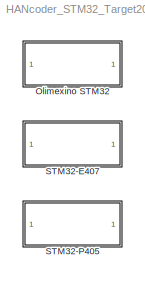
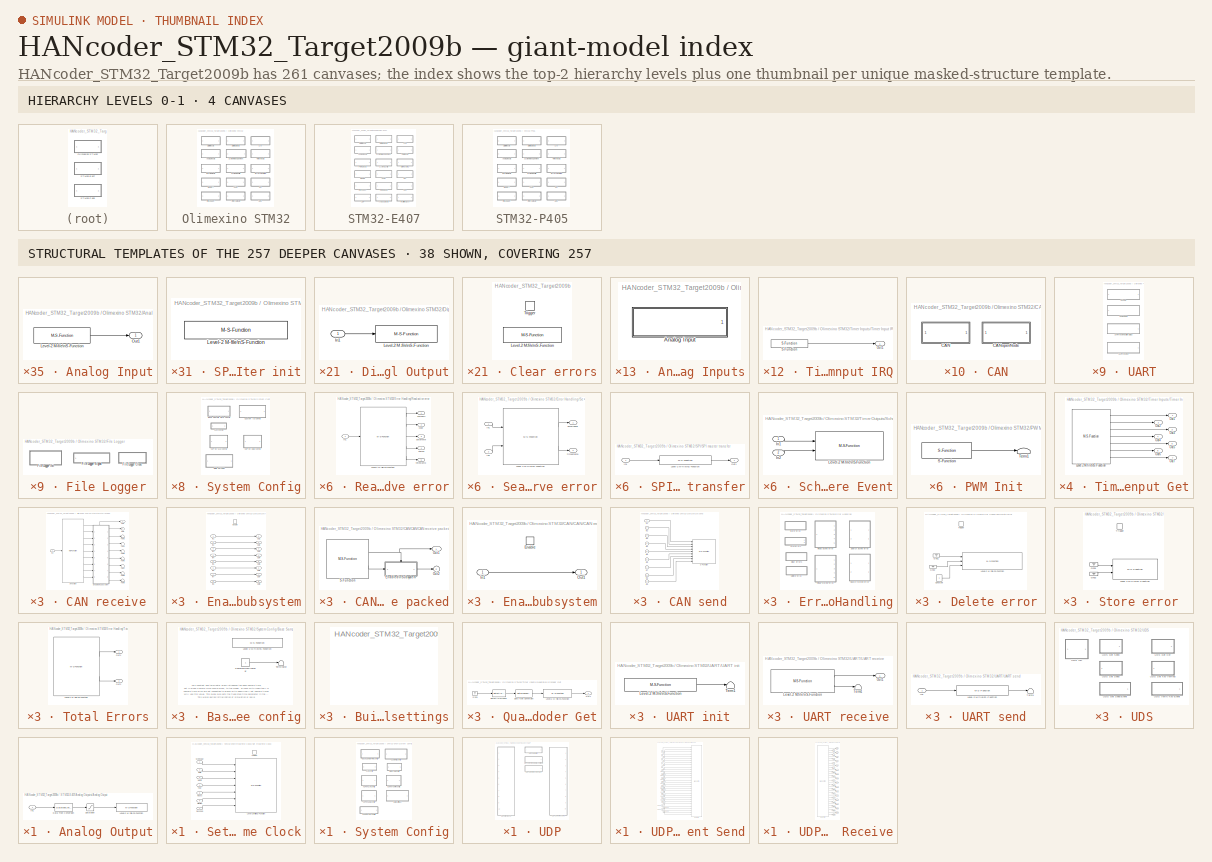
[diagram: thumbnail index - top-2 hierarchy levels (4 canvases) + 38 structural-template representatives of the remaining 257 canvases]
MODEL HANcoder_STM32_Target2009b
KIND library
BLOCK [SubSystem] Olimexino STM32
  FunctionWithSeparateData = off
  MaskDisplay = disp('Olimexino STM32')\npatch([80 86 86],[8 14 2],[1 0 0]);patch([88 88 94],[14 2 8],[0 0 0.35]);
  MaskHideContents = off
  MaskIconFrame = on
  MaskIconOpaque = on
  MaskIconRotate = none
  MaskIconUnits = pixels
  MaskPortRotate = default
  MaskRunInitForIconRedraw = on
  MinAlgLoopOccurrences = off
  MoveFcn = drawLogos
  Opaque = off
  Ports = []
  PropExecContextOutsideSubsystem = off
  RTWSystemCode = Auto
  RequestExecContextInheritance = off
  SID = 2457
  UserDataPersistent = on
  Variant = off
BLOCK [SubSystem] Olimexino STM32/Analog Inputs
  FunctionWithSeparateData = off
  MaskDisplay = fprintf('Analog Inputs');patch([85 91 91],[8 14 2],[1 0 0]);patch([93 93 99],[14 2 8],[0 0 0.35]);
  MaskHideContents = off
  MaskIconFrame = on
  MaskIconOpaque = on
  MaskIconRotate = none
  MaskIconUnits = pixels
  MaskPortRotate = default
  MaskRunInitForIconRedraw = on
  MinAlgLoopOccurrences = off
  MoveFcn = drawLogos
  Opaque = off
  Ports = []
  PropExecContextOutsideSubsystem = off
  RTWSystemCode = Auto
  RequestExecContextInheritance = off
  SID = 2723
  UserDataPersistent = on
  Variant = off
BLOCK [SubSystem] Olimexino STM32/Analog Inputs/Analog Input
  FunctionWithSeparateData = off
  MaskCallbackString = ||
  MaskDescription = Function\n========\nReads the analog/digital conversion results of an analog input pin.\n\nParameters\n==========\nInput pin:\n  Selects the analog input to read\n\nOutport\n==========\nuint16 12-bit conversion results (0-4095).\n  <repeated x3 — deduplicated; at blocks: Analog Input>
  MaskDisplay = fprintf('Analog Input\\n%s', pinIDInfoStr);patch([135 141 141],[8 14 2],[1 0 0]);patch([143 143 149],[14 2 8],[0 0 0.35]);
  MaskEnableString = on,on,off
  MaskHelp = web('sfcn_analog_in.html');
  MaskHideContents = off
  MaskIconFrame = on
  MaskIconOpaque = on
  MaskIconRotate = none
  MaskIconUnits = pixels
  MaskInitialization = pinIDInfoStr = sfcn_analog_in_mcb(1, pinID, 0);\n
  MaskPortRotate = default
  MaskPromptString = Input pin|Sample time|Use oversampling and filtering (causes high CPU load)
  MaskRunInitForIconRedraw = on
  MaskSelfModifiable = on
  MaskStyleString = popup(CON2 - A0|CON2 - A1|CON2 - A2|CON2 - A3|CON2 - A4|CON2 - A5|CON3 - D0|CON3 - D1|CON3 - D2|CON3 - D3/LED2|CON4 - D10|CON4 - D11|CON4 - D12|CON4 - D13/LED1|EXT - D27|EXT - D28),edit,checkbox
  MaskToolTipString = on,on,on
  MaskTunableValueString = off,off,on
  MaskType = Analog Input
  MaskValueString = CON2 - A0|-1|off
  MaskVariables = pinID=@1;tsamp=@2;filtered=@3;
  MaskVisibilityString = on,on,off
  MinAlgLoopOccurrences = off
  MoveFcn = drawLogos
  Opaque = off
  Ports = [0, 1]
  PropExecContextOutsideSubsystem = off
  RTWSystemCode = Auto
  RequestExecContextInheritance = off
  SID = 3144
  Tag = HANcoder_TARGET_STM32_Olimexino
  UserData = DataTag0
  UserDataPersistent = on
  Variant = off
BLOCK [M-S-Function] Olimexino STM32/Analog Inputs/Analog Input/Level-2 M-file\nS-Function
  FunctionName = sfcn_analog_in
  Parameters = tsamp, pinID
  Ports = [0, 1]
  SID = 3144:3145
BLOCK [Outport] Olimexino STM32/Analog Inputs/Analog Input/Out1
  IconDisplay = Port number
  SID = 3144:3146
BLOCK [SubSystem] Olimexino STM32/CAN
  FunctionWithSeparateData = off
  MaskDisplay = fprintf('CAN');patch([85 91 91],[8 14 2],[1 0 0]);patch([93 93 99],[14 2 8],[0 0 0.35]);
  MaskHideContents = off
  MaskIconFrame = on
  MaskIconOpaque = on
  MaskIconRotate = none
  MaskIconUnits = pixels
  MaskPortRotate = default
  MaskRunInitForIconRedraw = on
  MinAlgLoopOccurrences = off
  MoveFcn = drawLogos
  Opaque = off
  Ports = []
  PropExecContextOutsideSubsystem = off
  RTWSystemCode = Auto
  RequestExecContextInheritance = off
  SID = 2725
  UserDataPersistent = on
  Variant = off
BLOCK [SubSystem] Olimexino STM32/CAN/CAN
  FunctionWithSeparateData = off
  MaskDisplay = fprintf('CAN');patch([85 91 91],[8 14 2],[1 0 0]);patch([93 93 99],[14 2 8],[0 0 0.35]);
  MaskHideContents = off
  MaskIconFrame = on
  MaskIconOpaque = on
  MaskIconRotate = none
  MaskIconUnits = pixels
  MaskPortRotate = default
  MaskRunInitForIconRedraw = on
  MinAlgLoopOccurrences = off
  MoveFcn = drawLogos
  Opaque = off
  Ports = []
  PropExecContextOutsideSubsystem = off
  RTWSystemCode = Auto
  RequestExecContextInheritance = off
  SID = 3212
  UserDataPersistent = on
  Variant = off
BLOCK [SubSystem] Olimexino STM32/CAN/CAN/CAN receive
  FunctionWithSeparateData = off
  MaskCallbackString = ||||
  MaskDescription = Function\n==========\nReceive the newest message from the specified CAN channel.\n\nParameters\n========== \nCAN channel:             The CAN channel to send the message on.\nOutput ports:             The amount of output ports\nOutput datatype:       The datatype of the output ports\nByte order:                 Select MSB or LSB first\nSample time:              -1 or divisible by base sample time...<+316ch>
  MaskDisplay = fprintf('Receive on\\nCAN %x', canBus);\nport_label('output', 1, 'new')\nport_label('input', 1, 'ID');patch([75 81 81],[8 14 2],[1 0 0]);patch([83 83 89],[14 2 8],[0 0 0.35]);
  MaskEnableString = on,on,on,on,on
  MaskHelp = web('sfcn_can_receive.html');
  MaskHideContents = off
  MaskIconFrame = on
  MaskIconOpaque = on
  MaskIconRotate = none
  MaskIconUnits = pixels
  MaskInitialization = sfcn_can_receive_mcb(canBus, outputNumber, dataType, byteOrder)
  MaskPortRotate = default
  MaskPromptString = CAN channel|Output ports|Output datatype|Byte order: Checked = MSB first, unchecked = LSB first.|Sample time
  MaskRunInitForIconRedraw = on
  MaskSelfModifiable = on
  MaskStyleString = popup(CAN 1),edit,popup(int8|uint8|int16|uint16|int32|uint32|boolean),checkbox,edit
  MaskToolTipString = on,on,on,on,on
  MaskTunableValueString = off,off,off,off,off
  MaskType = CAN receive
  MaskValueString = CAN 1|1|uint8|off|-1
  MaskVariables = canBus=@1;outputNumber=@2;dataType=@3;byteOrder=@4;tsamp=@5;
  MaskVisibilityString = on,on,on,on,on
  MinAlgLoopOccurrences = off
  MoveFcn = drawLogos
  Opaque = off
  Ports = [1, 2]
  PropExecContextOutsideSubsystem = off
  RTWSystemCode = Auto
  RequestExecContextInheritance = off
  SID = 3214
  Tag = HANcoder_TARGET_STM32_Olimexino
  UserData = DataTag1
  UserDataPersistent = on
  Variant = off
BLOCK [SubSystem] Olimexino STM32/CAN/CAN/CAN receive packed
  FunctionWithSeparateData = off
  MaskCallbackString = ||
  MaskDescription = Function\n==========\nReceive the newest message from the specified CAN channel, packed in a CAN message signal.\nThe first output checks the receiving of new data.\n\nCAN channel: The specified CAN channel will be used to receive the message on.\n\nCAN ID (in hex): Only the message with the specified CAN identifier (ID) is received. The ID is written in hexadecimal format, ie: hex2dec('0A')\n\nPS...<+168ch>  <repeated x3 — deduplicated; at blocks: CAN receive packed>
  MaskDisplay = fprintf('Receive packed CAN\\nmessage on CAN %x\\nID %xh', canBus, canID);patch([95 101 101],[8 14 2],[1 0 0]);patch([103 103 109],[14 2 8],[0 0 0.35]);
  MaskEnableString = on,on,on
  MaskHelp = web('sfcn_can_receive_packed.html');
  MaskHideContents = off
  MaskIconFrame = on
  MaskIconOpaque = on
  MaskIconRotate = none
  MaskIconUnits = pixels
  MaskInitialization = sfcn_can_receive_packed_mcb(canBus, canID)
  MaskPortRotate = default
  MaskPromptString = CAN channel|Can ID (in hex)|Sample time
  MaskRunInitForIconRedraw = on
  MaskSelfModifiable = on
  MaskStyleString = popup(CAN 1),edit,edit
  MaskToolTipString = on,on,on
  MaskTunableValueString = off,off,off
  MaskType = CAN receive packed
  MaskValueString = CAN 1|hex2dec('80')|-1
  MaskVariables = canBus=@1;canID=@2;tsamp=@3;
  MaskVisibilityString = on,on,on
  MinAlgLoopOccurrences = off
  MoveFcn = drawLogos
  Opaque = off
  Ports = [0, 2]
  PropExecContextOutsideSubsystem = off
  RTWSystemCode = Auto
  RequestExecContextInheritance = off
  SID = 3215
  Tag = HANcoder_TARGET_STM32_Olimexino
  UserData = DataTag2
  UserDataPersistent = on
  Variant = off
BLOCK [SubSystem] Olimexino STM32/CAN/CAN/CAN receive packed/Enabled\nSubsystem
  FunctionWithSeparateData = off
  MaskHideContents = off
  MinAlgLoopOccurrences = off
  Opaque = off
  Ports = [1, 1, 1]
  PropExecContextOutsideSubsystem = off
  RTWSystemCode = Auto
  RequestExecContextInheritance = off
  SID = 3215:3119
  TreatAsAtomicUnit = on
  Variant = off
BLOCK [EnablePort] Olimexino STM32/CAN/CAN/CAN receive packed/Enabled\nSubsystem/Enable
  Ports = []
  SID = 3215:3121
BLOCK [Inport] Olimexino STM32/CAN/CAN/CAN receive packed/Enabled\nSubsystem/In1
  IconDisplay = Port number
  SID = 3215:3120
BLOCK [Outport] Olimexino STM32/CAN/CAN/CAN receive packed/Enabled\nSubsystem/Out1
  IconDisplay = Port number
  SID = 3215:3122
BLOCK [Outport] Olimexino STM32/CAN/CAN/CAN receive packed/Out1
  IconDisplay = Port number
  SID = 3215:3117
BLOCK [Outport] Olimexino STM32/CAN/CAN/CAN receive packed/Out2
  IconDisplay = Port number
  Port = 2
  SID = 3215:3118
BLOCK [M-S-Function] Olimexino STM32/CAN/CAN/CAN receive packed/S-Function
  FunctionName = sfcn_can_receive_packed
  Parameters = tsamp, canBus, canID
  Ports = [0, 2]
  SID = 3215:3116
BLOCK [SubSystem] Olimexino STM32/CAN/CAN/CAN receive/Enabled\nSubsystem
  FunctionWithSeparateData = off
  MaskHideContents = off
  MinAlgLoopOccurrences = off
  Opaque = off
  Ports = [8, 8, 1]
  PropExecContextOutsideSubsystem = off
  RTWSystemCode = Auto
  RequestExecContextInheritance = off
  SID = 3214:3115
  TreatAsAtomicUnit = on
  Variant = off
BLOCK [EnablePort] Olimexino STM32/CAN/CAN/CAN receive/Enabled\nSubsystem/Enable
  Ports = []
  SID = 3214:3117
BLOCK [Inport] Olimexino STM32/CAN/CAN/CAN receive/Enabled\nSubsystem/In1
  IconDisplay = Port number
  SID = 3214:3116
BLOCK [Inport] Olimexino STM32/CAN/CAN/CAN receive/Enabled\nSubsystem/In2
  IconDisplay = Port number
  Port = 2
  SID = 3214:3119
BLOCK [Inport] Olimexino STM32/CAN/CAN/CAN receive/Enabled\nSubsystem/In3
  IconDisplay = Port number
  Port = 3
  SID = 3214:3121
BLOCK [Inport] Olimexino STM32/CAN/CAN/CAN receive/Enabled\nSubsystem/In4
  IconDisplay = Port number
  Port = 4
  SID = 3214:3123
BLOCK [Inport] Olimexino STM32/CAN/CAN/CAN receive/Enabled\nSubsystem/In5
  IconDisplay = Port number
  Port = 5
  SID = 3214:3125
BLOCK [Inport] Olimexino STM32/CAN/CAN/CAN receive/Enabled\nSubsystem/In6
  IconDisplay = Port number
  Port = 6
  SID = 3214:3127
BLOCK [Inport] Olimexino STM32/CAN/CAN/CAN receive/Enabled\nSubsystem/In7
  IconDisplay = Port number
  Port = 7
  SID = 3214:3129
BLOCK [Inport] Olimexino STM32/CAN/CAN/CAN receive/Enabled\nSubsystem/In8
  IconDisplay = Port number
  Port = 8
  SID = 3214:3131
BLOCK [Outport] Olimexino STM32/CAN/CAN/CAN receive/Enabled\nSubsystem/Out1
  IconDisplay = Port number
  SID = 3214:3118
BLOCK [Outport] Olimexino STM32/CAN/CAN/CAN receive/Enabled\nSubsystem/Out2
  IconDisplay = Port number
  Port = 2
  SID = 3214:3120
BLOCK [Outport] Olimexino STM32/CAN/CAN/CAN receive/Enabled\nSubsystem/Out3
  IconDisplay = Port number
  Port = 3
  SID = 3214:3122
BLOCK [Outport] Olimexino STM32/CAN/CAN/CAN receive/Enabled\nSubsystem/Out4
  IconDisplay = Port number
  Port = 4
  SID = 3214:3124
BLOCK [Outport] Olimexino STM32/CAN/CAN/CAN receive/Enabled\nSubsystem/Out5
  IconDisplay = Port number
  Port = 5
  SID = 3214:3126
BLOCK [Outport] Olimexino STM32/CAN/CAN/CAN receive/Enabled\nSubsystem/Out6
  IconDisplay = Port number
  Port = 6
  SID = 3214:3128
BLOCK [Outport] Olimexino STM32/CAN/CAN/CAN receive/Enabled\nSubsystem/Out7
  IconDisplay = Port number
  Port = 7
  SID = 3214:3130
BLOCK [Outport] Olimexino STM32/CAN/CAN/CAN receive/Enabled\nSubsystem/Out8
  IconDisplay = Port number
  Port = 8
  SID = 3214:3132
BLOCK [Inport] Olimexino STM32/CAN/CAN/CAN receive/In1
  IconDisplay = Port number
  SID = 3214:3104
BLOCK [Outport] Olimexino STM32/CAN/CAN/CAN receive/Out1
  IconDisplay = Port number
  SID = 3214:3113
BLOCK [Outport] Olimexino STM32/CAN/CAN/CAN receive/Out2
  IconDisplay = Port number
  Port = 2
  SID = 3214:3114
BLOCK [M-S-Function] Olimexino STM32/CAN/CAN/CAN receive/S-Function
  FunctionName = sfcn_can_receive
  Parameters = tsamp, canBus, outputNumber, dataType, byteOrder
  Ports = [1, 9]
  SID = 3214:3105
BLOCK [Terminator] Olimexino STM32/CAN/CAN/CAN receive/Term3
  SID = 3214:3136
BLOCK [Terminator] Olimexino STM32/CAN/CAN/CAN receive/Term4
  SID = 3214:3137
BLOCK [Terminator] Olimexino STM32/CAN/CAN/CAN receive/Term5
  SID = 3214:3138
BLOCK [Terminator] Olimexino STM32/CAN/CAN/CAN receive/Term6
  SID = 3214:3109
BLOCK [Terminator] Olimexino STM32/CAN/CAN/CAN receive/Term7
  SID = 3214:3110
BLOCK [Terminator] Olimexino STM32/CAN/CAN/CAN receive/Term8
  SID = 3214:3111
BLOCK [Terminator] Olimexino STM32/CAN/CAN/CAN receive/Term9
  SID = 3214:3112
BLOCK [SubSystem] Olimexino STM32/CAN/CAN/CAN send
  FunctionWithSeparateData = off
  MaskCallbackString = |||||
  MaskDescription = Function\n==========\nSend a message on the CAN channel.\n\nParameters\n========== \nCAN channel:           The CAN channel to send the message on.\nIdentifier type:         normal or extended ID's\nInput ports:              The amount of input ports\nInput datatype:        The datatype of the input ports\nByte order:               Select MSB or LSB first\nSample time:            -1 or divisible b...<+168ch>  <repeated x3 — deduplicated; at blocks: CAN send>
  MaskDisplay = fprintf('Send on\\nCAN %x', canBus);\nport_label('input', 1, 'ID');patch([65 71 71],[8 14 2],[1 0 0]);patch([73 73 79],[14 2 8],[0 0 0.35]);
  MaskEnableString = on,on,on,on,on,on
  MaskHelp = web('sfcn_can_send.html');
  MaskHideContents = off
  MaskIconFrame = on
  MaskIconOpaque = on
  MaskIconRotate = none
  MaskIconUnits = pixels
  MaskInitialization = sfcn_can_send_mcb(canBus, frameType, inputNumber, dataType, byteOrder)
  MaskPortRotate = default
  MaskPromptString = CAN channel|Identifier type|Input ports|Input datatype|Byte order: Checked = MSB first, unchecked = LSB first.|Sample time
  MaskRunInitForIconRedraw = on
  MaskSelfModifiable = on
  MaskStyleString = popup(CAN 1),popup(Standard (11 bit)|Extended (29 bit)),edit,popup(int8|uint8|int16|uint16|int32|uint32|boolean),checkbox,edit
  MaskToolTipString = on,on,on,on,on,on
  MaskTunableValueString = off,off,off,off,off,off
  MaskType = CAN send
  MaskValueString = CAN 1|Standard (11 bit)|8|uint8|on|-1
  MaskVariables = canBus=@1;frameType=@2;inputNumber=@3;dataType=@4;byteOrder=@5;tsamp=@6;
  MaskVisibilityString = on,on,on,on,on,on
  MinAlgLoopOccurrences = off
  MoveFcn = drawLogos
  Opaque = off
  Ports = [9]
  PropExecContextOutsideSubsystem = off
  RTWSystemCode = Auto
  RequestExecContextInheritance = off
  SID = 3216
  Tag = HANcoder_TARGET_STM32_Olimexino
  UserData = DataTag3
  UserDataPersistent = on
  Variant = off
BLOCK [SubSystem] Olimexino STM32/CAN/CAN/CAN send packed
  FunctionWithSeparateData = off
  MaskCallbackString = |
  MaskDescription = Function\n==========\nSend a packed CAN message on the specified CAN channel.\n\nCAN channel: The specified CAN channel will be used to send the message on.\n\nThe CAN ID, identifier type and formatting of the data is included in the packed CAN message.  <repeated x3 — deduplicated; at blocks: CAN send packed>
  MaskDisplay = fprintf('Send packed CAN\\n message on CAN %x', canBus);patch([95 101 101],[8 14 2],[1 0 0]);patch([103 103 109],[14 2 8],[0 0 0.35]);
  MaskEnableString = on,on
  MaskHelp = web('sfcn_can_send_packed.html');
  MaskHideContents = off
  MaskIconFrame = on
  MaskIconOpaque = on
  MaskIconRotate = none
  MaskIconUnits = pixels
  MaskInitialization = sfcn_can_send_packed_mcb(canBus)
  MaskPortRotate = default
  MaskPromptString = CAN channel|Sample time
  MaskRunInitForIconRedraw = on
  MaskSelfModifiable = on
  MaskStyleString = popup(CAN 1),edit
  MaskToolTipString = on,on
  MaskTunableValueString = off,off
  MaskType = CAN send packed
  MaskValueString = CAN 1|-1
  MaskVariables = canBus=@1;tsamp=@2;
  MaskVisibilityString = on,on
  MinAlgLoopOccurrences = off
  MoveFcn = drawLogos
  Opaque = off
  Ports = [1]
  PropExecContextOutsideSubsystem = off
  RTWSystemCode = Auto
  RequestExecContextInheritance = off
  SID = 3217
  Tag = HANcoder_TARGET_STM32_Olimexino
  UserData = DataTag4
  UserDataPersistent = on
  Variant = off
BLOCK [Inport] Olimexino STM32/CAN/CAN/CAN send packed/In1
  IconDisplay = Port number
  SID = 3217:3101
BLOCK [M-S-Function] Olimexino STM32/CAN/CAN/CAN send packed/S-Function
  FunctionName = sfcn_can_send_packed
  Parameters = tsamp, canBus
  Ports = [1]
  SID = 3217:3102
BLOCK [Inport] Olimexino STM32/CAN/CAN/CAN send/In1
  IconDisplay = Port number
  SID = 3216:3090
BLOCK [Inport] Olimexino STM32/CAN/CAN/CAN send/In2
  IconDisplay = Port number
  Port = 2
  SID = 3216:3091
BLOCK [Inport] Olimexino STM32/CAN/CAN/CAN send/In3
  IconDisplay = Port number
  Port = 3
  SID = 3216:3092
BLOCK [Inport] Olimexino STM32/CAN/CAN/CAN send/In4
  IconDisplay = Port number
  Port = 4
  SID = 3216:3093
BLOCK [Inport] Olimexino STM32/CAN/CAN/CAN send/In5
  IconDisplay = Port number
  Port = 5
  SID = 3216:3094
BLOCK [Inport] Olimexino STM32/CAN/CAN/CAN send/In6
  IconDisplay = Port number
  Port = 6
  SID = 3216:3095
BLOCK [Inport] Olimexino STM32/CAN/CAN/CAN send/In7
  IconDisplay = Port number
  Port = 7
  SID = 3216:3096
BLOCK [Inport] Olimexino STM32/CAN/CAN/CAN send/In8
  IconDisplay = Port number
  Port = 8
  SID = 3216:3097
BLOCK [Inport] Olimexino STM32/CAN/CAN/CAN send/In9
  IconDisplay = Port number
  Port = 9
  SID = 3216:3098
BLOCK [M-S-Function] Olimexino STM32/CAN/CAN/CAN send/S-Function
  FunctionName = sfcn_can_send
  Parameters = tsamp, canBus, frameType, inputNumber, dataType, byteOrder
  Ports = [9]
  SID = 3216:3099
BLOCK [SubSystem] Olimexino STM32/CAN/CANopenNode
  FunctionWithSeparateData = off
  MaskDisplay = fprintf('CANopenNode');patch([85 91 91],[8 14 2],[1 0 0]);patch([93 93 99],[14 2 8],[0 0 0.35]);
  MaskHideContents = off
  MaskIconFrame = on
  MaskIconOpaque = on
  MaskIconRotate = none
  MaskIconUnits = pixels
  MaskPortRotate = default
  MaskRunInitForIconRedraw = on
  MinAlgLoopOccurrences = off
  MoveFcn = drawLogos
  Opaque = off
  Ports = []
  PropExecContextOutsideSubsystem = off
  RTWSystemCode = Auto
  RequestExecContextInheritance = off
  SID = 3687
  UserDataPersistent = on
  Variant = off
BLOCK [SubSystem] Olimexino STM32/CAN/CANopenNode/CANopenNode Init
  FunctionWithSeparateData = off
  MaskDescription = Function\n==========\nInitializes the CANopenNode stack for the particular CAN channel. \n\nCAN channel: The specified CAN channel will be used by the communication stack.\n
  MaskDisplay = fprintf('CANopenNode\\n Init on CAN %d', channel);patch([95 101 101],[8 14 2],[1 0 0]);patch([103 103 109],[14 2 8],[0 0 0.35]);
  MaskEnableString = on
  MaskHelp = web('sfcn_can_canopennode_init.html');
  MaskHideContents = off
  MaskIconFrame = on
  MaskIconOpaque = on
  MaskIconRotate = none
  MaskIconUnits = pixels
  MaskInitialization = sfcn_can_canopennode_init_mcb(channel)
  MaskPortRotate = default
  MaskPromptString = CAN channel
  MaskRunInitForIconRedraw = on
  MaskSelfModifiable = on
  MaskStyleString = popup(CAN 1)
  MaskToolTipString = on
  MaskTunableValueString = off
  MaskType = CANopenNode Init
  MaskValueString = CAN 1
  MaskVariables = channel=@1;
  MaskVisibilityString = on
  MinAlgLoopOccurrences = off
  MoveFcn = drawLogos
  Opaque = off
  Ports = []
  PropExecContextOutsideSubsystem = off
  RTWSystemCode = Auto
  RequestExecContextInheritance = off
  SID = 3688
  Tag = HANcoder_TARGET_STM32_Olimexino
  UserData = DataTag5
  UserDataPersistent = on
  Variant = off
BLOCK [M-S-Function] Olimexino STM32/CAN/CANopenNode/CANopenNode Init/S-Function
  FunctionName = sfcn_can_canopennode_init
  Parameters = channel
  Ports = []
  SID = 3688:3102
BLOCK [SubSystem] Olimexino STM32/CAN/CANopenNode/CANopenNode OD Read
  FunctionWithSeparateData = off
  MaskCallbackString = |||
  MaskDescription = Function\n==========\nReads a data value from the internal object dictionary.\n\nOD Index: Index of the object dictionary to read from.\nOD Subindex: Subindex of the object dictionary to read from.\nOD Data type: Data type of the object dictionary to read from.\n  <repeated x3 — deduplicated; at blocks: CANopenNode OD Read>
  MaskDisplay = fprintf('CANopenNode\\n OD Read\\nindex: 0x%x\\nsubindex: %d', index, subIndex');patch([95 101 101],[8 14 2],[1 0 0]);patch([103 103 109],[14 2 8],[0 0 0.35]);
  MaskEnableString = on,on,on,on
  MaskHelp = web('sfcn_can_canopennode_od_read.html');
  MaskHideContents = off
  MaskIconFrame = on
  MaskIconOpaque = on
  MaskIconRotate = none
  MaskIconUnits = pixels
  MaskInitialization = sfcn_can_canopennode_od_read_mcb(index, subIndex, dataType)
  MaskPortRotate = default
  MaskPromptString = OD index|OD subindex|OD data type|Sample time
  MaskRunInitForIconRedraw = on
  MaskSelfModifiable = on
  MaskStyleString = edit,edit,popup(int8|uint8|int16|uint16|int32|uint32),edit
  MaskToolTipString = on,on,on,on
  MaskTunableValueString = off,off,off,off
  MaskType = CANopenNode OD Read
  MaskValueString = hex2dec('6200')|1|uint8|-1
  MaskVariables = index=@1;subIndex=@2;dataType=@3;tsamp=@4;
  MaskVisibilityString = on,on,on,on
  MinAlgLoopOccurrences = off
  MoveFcn = drawLogos
  Opaque = off
  Ports = [0, 1]
  PropExecContextOutsideSubsystem = off
  RTWSystemCode = Auto
  RequestExecContextInheritance = off
  SID = 3689
  Tag = HANcoder_TARGET_STM32_Olimexino
  UserData = DataTag6
  UserDataPersistent = on
  Variant = off
BLOCK [Outport] Olimexino STM32/CAN/CANopenNode/CANopenNode OD Read/Out1
  IconDisplay = Port number
  SID = 3689:1
BLOCK [M-S-Function] Olimexino STM32/CAN/CANopenNode/CANopenNode OD Read/S-Function
  FunctionName = sfcn_can_canopennode_od_read
  Parameters = tsamp, dataType
  Ports = [0, 1]
  SID = 3689:3681
BLOCK [SubSystem] Olimexino STM32/CAN/CANopenNode/CANopenNode OD Write
  FunctionWithSeparateData = off
  MaskCallbackString = |||
  MaskDescription = Function\n==========\nWrites a data value to the internal object dictionary.\n\nOD Index: Index of the object dictionary to write to.\nOD Subindex: Subindex of the object dictionary to write to.\nOD Data type: Data type of the object dictionary to write to.\n  <repeated x3 — deduplicated; at blocks: CANopenNode OD Write>
  MaskDisplay = fprintf('CANopenNode\\n OD Write\\nindex: 0x%x\\nsubindex: %d', index, subIndex);patch([95 101 101],[8 14 2],[1 0 0]);patch([103 103 109],[14 2 8],[0 0 0.35]);
  MaskEnableString = on,on,on,on
  MaskHelp = web('sfcn_can_canopennode_od_write.html');
  MaskHideContents = off
  MaskIconFrame = on
  MaskIconOpaque = on
  MaskIconRotate = none
  MaskIconUnits = pixels
  MaskInitialization = sfcn_can_canopennode_od_write_mcb(index, subIndex, dataType)
  MaskPortRotate = default
  MaskPromptString = OD index|OD subindex|OD data type|Sample time
  MaskRunInitForIconRedraw = on
  MaskSelfModifiable = on
  MaskStyleString = edit,edit,popup(int8|uint8|int16|uint16|int32|uint32),edit
  MaskToolTipString = on,on,on,on
  MaskTunableValueString = off,off,off,off
  MaskType = CANopenNode OD Write
  MaskValueString = hex2dec('6000')|1|uint8|-1
  MaskVariables = index=@1;subIndex=@2;dataType=@3;tsamp=@4;
  MaskVisibilityString = on,on,on,on
  MinAlgLoopOccurrences = off
  MoveFcn = drawLogos
  Opaque = off
  Ports = [1]
  PropExecContextOutsideSubsystem = off
  RTWSystemCode = Auto
  RequestExecContextInheritance = off
  SID = 3690
  Tag = HANcoder_TARGET_STM32_Olimexino
  UserData = DataTag7
  UserDataPersistent = on
  Variant = off
BLOCK [Inport] Olimexino STM32/CAN/CANopenNode/CANopenNode OD Write/In1
  IconDisplay = Port number
  SID = 3690:1
BLOCK [M-S-Function] Olimexino STM32/CAN/CANopenNode/CANopenNode OD Write/S-Function
  FunctionName = sfcn_can_canopennode_od_write
  Parameters = tsamp, dataType
  Ports = [1]
  SID = 3690:3678
BLOCK [SubSystem] Olimexino STM32/Digital Inputs
  FunctionWithSeparateData = off
  MaskDisplay = fprintf('Digital Inputs');patch([85 91 91],[8 14 2],[1 0 0]);patch([93 93 99],[14 2 8],[0 0 0.35]);
  MaskHideContents = off
  MaskIconFrame = on
  MaskIconOpaque = on
  MaskIconRotate = none
  MaskIconUnits = pixels
  MaskPortRotate = default
  MaskRunInitForIconRedraw = on
  MinAlgLoopOccurrences = off
  MoveFcn = drawLogos
  Opaque = off
  Ports = []
  PropExecContextOutsideSubsystem = off
  RTWSystemCode = Auto
  RequestExecContextInheritance = off
  SID = 2727
  UserDataPersistent = on
  Variant = off
BLOCK [SubSystem] Olimexino STM32/Digital Inputs/Digital Input
  FunctionWithSeparateData = off
  MaskCallbackString = ||
  MaskDescription = Function\n========\nReads the state of a digital input pin.\n\nParameters\n==========\nInput pin:\n  Selects the digital input to read\nConfiguration: \n  Determines if the input is floating or is connected to an internal\n  pull-up or pull-down resistor.\n\nOutport\n==========\nState of the pin. 0 means logical low and 1 logical high\n  <repeated x3 — deduplicated; at blocks: Digital Input>
  MaskDisplay = fprintf('Digital Input\\n%s', pinIDInfoStr);patch([135 141 141],[8 14 2],[1 0 0]);patch([143 143 149],[14 2 8],[0 0 0.35]);
  MaskEnableString = on,on,on
  MaskHelp = web('sfcn_digital_in.html');
  MaskHideContents = off
  MaskIconFrame = on
  MaskIconOpaque = on
  MaskIconRotate = none
  MaskIconUnits = pixels
  MaskInitialization = pinIDInfoStr = sfcn_digital_in_mcb(1, pinID, config);\n
  MaskPortRotate = default
  MaskPromptString = Input pin|Configuration|Sample time
  MaskRunInitForIconRedraw = on
  MaskSelfModifiable = on
  MaskStyleString = popup(CON2 - A0|CON2 - A1|CON2 - A2|CON2 - A3|CON2 - A4|CON2 - A5|CON3 - D0|CON3 - D1|CON3 - D2|CON3 - D3/LED2|CON3 - D4|CON3 - D5 - 5V Tolerant|CON3 - D6 - 5V Tolerant|CON3 - D7 - 5V Tolerant|CON4 - D8 - 5V Tolerant|CON4 - D9 - 5V Tolerant|CON4 - D10|CON4 - D11|CON4 - D12|CON4 - D13/LED1|EXT - D25 - 5V Tolerant|EXT - D26 - 5V Tolerant|EXT - D29 - 5V Tolerant|EXT - D30 - 5V Tolerant|EXT - D31 - 5V...<+228ch>
  MaskToolTipString = on,on,on
  MaskTunableValueString = off,off,off
  MaskType = Digital Input
  MaskValueString = CON2 - A0|Pulldown|-1
  MaskVariables = pinID=@1;config=@2;tsamp=@3;
  MaskVisibilityString = on,on,on
  MinAlgLoopOccurrences = off
  MoveFcn = drawLogos
  Opaque = off
  Ports = [0, 1]
  PropExecContextOutsideSubsystem = off
  RTWSystemCode = Auto
  RequestExecContextInheritance = off
  SID = 3141
  Tag = HANcoder_TARGET_STM32_Olimexino
  UserData = DataTag8
  UserDataPersistent = on
  Variant = off
BLOCK [M-S-Function] Olimexino STM32/Digital Inputs/Digital Input/Level-2 M-file\nS-Function
  FunctionName = sfcn_digital_in
  Parameters = tsamp, pinID, config
  Ports = [0, 1]
  SID = 3141:3143
BLOCK [Outport] Olimexino STM32/Digital Inputs/Digital Input/Out1
  IconDisplay = Port number
  SID = 3141:1
BLOCK [SubSystem] Olimexino STM32/Digital Outputs
  FunctionWithSeparateData = off
  MaskDisplay = fprintf('Digital Outputs');patch([85 91 91],[8 14 2],[1 0 0]);patch([93 93 99],[14 2 8],[0 0 0.35]);
  MaskHideContents = off
  MaskIconFrame = on
  MaskIconOpaque = on
  MaskIconRotate = none
  MaskIconUnits = pixels
  MaskPortRotate = default
  MaskRunInitForIconRedraw = on
  MinAlgLoopOccurrences = off
  MoveFcn = drawLogos
  Opaque = off
  Ports = []
  PropExecContextOutsideSubsystem = off
  RTWSystemCode = Auto
  RequestExecContextInheritance = off
  SID = 2728
  UserDataPersistent = on
  Variant = off
BLOCK [SubSystem] Olimexino STM32/Digital Outputs/Digital Output
  CopyFcn = sfcn_digital_out_chk();
  FunctionWithSeparateData = off
  MaskCallbackString = sfcn_digital_out_chk();||
  MaskDescription = Function\n========\nControls the state of a digital output pin.\n\nParameters\n==========\nOutput pin:\n  Selects the digital output to control\nConfiguration: \n  Open drain (output float when digital high) or push-pull (output connected\n  to Vcc when digital high).\n\nInport\n==========\nState of the pin. 0 means logical low and 1 logical high\n  <repeated x3 — deduplicated; at blocks: Digital Output>
  MaskDisplay = fprintf('Digital Output\\n%s', pinIDInfoStr);patch([135 141 141],[8 14 2],[1 0 0]);patch([143 143 149],[14 2 8],[0 0 0.35]);
  MaskEnableString = on,on,on
  MaskHelp = web('sfcn_digital_out.html');
  MaskHideContents = off
  MaskIconFrame = on
  MaskIconOpaque = on
  MaskIconRotate = none
  MaskIconUnits = pixels
  MaskInitialization = pinIDInfoStr = sfcn_digital_out_mcb(1, pinID, config);\n
  MaskPortRotate = default
  MaskPromptString = Output pin|Configuration|Sample time
  MaskRunInitForIconRedraw = on
  MaskSelfModifiable = on
  MaskStyleString = popup(CON2 - A0|CON2 - A1|CON2 - A2|CON2 - A3|CON2 - A4|CON2 - A5|CON3 - D0|CON3 - D1|CON3 - D2|CON3 - D3/LED2|CON3 - D4|CON3 - D5|CON3 - D6|CON3 - D7|CON4 - D8|CON4 - D9|CON4 - D10|CON4 - D11|CON4 - D12|CON4 - D13/LED1|EXT - D25|EXT - D26|EXT - D31|EXT - D32|EXT - D35|EXT - D36|EXT - D37),popup(Open drain|Push pull),edit
  MaskToolTipString = on,on,on
  MaskTunableValueString = off,off,off
  MaskType = Digital Output
  MaskValueString = CON2 - A0|Push pull|-1
  MaskVariables = pinID=@1;config=@2;tsamp=@3;
  MaskVisibilityString = on,on,on
  MinAlgLoopOccurrences = off
  MoveFcn = drawLogos
  Opaque = off
  Ports = [1]
  PropExecContextOutsideSubsystem = off
  RTWSystemCode = Auto
  RequestExecContextInheritance = off
  SID = 3138
  Tag = HANcoder_TARGET_STM32_Olimexino
  UserData = DataTag9
  UserDataPersistent = on
  Variant = off
BLOCK [Inport] Olimexino STM32/Digital Outputs/Digital Output/In1
  IconDisplay = Port number
  SID = 3138:1
BLOCK [M-S-Function] Olimexino STM32/Digital Outputs/Digital Output/Level-2 M-file\nS-Function
  FunctionName = sfcn_digital_out
  Parameters = tsamp, pinID, config
  Ports = [1]
  SID = 3138:3139
BLOCK [SubSystem] Olimexino STM32/Error Handling
  FunctionWithSeparateData = off
  MaskDisplay = fprintf('Error Handling');patch([85 91 91],[8 14 2],[1 0 0]);patch([93 93 99],[14 2 8],[0 0 0.35]);
  MaskHideContents = off
  MaskIconFrame = on
  MaskIconOpaque = on
  MaskIconRotate = none
  MaskIconUnits = pixels
  MaskPortRotate = default
  MaskRunInitForIconRedraw = on
  MinAlgLoopOccurrences = off
  MoveFcn = drawLogos
  Opaque = off
  Ports = []
  PropExecContextOutsideSubsystem = off
  RTWSystemCode = Auto
  RequestExecContextInheritance = off
  SID = 2729
  UserDataPersistent = on
  Variant = off
BLOCK [SubSystem] Olimexino STM32/Error Handling/Clear errors
  FunctionWithSeparateData = off
  MaskDescription = [Function]\nClears the active(RAM) or stored(EEPROM) errors.\n\n[Triggerport]\nConnect the port to a trigger source to execute the block only when necessary.
  MaskDisplay = fprintf('Clear %s Errors', eepromString);patch([80 86 86],[8 14 2],[1 0 0]);patch([88 88 94],[14 2 8],[0 0 0.35]);
  MaskEnableString = on
  MaskHelp = web('sfcn_controller_error_clearerrors.html');
  MaskHideContents = off
  MaskIconFrame = on
  MaskIconOpaque = on
  MaskIconRotate = none
  MaskIconUnits = pixels
  MaskInitialization = sfcn_controller_error_clearerrors_mcb(eepromString)
  MaskPortRotate = default
  MaskPromptString = Active or Stored error
  MaskRunInitForIconRedraw = on
  MaskSelfModifiable = on
  MaskStyleString = popup(Active|Stored)
  MaskToolTipString = on
  MaskTunableValueString = on
  MaskType = Clear errors
  MaskValueString = Active
  MaskVariables = eepromString=&1;
  MaskVisibilityString = on
  MinAlgLoopOccurrences = off
  MoveFcn = drawLogos
  Opaque = off
  Ports = [0, 0, 0, 1]
  PropExecContextOutsideSubsystem = off
  RTWSystemCode = Auto
  RequestExecContextInheritance = off
  SID = 3165
  Tag = HANcoder_TARGET_STM32_Olimexino
  UserData = DataTag10
  UserDataPersistent = on
  Variant = off
BLOCK [M-S-Function] Olimexino STM32/Error Handling/Clear errors/Level-2 M-file\nS-Function
  FunctionName = sfcn_controller_error_clearerrors
  Parameters = eepromString
  Ports = []
  SID = 3165:3167
BLOCK [TriggerPort] Olimexino STM32/Error Handling/Clear errors/Trigger
  Ports = []
  SID = 3165:3166
  StatesWhenEnabling = held
BLOCK [SubSystem] Olimexino STM32/Error Handling/Delete error
  FunctionWithSeparateData = off
  MaskCallbackString = ||
  MaskDescription = [Function]\nDelete an error defined by error code and parameter \nfrom RAM. \nError ID and parameter can be specified in the mask or with inports.\n\n[Parameters]\nError code \nError parameter\n\n[Inputs]\n1 - Error code [uint16]\n2 - Error parameter [uint8]\n\n[Triggerport]\nConnect the port to a trigger source to execute the block only when necessary.  <repeated x3 — deduplicated; at blocks: Delete error>
  MaskDisplay = fprintf('Delete error');patch([80 86 86],[8 14 2],[1 0 0]);patch([88 88 94],[14 2 8],[0 0 0.35]);
  MaskEnableString = on,on,on
  MaskHelp = web('sfcn_controller_error_deleteerror.html');
  MaskHideContents = off
  MaskIconFrame = on
  MaskIconOpaque = on
  MaskIconRotate = none
  MaskIconUnits = pixels
  MaskInitialization = sfcn_controller_error_deleteerror_mcb(useInPorts, errorID, para)\n\n
  MaskPortRotate = default
  MaskPromptString = Use inports|Error code|Error parameter
  MaskRunInitForIconRedraw = on
  MaskSelfModifiable = on
  MaskStyleString = checkbox,edit,edit
  MaskToolTipString = on,on,on
  MaskTunableValueString = off,off,off
  MaskType = Delete error
  MaskValueString = off|hex2dec('8000')|10
  MaskVariables = useInPorts=@1;errorID=@2;para=@3;
  MaskVisibilityString = on,on,on
  MinAlgLoopOccurrences = off
  MoveFcn = drawLogos
  Opaque = off
  Ports = [0, 0, 0, 1]
  PropExecContextOutsideSubsystem = off
  RTWSystemCode = Auto
  RequestExecContextInheritance = off
  SID = 3168
  Tag = HANcoder_TARGET_STM32_Olimexino
  UserData = DataTag11
  UserDataPersistent = on
  Variant = off
BLOCK [Constant] Olimexino STM32/Error Handling/Delete error/Constant
  OutDataTypeStr = uint8
  SID = 3168:3170
  SampleTime = -1
BLOCK [Ground] Olimexino STM32/Error Handling/Delete error/Gnd1
  SID = 3168:3
BLOCK [Ground] Olimexino STM32/Error Handling/Delete error/Gnd2
  SID = 3168:4
BLOCK [M-S-Function] Olimexino STM32/Error Handling/Delete error/Level-2 M-file\nS-Function
  FunctionName = sfcn_controller_error_deleteerror_in
  Parameters = useInPorts, errorID, para
  Ports = [3]
  SID = 3168:3173
BLOCK [TriggerPort] Olimexino STM32/Error Handling/Delete error/Trigger
  Ports = []
  SID = 3168:3169
  StatesWhenEnabling = held
BLOCK [SubSystem] Olimexino STM32/Error Handling/Read active error
  FunctionWithSeparateData = off
  MaskDescription = Function\n==========\nRead an active error from RAM.\n\nInport\n==========\nInput is the number of the error in the error list, which can be 1..64. UINT8\n\nOutports\n==========\n1: UINT8 - total amount of errors.\n2: UINT16 - error code.\n3: UINT8  - error parameter.\n4: UINT8  - occurrence count.\n5: UINT32 - last occurrence time since startup [milliseconds].\n\nNote that the requested error was...<+45ch>  <repeated x3 — deduplicated; at blocks: Read active error>
  MaskDisplay = fprintf('Read active error');patch([80 86 86],[8 14 2],[1 0 0]);patch([88 88 94],[14 2 8],[0 0 0.35]);
  MaskEnableString = on
  MaskHelp = web('sfcn_controller_error_readerror.html');
  MaskHideContents = off
  MaskIconFrame = on
  MaskIconOpaque = on
  MaskIconRotate = none
  MaskIconUnits = pixels
  MaskInitialization = sfcn_controller_error_readerror_mcb(0)
  MaskPortRotate = default
  MaskPromptString = Sample time
  MaskRunInitForIconRedraw = on
  MaskSelfModifiable = on
  MaskStyleString = edit
  MaskToolTipString = on
  MaskTunableValueString = off
  MaskType = Read active error
  MaskValueString = -1
  MaskVariables = tsamp=@1;
  MaskVisibilityString = on
  MinAlgLoopOccurrences = off
  MoveFcn = drawLogos
  Opaque = off
  Ports = [1, 5]
  PropExecContextOutsideSubsystem = off
  RTWSystemCode = Auto
  RequestExecContextInheritance = off
  SID = 3179
  Tag = HANcoder_TARGET_STM32_Olimexino
  UserData = DataTag12
  UserDataPersistent = on
  Variant = off
BLOCK [Inport] Olimexino STM32/Error Handling/Read active error/In1
  IconDisplay = Port number
  SID = 3179:3180
BLOCK [M-S-Function] Olimexino STM32/Error Handling/Read active error/Level-2 M-file\nS-Function
  FunctionName = sfcn_controller_error_readerror
  Parameters = tsamp
  Ports = [1, 5]
  SID = 3179:3181
BLOCK [Outport] Olimexino STM32/Error Handling/Read active error/Xtimes
  IconDisplay = Port number
  Port = 4
  SID = 3179:3185
BLOCK [Outport] Olimexino STM32/Error Handling/Read active error/code
  IconDisplay = Port number
  Port = 2
  SID = 3179:3183
BLOCK [Outport] Olimexino STM32/Error Handling/Read active error/numbers
  IconDisplay = Port number
  SID = 3179:3182
BLOCK [Outport] Olimexino STM32/Error Handling/Read active error/parameter
  IconDisplay = Port number
  Port = 3
  SID = 3179:3184
BLOCK [Outport] Olimexino STM32/Error Handling/Read active error/timestamp
  IconDisplay = Port number
  Port = 5
  SID = 3179:3186
BLOCK [SubSystem] Olimexino STM32/Error Handling/Read stored error
  FunctionWithSeparateData = off
  MaskDescription = Function\n==========\nRead a stored error from EEPROM.\n\nInport\n==========\nInput is the number of the error in the error list, which can be 1..64. UINT8\n\nOutports\n==========\n1: UINT8 - total amount of errors.\n2: UINT16 - error code.\n3: UINT8  - error parameter.\n4: UINT8  - occurrence count.\n5: UINT32 - last occurrence time since startup [milliseconds].\n\nNote that the requested error w...<+47ch>  <repeated x3 — deduplicated; at blocks: Read stored error>
  MaskDisplay = fprintf('Read stored error');patch([80 86 86],[8 14 2],[1 0 0]);patch([88 88 94],[14 2 8],[0 0 0.35]);
  MaskEnableString = on
  MaskHelp = web('sfcn_controller_error_readerror.html');
  MaskHideContents = off
  MaskIconFrame = on
  MaskIconOpaque = on
  MaskIconRotate = none
  MaskIconUnits = pixels
  MaskInitialization = sfcn_controller_error_readerror_mcb(1)
  MaskPortRotate = default
  MaskPromptString = Sample time
  MaskRunInitForIconRedraw = on
  MaskSelfModifiable = on
  MaskStyleString = edit
  MaskToolTipString = on
  MaskTunableValueString = off
  MaskType = Read stored error
  MaskValueString = -1
  MaskVariables = tsamp=@1;
  MaskVisibilityString = on
  MinAlgLoopOccurrences = off
  MoveFcn = drawLogos
  Opaque = off
  Ports = [1, 5]
  PropExecContextOutsideSubsystem = off
  RTWSystemCode = Auto
  RequestExecContextInheritance = off
  SID = 3188
  Tag = HANcoder_TARGET_STM32_Olimexino
  UserData = DataTag13
  UserDataPersistent = on
  Variant = off
BLOCK [Inport] Olimexino STM32/Error Handling/Read stored error/In1
  IconDisplay = Port number
  SID = 3188:3189
BLOCK [M-S-Function] Olimexino STM32/Error Handling/Read stored error/Level-2 M-file\nS-Function
  FunctionName = sfcn_controller_error_readerror
  Parameters = tsamp
  Ports = [1, 5]
  SID = 3188:3190
BLOCK [Outport] Olimexino STM32/Error Handling/Read stored error/Xtimes
  IconDisplay = Port number
  Port = 4
  SID = 3188:3194
BLOCK [Outport] Olimexino STM32/Error Handling/Read stored error/code
  IconDisplay = Port number
  Port = 2
  SID = 3188:3192
BLOCK [Outport] Olimexino STM32/Error Handling/Read stored error/numbers
  IconDisplay = Port number
  SID = 3188:3191
BLOCK [Outport] Olimexino STM32/Error Handling/Read stored error/parameter
  IconDisplay = Port number
  Port = 3
  SID = 3188:3193
BLOCK [Outport] Olimexino STM32/Error Handling/Read stored error/timestamp
  IconDisplay = Port number
  Port = 5
  SID = 3188:3195
BLOCK [SubSystem] Olimexino STM32/Error Handling/Search active error
  FunctionWithSeparateData = off
  MaskDescription = Function\n==========\nSearches for the erorr with the specified error Code and Param in RAM.\n\nInport\n==========\n1: UINT16 - Error Code\n2: UINT8   - Error Parameter\n\nOutports\n==========\n1: UINT8   - occurrence count.\n2: UINT32 - last occurrence time since startup [milliseconds]\n\nNote that when occurrence count equals zero, the error is not found.\n\n  <repeated x3 — deduplicated; at blocks: Search active error>
  MaskDisplay = fprintf('Search active error');patch([80 86 86],[8 14 2],[1 0 0]);patch([88 88 94],[14 2 8],[0 0 0.35]);
  MaskEnableString = on
  MaskHelp = web('sfcn_controller_error_searcherror.html');
  MaskHideContents = off
  MaskIconFrame = on
  MaskIconOpaque = on
  MaskIconRotate = none
  MaskIconUnits = pixels
  MaskInitialization = sfcn_controller_error_searcherror_mcb(0)
  MaskPortRotate = default
  MaskPromptString = Sample time
  MaskRunInitForIconRedraw = on
  MaskSelfModifiable = on
  MaskStyleString = edit
  MaskToolTipString = on
  MaskTunableValueString = off
  MaskType = Search active error
  MaskValueString = -1
  MaskVariables = tsamp=@1;
  MaskVisibilityString = on
  MinAlgLoopOccurrences = off
  MoveFcn = drawLogos
  Opaque = off
  Ports = [2, 2]
  PropExecContextOutsideSubsystem = off
  RTWSystemCode = Auto
  RequestExecContextInheritance = off
  SID = 3197
  Tag = HANcoder_TARGET_STM32_Olimexino
  UserData = DataTag14
  UserDataPersistent = on
  Variant = off
BLOCK [Inport] Olimexino STM32/Error Handling/Search active error/In1
  IconDisplay = Port number
  SID = 3197:3198
BLOCK [Inport] Olimexino STM32/Error Handling/Search active error/In2
  IconDisplay = Port number
  Port = 2
  SID = 3197:3199
BLOCK [M-S-Function] Olimexino STM32/Error Handling/Search active error/Level-2 M-file\nS-Function
  FunctionName = sfcn_controller_error_searcherror
  Parameters = tsamp
  Ports = [2, 2]
  SID = 3197:3200
BLOCK [Outport] Olimexino STM32/Error Handling/Search active error/occurrence
  IconDisplay = Port number
  SID = 3197:3203
BLOCK [Outport] Olimexino STM32/Error Handling/Search active error/timestamp
  IconDisplay = Port number
  Port = 2
  SID = 3197:3204
BLOCK [SubSystem] Olimexino STM32/Error Handling/Search stored error
  FunctionWithSeparateData = off
  MaskDescription = Function\n==========\nSearches for the erorr with the specified error Code and Param in EEPROM.\n\nInport\n==========\n1: UINT16 - Error Code\n2: UINT8   - Error Parameter\n\nOutports\n==========\n1: UINT8   - occurrence count.\n2: UINT32 - last occurrence time since startup [milliseconds]\n\nNote that when occurrence count equals zero, the error is not found.\n\n  <repeated x3 — deduplicated; at blocks: Search stored error>
  MaskDisplay = fprintf('Search stored error');patch([80 86 86],[8 14 2],[1 0 0]);patch([88 88 94],[14 2 8],[0 0 0.35]);
  MaskEnableString = on
  MaskHelp = web('sfcn_controller_error_searcherror.html');
  MaskHideContents = off
  MaskIconFrame = on
  MaskIconOpaque = on
  MaskIconRotate = none
  MaskIconUnits = pixels
  MaskInitialization = sfcn_controller_error_searcherror_mcb(1)
  MaskPortRotate = default
  MaskPromptString = Sample time
  MaskRunInitForIconRedraw = on
  MaskSelfModifiable = on
  MaskStyleString = edit
  MaskToolTipString = on
  MaskTunableValueString = off
  MaskType = Search stored error
  MaskValueString = -1
  MaskVariables = tsamp=@1;
  MaskVisibilityString = on
  MinAlgLoopOccurrences = off
  MoveFcn = drawLogos
  Opaque = off
  Ports = [2, 2]
  PropExecContextOutsideSubsystem = off
  RTWSystemCode = Auto
  RequestExecContextInheritance = off
  SID = 3206
  Tag = HANcoder_TARGET_STM32_Olimexino
  UserData = DataTag15
  UserDataPersistent = on
  Variant = off
BLOCK [Inport] Olimexino STM32/Error Handling/Search stored error/In1
  IconDisplay = Port number
  SID = 3206:3207
BLOCK [Inport] Olimexino STM32/Error Handling/Search stored error/In2
  IconDisplay = Port number
  Port = 2
  SID = 3206:3208
BLOCK [M-S-Function] Olimexino STM32/Error Handling/Search stored error/Level-2 M-file\nS-Function
  FunctionName = sfcn_controller_error_searcherror
  Parameters = tsamp
  Ports = [2, 2]
  SID = 3206:3209
BLOCK [Outport] Olimexino STM32/Error Handling/Search stored error/occurrence
  IconDisplay = Port number
  SID = 3206:3210
BLOCK [Outport] Olimexino STM32/Error Handling/Search stored error/timestamp
  IconDisplay = Port number
  Port = 2
  SID = 3206:3211
BLOCK [SubSystem] Olimexino STM32/Error Handling/Store error 
  FunctionWithSeparateData = off
  MaskCallbackString = ||
  MaskDescription = [Function]\nStore an error to RAM (and EEPROM if new) of the controller.\nError ID and parameter can be specified in the mask or with inports.\n\n[Parameters]\nError code \nError parameter\n\n[Inputs]\n1 - Error code [uint16]\n2 - Error parameter [uint8]\n\n[Triggerport]\nConnect the port to a trigger source to execute the block only when necessary.  <repeated x3 — deduplicated; at blocks: Store error>
  MaskDisplay = fprintf('Store error');patch([80 86 86],[8 14 2],[1 0 0]);patch([88 88 94],[14 2 8],[0 0 0.35]);
  MaskEnableString = on,on,on
  MaskHelp = web('sfcn_controller_error_storeerror.html');
  MaskHideContents = off
  MaskIconFrame = on
  MaskIconOpaque = on
  MaskIconRotate = none
  MaskIconUnits = pixels
  MaskInitialization = sfcn_controller_error_storeerror_in_mcb(useInPorts, errorCode, parameter, 1)\n\n
  MaskPortRotate = default
  MaskPromptString = Use inports|Error code|Parameter
  MaskRunInitForIconRedraw = on
  MaskSelfModifiable = on
  MaskStyleString = checkbox,edit,edit
  MaskToolTipString = on,on,on
  MaskTunableValueString = on,on,on
  MaskType = Store error
  MaskValueString = off|hex2dec('8000')|10
  MaskVariables = useInPorts=@1;errorCode=@2;parameter=@3;
  MaskVisibilityString = on,on,on
  MinAlgLoopOccurrences = off
  MoveFcn = drawLogos
  Opaque = off
  Ports = [0, 0, 0, 1]
  PropExecContextOutsideSubsystem = off
  RTWSystemCode = Auto
  RequestExecContextInheritance = off
  SID = 3156
  Tag = HANcoder_TARGET_STM32_Olimexino
  UserData = DataTag16
  UserDataPersistent = on
  Variant = off
BLOCK [Ground] Olimexino STM32/Error Handling/Store error /Gnd1
  SID = 3156:7
BLOCK [Ground] Olimexino STM32/Error Handling/Store error /Gnd2
  SID = 3156:8
BLOCK [M-S-Function] Olimexino STM32/Error Handling/Store error /Level-2 M-file\nS-Function
  FunctionName = sfcn_controller_error_storeerror_in
  Parameters = useInPorts, errorCode, parameter
  Ports = [2]
  SID = 3156:3160
BLOCK [TriggerPort] Olimexino STM32/Error Handling/Store error /Trigger
  Ports = []
  SID = 3156:3157
  StatesWhenEnabling = held
BLOCK [SubSystem] Olimexino STM32/Error Handling/Total Errors
  FunctionWithSeparateData = off
  MaskCallbackString = |
  MaskDescription = [Function]\nReturns the total amount of active or stored errors  \n\n[Parameters]\nActive or Stored error [-]\nsampleTime: [s]\n\n[Outputs]\nPort 1 :Total number of errors [uint8]\nPort 2 :Highest occuring severity [uint8]  <repeated x3 — deduplicated; at blocks: Total Errors>
  MaskDisplay = fprintf('Total %s Errors', eepromString);patch([80 86 86],[8 14 2],[1 0 0]);patch([88 88 94],[14 2 8],[0 0 0.35]);
  MaskEnableString = on,on
  MaskHelp = web('sfcn_controller_error_totalerrors.html');
  MaskHideContents = off
  MaskIconFrame = on
  MaskIconOpaque = on
  MaskIconRotate = none
  MaskIconUnits = pixels
  MaskInitialization = sfcn_controller_error_totalerrors_mcb(eepromString, tsamp);
  MaskPortRotate = default
  MaskPromptString = Active or Stored error|Sample time
  MaskRunInitForIconRedraw = on
  MaskSelfModifiable = on
  MaskStyleString = popup(Active|Stored),edit
  MaskToolTipString = on,on
  MaskTunableValueString = off,off
  MaskType = Total active or stored errors
  MaskValueString = Active|-1
  MaskVariables = eepromString=&1;tsamp=@2;
  MaskVisibilityString = on,on
  MinAlgLoopOccurrences = off
  MoveFcn = drawLogos
  Opaque = off
  Ports = [0, 2]
  PropExecContextOutsideSubsystem = off
  RTWSystemCode = Auto
  RequestExecContextInheritance = off
  SID = 3161
  Tag = HANcoder_TARGET_STM32_Olimexino
  UserData = DataTag17
  UserDataPersistent = on
  Variant = off
BLOCK [M-S-Function] Olimexino STM32/Error Handling/Total Errors/Level-2 M-file\nS-Function
  FunctionName = sfcn_controller_error_totalerrors
  Parameters = eepromString, tsamp
  Ports = [0, 2]
  SID = 3161:3162
BLOCK [Outport] Olimexino STM32/Error Handling/Total Errors/Out1
  IconDisplay = Port number
  SID = 3161:3164
BLOCK [Outport] Olimexino STM32/Error Handling/Total Errors/Out2
  IconDisplay = Port number
  Port = 2
  SID = 3161:1
BLOCK [SubSystem] Olimexino STM32/File Logger
  FunctionWithSeparateData = off
  MaskDisplay = fprintf('File Logger');patch([85 91 91],[8 14 2],[1 0 0]);patch([93 93 99],[14 2 8],[0 0 0.35]);
  MaskHideContents = off
  MaskIconFrame = on
  MaskIconOpaque = on
  MaskIconRotate = none
  MaskIconUnits = pixels
  MaskPortRotate = default
  MaskRunInitForIconRedraw = on
  MinAlgLoopOccurrences = off
  MoveFcn = drawLogos
  Opaque = off
  Ports = []
  PropExecContextOutsideSubsystem = off
  RTWSystemCode = Auto
  RequestExecContextInheritance = off
  SID = 3402
  UserDataPersistent = on
  Variant = off
BLOCK [SubSystem] Olimexino STM32/File Logger/File Logger Close
  FunctionWithSeparateData = off
  MaskDescription = Function\n========\nWith the File Logger module active, the data values of the configured signals \nare sampled at a fixed time interval and written to the log-file on the SD-card.\n\nThe log-file needs to be explicitly closed at the end of a logging session for the\nlog-file to actually appear on the SD-card.\n\nIdeally, this block is called during software shutdown for example when the ignition\...<+245ch>  <repeated x3 — deduplicated; at blocks: File Logger Close>
  MaskDisplay = fprintf('File Logger Close');patch([80 86 86],[8 14 2],[1 0 0]);patch([88 88 94],[14 2 8],[0 0 0.35]);
  MaskHelp = web('sfcn_filelogger_close.html')
  MaskHideContents = off
  MaskIconFrame = on
  MaskIconOpaque = on
  MaskIconRotate = none
  MaskIconUnits = pixels
  MaskInitialization = sfcn_filelogger_close_mcb();
  MaskPortRotate = default
  MaskRunInitForIconRedraw = on
  MaskSelfModifiable = on
  MaskType = File Logger Close
  MinAlgLoopOccurrences = off
  MoveFcn = drawLogos
  Opaque = off
  Ports = [0, 0, 0, 1]
  PropExecContextOutsideSubsystem = off
  RTWSystemCode = Auto
  RequestExecContextInheritance = off
  SID = 3414
  Tag = HANcoder_TARGET_STM32_Olimexino
  UserData = DataTag18
  UserDataPersistent = on
  Variant = off
BLOCK [M-S-Function] Olimexino STM32/File Logger/File Logger Close/Level-2 M-file\nS-Function
  FunctionName = sfcn_filelogger_close
  Ports = []
  SID = 3414:3416
BLOCK [TriggerPort] Olimexino STM32/File Logger/File Logger Close/Trigger
  Ports = []
  SID = 3414:3415
  StatesWhenEnabling = held
BLOCK [SubSystem] Olimexino STM32/File Logger/File Logger Init
  FunctionWithSeparateData = off
  MaskCallbackString = ||||
  MaskDescription = Function\n==========\nInitializes the File Logger module to log on the SDcard.\n\nParameters per channel\n======================\n- Filename for the log-file (a number will be added at the end of \n  the filename for each new logfile)\n- Logging interval in milliseconds\n- Maximum size of the log file, a new log file will be started each time \n  the file size is reached.\n- Select if logging shou...<+248ch>  <repeated x3 — deduplicated; at blocks: File Logger Init>
  MaskDisplay = fprintf('File Logger Init');patch([95 101 101],[8 14 2],[1 0 0]);patch([103 103 109],[14 2 8],[0 0 0.35]);
  MaskEnableString = on,on,on,on,on
  MaskHelp = web('sfcn_filelogger_init.html')
  MaskHideContents = off
  MaskIconFrame = on
  MaskIconOpaque = off
  MaskIconRotate = none
  MaskIconUnits = pixels
  MaskInitialization = sfcn_filelogger_init_mcb(filename, interval, dotseparator, autostart, fileLoggerMaxFileLength);
  MaskPortRotate = default
  MaskPromptString = Filename|Logging interval (ms)|Maximum log file size (in KB)|Automatically start logging|Use dot-character as decimal separator (comma otherwise)
  MaskRunInitForIconRedraw = on
  MaskSelfModifiable = on
  MaskStyleString = edit,edit,edit,checkbox,checkbox
  MaskToolTipString = on,on,on,on,on
  MaskTunableValueString = off,off,on,off,off
  MaskType = File Logger Init
  MaskValueString = file.txt|100|30|off|off
  MaskVariables = filename=&1;interval=@2;fileLoggerMaxFileLength=@3;autostart=@4;dotseparator=@5;
  MaskVisibilityString = on,on,on,on,on
  MinAlgLoopOccurrences = off
  MoveFcn = drawLogos
  Opaque = off
  Ports = [0, 0, 0, 1]
  PropExecContextOutsideSubsystem = off
  RTWSystemCode = Auto
  RequestExecContextInheritance = off
  SID = 3898
  Tag = HANcoder_TARGET_STM32_Olimexino
  UserData = DataTag19
  UserDataPersistent = on
  Variant = off
BLOCK [TriggerPort] Olimexino STM32/File Logger/File Logger Init/(Re)start
  Ports = []
  SID = 3898:3436
BLOCK [M-S-Function] Olimexino STM32/File Logger/File Logger Init/Level-2 M-file\nS-Function
  FunctionName = sfcn_filelogger_init
  Ports = []
  SID = 3898:3431
BLOCK [SubSystem] Olimexino STM32/File Logger/File Logger Signal
  FunctionWithSeparateData = off
  MaskCallbackString = ||if strcmp(get_param(gcb, 'defineColumns'),'on')\n	set_param(gcb, 'MaskVisibilities',{'on' 'on' 'on' 'on'});\nelse\n    set_param(gcb, 'MaskVisibilities',{'on' 'on' 'on' 'off'});\nend\n|  <repeated x3 — deduplicated; at blocks: File Logger Signal>
  MaskDescription = Function\n==========\nConfigures the signal to be logged by the File Logger module.\n\nParameters per channel\n======================\n- Select the name for in the first line of the log file.\n- Select the data type of the signal.\n- Check if you want to give a column number to the signal or let Simulink\n  automatically do it.\n- Indicate the column in the logfile where this signal's data should ...<+66ch>  <repeated x3 — deduplicated; at blocks: File Logger Signal>
  MaskDisplay = switch dataType\n    case 1\n        dataTypeStr = 'double';\n    case 2\n        dataTypeStr = 'single';\n    case 3\n        dataTypeStr = 'int8';\n    case 4\n        dataTypeStr = 'uint8';\n    case 5\n        dataTypeStr = 'int16';\n    case 6\n        dataTypeStr = 'uint16';\n    case 7\n        dataTypeStr = 'int32';\n    case 8\n        dataTypeStr = 'uint32';\n    case 9\n        dataType...<+167ch>  <repeated x3 — deduplicated; at blocks: File Logger Signal>
  MaskEnableString = on,on,on,on
  MaskHelp = web('sfcn_filelogger_signal.html')
  MaskHideContents = off
  MaskIconFrame = on
  MaskIconOpaque = on
  MaskIconRotate = none
  MaskIconUnits = pixels
  MaskPortRotate = default
  MaskPromptString = Signal Name|Signal Data Type|Define ALL column numbers manually|Column number starting at 1:
  MaskRunInitForIconRedraw = on
  MaskSelfModifiable = on
  MaskStyleString = edit,popup(double|single|int8|uint8|int16|uint16|int32|uint32),checkbox,edit
  MaskToolTipString = on,on,on,on
  MaskTunableValueString = on,off,on,on
  MaskType = File Logger Signal
  MaskValueString = enter name|uint8|off|1
  MaskVariables = signalName=&1;dataType=@2;defineColumns=@3;columnNr=@4;
  MaskVisibilityString = on,on,on,off
  MinAlgLoopOccurrences = off
  MoveFcn = drawLogos
  Opaque = off
  Ports = [1]
  PropExecContextOutsideSubsystem = off
  RTWSystemCode = Auto
  RequestExecContextInheritance = off
  SID = 3903
  Tag = HANcoder_TARGET_STM32_Olimexino
  UserData = DataTag20
  UserDataPersistent = on
  Variant = off
BLOCK [Inport] Olimexino STM32/File Logger/File Logger Signal/In1
  IconDisplay = Port number
  SID = 3903:1
BLOCK [M-S-Function] Olimexino STM32/File Logger/File Logger Signal/Level-2 M-file\nS-Function
  FunctionName = sfcn_filelogger_signal
  Parameters = dataType
  Ports = [1]
  SID = 3903:3418
BLOCK [SubSystem] Olimexino STM32/Memory
  FunctionWithSeparateData = off
  MaskDisplay = fprintf('Memory');patch([85 91 91],[8 14 2],[1 0 0]);patch([93 93 99],[14 2 8],[0 0 0.35]);
  MaskHideContents = off
  MaskIconFrame = on
  MaskIconOpaque = on
  MaskIconRotate = none
  MaskIconUnits = pixels
  MaskPortRotate = default
  MaskRunInitForIconRedraw = on
  MinAlgLoopOccurrences = off
  MoveFcn = drawLogos
  Opaque = off
  Ports = []
  PropExecContextOutsideSubsystem = off
  RTWSystemCode = Auto
  RequestExecContextInheritance = off
  SID = 3228
  UserDataPersistent = on
  Variant = off
BLOCK [SubSystem] Olimexino STM32/Memory/EEPROM
  FunctionWithSeparateData = off
  MaskDisplay = fprintf('EEPROM');patch([85 91 91],[8 14 2],[1 0 0]);patch([93 93 99],[14 2 8],[0 0 0.35]);
  MaskHideContents = off
  MaskIconFrame = on
  MaskIconOpaque = on
  MaskIconRotate = none
  MaskIconUnits = pixels
  MaskPortRotate = default
  MaskRunInitForIconRedraw = on
  MinAlgLoopOccurrences = off
  MoveFcn = drawLogos
  Opaque = off
  Ports = []
  PropExecContextOutsideSubsystem = off
  RTWSystemCode = Auto
  RequestExecContextInheritance = off
  SID = 3230
  UserDataPersistent = on
  Variant = off
BLOCK [SubSystem] Olimexino STM32/Memory/EEPROM/Erase EEPROM
  FunctionWithSeparateData = off
  MaskDescription = Function\n========\nErases all identifier values from EEPROM.\n\nTriggerport\n===========\nConnect the port to a trigger source to execute the block only when necessary.
  MaskDisplay = fprintf('Erase EEPROM');patch([80 86 86],[8 14 2],[1 0 0]);patch([88 88 94],[14 2 8],[0 0 0.35]);
  MaskHideContents = off
  MaskIconFrame = on
  MaskIconOpaque = on
  MaskIconRotate = none
  MaskIconUnits = pixels
  MaskInitialization = sfcn_eeprom_clear_mcb();
  MaskPortRotate = default
  MaskRunInitForIconRedraw = on
  MaskSelfModifiable = on
  MaskType = Erase EEPROM
  MinAlgLoopOccurrences = off
  MoveFcn = drawLogos
  Opaque = off
  Ports = [0, 0, 0, 1]
  PropExecContextOutsideSubsystem = off
  RTWSystemCode = Auto
  RequestExecContextInheritance = off
  SID = 3251
  Tag = HANcoder_TARGET_STM32_Olimexino
  UserData = DataTag21
  UserDataPersistent = on
  Variant = off
BLOCK [M-S-Function] Olimexino STM32/Memory/EEPROM/Erase EEPROM/Level-2 M-file\nS-Function
  FunctionName = sfcn_eeprom_clear
  Ports = []
  SID = 3251:3253
BLOCK [TriggerPort] Olimexino STM32/Memory/EEPROM/Erase EEPROM/Trigger
  Ports = []
  SID = 3251:3252
  StatesWhenEnabling = held
BLOCK [SubSystem] Olimexino STM32/Memory/EEPROM/Read from EEPROM
  FunctionWithSeparateData = off
  MaskDescription = Function\n========\nRead a value from the specified EEPROM identifier.\n\nInport\n==========\nid:\n  The EEPROM identifier. This input is of type UINT8 and can have a value\n  between 0..255 to select one of the 256 supported application specific \n  identifiers.\n\nOutport\n=======\nvalue:\n  The value read from the EEPROM identifier. This output is of type UINT16.\n  <repeated x3 — deduplicated; at blocks: Read from EEPROM>
  MaskDisplay = fprintf('Read from EEPROM');\nport_label('input', 1, 'id');\nport_label('output', 1, 'value');patch([150 156 156],[8 14 2],[1 0 0]);patch([158 158 164],[14 2 8],[0 0 0.35]);
  MaskEnableString = on
  MaskHideContents = off
  MaskIconFrame = on
  MaskIconOpaque = on
  MaskIconRotate = none
  MaskIconUnits = pixels
  MaskInitialization = sfcn_eeprom_read_mcb();\n
  MaskPortRotate = default
  MaskPromptString = Sample time
  MaskRunInitForIconRedraw = on
  MaskSelfModifiable = on
  MaskStyleString = edit
  MaskToolTipString = on
  MaskTunableValueString = off
  MaskType = Read from EEPROM
  MaskValueString = -1
  MaskVariables = tsamp=@1;
  MaskVisibilityString = on
  MinAlgLoopOccurrences = off
  MoveFcn = drawLogos
  Opaque = off
  Ports = [1, 1]
  PropExecContextOutsideSubsystem = off
  RTWSystemCode = Auto
  RequestExecContextInheritance = off
  SID = 3247
  Tag = HANcoder_TARGET_STM32_Olimexino
  UserData = DataTag22
  UserDataPersistent = on
  Variant = off
BLOCK [Inport] Olimexino STM32/Memory/EEPROM/Read from EEPROM/In1
  IconDisplay = Port number
  SID = 3247:3248
BLOCK [M-S-Function] Olimexino STM32/Memory/EEPROM/Read from EEPROM/Level-2 M-file\nS-Function
  FunctionName = sfcn_eeprom_read
  Parameters = tsamp
  Ports = [1, 1]
  SID = 3247:3250
BLOCK [Outport] Olimexino STM32/Memory/EEPROM/Read from EEPROM/Out1
  IconDisplay = Port number
  SID = 3247:1
BLOCK [SubSystem] Olimexino STM32/Memory/EEPROM/Save EEPROM
  FunctionWithSeparateData = off
  MaskDescription = Function\n========\nThe STM32 controller does not have dedicated EEPROM on-chip. All EEPROM\nwrite, read and erase operations are therefore performed in a RAM buffer.\nTo make sure RAM buffer contents are still valid after a power-off, its \ncontents needs to be save in flash EEPROM, which is achieved with this \nblock. This is typically called during the software shutdown sequence,\nright before ...<+118ch>  <repeated x3 — deduplicated; at blocks: Save EEPROM>
  MaskDisplay = fprintf('Save EEPROM');patch([80 86 86],[8 14 2],[1 0 0]);patch([88 88 94],[14 2 8],[0 0 0.35]);
  MaskHideContents = off
  MaskIconFrame = on
  MaskIconOpaque = on
  MaskIconRotate = none
  MaskIconUnits = pixels
  MaskInitialization = sfcn_eeprom_save_mcb();
  MaskPortRotate = default
  MaskRunInitForIconRedraw = on
  MaskSelfModifiable = on
  MaskType = Save EEPROM
  MinAlgLoopOccurrences = off
  MoveFcn = drawLogos
  Opaque = off
  Ports = [0, 0, 0, 1]
  PropExecContextOutsideSubsystem = off
  RTWSystemCode = Auto
  RequestExecContextInheritance = off
  SID = 3309
  Tag = HANcoder_TARGET_STM32_Olimexino
  UserData = DataTag23
  UserDataPersistent = on
  Variant = off
BLOCK [M-S-Function] Olimexino STM32/Memory/EEPROM/Save EEPROM/Level-2 M-file\nS-Function
  FunctionName = sfcn_eeprom_save
  Ports = []
  SID = 3309:3311
BLOCK [TriggerPort] Olimexino STM32/Memory/EEPROM/Save EEPROM/Trigger
  Ports = []
  SID = 3309:3310
  StatesWhenEnabling = held
BLOCK [SubSystem] Olimexino STM32/Memory/EEPROM/Write to EEPROM
  FunctionWithSeparateData = off
  MaskDescription = Function\n========\nWrite the value to the specified EEPROM identifier.\n\nInport\n==========\nid:\n  The EEPROM identifier. This input is of type UINT8 and can have a value\n  between 0..255 to select one of the 256 supported application specific \n  identifiers.\nvalue:\n  The value to write to the EEPROM identifier. This input is of type UINT16.\n  <repeated x3 — deduplicated; at blocks: Write to EEPROM>
  MaskDisplay = fprintf('Write to EEPROM');\nport_label('input', 1, 'id');\nport_label('input', 2, 'value');patch([150 156 156],[8 14 2],[1 0 0]);patch([158 158 164],[14 2 8],[0 0 0.35]);
  MaskEnableString = on
  MaskHideContents = off
  MaskIconFrame = on
  MaskIconOpaque = on
  MaskIconRotate = none
  MaskIconUnits = pixels
  MaskInitialization = sfcn_eeprom_write_mcb();\n
  MaskPortRotate = default
  MaskPromptString = Sample time
  MaskRunInitForIconRedraw = on
  MaskSelfModifiable = on
  MaskStyleString = edit
  MaskToolTipString = on
  MaskTunableValueString = off
  MaskType = Write to EEPROM
  MaskValueString = -1
  MaskVariables = tsamp=@1;
  MaskVisibilityString = on
  MinAlgLoopOccurrences = off
  MoveFcn = drawLogos
  Opaque = off
  Ports = [2]
  PropExecContextOutsideSubsystem = off
  RTWSystemCode = Auto
  RequestExecContextInheritance = off
  SID = 3244
  Tag = HANcoder_TARGET_STM32_Olimexino
  UserData = DataTag24
  UserDataPersistent = on
  Variant = off
BLOCK [Inport] Olimexino STM32/Memory/EEPROM/Write to EEPROM/In1
  IconDisplay = Port number
  SID = 3244:3245
BLOCK [Inport] Olimexino STM32/Memory/EEPROM/Write to EEPROM/In2
  IconDisplay = Port number
  Port = 2
  SID = 3244:1
BLOCK [M-S-Function] Olimexino STM32/Memory/EEPROM/Write to EEPROM/Level-2 M-file\nS-Function
  FunctionName = sfcn_eeprom_write
  Parameters = tsamp
  Ports = [2]
  SID = 3244:3246
BLOCK [SubSystem] Olimexino STM32/PWM Outputs
  FunctionWithSeparateData = off
  MaskDisplay = fprintf('PWM Outputs');patch([85 91 91],[8 14 2],[1 0 0]);patch([93 93 99],[14 2 8],[0 0 0.35]);
  MaskHideContents = off
  MaskIconFrame = on
  MaskIconOpaque = on
  MaskIconRotate = none
  MaskIconUnits = pixels
  MaskPortRotate = default
  MaskRunInitForIconRedraw = on
  MinAlgLoopOccurrences = off
  MoveFcn = drawLogos
  Opaque = off
  Ports = []
  PropExecContextOutsideSubsystem = off
  RTWSystemCode = Auto
  RequestExecContextInheritance = off
  SID = 2732
  UserDataPersistent = on
  Variant = off
BLOCK [SubSystem] Olimexino STM32/PWM Outputs/PWM Duty Cycle
  FunctionWithSeparateData = off
  MaskCallbackString = |
  MaskDescription = Function\n========\nA 'PWM Duty Cycle' block allows the duty cycle of the generated PWM signal to \nchanged. \nNote that this only works properly if a 'PWM Init' block is also present \nfor initializing the related PWM module.\n\nParameters\n==========\nPWM pin:\n  Selects the PWM pin for which the duty cycle should be updated.\n\nInport\n==========\nuint16 10-bit unsigned value (0..1023) to repre...<+59ch>  <repeated x3 — deduplicated; at blocks: PWM Duty Cycle>
  MaskDisplay = fprintf('PWM Set Duty Cycle\\n%s', pinIDInfoStr);patch([135 141 141],[8 14 2],[1 0 0]);patch([143 143 149],[14 2 8],[0 0 0.35]);
  MaskEnableString = on,on
  MaskHelp = web('sfcn_pwmout_setduty.html');
  MaskHideContents = off
  MaskIconFrame = on
  MaskIconOpaque = on
  MaskIconRotate = none
  MaskIconUnits = pixels
  MaskInitialization = pinIDInfoStr = sfcn_pwmout_setduty_mcb(1, pinID);\n
  MaskPortRotate = default
  MaskPromptString = Output pin|Sample time
  MaskRunInitForIconRedraw = on
  MaskSelfModifiable = on
  MaskStyleString = popup(TIM1 - CON3 - D6|TIM1 - CON3 - D7|TIM1 - CON4 - D8|TIM2 - CON3 - D2|TIM2 - CON3 - D3|TIM2 - CON3 - D0|TIM3 - EXT - D35|TIM3 - EXT - D36|TIM3 - EXT - D37|TIM4 - CON3 - D5|TIM4 - CON4 - D9|TIM4 - CON4 - D14|TIM4 - EXT - D24),edit
  MaskToolTipString = on,on
  MaskTunableValueString = off,off
  MaskType = Pulse Width Modulation Set Duty Cycle
  MaskValueString = TIM1 - CON3 - D6|-1
  MaskVariables = pinID=@1;tsamp=@2;
  MaskVisibilityString = on,on
  MinAlgLoopOccurrences = off
  MoveFcn = drawLogos
  Opaque = off
  Ports = [1]
  PropExecContextOutsideSubsystem = off
  RTWSystemCode = Auto
  RequestExecContextInheritance = off
  SID = 3601
  Tag = HANcoder_TARGET_STM32_Olimexino
  UserData = DataTag25
  UserDataPersistent = on
  Variant = off
BLOCK [Inport] Olimexino STM32/PWM Outputs/PWM Duty Cycle/In1
  IconDisplay = Port number
  SID = 3601:3602
BLOCK [M-S-Function] Olimexino STM32/PWM Outputs/PWM Duty Cycle/Level-2 M-file\nS-Function
  FunctionName = sfcn_pwmout_setduty
  Parameters = tsamp
  Ports = [1]
  SID = 3601:3603
BLOCK [SubSystem] Olimexino STM32/PWM Outputs/PWM Init
  CopyFcn = sfcn_pwmout_init_chk();
  FunctionWithSeparateData = off
  MaskCallbackString = sfcn_pwmout_init_chk();|||||||||||||||
  MaskDescription = Function\n========\nA 'PWM Init' block configures one of the STM32 timer modules for PWM \nfunctionality, allowing a PWM signal to be generated on up to 4 timer \nchannels and their associated output pins.\n\nParameters\n==========\nGeneral - PWM module:\n  Select the PWM module to use. The name in the combo box contains \n  information about which pins on the target belong to this timer module.\n...<+1002ch>  <repeated x3 — deduplicated; at blocks: PWM Init>
  MaskDisplay = fprintf('PWM Init\\n%s', moduleIDInfoStr);patch([220 226 226],[8 14 2],[1 0 0]);patch([228 228 234],[14 2 8],[0 0 0.35]);
  MaskEnableString = on,on,on,on,on,on,on,on,on,on,on,on,on,on,on,on
  MaskHelp = web('sfcn_pwmout_init.html');
  MaskHideContents = off
  MaskIconFrame = on
  MaskIconOpaque = on
  MaskIconRotate = none
  MaskIconUnits = pixels
  MaskInitialization = moduleIDInfoStr = sfcn_pwmout_init_mcb(1, moduleID, frequency, alignment, enableIRQoutput, ch1On, ch2On, ch3On, ch4On, ch1Pol, ch2Pol, ch3Pol, ch4Pol, ch1Inv, ch2Inv, ch3Inv, ch4Inv);
  MaskPortRotate = default
  MaskPromptString = PWM module|Signal frequency [Hz]|Signal alignment|Enable IRQ output|Generate PWM signal on channel 1|Select signal polarity|Enable inverted signal on additional output pin|Generate PWM signal on channel 2|Select signal polarity|Enable inverted signal on additional output pin|Generate PWM signal on channel 3|Select signal polarity|Enable inverted signal on additional output pin|Generate PWM signal ...<+83ch>  <repeated x3 — deduplicated; at blocks: PWM Init>
  MaskRunInitForIconRedraw = on
  MaskSelfModifiable = on
  MaskStyleString = popup(TIM1: D6 & D7 & D8 & n/a + N-channels D32 & D33 & D34 |TIM2: D2 & D3 & n/a & D0|TIM3: D35 & D36 & D37 & n/a|TIM4: D5 & D9 & D14 & D24),edit,popup(Edge aligned|Center aligned),checkbox,checkbox,popup(Active high|Active low),checkbox,checkbox,popup(Active high|Active low),checkbox,checkbox,popup(Active high|Active low),checkbox,checkbox,popup(Active high|Active low),checkbox
  MaskTabNameString = General,General,General,General,Channel 1,Channel 1,Channel 1,Channel 2,Channel 2,Channel 2,Channel 3,Channel 3,Channel 3,Channel 4,Channel 4,Channel 4
  MaskToolTipString = on,on,on,on,on,on,on,on,on,on,on,on,on,on,on,on
  MaskTunableValueString = off,off,off,off,off,off,off,off,off,off,off,off,off,off,off,off
  MaskType = Pulse Width Modulation Initialization
  MaskValueString = TIM1: D6 & D7 & D8 & n/a + N-channels D32 & D33 & D34 |5022|Edge aligned|off|off|Active high|off|off|Active high|off|off|Active high|off|off|Active high|off
  MaskVariables = moduleID=@1;frequency=@2;alignment=@3;enableIRQoutput=@4;ch1On=@5;ch1Pol=@6;ch1Inv=@7;ch2On=@8;ch2Pol=@9;ch2Inv=@10;ch3On=@11;ch3Pol=@12;ch3Inv=@13;ch4On=@14;ch4Pol=@15;ch4Inv=@16;
  MaskVisibilityString = on,on,on,on,on,on,on,on,on,on,on,on,on,on,on,on
  MinAlgLoopOccurrences = off
  MoveFcn = drawLogos
  Opaque = off
  Ports = []
  PropExecContextOutsideSubsystem = off
  RTWSystemCode = Auto
  RequestExecContextInheritance = off
  SID = 3150
  Tag = HANcoder_TARGET_STM32_Olimexino
  UserData = DataTag26
  UserDataPersistent = on
  Variant = off
BLOCK [S-Function] Olimexino STM32/PWM Outputs/PWM Init/S-Function
  EnableBusSupport = off
  FunctionName = sfcn_pwmout_init
  Ports = [0, 1]
  SFunctionDeploymentMode = off
  SID = 3150:19
BLOCK [Terminator] Olimexino STM32/PWM Outputs/PWM Init/Term1
  SID = 3150:23
BLOCK [SubSystem] Olimexino STM32/SPI
  FunctionWithSeparateData = off
  MaskDisplay = fprintf('SPI');patch([85 91 91],[8 14 2],[1 0 0]);patch([93 93 99],[14 2 8],[0 0 0.35]);
  MaskHideContents = off
  MaskIconFrame = on
  MaskIconOpaque = on
  MaskIconRotate = none
  MaskIconUnits = pixels
  MaskPortRotate = default
  MaskRunInitForIconRedraw = on
  MinAlgLoopOccurrences = off
  MoveFcn = drawLogos
  Opaque = off
  Ports = []
  PropExecContextOutsideSubsystem = off
  RTWSystemCode = Auto
  RequestExecContextInheritance = off
  SID = 3335
  UserDataPersistent = on
  Variant = off
BLOCK [SubSystem] Olimexino STM32/SPI/SPI master init
  CopyFcn = sfcn_spi_master_init_chk();
  FunctionWithSeparateData = off
  MaskCallbackString = sfcn_spi_master_init_chk();|||
  MaskDescription = Function\n==========\nInitialized a SPI master channel.\n\nParameters per channel\n======================\n- Select channel (SCK MISO MOSI)\n- Select communication speed\n- Select clock signal polarity\n- Select clock phase to sample a bit
  MaskDisplay = fprintf('SPI master init\\n%s', spiChannelInfoStr);patch([211 217 217],[8 14 2],[1 0 0]);patch([219 219 225],[14 2 8],[0 0 0.35]);
  MaskEnableString = on,on,on,on
  MaskHelp = web('sfcn_spi_master_init.html')
  MaskHideContents = off
  MaskIconFrame = on
  MaskIconOpaque = on
  MaskIconRotate = none
  MaskIconUnits = pixels
  MaskInitialization = spiChannelInfoStr = sfcn_spi_master_init_mcb(1, channel, speed, polarity, phase);
  MaskPortRotate = default
  MaskPromptString = Channel|Communication speed|Polarity|Phase
  MaskRunInitForIconRedraw = on
  MaskSelfModifiable = on
  MaskStyleString = popup(SPI1: D13 & D12 & D11|SPI2: D32 & D33 & D34),popup(36000 kHz|18000 kHz|9000 kHz|4500 kHz|2250 kHz|1125 kHz|562.5 kHz|281.25 kHz),popup(Idle low|Idle high),popup(Sample bit on 1st clock edge|Sample bit on 2nd clock edge)
  MaskToolTipString = on,on,on,on
  MaskTunableValueString = off,off,off,off
  MaskType = SPI master init
  MaskValueString = SPI1: D13 & D12 & D11|9000 kHz|Idle low|Sample bit on 1st clock edge
  MaskVariables = channel=@1;speed=@2;polarity=@3;phase=@4;
  MaskVisibilityString = on,on,on,on
  MinAlgLoopOccurrences = off
  MoveFcn = drawLogos
  Opaque = off
  Ports = []
  PropExecContextOutsideSubsystem = off
  RTWSystemCode = Auto
  RequestExecContextInheritance = off
  SID = 3336
  Tag = HANcoder_TARGET_STM32_Olimexino
  UserData = DataTag27
  UserDataPersistent = on
  Variant = off
BLOCK [M-S-Function] Olimexino STM32/SPI/SPI master init/Level-2 M-file\nS-Function
  FunctionName = sfcn_spi_master_init
  Ports = []
  SID = 3336:3324
BLOCK [SubSystem] Olimexino STM32/SPI/SPI master transfer
  FunctionWithSeparateData = off
  MaskCallbackString = |% Get the mask parameter\nuseSS = get_param(gcb,'useSS');\n\nif strcmp(useSS,'on')\n    set_param(gcb,'MaskVisibilities',{'on','on','on','on','on','on','on','on'});\nelse\n    set_param(gcb,'MaskVisibilities',{'on','on','off','off','off','off','on','on'});\nend|||||userPriority = get_param(gcb, 'userPriority');\nset_param(gcb,'Priority',userPriority);|  <repeated x3 — deduplicated; at blocks: SPI master transfer>
  MaskDescription = Function\n==========\nPerforms a byte transfer via SPI.\n\nParameters per channel\n======================\n- Select channel\n- Select if a Slave Select output should be controlled\n  * Select the Slave Select digital output pin\n  * Select if the Slave Select should be made logic low before the transfer\n  * Select if the Slave Select should be made logic high after the transfer\n  * Enter the num...<+188ch>  <repeated x3 — deduplicated; at blocks: SPI master transfer>
  MaskDisplay = fprintf('SPI master transfer\\n%s', spiChannelInfoStr);patch([210 216 216],[8 14 2],[1 0 0]);patch([218 218 224],[14 2 8],[0 0 0.35]);
  MaskEnableString = on,on,off,off,off,off,on,on
  MaskHelp = web('sfcn_spi_master_transfer.html')
  MaskHideContents = off
  MaskIconFrame = on
  MaskIconOpaque = on
  MaskIconRotate = none
  MaskIconUnits = pixels
  MaskInitialization = spiChannelInfoStr = sfcn_spi_master_transfer_mcb(1, channel, useSS, SSpin, SSenable, SSdisable, delayCycles);
  MaskPortRotate = default
  MaskPromptString = Channel|Use slave select output|Slave select output pin|Enable slave select before transfer|Disable slave select after transfer|Delay cycles between slave select enable and transfer|Priority (use to set order of byte transfer, lowest number is executed first)|Sample time  <repeated x3 — deduplicated; at blocks: SPI master transfer>
  MaskRunInitForIconRedraw = on
  MaskSelfModifiable = on
  MaskStyleString = popup(SPI1: D13 & D12 & D11|SPI2: D32 & D33 & D34),checkbox,popup(CON2 - A0|CON2 - A1|CON2 - A2|CON2 - A3|CON2 - A4|CON2 - A5|CON3 - D0|CON3 - D1|CON3 - D2|CON3 - D3/LED2|CON3 - D4|CON3 - D5|CON3 - D6|CON3 - D7|CON4 - D8|CON4 - D9|CON4 - D10|CON4 - D11|CON4 - D12|CON4 - D13/LED1|EXT - D25|EXT - D26|EXT - D31|EXT - D32|EXT - D35|EXT - D36|EXT - D37),checkbox,checkbox,edit,edit,edit
  MaskToolTipString = on,on,on,on,on,on,on,on
  MaskTunableValueString = off,off,off,off,off,off,on,off
  MaskType = SPI master transfer
  MaskValueString = SPI1: D13 & D12 & D11|off|CON2 - A0|on|on|0|1|-1
  MaskVariables = channel=@1;useSS=@2;SSpin=@3;SSenable=@4;SSdisable=@5;delayCycles=@6;userPriority=@7;tsamp=@8;
  MaskVisibilityString = on,on,off,off,off,off,on,on
  MinAlgLoopOccurrences = off
  MoveFcn = drawLogos
  Opaque = off
  Ports = [1, 1]
  Priority = 1
  PropExecContextOutsideSubsystem = off
  RTWSystemCode = Auto
  RequestExecContextInheritance = off
  SID = 3340
  Tag = HANcoder_TARGET_STM32_Olimexino
  UserData = DataTag28
  UserDataPersistent = on
  Variant = off
BLOCK [Inport] Olimexino STM32/SPI/SPI master transfer/In1
  IconDisplay = Port number
  SID = 3340:1
BLOCK [M-S-Function] Olimexino STM32/SPI/SPI master transfer/Level-2 M-file\nS-Function
  FunctionName = sfcn_spi_master_transfer
  Parameters = tsamp
  Ports = [1, 1]
  SID = 3340:3341
BLOCK [Outport] Olimexino STM32/SPI/SPI master transfer/Out1
  IconDisplay = Port number
  SID = 3340:2
BLOCK [SubSystem] Olimexino STM32/System Config
  FunctionWithSeparateData = off
  MaskDisplay = fprintf('System Config');patch([85 91 91],[8 14 2],[1 0 0]);patch([93 93 99],[14 2 8],[0 0 0.35]);
  MaskHideContents = off
  MaskIconFrame = on
  MaskIconOpaque = on
  MaskIconRotate = none
  MaskIconUnits = pixels
  MaskPortRotate = default
  MaskRunInitForIconRedraw = on
  MinAlgLoopOccurrences = off
  MoveFcn = drawLogos
  Opaque = off
  Ports = []
  PropExecContextOutsideSubsystem = off
  RTWSystemCode = Auto
  RequestExecContextInheritance = off
  SID = 2733
  UserDataPersistent = on
  Variant = off
BLOCK [SubSystem] Olimexino STM32/System Config/Base Sample Time config
  Description = HANcoder Target STM32-Olimexino blockset version 1.0
  FunctionWithSeparateData = off
  MaskCallbackString = |
  MaskDescription = Function\n==========\nSets the Base Sample Time in the model, and automatically sets the sample \ntime in the solver step time menu when the model is simulated or build. \n\nParameters\n========== \nBase Sample Time [milliseconds]\nDefault:    10[ms]\nMin:        0.1[ms]\n\nNote: This is the only block where sample time is set in miliseconds, \nall other blocks work with sample time in seconds\n\n...<+125ch>  <repeated x3 — deduplicated; at blocks: Base Sample Time config>
  MaskDisplay = fprintf('Blockset version %s\\nBase Sample Time:\\n %gms',BlocksetVersion,baseSampleTime);patch([91 97 97],[8 14 2],[1 0 0]);patch([99 99 105],[14 2 8],[0 0 0.35]);
  MaskEnableString = on,on
  MaskHelp = web('sfcn_base_sample_time.html')
  MaskHideContents = off
  MaskIconFrame = on
  MaskIconOpaque = on
  MaskIconRotate = none
  MaskIconUnits = pixels
  MaskInitialization = sfcn_base_sample_time_mcb(baseSampleTime*1000, extraStack,1);\nHANcoderStruct = get_param(gcb,'UserData');\nBlocksetVersion = HANcoderStruct.BlocksetVersion;
  MaskPortRotate = default
  MaskPromptString = Define the base sample time [ms]|Additional task stack (bytes):
  MaskRunInitForIconRedraw = on
  MaskSelfModifiable = on
  MaskStyleString = edit,edit
  MaskToolTipString = on,on
  MaskTunableValueString = off,off
  MaskType = Base Sample Time config
  MaskValueString = 10|25
  MaskVariables = baseSampleTime=@1;extraStack=@2;
  MaskVisibilityString = on,on
  MinAlgLoopOccurrences = off
  MoveFcn = drawLogos
  Opaque = off
  Ports = []
  PropExecContextOutsideSubsystem = off
  RTWSystemCode = Auto
  RequestExecContextInheritance = off
  SID = 3221
  Tag = HANcoder_TARGET_STM32_Olimexino
  UserData = DataTag29
  UserDataPersistent = on
  Variant = off
BLOCK [M-S-Function] Olimexino STM32/System Config/Base Sample Time config/Level-2 M-file\nS-Function
  FunctionName = sfcn_base_sample_time
  Parameters = baseSampleTime, extraStack
  Ports = []
  SID = 3221:3222
BLOCK [Constant] Olimexino STM32/System Config/Base Sample Time config/SampleTimeCrowBar
  InitFcn = SampleTimeMiliSeconds = get_param(find_system(bdroot, 'LookUnderMasks', 'all', 'FollowLinks', 'off',  'Name', 'Base Sample Time config'), 'baseSampleTime');\n                                                                                                                                                            \nSampleTimeSeconds = str2num(SampleTimeMiliSeconds{1,1})/1000;                       ...<+1022ch>  <repeated x3 — deduplicated; at blocks: SampleTimeCrowBar>
  OutDataTypeStr = boolean
  SID = 3221:3223
  SampleTime = 0.01
  VectorParams1D = off
BLOCK [Terminator] Olimexino STM32/System Config/Base Sample Time config/Terminator
  SID = 3221:3224
BLOCK [SubSystem] Olimexino STM32/System Config/Build settings
  FunctionWithSeparateData = off
  MaskCallbackString = |
  MaskDescription = Function\n==========\nAuto Add: \nHere you can turn the automatic adding of Signals and Parameters on or off. If the option is on all the parameters and signals which are not defined in the workspace will be added. You will be prompted for the value.\n\nAuto Flash:\nThis option will automatically start MicroBoot with the selected interface.\n\n  <repeated x3 — deduplicated; at blocks: Build settings>
  MaskDisplay = fprintf('Build settings\\nAuto Add: %s\\nAuto Flash: %s',AutoASAP2add, AutoFlash);patch([114 120 120],[8 14 2],[1 0 0]);patch([122 122 128],[14 2 8],[0 0 0.35]);
  MaskEnableString = on,on
  MaskHelp = web('build_settings.html')
  MaskHideContents = off
  MaskIconFrame = on
  MaskIconOpaque = on
  MaskIconRotate = none
  MaskIconUnits = pixels
  MaskPortRotate = default
  MaskPromptString = Add signals and parameters automatically|Automatic flash after build
  MaskRunInitForIconRedraw = on
  MaskSelfModifiable = on
  MaskStyleString = popup(on|off),popup(off|USB|CAN)
  MaskTabNameString = Auto Add,Auto Flash
  MaskToolTipString = on,on
  MaskTunableValueString = on,on
  MaskType = Build Settings
  MaskValueString = on|USB
  MaskVariables = AutoASAP2add=&1;AutoFlash=&2;
  MaskVisibilityString = on,on
  MinAlgLoopOccurrences = off
  MoveFcn = drawLogos
  Opaque = off
  Ports = []
  PropExecContextOutsideSubsystem = off
  RTWSystemCode = Auto
  RequestExecContextInheritance = off
  SID = 3875
  Tag = HANcoder_TARGET_STM32_Olimexino
  UserData = DataTag30
  UserDataPersistent = on
  Variant = off
BLOCK [SubSystem] Olimexino STM32/System Config/CAN config
  FunctionWithSeparateData = off
  MaskCallbackString = ||||||
  MaskDescription = Function\n==========\nConfigures the settings for the STM32's CAN busses. \n\nParameters per channel\n======================\n- Activate channel\n- Select baud rate (default 500[kbit/s])\n- Select reception acceptance filter Code\n- Select reception acceptance filter Mask\n- Select reception acceptance filter Mode\n
  MaskDisplay = fprintf('CAN1 : %x',canBus1);patch([58 64 64],[8 14 2],[1 0 0]);patch([66 66 72],[14 2 8],[0 0 0.35]);
  MaskEnableString = on,on,on,on,on,on,on
  MaskHelp = web('sfcn_can_config.html')
  MaskHideContents = off
  MaskIconFrame = on
  MaskIconOpaque = on
  MaskIconRotate = none
  MaskIconUnits = pixels
  MaskInitialization = sfcn_can_config_mcb(txBufSize1, evBufSize1, canBus1, baudRate1, rxMask1, rxCode1, rxMode1, 0, 1, 0, 0, 1);
  MaskPortRotate = default
  MaskPromptString = Use CAN bus|Baudrate CAN bus [kbit/s]|Reception filter Mask CAN bus|Reception filter Code CAN bus|Reception filter Mode CAN bus|Transmit buffer size CAN bus (max 256)|Event buffer size CAN bus (max 16)
  MaskRunInitForIconRedraw = on
  MaskSelfModifiable = on
  MaskStyleString = checkbox,popup(125|250|500|1000),edit,edit,popup(Receive only 11-bit message identifiers|Receive only 29-bit message identifiers|Received both 11- and 29-bit message identifiers),edit,edit
  MaskTabNameString = CAN 1,CAN 1,CAN 1,CAN 1,CAN 1,CAN 1,CAN 1
  MaskToolTipString = on,on,on,on,on,on,on
  MaskTunableValueString = off,off,off,off,off,off,off
  MaskType = CAN config
  MaskValueString = on|500|hex2dec('00000000')|hex2dec('00000000')|Receive only 11-bit message identifiers|32|8
  MaskVariables = canBus1=@1;baudRate1=@2;rxMask1=@3;rxCode1=@4;rxMode1=@5;txBufSize1=@6;evBufSize1=@7;
  MaskVisibilityString = on,on,on,on,on,on,on
  MinAlgLoopOccurrences = off
  MoveFcn = drawLogos
  Opaque = off
  Ports = []
  PropExecContextOutsideSubsystem = off
  RTWSystemCode = Auto
  RequestExecContextInheritance = off
  SID = 3087
  Tag = HANcoder_TARGET_STM32_Olimexino
  UserData = DataTag31
  UserDataPersistent = on
  Variant = off
BLOCK [M-S-Function] Olimexino STM32/System Config/CAN config/Level-2 M-file\nS-Function
  FunctionName = sfcn_can_config
  Ports = []
  SID = 3087:3088
BLOCK [SubSystem] Olimexino STM32/System Config/Custom ID config
  FunctionWithSeparateData = off
  MaskCallbackString = |
  MaskDescription = Function:\n=========\nThis block can be used to override the generated software ID as the \ncurrent software version which is used for identification purposes.\nIt can also be used to add a version number behind the software ID.\n\nDetails:\n========\nIf only a software version number is filled in, a software ID will be \ngenerated and the version number will be placed behind it.\nAt least one of ...<+173ch>
  MaskDisplay = fprintf('Custom software ID:\\n \"%s\"\\n Software version:\\n \"%s\"', char(softID), char(softNUM));patch([112 118 118],[8 14 2],[1 0 0]);patch([120 120 126],[14 2 8],[0 0 0.35]);
  MaskEnableString = on,on
  MaskHelp = web('sfcn_custom_ID_config.html')
  MaskHideContents = off
  MaskIconFrame = on
  MaskIconOpaque = on
  MaskIconRotate = none
  MaskIconUnits = pixels
  MaskInitialization = sfcn_custom_version_config_mcb(softID, softNUM)
  MaskPortRotate = default
  MaskPromptString = Software ID Name|Software Version Number
  MaskRunInitForIconRedraw = on
  MaskSelfModifiable = on
  MaskStyleString = edit,edit
  MaskToolTipString = on,on
  MaskTunableValueString = off,off
  MaskType = Custom ID config
  MaskValueString = softwareID|1
  MaskVariables = softID=&1;softNUM=&2;
  MaskVisibilityString = on,on
  MinAlgLoopOccurrences = off
  MoveFcn = drawLogos
  Opaque = off
  Ports = []
  PropExecContextOutsideSubsystem = off
  RTWSystemCode = Auto
  RequestExecContextInheritance = off
  SID = 3398
  Tag = HANcoder_TARGET_STM32_Olimexino
  UserData = DataTag32
  UserDataPersistent = on
  Variant = off
BLOCK [M-S-Function] Olimexino STM32/System Config/Custom ID config/Level-2 M-file\nS-Function
  FunctionName = sfcn_custom_version_config
  Parameters = softID
  Ports = []
  SID = 3398:3399
BLOCK [SubSystem] Olimexino STM32/System Config/XCP on CAN config
  FunctionWithSeparateData = off
  MaskCallbackString = ||
  MaskDescription = Function\n==========\nImplements XCP communication into your application.\n\nParameter\n==========\nSpecify the CAN channel to be used for XCP.\nSpecify the CAN CRO message identifier for XCP (master->slave).\nSpecify the CAN DTO message identifier for XCP (slave->master).\n\nNotes\n==========\nBaudrates can be modified in the CAN config block.\n
  MaskDisplay = fprintf('XCP over CAN: %x',canBus);patch([69 75 75],[8 14 2],[1 0 0]);patch([77 77 83],[14 2 8],[0 0 0.35]);
  MaskEnableString = on,on,on
  MaskHelp = web('sfcn_can_xcp_config.html')
  MaskHideContents = off
  MaskIconFrame = on
  MaskIconOpaque = on
  MaskIconRotate = none
  MaskIconUnits = pixels
  MaskInitialization = sfcn_can_xcp_config_mcb(canBus, croID, dtoID)
  MaskPortRotate = default
  MaskPromptString = CAN channel|CRO identifier|DTO identifier
  MaskRunInitForIconRedraw = on
  MaskSelfModifiable = on
  MaskStyleString = popup(CAN 1),edit,edit
  MaskToolTipString = on,on,on
  MaskTunableValueString = off,off,off
  MaskType = XCP on CAN config
  MaskValueString = CAN 1|hex2dec('665')|hex2dec('666')
  MaskVariables = canBus=@1;croID=@2;dtoID=@3;
  MaskVisibilityString = on,on,on
  MinAlgLoopOccurrences = off
  MoveFcn = drawLogos
  Opaque = off
  Ports = []
  PropExecContextOutsideSubsystem = off
  RTWSystemCode = Auto
  RequestExecContextInheritance = off
  SID = 3119
  Tag = HANcoder_TARGET_STM32_Olimexino
  UserData = DataTag33
  UserDataPersistent = on
  Variant = off
BLOCK [M-S-Function] Olimexino STM32/System Config/XCP on CAN config/Level-2 M-file\nS-Function
  FunctionName = sfcn_can_xcp_config
  Parameters = canBus, croID, dtoID
  Ports = []
  SID = 3119:3120
BLOCK [SubSystem] Olimexino STM32/System Config/XCP on USB config
  FunctionWithSeparateData = off
  MaskDescription = Function\n==========\nImplements XCP communication into your application using the USB Virtual COM-port.\n\n\n
  MaskDisplay = fprintf('XCP over USB');patch([69 75 75],[8 14 2],[1 0 0]);patch([77 77 83],[14 2 8],[0 0 0.35]);
  MaskHelp = web('sfcn_usb_xcp_config.html')
  MaskHideContents = off
  MaskIconFrame = on
  MaskIconOpaque = on
  MaskIconRotate = none
  MaskIconUnits = pixels
  MaskInitialization = sfcn_usb_xcp_config_mcb()
  MaskPortRotate = default
  MaskRunInitForIconRedraw = on
  MaskSelfModifiable = on
  MaskType = XCP on USB config
  MinAlgLoopOccurrences = off
  MoveFcn = drawLogos
  Opaque = off
  Ports = []
  PropExecContextOutsideSubsystem = off
  RTWSystemCode = Auto
  RequestExecContextInheritance = off
  SID = 3524
  Tag = HANcoder_TARGET_STM32_Olimexino
  UserData = DataTag34
  UserDataPersistent = on
  Variant = off
BLOCK [M-S-Function] Olimexino STM32/System Config/XCP on USB config/Level-2 M-file\nS-Function
  FunctionName = sfcn_usb_xcp_config
  Ports = []
  SID = 3524:3525
BLOCK [SubSystem] Olimexino STM32/System Management
  FunctionWithSeparateData = off
  MaskDisplay = fprintf('System Management');patch([90 96 96],[8 14 2],[1 0 0]);patch([98 98 104],[14 2 8],[0 0 0.35]);
  MaskHideContents = off
  MaskIconFrame = on
  MaskIconOpaque = on
  MaskIconRotate = none
  MaskIconUnits = pixels
  MaskPortRotate = default
  MaskRunInitForIconRedraw = on
  MinAlgLoopOccurrences = off
  MoveFcn = drawLogos
  Opaque = off
  Ports = []
  PropExecContextOutsideSubsystem = off
  RTWSystemCode = Auto
  RequestExecContextInheritance = off
  SID = 2734
  UserDataPersistent = on
  Variant = off
BLOCK [SubSystem] Olimexino STM32/System Management/Enter Critical Section
  FunctionWithSeparateData = off
  MaskDescription = Function\n==========\nEnters a critical section that can not be interrupted. This block must \nalways be used in a pair together with \"Exit Critical Section\". Click the\nHelp-button for a detailed example on how to use this block.\n\n  <repeated x3 — deduplicated; at blocks: Enter Critical Section>
  MaskDisplay = fprintf('Enter Critical Section');patch([95 101 101],[8 14 2],[1 0 0]);patch([103 103 109],[14 2 8],[0 0 0.35]);
  MaskEnableString = on
  MaskHelp = web('sfcn_critical_section.html');
  MaskHideContents = off
  MaskIconFrame = on
  MaskIconOpaque = on
  MaskIconRotate = none
  MaskIconUnits = pixels
  MaskInitialization = sfcn_critical_enter_mcb();\n
  MaskPortRotate = default
  MaskPromptString = Sample time
  MaskRunInitForIconRedraw = on
  MaskSelfModifiable = on
  MaskStyleString = edit
  MaskToolTipString = on
  MaskTunableValueString = off
  MaskType = Enter a critical section
  MaskValueString = -1
  MaskVariables = tsamp=@1;
  MaskVisibilityString = on
  MinAlgLoopOccurrences = off
  MoveFcn = drawLogos
  Opaque = off
  Ports = []
  PropExecContextOutsideSubsystem = off
  RTWSystemCode = Auto
  RequestExecContextInheritance = off
  SID = 3584
  Tag = HANcoder_TARGET_STM32_Olimexino
  UserData = DataTag35
  UserDataPersistent = on
  Variant = off
BLOCK [M-S-Function] Olimexino STM32/System Management/Enter Critical Section/Level-2 M-file\nS-Function
  FunctionName = sfcn_critical_enter
  Parameters = tsamp
  Ports = []
  SID = 3584:3586
BLOCK [SubSystem] Olimexino STM32/System Management/Exit Critical Section
  FunctionWithSeparateData = off
  MaskDescription = Function\n==========\nExits a critical section. This block must always be used in a pair together\nwith \"Enter Critical Section\". Click the Help-button for a detailed example\non how to use this block.\n\n  <repeated x3 — deduplicated; at blocks: Exit Critical Section>
  MaskDisplay = fprintf('Exit Critical Section');patch([95 101 101],[8 14 2],[1 0 0]);patch([103 103 109],[14 2 8],[0 0 0.35]);
  MaskEnableString = on
  MaskHelp = web('sfcn_critical_section.html');
  MaskHideContents = off
  MaskIconFrame = on
  MaskIconOpaque = on
  MaskIconRotate = none
  MaskIconUnits = pixels
  MaskInitialization = sfcn_critical_exit_mcb();\n
  MaskPortRotate = default
  MaskPromptString = Sample time
  MaskRunInitForIconRedraw = on
  MaskSelfModifiable = on
  MaskStyleString = edit
  MaskToolTipString = on
  MaskTunableValueString = off
  MaskType = Exit a critical section
  MaskValueString = -1
  MaskVariables = tsamp=@1;
  MaskVisibilityString = on
  MinAlgLoopOccurrences = off
  MoveFcn = drawLogos
  Opaque = off
  Ports = []
  PropExecContextOutsideSubsystem = off
  RTWSystemCode = Auto
  RequestExecContextInheritance = off
  SID = 3585
  Tag = HANcoder_TARGET_STM32_Olimexino
  UserData = DataTag36
  UserDataPersistent = on
  Variant = off
BLOCK [M-S-Function] Olimexino STM32/System Management/Exit Critical Section/Level-2 M-file\nS-Function
  FunctionName = sfcn_critical_exit
  Parameters = tsamp
  Ports = []
  SID = 3585:3587
BLOCK [SubSystem] Olimexino STM32/System Management/Get CPU load
  FunctionWithSeparateData = off
  MaskCallbackString = |
  MaskDescription = Function\n==========\nGet the CPU load of the system.\n\nParameters\n==========\nMode specifies if the current CPU load should be read or the maximum CPU \nload since reset.\n\nOutport\n==========\nCPU load as a percentage.\n  <repeated x3 — deduplicated; at blocks: Get CPU load>
  MaskDisplay = fprintf('Get %s\\nCPU load', modeStr);patch([95 101 101],[8 14 2],[1 0 0]);patch([103 103 109],[14 2 8],[0 0 0.35]);
  MaskEnableString = on,on
  MaskHelp = web('sfcn_controller_cpu_getload.html');
  MaskHideContents = off
  MaskIconFrame = on
  MaskIconOpaque = on
  MaskIconRotate = none
  MaskIconUnits = pixels
  MaskInitialization = if mode==1\n  modeStr = 'current';\nelse\n  modeStr = 'maximum';\nend\nsfcn_controller_cpu_getload_mcb(mode);\n
  MaskPortRotate = default
  MaskPromptString = Mode|Sample time
  MaskRunInitForIconRedraw = on
  MaskSelfModifiable = on
  MaskStyleString = popup(Current CPU load|Maximum CPU load),edit
  MaskToolTipString = on,on
  MaskTunableValueString = off,off
  MaskType = Get CPU load
  MaskValueString = Current CPU load|-1
  MaskVariables = mode=@1;tsamp=@2;
  MaskVisibilityString = on,on
  MinAlgLoopOccurrences = off
  MoveFcn = drawLogos
  Opaque = off
  Ports = [0, 1]
  PropExecContextOutsideSubsystem = off
  RTWSystemCode = Auto
  RequestExecContextInheritance = off
  SID = 3121
  Tag = HANcoder_TARGET_STM32_Olimexino
  UserData = DataTag37
  UserDataPersistent = on
  Variant = off
BLOCK [M-S-Function] Olimexino STM32/System Management/Get CPU load/Level-2 M-file\nS-Function
  FunctionName = sfcn_controller_cpu_getload
  Parameters = tsamp, mode
  Ports = [0, 1]
  SID = 3121:3122
BLOCK [Outport] Olimexino STM32/System Management/Get CPU load/Out1
  IconDisplay = Port number
  SID = 3121:3123
BLOCK [SubSystem] Olimexino STM32/System Management/Get free Heap
  FunctionWithSeparateData = off
  MaskDescription = Function\n==========\nObtains the number of bytes that are still available on the heap.\n\nOutport\n==========\nNumber of bytes that are still available on the heap.\n
  MaskDisplay = fprintf('Get free Heap');patch([95 101 101],[8 14 2],[1 0 0]);patch([103 103 109],[14 2 8],[0 0 0.35]);
  MaskEnableString = on
  MaskHelp = web('sfcn_controller_getheap.html');
  MaskHideContents = off
  MaskIconFrame = on
  MaskIconOpaque = on
  MaskIconRotate = none
  MaskIconUnits = pixels
  MaskInitialization = sfcn_controller_getheap_mcb();\n
  MaskPortRotate = default
  MaskPromptString = Sample time
  MaskRunInitForIconRedraw = on
  MaskSelfModifiable = on
  MaskStyleString = edit
  MaskToolTipString = on
  MaskTunableValueString = off
  MaskType = Get free Heap
  MaskValueString = -1
  MaskVariables = tsamp=@1;
  MaskVisibilityString = on
  MinAlgLoopOccurrences = off
  MoveFcn = drawLogos
  Opaque = off
  Ports = [0, 1]
  PropExecContextOutsideSubsystem = off
  RTWSystemCode = Auto
  RequestExecContextInheritance = off
  SID = 3129
  Tag = HANcoder_TARGET_STM32_Olimexino
  UserData = DataTag38
  UserDataPersistent = on
  Variant = off
BLOCK [M-S-Function] Olimexino STM32/System Management/Get free Heap/Level-2 M-file\nS-Function
  FunctionName = sfcn_controller_getheap
  Parameters = tsamp
  Ports = [0, 1]
  SID = 3129:3130
BLOCK [Outport] Olimexino STM32/System Management/Get free Heap/Out1
  IconDisplay = Port number
  SID = 3129:3131
BLOCK [SubSystem] Olimexino STM32/System Management/Get free Stack
  FunctionWithSeparateData = off
  MaskCallbackString = |
  MaskDescription = Function\n========\nObtains the number of bytes that are still available on the stack of a particular task.\n\nParameter\n=========\nName of the task for which the free stack space should be read.\n\nOutport\n=======\nNumber of bytes that are still available on the task's stack.\n  <repeated x3 — deduplicated; at blocks: Get free Stack>
  MaskDisplay = fprintf('Get free Stack');patch([95 101 101],[8 14 2],[1 0 0]);patch([103 103 109],[14 2 8],[0 0 0.35]);
  MaskEnableString = on,on
  MaskHelp = web('sfcn_controller_getstack.html');
  MaskHideContents = off
  MaskIconFrame = on
  MaskIconOpaque = on
  MaskIconRotate = none
  MaskIconUnits = pixels
  MaskInitialization = sfcn_controller_getstack_mcb(taskIdx);\n
  MaskPortRotate = default
  MaskPromptString = Task name|Sample time
  MaskRunInitForIconRedraw = on
  MaskSelfModifiable = on
  MaskStyleString = popup(Idle Task|Timer Task|Can Event Task|Can Transmit Task|Application Control Task),edit
  MaskToolTipString = on,on
  MaskTunableValueString = off,off
  MaskType = Get free Stack
  MaskValueString = Application Control Task|-1
  MaskVariables = taskIdx=@1;tsamp=@2;
  MaskVisibilityString = on,on
  MinAlgLoopOccurrences = off
  MoveFcn = drawLogos
  Opaque = off
  Ports = [0, 1]
  PropExecContextOutsideSubsystem = off
  RTWSystemCode = Auto
  RequestExecContextInheritance = off
  SID = 3132
  Tag = HANcoder_TARGET_STM32_Olimexino
  UserData = DataTag39
  UserDataPersistent = on
  Variant = off
BLOCK [M-S-Function] Olimexino STM32/System Management/Get free Stack/Level-2 M-file\nS-Function
  FunctionName = sfcn_controller_getstack
  Parameters = tsamp, taskIdx
  Ports = [0, 1]
  SID = 3132:3133
BLOCK [Outport] Olimexino STM32/System Management/Get free Stack/Out1
  IconDisplay = Port number
  SID = 3132:3134
BLOCK [SubSystem] Olimexino STM32/System Management/Reset ECU
  FunctionWithSeparateData = off
  MaskDescription = Function\n==========\nTriggering this block causes the ECU to reset.\n
  MaskDisplay = fprintf('Reset ECU');patch([60 66 66],[8 14 2],[1 0 0]);patch([68 68 74],[14 2 8],[0 0 0.35]);
  MaskHelp = web('sfcn_controller_reset.html');
  MaskHideContents = off
  MaskIconFrame = on
  MaskIconOpaque = on
  MaskIconRotate = none
  MaskIconUnits = pixels
  MaskInitialization = sfcn_controller_reset_mcb()
  MaskPortRotate = default
  MaskRunInitForIconRedraw = on
  MaskSelfModifiable = on
  MaskType = Reset ECU
  MinAlgLoopOccurrences = off
  MoveFcn = drawLogos
  Opaque = off
  Ports = [0, 0, 0, 1]
  PropExecContextOutsideSubsystem = off
  RTWSystemCode = Auto
  RequestExecContextInheritance = off
  SID = 3225
  Tag = HANcoder_TARGET_STM32_Olimexino
  UserData = DataTag40
  UserDataPersistent = on
  Variant = off
BLOCK [M-S-Function] Olimexino STM32/System Management/Reset ECU/Level-2 M-file\nS-Function
  FunctionName = sfcn_controller_reset
  Ports = []
  SID = 3225:3227
BLOCK [TriggerPort] Olimexino STM32/System Management/Reset ECU/Trigger
  Ports = []
  SID = 3225:3226
  StatesWhenEnabling = held
BLOCK [SubSystem] Olimexino STM32/Timer Inputs
  FunctionWithSeparateData = off
  MaskDisplay = fprintf('Timer Inputs');patch([85 91 91],[8 14 2],[1 0 0]);patch([93 93 99],[14 2 8],[0 0 0.35]);
  MaskHideContents = off
  MaskIconFrame = on
  MaskIconOpaque = on
  MaskIconRotate = none
  MaskIconUnits = pixels
  MaskPortRotate = default
  MaskRunInitForIconRedraw = on
  MinAlgLoopOccurrences = off
  MoveFcn = drawLogos
  Opaque = off
  Ports = []
  PropExecContextOutsideSubsystem = off
  RTWSystemCode = Auto
  RequestExecContextInheritance = off
  SID = 2730
  UserDataPersistent = on
  Variant = off
BLOCK [SubSystem] Olimexino STM32/Timer Inputs/Quadrature Encoder Get
  CopyFcn = sfcn_quad_encoder_get_chk();
  FunctionWithSeparateData = off
  MaskCallbackString = sfcn_quad_encoder_get_chk();|||
  MaskDescription = Function\n========\nReads the counter of the quadrature encoder module. \n\nParameters\n==========\nQuadrature encoder module:\n  Selects the quadrature encoder module. The channel A and B signals of the\n  encoder should be connected to the 2 input pins that belong to the module.\n\nConfiguration: \n  Determines if the input is floating or is connected to an internal\n  pull-up or pull-down resis...<+246ch>  <repeated x3 — deduplicated; at blocks: Quadrature Encoder Get>
  MaskDisplay = fprintf('Quad Encoder Get\\n%s', moduleIDInfoStr);patch([135 141 141],[8 14 2],[1 0 0]);patch([143 143 149],[14 2 8],[0 0 0.35]);
  MaskEnableString = on,on,on,on
  MaskHelp = web('sfcn_quad_encoder_get.html');
  MaskHideContents = off
  MaskIconFrame = on
  MaskIconOpaque = on
  MaskIconRotate = none
  MaskIconUnits = pixels
  MaskInitialization = moduleIDInfoStr = sfcn_quad_encoder_get_mcb(1,moduleID, counterReset, config);\n
  MaskPortRotate = default
  MaskPromptString = Quad encoder module|Configuration|Show counter reset input|Sample time
  MaskRunInitForIconRedraw = on
  MaskSelfModifiable = on
  MaskStyleString = popup(TIM1: D6 & D7 - 5V Tolerant|TIM2: D2 & D3|TIM3: D35 & D36 - 5V Tolerant|TIM4: D5 & D9 - 5V Tolerant),popup(Floating|Pullup|Pulldown),checkbox,edit
  MaskToolTipString = on,on,on,on
  MaskTunableValueString = off,off,off,off
  MaskType = Quadrature Encoder Inputs
  MaskValueString = TIM1: D6 & D7 - 5V Tolerant|Floating|off|-1
  MaskVariables = moduleID=@1;config=@2;counterReset=@3;tsamp=@4;
  MaskVisibilityString = on,on,on,on
  MinAlgLoopOccurrences = off
  MoveFcn = drawLogos
  Opaque = off
  Ports = [0, 1]
  PropExecContextOutsideSubsystem = off
  RTWSystemCode = Auto
  RequestExecContextInheritance = off
  SID = 3147
  Tag = HANcoder_TARGET_STM32_Olimexino
  UserData = DataTag41
  UserDataPersistent = on
  Variant = off
BLOCK [DataTypeConversion] Olimexino STM32/Timer Inputs/Quadrature Encoder Get/Data Type Conversion
  OutDataTypeStr = boolean
  RndMeth = Floor
  SID = 3147:4
  SaturateOnIntegerOverflow = off
BLOCK [Reference] Olimexino STM32/Timer Inputs/Quadrature Encoder Get/Detect\nIncrease  REF=simulink/Logic and Bit\nOperations/Detect\nIncrease
  Ports = [1, 1]
  SID = 3147:3
  SourceBlock = simulink/Logic and Bit\nOperations/Detect\nIncrease
  SourceType = Detect Increase
  UserData = DataTag42
  UserDataPersistent = on
  vinit = 0.0
BLOCK [Ground] Olimexino STM32/Timer Inputs/Quadrature Encoder Get/Gnd1
  SID = 3147:11
BLOCK [M-S-Function] Olimexino STM32/Timer Inputs/Quadrature Encoder Get/Level-2 M-file\nS-Function
  FunctionName = sfcn_quad_encoder_get
  Parameters = tsamp, moduleID
  Ports = [1, 1]
  SID = 3147:3148
BLOCK [Outport] Olimexino STM32/Timer Inputs/Quadrature Encoder Get/Out1
  IconDisplay = Port number
  SID = 3147:3149
BLOCK [SubSystem] Olimexino STM32/Timer Inputs/Timer Input Get
  CopyFcn = sfcn_timein_get_chk();
  FunctionWithSeparateData = off
  MaskCallbackString = sfcn_timein_get_chk();||
  MaskDescription = Function\n========\nReads the information from a timer input pin.\n\nParameters\n==========\nTimer input pin:\n  Selects the timer input pin.\n\nZero Hz detection time: \n  Determines after how many milliseconds since the last edge the 0 Hz\n  detected output flag should go high.\n\nOutport\n==========\nFrequency\n  The last measured frequency on the pin in Hz.\n\nDuty cycle\n  The last measured d...<+540ch>  <repeated x3 — deduplicated; at blocks: Timer Input Get>
  MaskDisplay = fprintf('Timer Input Get\\n%s', timeinPinIdInfoStr);\nport_label('output', 1, 'Frequency');\nport_label('output', 2, 'Duty cycle');\nport_label('output', 3, 'Edge count');\nport_label('output', 4, 'Edge state');\nport_label('output', 5, 'Edge timestamp');\nport_label('output', 6, 'Counter timestamp');\nport_label('output', 7, '0 Hz detected');patch([260 266 266],[8 14 2],[1 0 0]);patch([268 268 27...<+24ch>
  MaskEnableString = on,on,on
  MaskHelp = web('sfcn_timein_get.html');
  MaskHideContents = off
  MaskIconFrame = on
  MaskIconOpaque = on
  MaskIconRotate = none
  MaskIconUnits = pixels
  MaskInitialization = timeinPinIdInfoStr = sfcn_timein_get_mcb(1, pin, zeroHzTimeoutMs);\n
  MaskPortRotate = default
  MaskPromptString = Timer input pin|0 Hz detection time (ms)|Sample time
  MaskRunInitForIconRedraw = on
  MaskSelfModifiable = on
  MaskStyleString = popup(TIM1: CON3 - D6 - 5V Tolerant|TIM1: CON3 - D7 - 5V Tolerant|TIM1: CON4 - D8 - 5V Tolerant|TIM2: CON3 - D2|TIM2: CON3 - D3|TIM2: CON3 - D1|TIM2: CON3 - D0|TIM3: EXT - D35 - 5V Tolerant|TIM3: EXT - D36 - 5V Tolerant|TIM3: EXT - D37 - 5V Tolerant|TIM4: CON3 - D5 - 5V Tolerant|TIM4: CON4 - D9 - 5V Tolerant|TIM4: CON4 - D14 - 5V Tolerant|TIM4: EXT - D24 - 5V Tolerant),edit,edit
  MaskToolTipString = on,on,on
  MaskTunableValueString = off,off,off
  MaskType = Timer Input Get
  MaskValueString = TIM1: CON3 - D6 - 5V Tolerant|2000|-1
  MaskVariables = pin=@1;zeroHzTimeoutMs=@2;tsamp=@3;
  MaskVisibilityString = on,on,on
  MinAlgLoopOccurrences = off
  MoveFcn = drawLogos
  Opaque = off
  Ports = [0, 7]
  PropExecContextOutsideSubsystem = off
  RTWSystemCode = Auto
  RequestExecContextInheritance = off
  SID = 3342
  Tag = HANcoder_TARGET_STM32_Olimexino
  UserData = DataTag43
  UserDataPersistent = on
  Variant = off
BLOCK [M-S-Function] Olimexino STM32/Timer Inputs/Timer Input Get/Level-2 M-file\nS-Function
  FunctionName = sfcn_timein_get
  Parameters = tsamp
  Ports = [0, 7]
  SID = 3342:3346
BLOCK [Outport] Olimexino STM32/Timer Inputs/Timer Input Get/Out1
  IconDisplay = Port number
  SID = 3342:3347
BLOCK [Outport] Olimexino STM32/Timer Inputs/Timer Input Get/Out2
  IconDisplay = Port number
  Port = 2
  SID = 3342:1
BLOCK [Outport] Olimexino STM32/Timer Inputs/Timer Input Get/Out3
  IconDisplay = Port number
  Port = 3
  SID = 3342:2
BLOCK [Outport] Olimexino STM32/Timer Inputs/Timer Input Get/Out4
  IconDisplay = Port number
  Port = 4
  SID = 3342:3
BLOCK [Outport] Olimexino STM32/Timer Inputs/Timer Input Get/Out5
  IconDisplay = Port number
  Port = 5
  SID = 3342:4
BLOCK [Outport] Olimexino STM32/Timer Inputs/Timer Input Get/Out6
  IconDisplay = Port number
  Port = 6
  SID = 3342:5
BLOCK [Outport] Olimexino STM32/Timer Inputs/Timer Input Get/Out7
  IconDisplay = Port number
  Port = 7
  SID = 3342:6
BLOCK [SubSystem] Olimexino STM32/Timer Inputs/Timer Input IRQ
  CopyFcn = sfcn_timein_irq_chk();
  FunctionWithSeparateData = off
  MaskCallbackString = sfcn_timein_irq_chk();
  MaskDescription = Function\n========\nEnables a function call subsystem to be connected that is executed on interrupt level \neach time an edge change on the input pin was detected.\n\nParameters\n==========\nTimer input pin:\n  Selects the timer input pin.\n\nOutport\n=======\nIRQ\n  Allows connection of a function call subsystem.\n\n
  MaskDisplay = fprintf('Timer Input IRQ\\n%s', timeinPinIdInfoStr);patch([250 256 256],[8 14 2],[1 0 0]);patch([258 258 264],[14 2 8],[0 0 0.35]);
  MaskEnableString = on
  MaskHelp = web('sfcn_timein_irq.html');
  MaskHideContents = off
  MaskIconFrame = on
  MaskIconOpaque = on
  MaskIconRotate = none
  MaskIconUnits = pixels
  MaskInitialization = timeinPinIdInfoStr = sfcn_timein_irq_mcb(1, pin);\n
  MaskPortRotate = default
  MaskPromptString = Timer input pin
  MaskRunInitForIconRedraw = on
  MaskSelfModifiable = on
  MaskStyleString = popup(TIM1: CON3 - D6 - 5V Tolerant|TIM1: CON3 - D7 - 5V Tolerant|TIM1: CON4 - D8 - 5V Tolerant|TIM2: CON3 - D2|TIM2: CON3 - D3|TIM2: CON3 - D1|TIM2: CON3 - D0|TIM3: EXT - D35 - 5V Tolerant|TIM3: EXT - D36 - 5V Tolerant|TIM3: EXT - D37 - 5V Tolerant|TIM4: CON3 - D5 - 5V Tolerant|TIM4: CON4 - D9 - 5V Tolerant|TIM4: CON4 - D14 - 5V Tolerant|TIM4: EXT - D24 - 5V Tolerant)
  MaskToolTipString = on
  MaskTunableValueString = off
  MaskType = Timer Input IRQ
  MaskValueString = TIM1: CON3 - D6 - 5V Tolerant
  MaskVariables = pin=@1;
  MaskVisibilityString = on
  MinAlgLoopOccurrences = off
  MoveFcn = drawLogos
  Opaque = off
  Ports = [0, 1]
  PropExecContextOutsideSubsystem = off
  RTWSystemCode = Auto
  RequestExecContextInheritance = off
  SID = 3572
  Tag = HANcoder_TARGET_STM32_Olimexino
  UserData = DataTag44
  UserDataPersistent = on
  Variant = off
BLOCK [Outport] Olimexino STM32/Timer Inputs/Timer Input IRQ/Out1
  IconDisplay = Port number
  SID = 3572:3574
BLOCK [S-Function] Olimexino STM32/Timer Inputs/Timer Input IRQ/S-Function
  EnableBusSupport = off
  FunctionName = sfcn_timein_irq
  Ports = [0, 1]
  SFunctionDeploymentMode = off
  SID = 3572:3573
BLOCK [SubSystem] Olimexino STM32/Timer Outputs
  FunctionWithSeparateData = off
  MaskDisplay = fprintf('Timer Outputs');patch([85 91 91],[8 14 2],[1 0 0]);patch([93 93 99],[14 2 8],[0 0 0.35]);
  MaskHideContents = off
  MaskIconFrame = on
  MaskIconOpaque = on
  MaskIconRotate = none
  MaskIconUnits = pixels
  MaskPortRotate = default
  MaskRunInitForIconRedraw = on
  MinAlgLoopOccurrences = off
  MoveFcn = drawLogos
  Opaque = off
  Ports = []
  PropExecContextOutsideSubsystem = off
  RTWSystemCode = Auto
  RequestExecContextInheritance = off
  SID = 3639
  UserDataPersistent = on
  Variant = off
BLOCK [SubSystem] Olimexino STM32/Timer Outputs/Compare Event IRQ
  CopyFcn = sfcn_timeout_event_irq_chk();
  FunctionWithSeparateData = off
  MaskCallbackString = sfcn_timeout_event_irq_chk();
  MaskDescription = Function\n========\nEnables a function call subsystem to be connected that is executed on interrupt\nlevel each time an output compare event was triggered.\n\nParameters\n==========\nTimer Output Pin:\n  Selects the timer channel.\n\nOutport\n=======\nIRQ\n  Allows connection of a function call subsystem.\n  <repeated x3 — deduplicated; at blocks: Compare Event IRQ>
  MaskDisplay = fprintf('Compare Event IRQ\\n%s', timeoutPinIdInfoStr);patch([135 141 141],[8 14 2],[1 0 0]);patch([143 143 149],[14 2 8],[0 0 0.35]);
  MaskEnableString = on
  MaskHelp = web('sfcn_timeout_event_irq.html');
  MaskHideContents = off
  MaskIconFrame = on
  MaskIconOpaque = on
  MaskIconRotate = none
  MaskIconUnits = pixels
  MaskInitialization = timeoutPinIdInfoStr = sfcn_timeout_event_irq_mcb(1, pin);\n
  MaskPortRotate = default
  MaskPromptString = Timer output pin
  MaskRunInitForIconRedraw = on
  MaskSelfModifiable = on
  MaskStyleString = popup(TIM1: CON3 - D6 - 5V Tolerant|TIM1: CON3 - D7 - 5V Tolerant|TIM1: CON4 - D8 - 5V Tolerant|TIM2: CON3 - D2|TIM2: CON3 - D3|TIM2: CON3 - D1|TIM2: CON3 - D0|TIM3: EXT - D35 - 5V Tolerant|TIM3: EXT - D36 - 5V Tolerant|TIM3: EXT - D37 - 5V Tolerant|TIM4: CON3 - D5 - 5V Tolerant|TIM4: CON4 - D9 - 5V Tolerant|TIM4: CON4 - D14 - 5V Tolerant|TIM4: EXT - D24 - 5V Tolerant)
  MaskToolTipString = on
  MaskTunableValueString = off
  MaskType = Compare Event IRQ
  MaskValueString = TIM1: CON3 - D6 - 5V Tolerant
  MaskVariables = pin=@1;
  MaskVisibilityString = on
  MinAlgLoopOccurrences = off
  MoveFcn = drawLogos
  Opaque = off
  Ports = [0, 1]
  PropExecContextOutsideSubsystem = off
  RTWSystemCode = Auto
  RequestExecContextInheritance = off
  SID = 3640
  Tag = HANcoder_TARGET_STM32_Olimexino
  UserData = DataTag45
  UserDataPersistent = on
  Variant = off
BLOCK [Outport] Olimexino STM32/Timer Outputs/Compare Event IRQ/Out1
  IconDisplay = Port number
  SID = 3640:3631
BLOCK [S-Function] Olimexino STM32/Timer Outputs/Compare Event IRQ/S-Function
  EnableBusSupport = off
  FunctionName = sfcn_timeout_event_irq
  Ports = [0, 1]
  SFunctionDeploymentMode = off
  SID = 3640:1
BLOCK [SubSystem] Olimexino STM32/Timer Outputs/Get Free Running Counter
  FunctionWithSeparateData = off
  MaskCallbackString = |
  MaskDescription = Function\n========\nReads the timer module's internal 16-bit free running counter value.\n\nParameters\n==========\nTimer Module:\n  Selects the timer module.\n\nOutport\n=======\n16-bit free running counter value.\n  <repeated x3 — deduplicated; at blocks: Get Free Running Counter>
  MaskDisplay = fprintf('Get Free Running Counter\\n%s', moduleIDInfoStr);patch([135 141 141],[8 14 2],[1 0 0]);patch([143 143 149],[14 2 8],[0 0 0.35]);
  MaskEnableString = on,on
  MaskHelp = web('sfcn_timeout_getrunningcounter.html');
  MaskHideContents = off
  MaskIconFrame = on
  MaskIconOpaque = on
  MaskIconRotate = none
  MaskIconUnits = pixels
  MaskInitialization = moduleIDInfoStr = sfcn_timeout_getrunningcounter_mcb(1, moduleID);\n
  MaskPortRotate = default
  MaskPromptString = Timer module|Sample time
  MaskRunInitForIconRedraw = on
  MaskSelfModifiable = on
  MaskStyleString = popup(TIM1: D6 & D7 & D8 & n/a|TIM2: D2 & D3 & D1 & D0|TIM3: D35 & D36 & D37 & n/a|TIM4: D5 & D9 & D14 & D24),edit
  MaskToolTipString = on,on
  MaskTunableValueString = off,off
  MaskType = Get Free Running Counter
  MaskValueString = TIM1: D6 & D7 & D8 & n/a|-1
  MaskVariables = moduleID=@1;tsamp=@2;
  MaskVisibilityString = on,on
  MinAlgLoopOccurrences = off
  MoveFcn = drawLogos
  Opaque = off
  Ports = [0, 1]
  PropExecContextOutsideSubsystem = off
  RTWSystemCode = Auto
  RequestExecContextInheritance = off
  SID = 3641
  Tag = HANcoder_TARGET_STM32_Olimexino
  UserData = DataTag46
  UserDataPersistent = on
  Variant = off
BLOCK [M-S-Function] Olimexino STM32/Timer Outputs/Get Free Running Counter/Level-2 M-file\nS-Function
  FunctionName = sfcn_timeout_getrunningcounter
  Parameters = tsamp
  Ports = [0, 1]
  SID = 3641:3612
BLOCK [Outport] Olimexino STM32/Timer Outputs/Get Free Running Counter/Out1
  IconDisplay = Port number
  SID = 3641:3613
BLOCK [SubSystem] Olimexino STM32/Timer Outputs/Get Last Event Counter
  FunctionWithSeparateData = off
  MaskCallbackString = |
  MaskDescription = Function\n========\nReads the timer channel's timestamp of the 16-bit free running counter \nvalue at which the last output compare event occurred.\n\nParameters\n==========\nTimer Output Pin:\n  Selects the timer channel.\n\nOutport\n=======\n16-bit free running counter timestamp of the last output compare event.\n  <repeated x3 — deduplicated; at blocks: Get Last Event Counter>
  MaskDisplay = fprintf('Get Last Event Counter\\n%s', timeoutPinIdInfoStr);patch([135 141 141],[8 14 2],[1 0 0]);patch([143 143 149],[14 2 8],[0 0 0.35]);
  MaskEnableString = on,on
  MaskHelp = web('sfcn_timeout_getlasteventcounter.html');
  MaskHideContents = off
  MaskIconFrame = on
  MaskIconOpaque = on
  MaskIconRotate = none
  MaskIconUnits = pixels
  MaskInitialization = timeoutPinIdInfoStr = sfcn_timeout_getlasteventcounter_mcb(1, pin);\n
  MaskPortRotate = default
  MaskPromptString = Timer output pin|Sample time
  MaskRunInitForIconRedraw = on
  MaskSelfModifiable = on
  MaskStyleString = popup(TIM1: CON3 - D6 - 5V Tolerant|TIM1: CON3 - D7 - 5V Tolerant|TIM1: CON4 - D8 - 5V Tolerant|TIM2: CON3 - D2|TIM2: CON3 - D3|TIM2: CON3 - D1|TIM2: CON3 - D0|TIM3: EXT - D35 - 5V Tolerant|TIM3: EXT - D36 - 5V Tolerant|TIM3: EXT - D37 - 5V Tolerant|TIM4: CON3 - D5 - 5V Tolerant|TIM4: CON4 - D9 - 5V Tolerant|TIM4: CON4 - D14 - 5V Tolerant|TIM4: EXT - D24 - 5V Tolerant),edit
  MaskToolTipString = on,on
  MaskTunableValueString = off,off
  MaskType = Get Last Event Counter
  MaskValueString = TIM1: CON3 - D6 - 5V Tolerant|-1
  MaskVariables = pin=@1;tsamp=@2;
  MaskVisibilityString = on,on
  MinAlgLoopOccurrences = off
  MoveFcn = drawLogos
  Opaque = off
  Ports = [0, 1]
  PropExecContextOutsideSubsystem = off
  RTWSystemCode = Auto
  RequestExecContextInheritance = off
  SID = 3642
  Tag = HANcoder_TARGET_STM32_Olimexino
  UserData = DataTag47
  UserDataPersistent = on
  Variant = off
BLOCK [M-S-Function] Olimexino STM32/Timer Outputs/Get Last Event Counter/Level-2 M-file\nS-Function
  FunctionName = sfcn_timeout_getlasteventcounter
  Parameters = tsamp
  Ports = [0, 1]
  SID = 3642:3615
BLOCK [Outport] Olimexino STM32/Timer Outputs/Get Last Event Counter/Out1
  IconDisplay = Port number
  SID = 3642:3616
BLOCK [SubSystem] Olimexino STM32/Timer Outputs/Output Compare Init
  CopyFcn = sfcn_timeout_init_chk();
  FunctionWithSeparateData = off
  MaskCallbackString = sfcn_timeout_init_chk();||
  MaskDescription = Function\n========\nInitializes the timer module to allow output compare functionality on the\nmodule's channels.\n\nParameters\n==========\nTimer Module:\n  Selects the timer module.\n\nFrequency:\n  Frequency at which the 16-bit free running counter counts.\n\nEnable IRQ output\n  Controls whether or not the IRQ output is available.\n\nOutport\n=======\nIRQ\n  Allows connection of a function cal...<+62ch>  <repeated x3 — deduplicated; at blocks: Output Compare Init>
  MaskDisplay = fprintf('Output Compare Init\\n%s', moduleIDInfoStr);patch([135 141 141],[8 14 2],[1 0 0]);patch([143 143 149],[14 2 8],[0 0 0.35]);
  MaskEnableString = on,on,on
  MaskHelp = web('sfcn_timeout_init.html');
  MaskHideContents = off
  MaskIconFrame = on
  MaskIconOpaque = on
  MaskIconRotate = none
  MaskIconUnits = pixels
  MaskInitialization = moduleIDInfoStr = sfcn_timeout_init_mcb(1, moduleID, frequency, enableIRQoutput);\n
  MaskPortRotate = default
  MaskPromptString = Timer module|Frequency (free running counter) [Hz]|Enable IRQ output
  MaskRunInitForIconRedraw = on
  MaskSelfModifiable = on
  MaskStyleString = popup(TIM1: D6 & D7 & D8 & n/a|TIM2: D2 & D3 & D1 & D0|TIM3: D35 & D36 & D37 & n/a|TIM4: D5 & D9 & D14 & D24),edit,checkbox
  MaskToolTipString = on,on,on
  MaskTunableValueString = off,off,off
  MaskType = Output Compare Init
  MaskValueString = TIM1: D6 & D7 & D8 & n/a|2000000|off
  MaskVariables = moduleID=@1;frequency=@2;enableIRQoutput=@3;
  MaskVisibilityString = on,on,on
  MinAlgLoopOccurrences = off
  MoveFcn = drawLogos
  Opaque = off
  Ports = []
  PropExecContextOutsideSubsystem = off
  RTWSystemCode = Auto
  RequestExecContextInheritance = off
  SID = 3643
  Tag = HANcoder_TARGET_STM32_Olimexino
  UserData = DataTag48
  UserDataPersistent = on
  Variant = off
BLOCK [S-Function] Olimexino STM32/Timer Outputs/Output Compare Init/S-Function
  EnableBusSupport = off
  FunctionName = sfcn_timeout_init
  Ports = [0, 1]
  SFunctionDeploymentMode = off
  SID = 3643:1
BLOCK [Terminator] Olimexino STM32/Timer Outputs/Output Compare Init/Term1
  SID = 3643:14
BLOCK [SubSystem] Olimexino STM32/Timer Outputs/Reset Free Running Counter
  FunctionWithSeparateData = off
  MaskDescription = Function\n========\nResets the value of the timer module's 16-bit free running counter back to\n0.\n\nTriggerport\n===========\nConnect the port to a trigger source to execute the block only when necessary.  <repeated x3 — deduplicated; at blocks: Reset Free Running Counter>
  MaskDisplay = fprintf('Reset Free Running Counter\\n%s', moduleIDInfoStr);patch([132 138 138],[8 14 2],[1 0 0]);patch([140 140 146],[14 2 8],[0 0 0.35]);
  MaskEnableString = on
  MaskHelp = web('sfcn_timeout_resetcounter.html');
  MaskHideContents = off
  MaskIconFrame = on
  MaskIconOpaque = on
  MaskIconRotate = none
  MaskIconUnits = pixels
  MaskInitialization = moduleIDInfoStr = sfcn_timeout_resetcounter_mcb(1, moduleID);
  MaskPortRotate = default
  MaskPromptString = Timer module
  MaskRunInitForIconRedraw = on
  MaskSelfModifiable = on
  MaskStyleString = popup(TIM1: D6 & D7 & D8 & n/a|TIM2: D2 & D3 & D1 & D0|TIM3: D35 & D36 & D37 & n/a|TIM4: D5 & D9 & D14 & D24)
  MaskToolTipString = on
  MaskTunableValueString = off
  MaskType = Reset Free Running Counter
  MaskValueString = TIM1: D6 & D7 & D8 & n/a
  MaskVariables = moduleID=@1;
  MaskVisibilityString = on
  MinAlgLoopOccurrences = off
  MoveFcn = drawLogos
  Opaque = off
  Ports = [0, 0, 0, 1]
  PropExecContextOutsideSubsystem = off
  RTWSystemCode = Auto
  RequestExecContextInheritance = off
  SID = 3644
  Tag = HANcoder_TARGET_STM32_Olimexino
  UserData = DataTag49
  UserDataPersistent = on
  Variant = off
BLOCK [M-S-Function] Olimexino STM32/Timer Outputs/Reset Free Running Counter/Level-2 M-file\nS-Function
  FunctionName = sfcn_timeout_resetcounter
  Ports = []
  SID = 3644:3619
BLOCK [TriggerPort] Olimexino STM32/Timer Outputs/Reset Free Running Counter/Trigger
  Ports = []
  SID = 3644:3618
  StatesWhenEnabling = held
BLOCK [SubSystem] Olimexino STM32/Timer Outputs/Schedule Compare Event
  FunctionWithSeparateData = off
  MaskCallbackString = |
  MaskDescription = Function\n========\nSchedules the next output compare event. The first input determines the \nvalue of the timer module's 16-bit free running counter when the event\nshould trigger. The second input determines the action that should\nbe taken on the timer channel's pin.\n\nParameters\n==========\nTimer output pin:\n  Selects the timer channel's pin.\n\nInport\n======\nCounter\n  Value of the timer...<+301ch>  <repeated x3 — deduplicated; at blocks: Schedule Compare Event>
  MaskDisplay = fprintf('Schedule Compare Event\\n%s', timeoutPinIdInfoStr);patch([135 141 141],[8 14 2],[1 0 0]);patch([143 143 149],[14 2 8],[0 0 0.35]);
  MaskEnableString = on,on
  MaskHelp = web('sfcn_timeout_scheduleevent.html');
  MaskHideContents = off
  MaskIconFrame = on
  MaskIconOpaque = on
  MaskIconRotate = none
  MaskIconUnits = pixels
  MaskInitialization = timeoutPinIdInfoStr = sfcn_timeout_scheduleevent_mcb(1, pin);\n
  MaskPortRotate = default
  MaskPromptString = Timer output pin|Sample time
  MaskRunInitForIconRedraw = on
  MaskSelfModifiable = on
  MaskStyleString = popup(TIM1: CON3 - D6 - 5V Tolerant|TIM1: CON3 - D7 - 5V Tolerant|TIM1: CON4 - D8 - 5V Tolerant|TIM2: CON3 - D2|TIM2: CON3 - D3|TIM2: CON3 - D1|TIM2: CON3 - D0|TIM3: EXT - D35 - 5V Tolerant|TIM3: EXT - D36 - 5V Tolerant|TIM3: EXT - D37 - 5V Tolerant|TIM4: CON3 - D5 - 5V Tolerant|TIM4: CON4 - D9 - 5V Tolerant|TIM4: CON4 - D14 - 5V Tolerant|TIM4: EXT - D24 - 5V Tolerant),edit
  MaskToolTipString = on,on
  MaskTunableValueString = off,off
  MaskType = Schedule Compare Event
  MaskValueString = TIM1: CON3 - D6 - 5V Tolerant|-1
  MaskVariables = pin=@1;tsamp=@2;
  MaskVisibilityString = on,on
  MinAlgLoopOccurrences = off
  MoveFcn = drawLogos
  Opaque = off
  Ports = [2]
  PropExecContextOutsideSubsystem = off
  RTWSystemCode = Auto
  RequestExecContextInheritance = off
  SID = 3645
  Tag = HANcoder_TARGET_STM32_Olimexino
  UserData = DataTag50
  UserDataPersistent = on
  Variant = off
BLOCK [Inport] Olimexino STM32/Timer Outputs/Schedule Compare Event/In1
  IconDisplay = Port number
  SID = 3645:1
BLOCK [Inport] Olimexino STM32/Timer Outputs/Schedule Compare Event/In2
  IconDisplay = Port number
  Port = 2
  SID = 3645:2
BLOCK [M-S-Function] Olimexino STM32/Timer Outputs/Schedule Compare Event/Level-2 M-file\nS-Function
  FunctionName = sfcn_timeout_scheduleevent
  Parameters = tsamp
  Ports = [2]
  SID = 3645:3
BLOCK [SubSystem] Olimexino STM32/UART
  FunctionWithSeparateData = off
  MaskDisplay = fprintf('UART');patch([85 91 91],[8 14 2],[1 0 0]);patch([93 93 99],[14 2 8],[0 0 0.35]);
  MaskHideContents = off
  MaskIconFrame = on
  MaskIconOpaque = on
  MaskIconRotate = none
  MaskIconUnits = pixels
  MaskPortRotate = default
  MaskRunInitForIconRedraw = on
  MinAlgLoopOccurrences = off
  MoveFcn = drawLogos
  Opaque = off
  Ports = []
  PropExecContextOutsideSubsystem = off
  RTWSystemCode = Auto
  RequestExecContextInheritance = off
  SID = 3321
  UserDataPersistent = on
  Variant = off
BLOCK [SubSystem] Olimexino STM32/UART/UART init
  CopyFcn = sfcn_uart_init_chk();
  FunctionWithSeparateData = off
  MaskCallbackString = sfcn_uart_init_chk();|||||||
  MaskDescription = Function\n==========\nInitialized a UART channel.\n\nParameters per channel\n======================\n- Select channel\n- Select baudrate\n- Select number of databits\n- Select parity\n- Select number of stopbits\n- Configure the size of the transmit buffer\n- Configure the size of the reception buffer\n- Enable/disable the status output port
  MaskDisplay = fprintf('UART init\\n%s', uartChannelInfoStr);patch([161 167 167],[8 14 2],[1 0 0]);patch([169 169 175],[14 2 8],[0 0 0.35]);
  MaskEnableString = on,on,on,on,on,on,on,on
  MaskHelp = web('sfcn_uart_init.html')
  MaskHideContents = off
  MaskIconFrame = on
  MaskIconOpaque = on
  MaskIconRotate = none
  MaskIconUnits = pixels
  MaskInitialization = uartChannelInfoStr = sfcn_uart_init_mcb(1, channel, baudrate, databits, parity, stopbits, txbufsize, rxbufsize, useStatusOut);
  MaskPortRotate = default
  MaskPromptString = Channel|Baudrate (bit/s)|Databits|Parity|Stopbits|Transmit buffer size|Receive buffer size|Use status output
  MaskRunInitForIconRedraw = on
  MaskSelfModifiable = on
  MaskStyleString = popup(UART1: D7 & D8|UART2: D1 & D0|UART3: D29 & D30),popup(300|600|1200|2400|4800|9600|19200|38400|57600|115200),popup(8|9),popup(none|even|odd),popup(1|2),edit,edit,checkbox
  MaskToolTipString = on,on,on,on,on,on,on,on
  MaskTunableValueString = off,off,off,off,off,off,off,off
  MaskType = UART init
  MaskValueString = UART1: D7 & D8|19200|8|none|1|32|32|off
  MaskVariables = channel=@1;baudrate=@2;databits=@3;parity=@4;stopbits=@5;txbufsize=@6;rxbufsize=@7;useStatusOut=@8;
  MaskVisibilityString = on,on,on,on,on,on,on,on
  MinAlgLoopOccurrences = off
  MoveFcn = drawLogos
  Opaque = off
  Ports = []
  PropExecContextOutsideSubsystem = off
  RTWSystemCode = Auto
  RequestExecContextInheritance = off
  SID = 3323
  Tag = HANcoder_TARGET_STM32_Olimexino
  UserData = DataTag51
  UserDataPersistent = on
  Variant = off
BLOCK [M-S-Function] Olimexino STM32/UART/UART init/Level-2 M-file\nS-Function
  FunctionName = sfcn_uart_init
  Ports = [0, 1]
  SID = 3323:3324
BLOCK [Terminator] Olimexino STM32/UART/UART init/Term1
  SID = 3323:1
BLOCK [SubSystem] Olimexino STM32/UART/UART receive
  FunctionWithSeparateData = off
  MaskCallbackString = ||
  MaskDescription = Function\n==========\nReads a byte from the UART reception buffer.\n\nParameters per channel\n======================\n- Select channel\n- Select if the status output should be enabled.\n\nOutputs\n=======\n- The value of the receive byte.\n- When the status output is 0, the reception buffer was empty.
  MaskDisplay = fprintf('UART receive\\n%s', uartChannelInfoStr);patch([160 166 166],[8 14 2],[1 0 0]);patch([168 168 174],[14 2 8],[0 0 0.35]);
  MaskEnableString = on,on,on
  MaskHelp = web('sfcn_uart_receive.html')
  MaskHideContents = off
  MaskIconFrame = on
  MaskIconOpaque = on
  MaskIconRotate = none
  MaskIconUnits = pixels
  MaskInitialization = uartChannelInfoStr = sfcn_uart_receive_mcb(1, channel, useStatusOut);
  MaskPortRotate = default
  MaskPromptString = Channel|Use status outport|Sample time
  MaskRunInitForIconRedraw = on
  MaskSelfModifiable = on
  MaskStyleString = popup(UART1: D7 & D8|UART2: D1 & D0|UART3: D29 & D30),checkbox,edit
  MaskToolTipString = on,on,on
  MaskTunableValueString = off,off,off
  MaskType = UART receive
  MaskValueString = UART1: D7 & D8|off|-1
  MaskVariables = channel=@1;useStatusOut=@2;tsamp=@3;
  MaskVisibilityString = on,on,on
  MinAlgLoopOccurrences = off
  MoveFcn = drawLogos
  Opaque = off
  Ports = [0, 1]
  PropExecContextOutsideSubsystem = off
  RTWSystemCode = Auto
  RequestExecContextInheritance = off
  SID = 3331
  Tag = HANcoder_TARGET_STM32_Olimexino
  UserData = DataTag52
  UserDataPersistent = on
  Variant = off
BLOCK [SubSystem] Olimexino STM32/UART/UART receive buffer status
  FunctionWithSeparateData = off
  MaskCallbackString = |
  MaskDescription = Function\n==========\nObtains the number of received bytes that are currently stored in the \nreception buffer.\n\nParameters per channel\n======================\n- Select channel\n\nOutputs\n======\n- The number of bytes currently stored in the reception buffer.\n\n
  MaskDisplay = fprintf('UART receive buffer status\\n%s', uartChannelInfoStr);patch([160 166 166],[8 14 2],[1 0 0]);patch([168 168 174],[14 2 8],[0 0 0.35]);
  MaskEnableString = on,on
  MaskHelp = web('sfcn_uart_receive_size.html')
  MaskHideContents = off
  MaskIconFrame = on
  MaskIconOpaque = on
  MaskIconRotate = none
  MaskIconUnits = pixels
  MaskInitialization = uartChannelInfoStr = sfcn_uart_receive_size_mcb(1, channel);
  MaskPortRotate = default
  MaskPromptString = Channel|Sample time
  MaskRunInitForIconRedraw = on
  MaskSelfModifiable = on
  MaskStyleString = popup(UART1: D7 & D8|UART2: D1 & D0|UART3: D29 & D30),edit
  MaskToolTipString = on,on
  MaskTunableValueString = off,off
  MaskType = UART receive buffer status
  MaskValueString = UART1: D7 & D8|-1
  MaskVariables = channel=@1;tsamp=@2;
  MaskVisibilityString = on,on
  MinAlgLoopOccurrences = off
  MoveFcn = drawLogos
  Opaque = off
  Ports = [0, 1]
  PropExecContextOutsideSubsystem = off
  RTWSystemCode = Auto
  RequestExecContextInheritance = off
  SID = 3327
  Tag = HANcoder_TARGET_STM32_Olimexino
  UserData = DataTag53
  UserDataPersistent = on
  Variant = off
BLOCK [M-S-Function] Olimexino STM32/UART/UART receive buffer status/Level-2 M-file\nS-Function
  FunctionName = sfcn_uart_receive_size
  Parameters = tsamp
  Ports = [0, 1]
  SID = 3327:3329
BLOCK [Outport] Olimexino STM32/UART/UART receive buffer status/Out1
  IconDisplay = Port number
  SID = 3327:1
BLOCK [M-S-Function] Olimexino STM32/UART/UART receive/Level-2 M-file\nS-Function
  FunctionName = sfcn_uart_receive
  Parameters = tsamp
  Ports = [0, 2]
  SID = 3331:3333
BLOCK [Outport] Olimexino STM32/UART/UART receive/Out1
  IconDisplay = Port number
  SID = 3331:1
BLOCK [Terminator] Olimexino STM32/UART/UART receive/Term1
  SID = 3331:5
BLOCK [SubSystem] Olimexino STM32/UART/UART send
  FunctionWithSeparateData = off
  MaskCallbackString = ||
  MaskDescription = Function\n==========\nTransmits a byte on the UART communication interface.\n\nParameters per channel\n======================\n- Select channel\n- Select if the status output should be enabled.\n\nInputs\n======\n- The byte to send\n\nOutputs\n=======\n- When the status output is 0, the byte could not be transmitted. Probably \n  because the transmit buffer was configured too small.
  MaskDisplay = fprintf('UART send\\n%s', uartChannelInfoStr);patch([160 166 166],[8 14 2],[1 0 0]);patch([168 168 174],[14 2 8],[0 0 0.35]);
  MaskEnableString = on,on,on
  MaskHelp = web('sfcn_uart_send.html')
  MaskHideContents = off
  MaskIconFrame = on
  MaskIconOpaque = on
  MaskIconRotate = none
  MaskIconUnits = pixels
  MaskInitialization = uartChannelInfoStr = sfcn_uart_send_mcb(1, channel, useStatusOut);
  MaskPortRotate = default
  MaskPromptString = Channel|Use status outport|Sample time
  MaskRunInitForIconRedraw = on
  MaskSelfModifiable = on
  MaskStyleString = popup(UART1: D7 & D8|UART2: D1 & D0|UART3: D29 & D30),checkbox,edit
  MaskToolTipString = on,on,on
  MaskTunableValueString = off,off,off
  MaskType = UART send
  MaskValueString = UART1: D7 & D8|off|-1
  MaskVariables = channel=@1;useStatusOut=@2;tsamp=@3;
  MaskVisibilityString = on,on,on
  MinAlgLoopOccurrences = off
  MoveFcn = drawLogos
  Opaque = off
  Ports = [1]
  PropExecContextOutsideSubsystem = off
  RTWSystemCode = Auto
  RequestExecContextInheritance = off
  SID = 3325
  Tag = HANcoder_TARGET_STM32_Olimexino
  UserData = DataTag54
  UserDataPersistent = on
  Variant = off
BLOCK [Inport] Olimexino STM32/UART/UART send/In1
  IconDisplay = Port number
  SID = 3325:1
BLOCK [M-S-Function] Olimexino STM32/UART/UART send/Level-2 M-file\nS-Function
  FunctionName = sfcn_uart_send
  Parameters = tsamp
  Ports = [1, 1]
  SID = 3325:3326
BLOCK [Terminator] Olimexino STM32/UART/UART send/Term1
  SID = 3325:6
BLOCK [SubSystem] Olimexino STM32/UDS
  FunctionWithSeparateData = off
  MaskDisplay = fprintf('UDS');patch([85 91 91],[8 14 2],[1 0 0]);patch([93 93 99],[14 2 8],[0 0 0.35]);
  MaskHideContents = off
  MaskIconFrame = on
  MaskIconOpaque = on
  MaskIconRotate = none
  MaskIconUnits = pixels
  MaskPortRotate = default
  MaskRunInitForIconRedraw = on
  MinAlgLoopOccurrences = off
  MoveFcn = drawLogos
  Opaque = off
  Ports = []
  PropExecContextOutsideSubsystem = off
  RTWSystemCode = Auto
  RequestExecContextInheritance = off
  SID = 3646
  UserDataPersistent = on
  Variant = off
BLOCK [SubSystem] Olimexino STM32/UDS/UDS Get Key
  FunctionWithSeparateData = off
  MaskDescription = Function\n==========\nReads the 32-bit key value that was received from the UDS tester.\n\nOutport\n=======\n - Key value that was received from the UDS tester.\n
  MaskDisplay = fprintf('UDS Get Key');patch([65 71 71],[8 14 2],[1 0 0]);patch([73 73 79],[14 2 8],[0 0 0.35]);
  MaskEnableString = on
  MaskHelp = web('sfcn_uds_get_key.html');
  MaskHideContents = off
  MaskIconFrame = on
  MaskIconOpaque = on
  MaskIconRotate = none
  MaskIconUnits = pixels
  MaskInitialization = sfcn_uds_get_key_mcb();
  MaskPortRotate = default
  MaskPromptString = Sample time
  MaskRunInitForIconRedraw = on
  MaskSelfModifiable = on
  MaskStyleString = edit
  MaskToolTipString = on
  MaskTunableValueString = off
  MaskType = UDS Get Key
  MaskValueString = -1
  MaskVariables = tsamp=@1;
  MaskVisibilityString = on
  MinAlgLoopOccurrences = off
  MoveFcn = drawLogos
  Opaque = off
  Ports = [0, 1]
  PropExecContextOutsideSubsystem = off
  RTWSystemCode = Auto
  RequestExecContextInheritance = off
  SID = 3647
  Tag = HANcoder_TARGET_STM32_Olimexino
  UserData = DataTag55
  UserDataPersistent = on
  Variant = off
BLOCK [Outport] Olimexino STM32/UDS/UDS Get Key/Out1
  IconDisplay = Port number
  SID = 3647:3672
BLOCK [M-S-Function] Olimexino STM32/UDS/UDS Get Key/S-Function
  FunctionName = sfcn_uds_get_key
  Parameters = tsamp
  Ports = [0, 1]
  SID = 3647:3671
BLOCK [SubSystem] Olimexino STM32/UDS/UDS Get Seed
  FunctionWithSeparateData = off
  MaskDescription = Function\n==========\nReads the 32-bit seed value to be used in the seed/key unlock sequence.\n\nOutport\n=======\n - Seed value to be used in the seed/key unlock sequence.\n
  MaskDisplay = fprintf('UDS Get Seed');patch([65 71 71],[8 14 2],[1 0 0]);patch([73 73 79],[14 2 8],[0 0 0.35]);
  MaskEnableString = on
  MaskHelp = web('sfcn_uds_get_seed.html');
  MaskHideContents = off
  MaskIconFrame = on
  MaskIconOpaque = on
  MaskIconRotate = none
  MaskIconUnits = pixels
  MaskInitialization = sfcn_uds_get_seed_mcb();
  MaskPortRotate = default
  MaskPromptString = Sample time
  MaskRunInitForIconRedraw = on
  MaskSelfModifiable = on
  MaskStyleString = edit
  MaskToolTipString = on
  MaskTunableValueString = off
  MaskType = UDS Get Seed
  MaskValueString = -1
  MaskVariables = tsamp=@1;
  MaskVisibilityString = on
  MinAlgLoopOccurrences = off
  MoveFcn = drawLogos
  Opaque = off
  Ports = [0, 1]
  PropExecContextOutsideSubsystem = off
  RTWSystemCode = Auto
  RequestExecContextInheritance = off
  SID = 3648
  Tag = HANcoder_TARGET_STM32_Olimexino
  UserData = DataTag56
  UserDataPersistent = on
  Variant = off
BLOCK [SubSystem] Olimexino STM32/UDS/UDS Get Seed Event
  FunctionWithSeparateData = off
  MaskDescription = Function\n========\nA 'UDS Get Seed Event' block is needed when the parameter 'UDS seed/key \nrequired' is set to TRUE (checked) in the 'UDS Init' block.\n\nThis block has a function call output that gets triggered during a seed/key\nsequence, when the UDS module needs a seed. The connected subsystem should\ncontain a 'UDS Set Seed' block to give the seed back to the UDS module.\n\nOutport\n======...<+65ch>  <repeated x3 — deduplicated; at blocks: UDS Get Seed Event>
  MaskDisplay = fprintf('UDS Get Seed Event');patch([95 101 101],[8 14 2],[1 0 0]);patch([103 103 109],[14 2 8],[0 0 0.35]);
  MaskHelp = web('sfcn_uds_get_seed_event.html');
  MaskHideContents = off
  MaskIconFrame = on
  MaskIconOpaque = on
  MaskIconRotate = none
  MaskIconUnits = pixels
  MaskInitialization = sfcn_uds_get_seed_event_mcb();
  MaskPortRotate = default
  MaskRunInitForIconRedraw = on
  MaskSelfModifiable = on
  MaskType = UDS Get Seed Event
  MinAlgLoopOccurrences = off
  MoveFcn = drawLogos
  Opaque = off
  Ports = [0, 1]
  PropExecContextOutsideSubsystem = off
  RTWSystemCode = Auto
  RequestExecContextInheritance = off
  SID = 3649
  Tag = HANcoder_TARGET_STM32_Olimexino
  UserData = DataTag57
  UserDataPersistent = on
  Variant = off
BLOCK [Outport] Olimexino STM32/UDS/UDS Get Seed Event/Out1
  IconDisplay = Port number
  SID = 3649:1
BLOCK [S-Function] Olimexino STM32/UDS/UDS Get Seed Event/S-Function
  EnableBusSupport = off
  FunctionName = sfcn_uds_get_seed_event
  Ports = [0, 1]
  SFunctionDeploymentMode = off
  SID = 3649:3668
BLOCK [Outport] Olimexino STM32/UDS/UDS Get Seed/Out1
  IconDisplay = Port number
  SID = 3648:1
BLOCK [M-S-Function] Olimexino STM32/UDS/UDS Get Seed/S-Function
  FunctionName = sfcn_uds_get_seed
  Parameters = tsamp
  Ports = [0, 1]
  SID = 3648:3666
BLOCK [SubSystem] Olimexino STM32/UDS/UDS Init
  FunctionWithSeparateData = off
  MaskCallbackString = |||||||
  MaskDescription = Function\n==========\nInitializes the Unified Diagnostic Services (UDS) communication module.\n\nParameters\n========== \nCAN channel: The CAN channel to communicate on\nCAN transmit ID: CAN identifier for ECU to Tester\nCAN receive ID: CAN identifier for Tester to ECU\nTP blocksize: Number of CF's to receive before sending a FC\nTP STmin: Min separation time (ms) expected between CF's\nTP recepti...<+183ch>  <repeated x3 — deduplicated; at blocks: UDS Init>
  MaskDisplay = fprintf('UDS Init\\n(CAN %x)', canChannel);\npatch([65 71 71],[8 14 2],[1 0 0]);patch([73 73 79],[14 2 8],[0 0 0.35]);
  MaskEnableString = on,on,on,on,on,on,on,on
  MaskHelp = web('sfcn_uds_init.html');
  MaskHideContents = off
  MaskIconFrame = on
  MaskIconOpaque = on
  MaskIconRotate = none
  MaskIconUnits = pixels
  MaskInitialization = sfcn_uds_init_mcb(canChannel, canTxId, canRxId, tpBlockSize, tpSTmin, tpRxBuffSize, udsTxBuffSize, udsUseSeedKey);
  MaskPortRotate = default
  MaskPromptString = CAN channel|CAN transmit ID|CAN receive ID|TP blocksize|TP STmin|TP reception buffer size|UDS transmit buffer size|UDS seed/key required
  MaskRunInitForIconRedraw = on
  MaskSelfModifiable = on
  MaskStyleString = popup(CAN 1),edit,edit,popup(1|2|3|4|5|6|7|8|9|10|11|12|13|14|15|16|17|18|19|20|21|22|23|24|25|26|27|28|29|30|31|32|33|34|35|36|37|38|39|40|41|42|43|44|45|46|47|48|49|50|51|52|53|54|55|56|57|58|59|60|61|62|63|64|65|66|67|68|69|70|71|72|73|74|75|76|77|78|79|80|81|82|83|84|85|86|87|88|89|90|91|92|93|94|95|96|97|98|99|100|101|102|103|104|105|106|107|108|109|110|111|112|113|114|115|116|117|118|119|120...<+1479ch>
  MaskToolTipString = on,on,on,on,on,on,on,on
  MaskTunableValueString = off,off,off,off,off,off,off,off
  MaskType = UDS Init
  MaskValueString = CAN 1|hex2dec('7E8')|hex2dec('7E0')|4|40|64|64|off
  MaskVariables = canChannel=@1;canTxId=@2;canRxId=@3;tpBlockSize=@4;tpSTmin=@5;tpRxBuffSize=@6;udsTxBuffSize=@7;udsUseSeedKey=@8;
  MaskVisibilityString = on,on,on,on,on,on,on,on
  MinAlgLoopOccurrences = off
  MoveFcn = drawLogos
  Opaque = off
  Ports = []
  PropExecContextOutsideSubsystem = off
  RTWSystemCode = Auto
  RequestExecContextInheritance = off
  SID = 3650
  Tag = HANcoder_TARGET_STM32_Olimexino
  UserData = DataTag58
  UserDataPersistent = on
  Variant = off
BLOCK [M-S-Function] Olimexino STM32/UDS/UDS Init/S-Function
  FunctionName = sfcn_uds_init
  Ports = []
  SID = 3650:3661
BLOCK [SubSystem] Olimexino STM32/UDS/UDS Set Key Verfied
  FunctionWithSeparateData = off
  MaskDescription = Function\n========\nInforms the UDS module whether or not the key received from the UDS tester\nis valid.\n\nInport\n======\n - Set to TRUE in case the key was valid, FALSE otherwise.\n\n  <repeated x3 — deduplicated; at blocks: UDS Set Key Verfied>
  MaskDisplay = fprintf('UDS Set Key\\nVerified');patch([65 71 71],[8 14 2],[1 0 0]);patch([73 73 79],[14 2 8],[0 0 0.35]);
  MaskEnableString = on
  MaskHelp = web('sfcn_uds_set_key_verified.html');
  MaskHideContents = off
  MaskIconFrame = on
  MaskIconOpaque = on
  MaskIconRotate = none
  MaskIconUnits = pixels
  MaskInitialization = sfcn_uds_set_key_verified_mcb();
  MaskPortRotate = default
  MaskPromptString = Sample time
  MaskRunInitForIconRedraw = on
  MaskSelfModifiable = on
  MaskStyleString = edit
  MaskToolTipString = on
  MaskTunableValueString = off
  MaskType = UDS Set Key Verified
  MaskValueString = -1
  MaskVariables = tsamp=@1;
  MaskVisibilityString = on
  MinAlgLoopOccurrences = off
  MoveFcn = drawLogos
  Opaque = off
  Ports = [1]
  PropExecContextOutsideSubsystem = off
  RTWSystemCode = Auto
  RequestExecContextInheritance = off
  SID = 3651
  Tag = HANcoder_TARGET_STM32_Olimexino
  UserData = DataTag59
  UserDataPersistent = on
  Variant = off
BLOCK [Inport] Olimexino STM32/UDS/UDS Set Key Verfied/In1
  IconDisplay = Port number
  SID = 3651:3677
BLOCK [M-S-Function] Olimexino STM32/UDS/UDS Set Key Verfied/S-Function
  FunctionName = sfcn_uds_set_key_verified
  Parameters = tsamp
  Ports = [1]
  SID = 3651:3678
BLOCK [SubSystem] Olimexino STM32/UDS/UDS Set Seed
  FunctionWithSeparateData = off
  MaskDescription = Function\n==========\nSets the 32-bit seed value to be used in the seed/key unlock sequence.\n\nInport\n======\n - Seed value to be used in the seed/key unlock sequence.\n\n
  MaskDisplay = fprintf('UDS Set Seed');patch([65 71 71],[8 14 2],[1 0 0]);patch([73 73 79],[14 2 8],[0 0 0.35]);
  MaskEnableString = on
  MaskHelp = web('sfcn_uds_set_seed.html');
  MaskHideContents = off
  MaskIconFrame = on
  MaskIconOpaque = on
  MaskIconRotate = none
  MaskIconUnits = pixels
  MaskInitialization = sfcn_uds_set_seed_mcb();
  MaskPortRotate = default
  MaskPromptString = Sample time
  MaskRunInitForIconRedraw = on
  MaskSelfModifiable = on
  MaskStyleString = edit
  MaskToolTipString = on
  MaskTunableValueString = off
  MaskType = UDS Set Seed
  MaskValueString = -1
  MaskVariables = tsamp=@1;
  MaskVisibilityString = on
  MinAlgLoopOccurrences = off
  MoveFcn = drawLogos
  Opaque = off
  Ports = [1]
  PropExecContextOutsideSubsystem = off
  RTWSystemCode = Auto
  RequestExecContextInheritance = off
  SID = 3652
  Tag = HANcoder_TARGET_STM32_Olimexino
  UserData = DataTag60
  UserDataPersistent = on
  Variant = off
BLOCK [Inport] Olimexino STM32/UDS/UDS Set Seed/In1
  IconDisplay = Port number
  SID = 3652:1
BLOCK [M-S-Function] Olimexino STM32/UDS/UDS Set Seed/S-Function
  FunctionName = sfcn_uds_set_seed
  Parameters = tsamp
  Ports = [1]
  SID = 3652:3663
BLOCK [SubSystem] Olimexino STM32/UDS/UDS Verify Key Event
  FunctionWithSeparateData = off
  MaskDescription = Function\n========\nA 'UDS Verify Key Event' block is needed when the parameter 'UDS seed/key \nrequired' is set to TRUE (checked) in the 'UDS Init' block.\n\nThis block has a function call output that gets triggered during a seed/key\nsequence, when the UDS module received a 32-bit key from the tester that\nneeds to be verified. The connected subsystem should contain a 'UDS Set Key\nVerfied' bloc...<+143ch>  <repeated x3 — deduplicated; at blocks: UDS Verify Key Event>
  MaskDisplay = fprintf('UDS Verify Key Event');patch([95 101 101],[8 14 2],[1 0 0]);patch([103 103 109],[14 2 8],[0 0 0.35]);
  MaskHelp = web('sfcn_uds_verify_key_event.html');
  MaskHideContents = off
  MaskIconFrame = on
  MaskIconOpaque = on
  MaskIconRotate = none
  MaskIconUnits = pixels
  MaskInitialization = sfcn_uds_verify_key_event_mcb();
  MaskPortRotate = default
  MaskRunInitForIconRedraw = on
  MaskSelfModifiable = on
  MaskType = UDS Verify Key Event
  MinAlgLoopOccurrences = off
  MoveFcn = drawLogos
  Opaque = off
  Ports = [0, 1]
  PropExecContextOutsideSubsystem = off
  RTWSystemCode = Auto
  RequestExecContextInheritance = off
  SID = 3653
  Tag = HANcoder_TARGET_STM32_Olimexino
  UserData = DataTag61
  UserDataPersistent = on
  Variant = off
BLOCK [Outport] Olimexino STM32/UDS/UDS Verify Key Event/Out1
  IconDisplay = Port number
  SID = 3653:3675
BLOCK [S-Function] Olimexino STM32/UDS/UDS Verify Key Event/S-Function
  EnableBusSupport = off
  FunctionName = sfcn_uds_verify_key_event
  Ports = [0, 1]
  SFunctionDeploymentMode = off
  SID = 3653:3674
BLOCK [SubSystem] STM32-E407
  FunctionWithSeparateData = off
  MaskDisplay = disp('STM32-E407')\npatch([80 86 86],[8 14 2],[1 0 0]);patch([88 88 94],[14 2 8],[0 0 0.35]);
  MaskHideContents = off
  MaskIconFrame = on
  MaskIconOpaque = on
  MaskIconRotate = none
  MaskIconUnits = pixels
  MaskPortRotate = default
  MaskRunInitForIconRedraw = on
  MinAlgLoopOccurrences = off
  MoveFcn = drawLogos
  Opaque = off
  Ports = []
  PropExecContextOutsideSubsystem = off
  RTWSystemCode = Auto
  RequestExecContextInheritance = off
  SID = 3254
  UserDataPersistent = on
  Variant = off
BLOCK [SubSystem] STM32-E407/Analog Inputs
  FunctionWithSeparateData = off
  MaskDisplay = fprintf('Analog Inputs');patch([85 91 91],[8 14 2],[1 0 0]);patch([93 93 99],[14 2 8],[0 0 0.35]);
  MaskHideContents = off
  MaskIconFrame = on
  MaskIconOpaque = on
  MaskIconRotate = none
  MaskIconUnits = pixels
  MaskPortRotate = default
  MaskRunInitForIconRedraw = on
  MinAlgLoopOccurrences = off
  MoveFcn = drawLogos
  Opaque = off
  Ports = []
  PropExecContextOutsideSubsystem = off
  RTWSystemCode = Auto
  RequestExecContextInheritance = off
  SID = 3255
  UserDataPersistent = on
  Variant = off
BLOCK [SubSystem] STM32-E407/Analog Inputs/Analog Input
  FunctionWithSeparateData = off
  MaskCallbackString = BlockMaskValues = get_param(gcb, 'MaskValues');\nHANcoderPinChecks(BlockMaskValues{1}, 'E407');\nclear BlockMaskValues;\n||
  MaskDisplay = fprintf('Analog Input\\n%s', pinIDInfoStr);patch([135 141 141],[8 14 2],[1 0 0]);patch([143 143 149],[14 2 8],[0 0 0.35]);
  MaskEnableString = on,on,on
  MaskHelp = web('sfcn_analog_in.html');
  MaskHideContents = off
  MaskIconFrame = on
  MaskIconOpaque = on
  MaskIconRotate = none
  MaskIconUnits = pixels
  MaskInitialization = pinIDInfoStr = sfcn_analog_in_mcb(2, pinID,filtered);\n
  MaskPortRotate = default
  MaskPromptString = Input pin|Sample time|Use oversamping and filtering (causes high CPU load)
  MaskRunInitForIconRedraw = on
  MaskSelfModifiable = on
  MaskStyleString = popup(CON PF - 6|CON PF - 7|CON PF - 8|CON2 - A1|CON2 - A2|CON2 - A3|CON2 - A4|CON2 - A5|CON2 - A0|UEXT - 7),edit,checkbox
  MaskToolTipString = on,on,on
  MaskTunableValueString = off,off,on
  MaskType = Analog Input
  MaskValueString = CON2 - A1|-1|off
  MaskVariables = pinID=@1;tsamp=@2;filtered=@3;
  MaskVisibilityString = on,on,on
  MinAlgLoopOccurrences = off
  MoveFcn = drawLogos
  Opaque = off
  Ports = [0, 1]
  PropExecContextOutsideSubsystem = off
  RTWSystemCode = Auto
  RequestExecContextInheritance = off
  SID = 3783
  Tag = HANcoder_TARGET_STM32_E407
  UserData = DataTag62
  UserDataPersistent = on
  Variant = off
BLOCK [M-S-Function] STM32-E407/Analog Inputs/Analog Input/Level-2 M-file\nS-Function
  FunctionName = sfcn_analog_in
  Parameters = tsamp, pinID
  Ports = [0, 1]
  SID = 3783:3418
BLOCK [Outport] STM32-E407/Analog Inputs/Analog Input/Out1
  IconDisplay = Port number
  SID = 3783:3419
BLOCK [SubSystem] STM32-E407/Analog Outputs
  FunctionWithSeparateData = off
  MaskDisplay = fprintf('Analog Outputs');patch([85 91 91],[8 14 2],[1 0 0]);patch([93 93 99],[14 2 8],[0 0 0.35]);
  MaskHideContents = off
  MaskIconFrame = on
  MaskIconOpaque = on
  MaskIconRotate = none
  MaskIconUnits = pixels
  MaskPortRotate = default
  MaskRunInitForIconRedraw = on
  MinAlgLoopOccurrences = off
  MoveFcn = drawLogos
  Opaque = off
  Ports = []
  PropExecContextOutsideSubsystem = off
  RTWSystemCode = Auto
  RequestExecContextInheritance = off
  SID = 3780
  UserDataPersistent = on
  Variant = off
BLOCK [SubSystem] STM32-E407/Analog Outputs/Analog Output
  CopyFcn = sfcn_digital_out_chk();
  FunctionWithSeparateData = off
  MaskCallbackString = |
  MaskDescription = Function\n========\nControls the state of an analog output pin.\n\nParameters\n==========\nOutput pin:\n  Selects the analog output to control\n\nInport\n==========\n[uint16] Output voltage 0-4095 (0-100%)\n
  MaskDisplay = fprintf('Analog Output\\n%s',pinID);patch([135 141 141],[8 14 2],[1 0 0]);patch([143 143 149],[14 2 8],[0 0 0.35]);
  MaskEnableString = on,on
  MaskHelp = web('sfcn_analog_out.html');
  MaskHideContents = off
  MaskIconFrame = on
  MaskIconOpaque = on
  MaskIconRotate = none
  MaskIconUnits = pixels
  MaskInitialization = pinID = sfcn_analog_out_mcb(2,pinID);
  MaskPortRotate = default
  MaskPromptString = Output pin|Sample time
  MaskRunInitForIconRedraw = on
  MaskSelfModifiable = on
  MaskStyleString = popup(CON4 - D10|CON4 - D13),edit
  MaskToolTipString = on,on
  MaskTunableValueString = off,off
  MaskType = Analog Output
  MaskValueString = CON4 - D10|-1
  MaskVariables = pinID=@1;tsamp=@2;
  MaskVisibilityString = on,on
  MinAlgLoopOccurrences = off
  MoveFcn = drawLogos
  Opaque = off
  Ports = [1]
  PropExecContextOutsideSubsystem = off
  RTWSystemCode = Auto
  RequestExecContextInheritance = off
  SID = 3784
  Tag = HANcoder_TARGET_STM32_E407
  UserData = DataTag63
  UserDataPersistent = on
  Variant = off
BLOCK [DataTypeConversion] STM32-E407/Analog Outputs/Analog Output/Data Type Conversion
  OutDataTypeStr = uint16
  RndMeth = Floor
  SID = 3784:1
  SaturateOnIntegerOverflow = off
BLOCK [Inport] STM32-E407/Analog Outputs/Analog Output/In1
  IconDisplay = Port number
  SID = 3784:3495
BLOCK [M-S-Function] STM32-E407/Analog Outputs/Analog Output/Level-2 M-file\nS-Function
  FunctionName = sfcn_analog_out
  Parameters = tsamp, pinID
  Ports = [1]
  SID = 3784:3496
BLOCK [Saturate] STM32-E407/Analog Outputs/Analog Output/Saturation
  InputPortMap = u0
  LowerLimit = 0
  Ports = [1, 1]
  SID = 3784:2
  UpperLimit = 4095
BLOCK [SubSystem] STM32-E407/CAN
  FunctionWithSeparateData = off
  MaskDisplay = fprintf('CAN');patch([85 91 91],[8 14 2],[1 0 0]);patch([93 93 99],[14 2 8],[0 0 0.35]);
  MaskHideContents = off
  MaskIconFrame = on
  MaskIconOpaque = on
  MaskIconRotate = none
  MaskIconUnits = pixels
  MaskPortRotate = default
  MaskRunInitForIconRedraw = on
  MinAlgLoopOccurrences = off
  MoveFcn = drawLogos
  Opaque = off
  Ports = []
  PropExecContextOutsideSubsystem = off
  RTWSystemCode = Auto
  RequestExecContextInheritance = off
  SID = 3257
  UserDataPersistent = on
  Variant = off
BLOCK [SubSystem] STM32-E407/CAN/CAN
  FunctionWithSeparateData = off
  MaskDisplay = fprintf('CAN');patch([85 91 91],[8 14 2],[1 0 0]);patch([93 93 99],[14 2 8],[0 0 0.35]);
  MaskHideContents = off
  MaskIconFrame = on
  MaskIconOpaque = on
  MaskIconRotate = none
  MaskIconUnits = pixels
  MaskPortRotate = default
  MaskRunInitForIconRedraw = on
  MinAlgLoopOccurrences = off
  MoveFcn = drawLogos
  Opaque = off
  Ports = []
  PropExecContextOutsideSubsystem = off
  RTWSystemCode = Auto
  RequestExecContextInheritance = off
  SID = 3878
  UserDataPersistent = on
  Variant = off
BLOCK [SubSystem] STM32-E407/CAN/CAN/CAN receive
  FunctionWithSeparateData = off
  MaskCallbackString = ||||
  MaskDescription = Function\n==========\nReceive the newest message from the specified CAN channel.\n\nParameters\n========== \nCAN channel:             The CAN channel to send the message on.\nOutput ports:             The amount of output ports\nOutput datatype:       The datatype of the output ports\nByte order:                 Select MSB or LSB first\nSample time:              -1 or divisible by base sample time...<+239ch>
  MaskDisplay = fprintf('Receive on\\nCAN %x', canBus);\nport_label('output', 1, 'new');\nport_label('input', 1, 'ID');patch([75 81 81],[8 14 2],[1 0 0]);patch([83 83 89],[14 2 8],[0 0 0.35]);
  MaskEnableString = on,on,on,on,on
  MaskHelp = web('sfcn_can_receive.html');
  MaskHideContents = off
  MaskIconFrame = on
  MaskIconOpaque = on
  MaskIconRotate = none
  MaskIconUnits = pixels
  MaskInitialization = sfcn_can_receive_mcb(canBus, outputNumber, dataType, byteOrder)
  MaskPortRotate = default
  MaskPromptString = CAN channel|Output ports|Output datatype|Byte order: Checked = MSB first, unchecked = LSB first.|Sample time
  MaskRunInitForIconRedraw = on
  MaskSelfModifiable = on
  MaskStyleString = popup(CAN 1|CAN 2),edit,popup(int8|uint8|int16|uint16|int32|uint32|boolean),checkbox,edit
  MaskToolTipString = on,on,on,on,on
  MaskTunableValueString = off,off,off,off,off
  MaskType = CAN receive
  MaskValueString = CAN 1|1|uint8|off|-1
  MaskVariables = canBus=@1;outputNumber=@2;dataType=@3;byteOrder=@4;tsamp=@5;
  MaskVisibilityString = on,on,on,on,on
  MinAlgLoopOccurrences = off
  MoveFcn = drawLogos
  Opaque = off
  Ports = [1, 2]
  PropExecContextOutsideSubsystem = off
  RTWSystemCode = Auto
  RequestExecContextInheritance = off
  SID = 3541
  Tag = HANcoder_TARGET_STM32_E407
  UserData = DataTag64
  UserDataPersistent = on
  Variant = off
BLOCK [SubSystem] STM32-E407/CAN/CAN/CAN receive packed
  FunctionWithSeparateData = off
  MaskCallbackString = ||
  MaskDisplay = fprintf('Receive packed CAN\\nmessage on CAN %x\\nID %xh', canBus, canID);patch([95 101 101],[8 14 2],[1 0 0]);patch([103 103 109],[14 2 8],[0 0 0.35]);
  MaskEnableString = on,on,on
  MaskHelp = web('sfcn_can_receive_packed.html');
  MaskHideContents = off
  MaskIconFrame = on
  MaskIconOpaque = on
  MaskIconRotate = none
  MaskIconUnits = pixels
  MaskInitialization = sfcn_can_receive_packed_mcb(canBus, canID)
  MaskPortRotate = default
  MaskPromptString = CAN channel|Can ID (in hex)|Sample time
  MaskRunInitForIconRedraw = on
  MaskSelfModifiable = on
  MaskStyleString = popup(CAN 1|CAN 2),edit,edit
  MaskToolTipString = on,on,on
  MaskTunableValueString = off,off,off
  MaskType = CAN receive packed
  MaskValueString = CAN 1|hex2dec('80')|-1
  MaskVariables = canBus=@1;canID=@2;tsamp=@3;
  MaskVisibilityString = on,on,on
  MinAlgLoopOccurrences = off
  MoveFcn = drawLogos
  Opaque = off
  Ports = [0, 2]
  PropExecContextOutsideSubsystem = off
  RTWSystemCode = Auto
  RequestExecContextInheritance = off
  SID = 3556
  Tag = HANcoder_TARGET_STM32_E407
  UserData = DataTag65
  UserDataPersistent = on
  Variant = off
BLOCK [SubSystem] STM32-E407/CAN/CAN/CAN receive packed/Enabled\nSubsystem
  FunctionWithSeparateData = off
  MaskHideContents = off
  MinAlgLoopOccurrences = off
  Opaque = off
  Ports = [1, 1, 1]
  PropExecContextOutsideSubsystem = off
  RTWSystemCode = Auto
  RequestExecContextInheritance = off
  SID = 3556:3560
  TreatAsAtomicUnit = on
  Variant = off
BLOCK [EnablePort] STM32-E407/CAN/CAN/CAN receive packed/Enabled\nSubsystem/Enable
  Ports = []
  SID = 3556:3564
BLOCK [Inport] STM32-E407/CAN/CAN/CAN receive packed/Enabled\nSubsystem/In1
  IconDisplay = Port number
  SID = 3556:3563
BLOCK [Outport] STM32-E407/CAN/CAN/CAN receive packed/Enabled\nSubsystem/Out1
  IconDisplay = Port number
  SID = 3556:3565
BLOCK [Outport] STM32-E407/CAN/CAN/CAN receive packed/Out1
  IconDisplay = Port number
  SID = 3556:3561
BLOCK [Outport] STM32-E407/CAN/CAN/CAN receive packed/Out2
  IconDisplay = Port number
  Port = 2
  SID = 3556:3562
BLOCK [M-S-Function] STM32-E407/CAN/CAN/CAN receive packed/S-Function
  FunctionName = sfcn_can_receive_packed
  Parameters = tsamp, canBus, canID
  Ports = [0, 2]
  SID = 3556:3557
BLOCK [SubSystem] STM32-E407/CAN/CAN/CAN receive/Enabled\nSubsystem
  FunctionWithSeparateData = off
  MaskHideContents = off
  MinAlgLoopOccurrences = off
  Opaque = off
  Ports = [8, 8, 1]
  PropExecContextOutsideSubsystem = off
  RTWSystemCode = Auto
  RequestExecContextInheritance = off
  SID = 3541:3553
  TreatAsAtomicUnit = on
  Variant = off
BLOCK [EnablePort] STM32-E407/CAN/CAN/CAN receive/Enabled\nSubsystem/Enable
  Ports = []
  SID = 3541:3571
BLOCK [Inport] STM32-E407/CAN/CAN/CAN receive/Enabled\nSubsystem/In1
  IconDisplay = Port number
  SID = 3541:3563
BLOCK [Inport] STM32-E407/CAN/CAN/CAN receive/Enabled\nSubsystem/In2
  IconDisplay = Port number
  Port = 2
  SID = 3541:3564
BLOCK [Inport] STM32-E407/CAN/CAN/CAN receive/Enabled\nSubsystem/In3
  IconDisplay = Port number
  Port = 3
  SID = 3541:3565
BLOCK [Inport] STM32-E407/CAN/CAN/CAN receive/Enabled\nSubsystem/In4
  IconDisplay = Port number
  Port = 4
  SID = 3541:3566
BLOCK [Inport] STM32-E407/CAN/CAN/CAN receive/Enabled\nSubsystem/In5
  IconDisplay = Port number
  Port = 5
  SID = 3541:3567
BLOCK [Inport] STM32-E407/CAN/CAN/CAN receive/Enabled\nSubsystem/In6
  IconDisplay = Port number
  Port = 6
  SID = 3541:3568
BLOCK [Inport] STM32-E407/CAN/CAN/CAN receive/Enabled\nSubsystem/In7
  IconDisplay = Port number
  Port = 7
  SID = 3541:3569
BLOCK [Inport] STM32-E407/CAN/CAN/CAN receive/Enabled\nSubsystem/In8
  IconDisplay = Port number
  Port = 8
  SID = 3541:3570
BLOCK [Outport] STM32-E407/CAN/CAN/CAN receive/Enabled\nSubsystem/Out1
  IconDisplay = Port number
  SID = 3541:3572
BLOCK [Outport] STM32-E407/CAN/CAN/CAN receive/Enabled\nSubsystem/Out2
  IconDisplay = Port number
  Port = 2
  SID = 3541:3573
BLOCK [Outport] STM32-E407/CAN/CAN/CAN receive/Enabled\nSubsystem/Out3
  IconDisplay = Port number
  Port = 3
  SID = 3541:3574
BLOCK [Outport] STM32-E407/CAN/CAN/CAN receive/Enabled\nSubsystem/Out4
  IconDisplay = Port number
  Port = 4
  SID = 3541:3575
BLOCK [Outport] STM32-E407/CAN/CAN/CAN receive/Enabled\nSubsystem/Out5
  IconDisplay = Port number
  Port = 5
  SID = 3541:3576
BLOCK [Outport] STM32-E407/CAN/CAN/CAN receive/Enabled\nSubsystem/Out6
  IconDisplay = Port number
  Port = 6
  SID = 3541:3577
BLOCK [Outport] STM32-E407/CAN/CAN/CAN receive/Enabled\nSubsystem/Out7
  IconDisplay = Port number
  Port = 7
  SID = 3541:3578
BLOCK [Outport] STM32-E407/CAN/CAN/CAN receive/Enabled\nSubsystem/Out8
  IconDisplay = Port number
  Port = 8
  SID = 3541:3579
BLOCK [Inport] STM32-E407/CAN/CAN/CAN receive/In1
  IconDisplay = Port number
  SID = 3541:3542
BLOCK [Outport] STM32-E407/CAN/CAN/CAN receive/Out1
  IconDisplay = Port number
  SID = 3541:3561
BLOCK [Outport] STM32-E407/CAN/CAN/CAN receive/Out2
  IconDisplay = Port number
  Port = 2
  SID = 3541:3562
BLOCK [M-S-Function] STM32-E407/CAN/CAN/CAN receive/S-Function
  FunctionName = sfcn_can_receive
  Parameters = tsamp, canBus, outputNumber, dataType, byteOrder
  Ports = [1, 9]
  SID = 3541:3543
BLOCK [Terminator] STM32-E407/CAN/CAN/CAN receive/Term3
  SID = 3541:3554
BLOCK [Terminator] STM32-E407/CAN/CAN/CAN receive/Term4
  SID = 3541:3555
BLOCK [Terminator] STM32-E407/CAN/CAN/CAN receive/Term5
  SID = 3541:3556
BLOCK [Terminator] STM32-E407/CAN/CAN/CAN receive/Term6
  SID = 3541:3557
BLOCK [Terminator] STM32-E407/CAN/CAN/CAN receive/Term7
  SID = 3541:3558
BLOCK [Terminator] STM32-E407/CAN/CAN/CAN receive/Term8
  SID = 3541:3559
BLOCK [Terminator] STM32-E407/CAN/CAN/CAN receive/Term9
  SID = 3541:3560
BLOCK [SubSystem] STM32-E407/CAN/CAN/CAN send
  FunctionWithSeparateData = off
  MaskCallbackString = |||||
  MaskDisplay = fprintf('Send on\\nCAN %x', canBus);\nport_label('input', 1, 'ID');patch([65 71 71],[8 14 2],[1 0 0]);patch([73 73 79],[14 2 8],[0 0 0.35]);
  MaskEnableString = on,on,on,on,on,on
  MaskHelp = web('sfcn_can_send.html');
  MaskHideContents = off
  MaskIconFrame = on
  MaskIconOpaque = on
  MaskIconRotate = none
  MaskIconUnits = pixels
  MaskInitialization = sfcn_can_send_mcb(canBus, frameType, inputNumber, dataType, byteOrder)
  MaskPortRotate = default
  MaskPromptString = CAN channel|Identifier type|Input ports|Input datatype|Byte order: Checked = MSB first, unchecked = LSB first.|Sample time
  MaskRunInitForIconRedraw = on
  MaskSelfModifiable = on
  MaskStyleString = popup(CAN 1|CAN 2),popup(Standard (11 bit)|Extended (29 bit)),edit,popup(int8|uint8|int16|uint16|int32|uint32|boolean),checkbox,edit
  MaskToolTipString = on,on,on,on,on,on
  MaskTunableValueString = off,off,off,off,off,off
  MaskType = CAN send
  MaskValueString = CAN 1|Standard (11 bit)|8|uint8|on|-1
  MaskVariables = canBus=@1;frameType=@2;inputNumber=@3;dataType=@4;byteOrder=@5;tsamp=@6;
  MaskVisibilityString = on,on,on,on,on,on
  MinAlgLoopOccurrences = off
  MoveFcn = drawLogos
  Opaque = off
  Ports = [9]
  PropExecContextOutsideSubsystem = off
  RTWSystemCode = Auto
  RequestExecContextInheritance = off
  SID = 3530
  Tag = HANcoder_TARGET_STM32_E407
  UserData = DataTag66
  UserDataPersistent = on
  Variant = off
BLOCK [SubSystem] STM32-E407/CAN/CAN/CAN send packed
  FunctionWithSeparateData = off
  MaskCallbackString = |
  MaskDisplay = fprintf('Send packed CAN\\n message on CAN %x', canBus);patch([95 101 101],[8 14 2],[1 0 0]);patch([103 103 109],[14 2 8],[0 0 0.35]);
  MaskEnableString = on,on
  MaskHelp = web('sfcn_can_send_packed.html');
  MaskHideContents = off
  MaskIconFrame = on
  MaskIconOpaque = on
  MaskIconRotate = none
  MaskIconUnits = pixels
  MaskInitialization = sfcn_can_send_packed_mcb(canBus)
  MaskPortRotate = default
  MaskPromptString = CAN channel|Sample time
  MaskRunInitForIconRedraw = on
  MaskSelfModifiable = on
  MaskStyleString = popup(CAN 1|CAN 2),edit
  MaskToolTipString = on,on
  MaskTunableValueString = off,off
  MaskType = CAN send packed
  MaskValueString = CAN 1|-1
  MaskVariables = canBus=@1;tsamp=@2;
  MaskVisibilityString = on,on
  MinAlgLoopOccurrences = off
  MoveFcn = drawLogos
  Opaque = off
  Ports = [1]
  PropExecContextOutsideSubsystem = off
  RTWSystemCode = Auto
  RequestExecContextInheritance = off
  SID = 3553
  Tag = HANcoder_TARGET_STM32_E407
  UserData = DataTag67
  UserDataPersistent = on
  Variant = off
BLOCK [Inport] STM32-E407/CAN/CAN/CAN send packed/In1
  IconDisplay = Port number
  SID = 3553:3554
BLOCK [M-S-Function] STM32-E407/CAN/CAN/CAN send packed/S-Function
  FunctionName = sfcn_can_send_packed
  Parameters = tsamp, canBus
  Ports = [1]
  SID = 3553:3555
BLOCK [Inport] STM32-E407/CAN/CAN/CAN send/In1
  IconDisplay = Port number
  SID = 3530:3531
BLOCK [Inport] STM32-E407/CAN/CAN/CAN send/In2
  IconDisplay = Port number
  Port = 2
  SID = 3530:3532
BLOCK [Inport] STM32-E407/CAN/CAN/CAN send/In3
  IconDisplay = Port number
  Port = 3
  SID = 3530:3533
BLOCK [Inport] STM32-E407/CAN/CAN/CAN send/In4
  IconDisplay = Port number
  Port = 4
  SID = 3530:3534
BLOCK [Inport] STM32-E407/CAN/CAN/CAN send/In5
  IconDisplay = Port number
  Port = 5
  SID = 3530:3535
BLOCK [Inport] STM32-E407/CAN/CAN/CAN send/In6
  IconDisplay = Port number
  Port = 6
  SID = 3530:3536
BLOCK [Inport] STM32-E407/CAN/CAN/CAN send/In7
  IconDisplay = Port number
  Port = 7
  SID = 3530:3537
BLOCK [Inport] STM32-E407/CAN/CAN/CAN send/In8
  IconDisplay = Port number
  Port = 8
  SID = 3530:3538
BLOCK [Inport] STM32-E407/CAN/CAN/CAN send/In9
  IconDisplay = Port number
  Port = 9
  SID = 3530:3539
BLOCK [M-S-Function] STM32-E407/CAN/CAN/CAN send/S-Function
  FunctionName = sfcn_can_send
  Parameters = tsamp, canBus, frameType, inputNumber, dataType, byteOrder
  Ports = [9]
  SID = 3530:3540
BLOCK [SubSystem] STM32-E407/CAN/CANopenNode
  FunctionWithSeparateData = off
  MaskDisplay = fprintf('CANopenNode');patch([85 91 91],[8 14 2],[1 0 0]);patch([93 93 99],[14 2 8],[0 0 0.35]);
  MaskHideContents = off
  MaskIconFrame = on
  MaskIconOpaque = on
  MaskIconRotate = none
  MaskIconUnits = pixels
  MaskPortRotate = default
  MaskRunInitForIconRedraw = on
  MinAlgLoopOccurrences = off
  MoveFcn = drawLogos
  Opaque = off
  Ports = []
  PropExecContextOutsideSubsystem = off
  RTWSystemCode = Auto
  RequestExecContextInheritance = off
  SID = 3683
  UserDataPersistent = on
  Variant = off
BLOCK [SubSystem] STM32-E407/CAN/CANopenNode/CANopenNode Init
  FunctionWithSeparateData = off
  MaskDescription = Function\n==========\nInitializes the CANopenNode stack for the particular CAN channel. \n\nCAN channel: The specified CAN channel will be used by the communication stack.\n
  MaskDisplay = fprintf('CANopenNode\\n Init on CAN %d', channel);patch([95 101 101],[8 14 2],[1 0 0]);patch([103 103 109],[14 2 8],[0 0 0.35]);
  MaskEnableString = on
  MaskHelp = web('sfcn_can_canopennode_init.html');
  MaskHideContents = off
  MaskIconFrame = on
  MaskIconOpaque = on
  MaskIconRotate = none
  MaskIconUnits = pixels
  MaskInitialization = sfcn_can_canopennode_init_mcb(channel)
  MaskPortRotate = default
  MaskPromptString = CAN channel
  MaskRunInitForIconRedraw = on
  MaskSelfModifiable = on
  MaskStyleString = popup(CAN 1|CAN 2)
  MaskToolTipString = on
  MaskTunableValueString = off
  MaskType = CANopenNode Init
  MaskValueString = CAN 1
  MaskVariables = channel=@1;
  MaskVisibilityString = on
  MinAlgLoopOccurrences = off
  MoveFcn = drawLogos
  Opaque = off
  Ports = []
  PropExecContextOutsideSubsystem = off
  RTWSystemCode = Auto
  RequestExecContextInheritance = off
  SID = 3684
  Tag = HANcoder_TARGET_STM32_E407
  UserData = DataTag68
  UserDataPersistent = on
  Variant = off
BLOCK [M-S-Function] STM32-E407/CAN/CANopenNode/CANopenNode Init/S-Function
  FunctionName = sfcn_can_canopennode_init
  Parameters = channel
  Ports = []
  SID = 3684:3102
BLOCK [SubSystem] STM32-E407/CAN/CANopenNode/CANopenNode OD Read
  FunctionWithSeparateData = off
  MaskCallbackString = |||
  MaskDisplay = fprintf('CANopenNode\\n OD Read\\nindex: 0x%x\\nsubindex: %d', index, subIndex');patch([95 101 101],[8 14 2],[1 0 0]);patch([103 103 109],[14 2 8],[0 0 0.35]);
  MaskEnableString = on,on,on,on
  MaskHelp = web('sfcn_can_canopennode_od_read.html');
  MaskHideContents = off
  MaskIconFrame = on
  MaskIconOpaque = on
  MaskIconRotate = none
  MaskIconUnits = pixels
  MaskInitialization = sfcn_can_canopennode_od_read_mcb(index, subIndex, dataType)
  MaskPortRotate = default
  MaskPromptString = OD index|OD subindex|OD data type|Sample time
  MaskRunInitForIconRedraw = on
  MaskSelfModifiable = on
  MaskStyleString = edit,edit,popup(int8|uint8|int16|uint16|int32|uint32),edit
  MaskToolTipString = on,on,on,on
  MaskTunableValueString = off,off,off,off
  MaskType = CANopenNode OD Read
  MaskValueString = hex2dec('6200')|1|uint8|-1
  MaskVariables = index=@1;subIndex=@2;dataType=@3;tsamp=@4;
  MaskVisibilityString = on,on,on,on
  MinAlgLoopOccurrences = off
  MoveFcn = drawLogos
  Opaque = off
  Ports = [0, 1]
  PropExecContextOutsideSubsystem = off
  RTWSystemCode = Auto
  RequestExecContextInheritance = off
  SID = 3685
  Tag = HANcoder_TARGET_STM32_E407
  UserData = DataTag69
  UserDataPersistent = on
  Variant = off
BLOCK [Outport] STM32-E407/CAN/CANopenNode/CANopenNode OD Read/Out1
  IconDisplay = Port number
  SID = 3685:1
BLOCK [M-S-Function] STM32-E407/CAN/CANopenNode/CANopenNode OD Read/S-Function
  FunctionName = sfcn_can_canopennode_od_read
  Parameters = tsamp, dataType
  Ports = [0, 1]
  SID = 3685:3681
BLOCK [SubSystem] STM32-E407/CAN/CANopenNode/CANopenNode OD Write
  FunctionWithSeparateData = off
  MaskCallbackString = |||
  MaskDisplay = fprintf('CANopenNode\\n OD Write\\nindex: 0x%x\\nsubindex: %d', index, subIndex);patch([95 101 101],[8 14 2],[1 0 0]);patch([103 103 109],[14 2 8],[0 0 0.35]);
  MaskEnableString = on,on,on,on
  MaskHelp = web('sfcn_can_canopennode_od_write.html');
  MaskHideContents = off
  MaskIconFrame = on
  MaskIconOpaque = on
  MaskIconRotate = none
  MaskIconUnits = pixels
  MaskInitialization = sfcn_can_canopennode_od_write_mcb(index, subIndex, dataType)
  MaskPortRotate = default
  MaskPromptString = OD index|OD subindex|OD data type|Sample time
  MaskRunInitForIconRedraw = on
  MaskSelfModifiable = on
  MaskStyleString = edit,edit,popup(int8|uint8|int16|uint16|int32|uint32),edit
  MaskToolTipString = on,on,on,on
  MaskTunableValueString = off,off,off,off
  MaskType = CANopenNode OD Write
  MaskValueString = hex2dec('6000')|1|uint8|-1
  MaskVariables = index=@1;subIndex=@2;dataType=@3;tsamp=@4;
  MaskVisibilityString = on,on,on,on
  MinAlgLoopOccurrences = off
  MoveFcn = drawLogos
  Opaque = off
  Ports = [1]
  PropExecContextOutsideSubsystem = off
  RTWSystemCode = Auto
  RequestExecContextInheritance = off
  SID = 3686
  Tag = HANcoder_TARGET_STM32_E407
  UserData = DataTag70
  UserDataPersistent = on
  Variant = off
BLOCK [Inport] STM32-E407/CAN/CANopenNode/CANopenNode OD Write/In1
  IconDisplay = Port number
  SID = 3686:1
BLOCK [M-S-Function] STM32-E407/CAN/CANopenNode/CANopenNode OD Write/S-Function
  FunctionName = sfcn_can_canopennode_od_write
  Parameters = tsamp, dataType
  Ports = [1]
  SID = 3686:3678
BLOCK [SubSystem] STM32-E407/Digital Inputs
  FunctionWithSeparateData = off
  MaskDisplay = fprintf('Digital Inputs');patch([85 91 91],[8 14 2],[1 0 0]);patch([93 93 99],[14 2 8],[0 0 0.35]);
  MaskHideContents = off
  MaskIconFrame = on
  MaskIconOpaque = on
  MaskIconRotate = none
  MaskIconUnits = pixels
  MaskPortRotate = default
  MaskRunInitForIconRedraw = on
  MinAlgLoopOccurrences = off
  MoveFcn = drawLogos
  Opaque = off
  Ports = []
  PropExecContextOutsideSubsystem = off
  RTWSystemCode = Auto
  RequestExecContextInheritance = off
  SID = 3267
  UserDataPersistent = on
  Variant = off
BLOCK [SubSystem] STM32-E407/Digital Inputs/Digital Input
  FunctionWithSeparateData = off
  MaskCallbackString = ||
  MaskDisplay = fprintf('Digital Input\\n%s', pinIDInfoStr);patch([135 141 141],[8 14 2],[1 0 0]);patch([143 143 149],[14 2 8],[0 0 0.35]);
  MaskEnableString = on,on,on
  MaskHelp = web('sfcn_digital_in.html');
  MaskHideContents = off
  MaskIconFrame = on
  MaskIconOpaque = on
  MaskIconRotate = none
  MaskIconUnits = pixels
  MaskInitialization = pinIDInfoStr = sfcn_digital_in_mcb(2, pinID, config);\n
  MaskPortRotate = default
  MaskPromptString = Input pin|Configuration|Sample time
  MaskRunInitForIconRedraw = on
  MaskSelfModifiable = on
  MaskStyleString = popup(CON2 - A0 - 5V Tolerant|CON2 - A1 - 5V Tolerant|CON2 - A2 - 5V Tolerant|CON2 - A3 - 5V Tolerant|CON2 - A4 - 5V Tolerant|CON2 - A5 - 5V Tolerant|CON3 - D0 - 5V Tolerant|CON3 - D1 - 5V Tolerant|CON3 - D2 - 5V Tolerant|CON3 - D3 - 5V Tolerant|CON3 - D4 - 5V Tolerant|CON3 - D5 - 5V Tolerant|CON3 - D6 - 5V Tolerant|CON3 - D7 - 5V Tolerant|CON4 - D8 - 5V Tolerant|CON4 - D9 - 5V Tolerant|CON4 - D10...<+1414ch>
  MaskToolTipString = on,on,on
  MaskTunableValueString = off,off,off
  MaskType = Digital Input
  MaskValueString = CON2 - A0 - 5V Tolerant|Pulldown|-1
  MaskVariables = pinID=@1;config=@2;tsamp=@3;
  MaskVisibilityString = on,on,on
  MinAlgLoopOccurrences = off
  MoveFcn = drawLogos
  Opaque = off
  Ports = [0, 1]
  PropExecContextOutsideSubsystem = off
  RTWSystemCode = Auto
  RequestExecContextInheritance = off
  SID = 3354
  Tag = HANcoder_TARGET_STM32_E407
  UserData = DataTag71
  UserDataPersistent = on
  Variant = off
BLOCK [M-S-Function] STM32-E407/Digital Inputs/Digital Input/Level-2 M-file\nS-Function
  FunctionName = sfcn_digital_in
  Parameters = tsamp, pinID, config
  Ports = [0, 1]
  SID = 3354:3355
BLOCK [Outport] STM32-E407/Digital Inputs/Digital Input/Out1
  IconDisplay = Port number
  SID = 3354:3356
BLOCK [SubSystem] STM32-E407/Digital Outputs
  FunctionWithSeparateData = off
  MaskDisplay = fprintf('Digital Outputs');patch([85 91 91],[8 14 2],[1 0 0]);patch([93 93 99],[14 2 8],[0 0 0.35]);
  MaskHideContents = off
  MaskIconFrame = on
  MaskIconOpaque = on
  MaskIconRotate = none
  MaskIconUnits = pixels
  MaskPortRotate = default
  MaskRunInitForIconRedraw = on
  MinAlgLoopOccurrences = off
  MoveFcn = drawLogos
  Opaque = off
  Ports = []
  PropExecContextOutsideSubsystem = off
  RTWSystemCode = Auto
  RequestExecContextInheritance = off
  SID = 3269
  UserDataPersistent = on
  Variant = off
BLOCK [SubSystem] STM32-E407/Digital Outputs/Digital Output
  CopyFcn = sfcn_digital_out_chk();
  FunctionWithSeparateData = off
  MaskCallbackString = sfcn_digital_out_chk();||
  MaskDisplay = fprintf('Digital Output\\n%s', pinIDInfoStr);patch([135 141 141],[8 14 2],[1 0 0]);patch([143 143 149],[14 2 8],[0 0 0.35]);
  MaskEnableString = on,on,on
  MaskHelp = web('sfcn_digital_out.html');
  MaskHideContents = off
  MaskIconFrame = on
  MaskIconOpaque = on
  MaskIconRotate = none
  MaskIconUnits = pixels
  MaskInitialization = pinIDInfoStr = sfcn_digital_out_mcb(2, pinID, config);\n
  MaskPortRotate = default
  MaskPromptString = Output pin|Configuration|Sample time
  MaskRunInitForIconRedraw = on
  MaskSelfModifiable = on
  MaskStyleString = popup(CON2 - A0|CON2 - A1|CON2 - A2|CON2 - A3|CON2 - A4|CON2 - A5|CON3 - D0|CON3 - D1|CON3 - D2|CON3 - D3|CON3 - D4|CON3 - D5|CON3 - D6|CON3 - D7|CON4 - D8|CON4 - D9|CON4 - D10|CON4 - D11|CON4 - D12|CON4 - D13|CON PD - 3|CON PD - 4|CON PD - 5|CON PD - 6|CON PD - 7|CON PD - 8|CON PD - 9|CON PD - 10|CON PD - 11|CON PD - 12|CON PD - 13|CON PD - 14|CON PD - 15|CON PD - 16|CON PD - 17|CON PD - 18|CON P...<+436ch>
  MaskToolTipString = on,on,on
  MaskTunableValueString = off,off,off
  MaskType = Digital Output
  MaskValueString = CON2 - A0|Push pull|-1
  MaskVariables = pinID=@1;config=@2;tsamp=@3;
  MaskVisibilityString = on,on,on
  MinAlgLoopOccurrences = off
  MoveFcn = drawLogos
  Opaque = off
  Ports = [1]
  PropExecContextOutsideSubsystem = off
  RTWSystemCode = Auto
  RequestExecContextInheritance = off
  SID = 3363
  Tag = HANcoder_TARGET_STM32_E407
  UserData = DataTag72
  UserDataPersistent = on
  Variant = off
BLOCK [Inport] STM32-E407/Digital Outputs/Digital Output/In1
  IconDisplay = Port number
  SID = 3363:3364
BLOCK [M-S-Function] STM32-E407/Digital Outputs/Digital Output/Level-2 M-file\nS-Function
  FunctionName = sfcn_digital_out
  Parameters = tsamp, pinID, config
  Ports = [1]
  SID = 3363:3365
BLOCK [SubSystem] STM32-E407/Error Handling
  FunctionWithSeparateData = off
  MaskDisplay = fprintf('Error Handling');patch([85 91 91],[8 14 2],[1 0 0]);patch([93 93 99],[14 2 8],[0 0 0.35]);
  MaskHideContents = off
  MaskIconFrame = on
  MaskIconOpaque = on
  MaskIconRotate = none
  MaskIconUnits = pixels
  MaskPortRotate = default
  MaskRunInitForIconRedraw = on
  MinAlgLoopOccurrences = off
  MoveFcn = drawLogos
  Opaque = off
  Ports = []
  PropExecContextOutsideSubsystem = off
  RTWSystemCode = Auto
  RequestExecContextInheritance = off
  SID = 3271
  UserDataPersistent = on
  Variant = off
BLOCK [SubSystem] STM32-E407/Error Handling/Clear errors
  FunctionWithSeparateData = off
  MaskDescription = [Function]\nClears the active(RAM) or stored(EEPROM) errors.\n\n[Triggerport]\nConnect the port to a trigger source to execute the block only when necessary.
  MaskDisplay = fprintf('Clear %s Errors', eepromString);patch([80 86 86],[8 14 2],[1 0 0]);patch([88 88 94],[14 2 8],[0 0 0.35]);
  MaskEnableString = on
  MaskHelp = web('sfcn_controller_error_clearerrors.html');
  MaskHideContents = off
  MaskIconFrame = on
  MaskIconOpaque = on
  MaskIconRotate = none
  MaskIconUnits = pixels
  MaskInitialization = sfcn_controller_error_clearerrors_mcb(eepromString)
  MaskPortRotate = default
  MaskPromptString = Active or Stored error
  MaskRunInitForIconRedraw = on
  MaskSelfModifiable = on
  MaskStyleString = popup(Active|Stored)
  MaskToolTipString = on
  MaskTunableValueString = on
  MaskType = Clear errors
  MaskValueString = Active
  MaskVariables = eepromString=&1;
  MaskVisibilityString = on
  MinAlgLoopOccurrences = off
  MoveFcn = drawLogos
  Opaque = off
  Ports = [0, 0, 0, 1]
  PropExecContextOutsideSubsystem = off
  RTWSystemCode = Auto
  RequestExecContextInheritance = off
  SID = 3272
  Tag = HANcoder_TARGET_STM32_E407
  UserData = DataTag73
  UserDataPersistent = on
  Variant = off
BLOCK [M-S-Function] STM32-E407/Error Handling/Clear errors/Level-2 M-file\nS-Function
  FunctionName = sfcn_controller_error_clearerrors
  Parameters = eepromString
  Ports = []
  SID = 3272:3167
BLOCK [TriggerPort] STM32-E407/Error Handling/Clear errors/Trigger
  Ports = []
  SID = 3272:3166
  StatesWhenEnabling = held
BLOCK [SubSystem] STM32-E407/Error Handling/Delete error
  FunctionWithSeparateData = off
  MaskCallbackString = ||
  MaskDisplay = fprintf('Delete error');patch([80 86 86],[8 14 2],[1 0 0]);patch([88 88 94],[14 2 8],[0 0 0.35]);
  MaskEnableString = on,on,on
  MaskHelp = web('sfcn_controller_error_deleteerror.html');
  MaskHideContents = off
  MaskIconFrame = on
  MaskIconOpaque = on
  MaskIconRotate = none
  MaskIconUnits = pixels
  MaskInitialization = sfcn_controller_error_deleteerror_mcb(useInPorts, errorID, para)\n\n
  MaskPortRotate = default
  MaskPromptString = Use inports|Error code|Error parameter
  MaskRunInitForIconRedraw = on
  MaskSelfModifiable = on
  MaskStyleString = checkbox,edit,edit
  MaskToolTipString = on,on,on
  MaskTunableValueString = off,off,off
  MaskType = Delete error
  MaskValueString = off|hex2dec('8000')|10
  MaskVariables = useInPorts=@1;errorID=@2;para=@3;
  MaskVisibilityString = on,on,on
  MinAlgLoopOccurrences = off
  MoveFcn = drawLogos
  Opaque = off
  Ports = [0, 0, 0, 1]
  PropExecContextOutsideSubsystem = off
  RTWSystemCode = Auto
  RequestExecContextInheritance = off
  SID = 3273
  Tag = HANcoder_TARGET_STM32_E407
  UserData = DataTag74
  UserDataPersistent = on
  Variant = off
BLOCK [Constant] STM32-E407/Error Handling/Delete error/Constant
  OutDataTypeStr = uint8
  SID = 3273:3170
  SampleTime = -1
BLOCK [Ground] STM32-E407/Error Handling/Delete error/Gnd1
  SID = 3273:3
BLOCK [Ground] STM32-E407/Error Handling/Delete error/Gnd2
  SID = 3273:4
BLOCK [M-S-Function] STM32-E407/Error Handling/Delete error/Level-2 M-file\nS-Function
  FunctionName = sfcn_controller_error_deleteerror_in
  Parameters = useInPorts, errorID, para
  Ports = [3]
  SID = 3273:3173
BLOCK [TriggerPort] STM32-E407/Error Handling/Delete error/Trigger
  Ports = []
  SID = 3273:3169
  StatesWhenEnabling = held
BLOCK [SubSystem] STM32-E407/Error Handling/Read active error
  FunctionWithSeparateData = off
  MaskDisplay = fprintf('Read active error');patch([80 86 86],[8 14 2],[1 0 0]);patch([88 88 94],[14 2 8],[0 0 0.35]);
  MaskEnableString = on
  MaskHelp = web('sfcn_controller_error_readerror.html');
  MaskHideContents = off
  MaskIconFrame = on
  MaskIconOpaque = on
  MaskIconRotate = none
  MaskIconUnits = pixels
  MaskInitialization = sfcn_controller_error_readerror_mcb(0)
  MaskPortRotate = default
  MaskPromptString = Sample time
  MaskRunInitForIconRedraw = on
  MaskSelfModifiable = on
  MaskStyleString = edit
  MaskToolTipString = on
  MaskTunableValueString = off
  MaskType = Read active error
  MaskValueString = -1
  MaskVariables = tsamp=@1;
  MaskVisibilityString = on
  MinAlgLoopOccurrences = off
  MoveFcn = drawLogos
  Opaque = off
  Ports = [1, 5]
  PropExecContextOutsideSubsystem = off
  RTWSystemCode = Auto
  RequestExecContextInheritance = off
  SID = 3274
  Tag = HANcoder_TARGET_STM32_E407
  UserData = DataTag75
  UserDataPersistent = on
  Variant = off
BLOCK [Inport] STM32-E407/Error Handling/Read active error/In1
  IconDisplay = Port number
  SID = 3274:3180
BLOCK [M-S-Function] STM32-E407/Error Handling/Read active error/Level-2 M-file\nS-Function
  FunctionName = sfcn_controller_error_readerror
  Parameters = tsamp
  Ports = [1, 5]
  SID = 3274:3181
BLOCK [Outport] STM32-E407/Error Handling/Read active error/Xtimes
  IconDisplay = Port number
  Port = 4
  SID = 3274:3185
BLOCK [Outport] STM32-E407/Error Handling/Read active error/code
  IconDisplay = Port number
  Port = 2
  SID = 3274:3183
BLOCK [Outport] STM32-E407/Error Handling/Read active error/numbers
  IconDisplay = Port number
  SID = 3274:3182
BLOCK [Outport] STM32-E407/Error Handling/Read active error/parameter
  IconDisplay = Port number
  Port = 3
  SID = 3274:3184
BLOCK [Outport] STM32-E407/Error Handling/Read active error/timestamp
  IconDisplay = Port number
  Port = 5
  SID = 3274:3186
BLOCK [SubSystem] STM32-E407/Error Handling/Read stored error
  FunctionWithSeparateData = off
  MaskDisplay = fprintf('Read stored error');patch([80 86 86],[8 14 2],[1 0 0]);patch([88 88 94],[14 2 8],[0 0 0.35]);
  MaskEnableString = on
  MaskHelp = web('sfcn_controller_error_readerror.html');
  MaskHideContents = off
  MaskIconFrame = on
  MaskIconOpaque = on
  MaskIconRotate = none
  MaskIconUnits = pixels
  MaskInitialization = sfcn_controller_error_readerror_mcb(1)
  MaskPortRotate = default
  MaskPromptString = Sample time
  MaskRunInitForIconRedraw = on
  MaskSelfModifiable = on
  MaskStyleString = edit
  MaskToolTipString = on
  MaskTunableValueString = off
  MaskType = Read stored error
  MaskValueString = -1
  MaskVariables = tsamp=@1;
  MaskVisibilityString = on
  MinAlgLoopOccurrences = off
  MoveFcn = drawLogos
  Opaque = off
  Ports = [1, 5]
  PropExecContextOutsideSubsystem = off
  RTWSystemCode = Auto
  RequestExecContextInheritance = off
  SID = 3275
  Tag = HANcoder_TARGET_STM32_E407
  UserData = DataTag76
  UserDataPersistent = on
  Variant = off
BLOCK [Inport] STM32-E407/Error Handling/Read stored error/In1
  IconDisplay = Port number
  SID = 3275:3189
BLOCK [M-S-Function] STM32-E407/Error Handling/Read stored error/Level-2 M-file\nS-Function
  FunctionName = sfcn_controller_error_readerror
  Parameters = tsamp
  Ports = [1, 5]
  SID = 3275:3190
BLOCK [Outport] STM32-E407/Error Handling/Read stored error/Xtimes
  IconDisplay = Port number
  Port = 4
  SID = 3275:3194
BLOCK [Outport] STM32-E407/Error Handling/Read stored error/code
  IconDisplay = Port number
  Port = 2
  SID = 3275:3192
BLOCK [Outport] STM32-E407/Error Handling/Read stored error/numbers
  IconDisplay = Port number
  SID = 3275:3191
BLOCK [Outport] STM32-E407/Error Handling/Read stored error/parameter
  IconDisplay = Port number
  Port = 3
  SID = 3275:3193
BLOCK [Outport] STM32-E407/Error Handling/Read stored error/timestamp
  IconDisplay = Port number
  Port = 5
  SID = 3275:3195
BLOCK [SubSystem] STM32-E407/Error Handling/Search active error
  FunctionWithSeparateData = off
  MaskDisplay = fprintf('Search active error');patch([80 86 86],[8 14 2],[1 0 0]);patch([88 88 94],[14 2 8],[0 0 0.35]);
  MaskEnableString = on
  MaskHelp = web('sfcn_controller_error_searcherror.html');
  MaskHideContents = off
  MaskIconFrame = on
  MaskIconOpaque = on
  MaskIconRotate = none
  MaskIconUnits = pixels
  MaskInitialization = sfcn_controller_error_searcherror_mcb(0)
  MaskPortRotate = default
  MaskPromptString = Sample time
  MaskRunInitForIconRedraw = on
  MaskSelfModifiable = on
  MaskStyleString = edit
  MaskToolTipString = on
  MaskTunableValueString = off
  MaskType = Search active error
  MaskValueString = -1
  MaskVariables = tsamp=@1;
  MaskVisibilityString = on
  MinAlgLoopOccurrences = off
  MoveFcn = drawLogos
  Opaque = off
  Ports = [2, 2]
  PropExecContextOutsideSubsystem = off
  RTWSystemCode = Auto
  RequestExecContextInheritance = off
  SID = 3276
  Tag = HANcoder_TARGET_STM32_E407
  UserData = DataTag77
  UserDataPersistent = on
  Variant = off
BLOCK [Inport] STM32-E407/Error Handling/Search active error/In1
  IconDisplay = Port number
  SID = 3276:3198
BLOCK [Inport] STM32-E407/Error Handling/Search active error/In2
  IconDisplay = Port number
  Port = 2
  SID = 3276:3199
BLOCK [M-S-Function] STM32-E407/Error Handling/Search active error/Level-2 M-file\nS-Function
  FunctionName = sfcn_controller_error_searcherror
  Parameters = tsamp
  Ports = [2, 2]
  SID = 3276:3200
BLOCK [Outport] STM32-E407/Error Handling/Search active error/occurrence
  IconDisplay = Port number
  SID = 3276:3203
BLOCK [Outport] STM32-E407/Error Handling/Search active error/timestamp
  IconDisplay = Port number
  Port = 2
  SID = 3276:3204
BLOCK [SubSystem] STM32-E407/Error Handling/Search stored error
  FunctionWithSeparateData = off
  MaskDisplay = fprintf('Search stored error');patch([80 86 86],[8 14 2],[1 0 0]);patch([88 88 94],[14 2 8],[0 0 0.35]);
  MaskEnableString = on
  MaskHelp = web('sfcn_controller_error_searcherror.html');
  MaskHideContents = off
  MaskIconFrame = on
  MaskIconOpaque = on
  MaskIconRotate = none
  MaskIconUnits = pixels
  MaskInitialization = sfcn_controller_error_searcherror_mcb(1)
  MaskPortRotate = default
  MaskPromptString = Sample time
  MaskRunInitForIconRedraw = on
  MaskSelfModifiable = on
  MaskStyleString = edit
  MaskToolTipString = on
  MaskTunableValueString = off
  MaskType = Search stored error
  MaskValueString = -1
  MaskVariables = tsamp=@1;
  MaskVisibilityString = on
  MinAlgLoopOccurrences = off
  MoveFcn = drawLogos
  Opaque = off
  Ports = [2, 2]
  PropExecContextOutsideSubsystem = off
  RTWSystemCode = Auto
  RequestExecContextInheritance = off
  SID = 3277
  Tag = HANcoder_TARGET_STM32_E407
  UserData = DataTag78
  UserDataPersistent = on
  Variant = off
BLOCK [Inport] STM32-E407/Error Handling/Search stored error/In1
  IconDisplay = Port number
  SID = 3277:3207
BLOCK [Inport] STM32-E407/Error Handling/Search stored error/In2
  IconDisplay = Port number
  Port = 2
  SID = 3277:3208
BLOCK [M-S-Function] STM32-E407/Error Handling/Search stored error/Level-2 M-file\nS-Function
  FunctionName = sfcn_controller_error_searcherror
  Parameters = tsamp
  Ports = [2, 2]
  SID = 3277:3209
BLOCK [Outport] STM32-E407/Error Handling/Search stored error/occurrence
  IconDisplay = Port number
  SID = 3277:3210
BLOCK [Outport] STM32-E407/Error Handling/Search stored error/timestamp
  IconDisplay = Port number
  Port = 2
  SID = 3277:3211
BLOCK [SubSystem] STM32-E407/Error Handling/Store error 
  FunctionWithSeparateData = off
  MaskCallbackString = ||
  MaskDisplay = fprintf('Store error');patch([80 86 86],[8 14 2],[1 0 0]);patch([88 88 94],[14 2 8],[0 0 0.35]);
  MaskEnableString = on,on,on
  MaskHelp = web('sfcn_controller_error_storeerror.html');
  MaskHideContents = off
  MaskIconFrame = on
  MaskIconOpaque = on
  MaskIconRotate = none
  MaskIconUnits = pixels
  MaskInitialization = sfcn_controller_error_storeerror_in_mcb(useInPorts, errorCode, parameter, 1)\n\n
  MaskPortRotate = default
  MaskPromptString = Use inports|Error code|Parameter
  MaskRunInitForIconRedraw = on
  MaskSelfModifiable = on
  MaskStyleString = checkbox,edit,edit
  MaskToolTipString = on,on,on
  MaskTunableValueString = on,on,on
  MaskType = Store error
  MaskValueString = off|hex2dec('8000')|10
  MaskVariables = useInPorts=@1;errorCode=@2;parameter=@3;
  MaskVisibilityString = on,on,on
  MinAlgLoopOccurrences = off
  MoveFcn = drawLogos
  Opaque = off
  Ports = [0, 0, 0, 1]
  PropExecContextOutsideSubsystem = off
  RTWSystemCode = Auto
  RequestExecContextInheritance = off
  SID = 3278
  Tag = HANcoder_TARGET_STM32_E407
  UserData = DataTag79
  UserDataPersistent = on
  Variant = off
BLOCK [Ground] STM32-E407/Error Handling/Store error /Gnd1
  SID = 3278:7
BLOCK [Ground] STM32-E407/Error Handling/Store error /Gnd2
  SID = 3278:8
BLOCK [M-S-Function] STM32-E407/Error Handling/Store error /Level-2 M-file\nS-Function
  FunctionName = sfcn_controller_error_storeerror_in
  Parameters = useInPorts, errorCode, parameter
  Ports = [2]
  SID = 3278:3160
BLOCK [TriggerPort] STM32-E407/Error Handling/Store error /Trigger
  Ports = []
  SID = 3278:3157
  StatesWhenEnabling = held
BLOCK [SubSystem] STM32-E407/Error Handling/Total Errors
  FunctionWithSeparateData = off
  MaskCallbackString = |
  MaskDisplay = fprintf('Total %s Errors', eepromString);patch([80 86 86],[8 14 2],[1 0 0]);patch([88 88 94],[14 2 8],[0 0 0.35]);
  MaskEnableString = on,on
  MaskHelp = web('sfcn_controller_error_totalerrors.html');
  MaskHideContents = off
  MaskIconFrame = on
  MaskIconOpaque = on
  MaskIconRotate = none
  MaskIconUnits = pixels
  MaskInitialization = sfcn_controller_error_totalerrors_mcb(eepromString, tsamp);
  MaskPortRotate = default
  MaskPromptString = Active or Stored error|Sample time
  MaskRunInitForIconRedraw = on
  MaskSelfModifiable = on
  MaskStyleString = popup(Active|Stored),edit
  MaskToolTipString = on,on
  MaskTunableValueString = off,off
  MaskType = Total active or stored errors
  MaskValueString = Active|-1
  MaskVariables = eepromString=&1;tsamp=@2;
  MaskVisibilityString = on,on
  MinAlgLoopOccurrences = off
  MoveFcn = drawLogos
  Opaque = off
  Ports = [0, 2]
  PropExecContextOutsideSubsystem = off
  RTWSystemCode = Auto
  RequestExecContextInheritance = off
  SID = 3279
  Tag = HANcoder_TARGET_STM32_E407
  UserData = DataTag80
  UserDataPersistent = on
  Variant = off
BLOCK [M-S-Function] STM32-E407/Error Handling/Total Errors/Level-2 M-file\nS-Function
  FunctionName = sfcn_controller_error_totalerrors
  Parameters = eepromString, tsamp
  Ports = [0, 2]
  SID = 3279:3162
BLOCK [Outport] STM32-E407/Error Handling/Total Errors/Out1
  IconDisplay = Port number
  SID = 3279:3164
BLOCK [Outport] STM32-E407/Error Handling/Total Errors/Out2
  IconDisplay = Port number
  Port = 2
  SID = 3279:1
BLOCK [SubSystem] STM32-E407/File Logger
  FunctionWithSeparateData = off
  MaskDisplay = fprintf('File Logger');patch([85 91 91],[8 14 2],[1 0 0]);patch([93 93 99],[14 2 8],[0 0 0.35]);
  MaskHideContents = off
  MaskIconFrame = on
  MaskIconOpaque = on
  MaskIconRotate = none
  MaskIconUnits = pixels
  MaskPortRotate = default
  MaskRunInitForIconRedraw = on
  MinAlgLoopOccurrences = off
  MoveFcn = drawLogos
  Opaque = off
  Ports = []
  PropExecContextOutsideSubsystem = off
  RTWSystemCode = Auto
  RequestExecContextInheritance = off
  SID = 3419
  UserDataPersistent = on
  Variant = off
BLOCK [SubSystem] STM32-E407/File Logger/File Logger Close
  FunctionWithSeparateData = off
  MaskDisplay = fprintf('File Logger Close');patch([80 86 86],[8 14 2],[1 0 0]);patch([88 88 94],[14 2 8],[0 0 0.35]);
  MaskHelp = web('sfcn_filelogger_close.html')
  MaskHideContents = off
  MaskIconFrame = on
  MaskIconOpaque = on
  MaskIconRotate = none
  MaskIconUnits = pixels
  MaskInitialization = sfcn_filelogger_close_mcb();
  MaskPortRotate = default
  MaskRunInitForIconRedraw = on
  MaskSelfModifiable = on
  MaskType = File Logger Close
  MinAlgLoopOccurrences = off
  MoveFcn = drawLogos
  Opaque = off
  Ports = [0, 0, 0, 1]
  PropExecContextOutsideSubsystem = off
  RTWSystemCode = Auto
  RequestExecContextInheritance = off
  SID = 3420
  Tag = HANcoder_TARGET_STM32_E407
  UserData = DataTag81
  UserDataPersistent = on
  Variant = off
BLOCK [M-S-Function] STM32-E407/File Logger/File Logger Close/Level-2 M-file\nS-Function
  FunctionName = sfcn_filelogger_close
  Ports = []
  SID = 3420:3416
BLOCK [TriggerPort] STM32-E407/File Logger/File Logger Close/Trigger
  Ports = []
  SID = 3420:3415
  StatesWhenEnabling = held
BLOCK [SubSystem] STM32-E407/File Logger/File Logger Init
  FunctionWithSeparateData = off
  MaskCallbackString = ||||
  MaskDisplay = fprintf('File Logger Init');patch([95 101 101],[8 14 2],[1 0 0]);patch([103 103 109],[14 2 8],[0 0 0.35]);
  MaskEnableString = on,on,on,on,on
  MaskHelp = web('sfcn_filelogger_init.html')
  MaskHideContents = off
  MaskIconFrame = on
  MaskIconOpaque = off
  MaskIconRotate = none
  MaskIconUnits = pixels
  MaskInitialization = sfcn_filelogger_init_mcb(filename, interval, dotseparator, autostart, fileLoggerMaxFileLength);
  MaskPortRotate = default
  MaskPromptString = Filename|Logging interval (ms)|Maximum log file size (in KB)|Automatically start logging|Use dot-character as decimal separator (comma otherwise)
  MaskRunInitForIconRedraw = on
  MaskSelfModifiable = on
  MaskStyleString = edit,edit,edit,checkbox,checkbox
  MaskToolTipString = on,on,on,on,on
  MaskTunableValueString = off,off,on,off,off
  MaskType = File Logger Init
  MaskValueString = file.txt|100|30|off|off
  MaskVariables = filename=&1;interval=@2;fileLoggerMaxFileLength=@3;autostart=@4;dotseparator=@5;
  MaskVisibilityString = on,on,on,on,on
  MinAlgLoopOccurrences = off
  MoveFcn = drawLogos
  Opaque = off
  Ports = [0, 0, 0, 1]
  PropExecContextOutsideSubsystem = off
  RTWSystemCode = Auto
  RequestExecContextInheritance = off
  SID = 3896
  Tag = HANcoder_TARGET_STM32_E407
  UserData = DataTag82
  UserDataPersistent = on
  Variant = off
BLOCK [TriggerPort] STM32-E407/File Logger/File Logger Init/(Re)start
  Ports = []
  SID = 3896:3436
BLOCK [M-S-Function] STM32-E407/File Logger/File Logger Init/Level-2 M-file\nS-Function
  FunctionName = sfcn_filelogger_init
  Ports = []
  SID = 3896:3431
BLOCK [SubSystem] STM32-E407/File Logger/File Logger Signal
  FunctionWithSeparateData = off
  MaskEnableString = on,on,on,on
  MaskHelp = web('sfcn_filelogger_signal.html')
  MaskHideContents = off
  MaskIconFrame = on
  MaskIconOpaque = on
  MaskIconRotate = none
  MaskIconUnits = pixels
  MaskPortRotate = default
  MaskPromptString = Signal Name|Signal Data Type|Define ALL column numbers manually|Column number starting at 1:
  MaskRunInitForIconRedraw = on
  MaskSelfModifiable = on
  MaskStyleString = edit,popup(double|single|int8|uint8|int16|uint16|int32|uint32),checkbox,edit
  MaskToolTipString = on,on,on,on
  MaskTunableValueString = on,off,on,on
  MaskType = File Logger Signal
  MaskValueString = enter name|uint8|off|1
  MaskVariables = signalName=&1;dataType=@2;defineColumns=@3;columnNr=@4;
  MaskVisibilityString = on,on,on,off
  MinAlgLoopOccurrences = off
  MoveFcn = drawLogos
  Opaque = off
  Ports = [1]
  PropExecContextOutsideSubsystem = off
  RTWSystemCode = Auto
  RequestExecContextInheritance = off
  SID = 3902
  Tag = HANcoder_TARGET_STM32_E407
  UserData = DataTag83
  UserDataPersistent = on
  Variant = off
BLOCK [Inport] STM32-E407/File Logger/File Logger Signal/In1
  IconDisplay = Port number
  SID = 3902:1
BLOCK [M-S-Function] STM32-E407/File Logger/File Logger Signal/Level-2 M-file\nS-Function
  FunctionName = sfcn_filelogger_signal
  Parameters = dataType
  Ports = [1]
  SID = 3902:3418
BLOCK [SubSystem] STM32-E407/Memory
  FunctionWithSeparateData = off
  MaskDisplay = fprintf('Memory');patch([85 91 91],[8 14 2],[1 0 0]);patch([93 93 99],[14 2 8],[0 0 0.35]);
  MaskHideContents = off
  MaskIconFrame = on
  MaskIconOpaque = on
  MaskIconRotate = none
  MaskIconUnits = pixels
  MaskPortRotate = default
  MaskRunInitForIconRedraw = on
  MinAlgLoopOccurrences = off
  MoveFcn = drawLogos
  Opaque = off
  Ports = []
  PropExecContextOutsideSubsystem = off
  RTWSystemCode = Auto
  RequestExecContextInheritance = off
  SID = 3282
  UserDataPersistent = on
  Variant = off
BLOCK [SubSystem] STM32-E407/Memory/EEPROM
  FunctionWithSeparateData = off
  MaskDisplay = fprintf('EEPROM');patch([85 91 91],[8 14 2],[1 0 0]);patch([93 93 99],[14 2 8],[0 0 0.35]);
  MaskHideContents = off
  MaskIconFrame = on
  MaskIconOpaque = on
  MaskIconRotate = none
  MaskIconUnits = pixels
  MaskPortRotate = default
  MaskRunInitForIconRedraw = on
  MinAlgLoopOccurrences = off
  MoveFcn = drawLogos
  Opaque = off
  Ports = []
  PropExecContextOutsideSubsystem = off
  RTWSystemCode = Auto
  RequestExecContextInheritance = off
  SID = 3283
  UserDataPersistent = on
  Variant = off
BLOCK [SubSystem] STM32-E407/Memory/EEPROM/Erase EEPROM
  FunctionWithSeparateData = off
  MaskDescription = Function\n========\nErases all identifier values from EEPROM.\n\nTriggerport\n===========\nConnect the port to a trigger source to execute the block only when necessary.
  MaskDisplay = fprintf('Erase EEPROM');patch([80 86 86],[8 14 2],[1 0 0]);patch([88 88 94],[14 2 8],[0 0 0.35]);
  MaskHideContents = off
  MaskIconFrame = on
  MaskIconOpaque = on
  MaskIconRotate = none
  MaskIconUnits = pixels
  MaskInitialization = sfcn_eeprom_clear_mcb();
  MaskPortRotate = default
  MaskRunInitForIconRedraw = on
  MaskSelfModifiable = on
  MaskType = Erase EEPROM
  MinAlgLoopOccurrences = off
  MoveFcn = drawLogos
  Opaque = off
  Ports = [0, 0, 0, 1]
  PropExecContextOutsideSubsystem = off
  RTWSystemCode = Auto
  RequestExecContextInheritance = off
  SID = 3369
  Tag = HANcoder_TARGET_STM32_E407
  UserData = DataTag84
  UserDataPersistent = on
  Variant = off
BLOCK [M-S-Function] STM32-E407/Memory/EEPROM/Erase EEPROM/Level-2 M-file\nS-Function
  FunctionName = sfcn_eeprom_clear
  Ports = []
  SID = 3369:3374
BLOCK [TriggerPort] STM32-E407/Memory/EEPROM/Erase EEPROM/Trigger
  Ports = []
  SID = 3369:3373
  StatesWhenEnabling = held
BLOCK [SubSystem] STM32-E407/Memory/EEPROM/Read from EEPROM
  FunctionWithSeparateData = off
  MaskDisplay = fprintf('Read from EEPROM');\nport_label('input', 1, 'id');\nport_label('output', 1, 'value');patch([150 156 156],[8 14 2],[1 0 0]);patch([158 158 164],[14 2 8],[0 0 0.35]);
  MaskEnableString = on
  MaskHideContents = off
  MaskIconFrame = on
  MaskIconOpaque = on
  MaskIconRotate = none
  MaskIconUnits = pixels
  MaskInitialization = sfcn_eeprom_read_mcb();\n
  MaskPortRotate = default
  MaskPromptString = Sample time
  MaskRunInitForIconRedraw = on
  MaskSelfModifiable = on
  MaskStyleString = edit
  MaskToolTipString = on
  MaskTunableValueString = off
  MaskType = Read from EEPROM
  MaskValueString = -1
  MaskVariables = tsamp=@1;
  MaskVisibilityString = on
  MinAlgLoopOccurrences = off
  MoveFcn = drawLogos
  Opaque = off
  Ports = [1, 1]
  PropExecContextOutsideSubsystem = off
  RTWSystemCode = Auto
  RequestExecContextInheritance = off
  SID = 3370
  Tag = HANcoder_TARGET_STM32_E407
  UserData = DataTag85
  UserDataPersistent = on
  Variant = off
BLOCK [Inport] STM32-E407/Memory/EEPROM/Read from EEPROM/In1
  IconDisplay = Port number
  SID = 3370:3375
BLOCK [M-S-Function] STM32-E407/Memory/EEPROM/Read from EEPROM/Level-2 M-file\nS-Function
  FunctionName = sfcn_eeprom_read
  Parameters = tsamp
  Ports = [1, 1]
  SID = 3370:3376
BLOCK [Outport] STM32-E407/Memory/EEPROM/Read from EEPROM/Out1
  IconDisplay = Port number
  SID = 3370:3377
BLOCK [SubSystem] STM32-E407/Memory/EEPROM/Save EEPROM
  FunctionWithSeparateData = off
  MaskDisplay = fprintf('Save EEPROM');patch([80 86 86],[8 14 2],[1 0 0]);patch([88 88 94],[14 2 8],[0 0 0.35]);
  MaskHideContents = off
  MaskIconFrame = on
  MaskIconOpaque = on
  MaskIconRotate = none
  MaskIconUnits = pixels
  MaskInitialization = sfcn_eeprom_save_mcb();
  MaskPortRotate = default
  MaskRunInitForIconRedraw = on
  MaskSelfModifiable = on
  MaskType = Save EEPROM
  MinAlgLoopOccurrences = off
  MoveFcn = drawLogos
  Opaque = off
  Ports = [0, 0, 0, 1]
  PropExecContextOutsideSubsystem = off
  RTWSystemCode = Auto
  RequestExecContextInheritance = off
  SID = 3371
  Tag = HANcoder_TARGET_STM32_E407
  UserData = DataTag86
  UserDataPersistent = on
  Variant = off
BLOCK [M-S-Function] STM32-E407/Memory/EEPROM/Save EEPROM/Level-2 M-file\nS-Function
  FunctionName = sfcn_eeprom_save
  Ports = []
  SID = 3371:3379
BLOCK [TriggerPort] STM32-E407/Memory/EEPROM/Save EEPROM/Trigger
  Ports = []
  SID = 3371:3378
  StatesWhenEnabling = held
BLOCK [SubSystem] STM32-E407/Memory/EEPROM/Write to EEPROM
  FunctionWithSeparateData = off
  MaskDisplay = fprintf('Write to EEPROM');\nport_label('input', 1, 'id');\nport_label('input', 2, 'value');patch([150 156 156],[8 14 2],[1 0 0]);patch([158 158 164],[14 2 8],[0 0 0.35]);
  MaskEnableString = on
  MaskHideContents = off
  MaskIconFrame = on
  MaskIconOpaque = on
  MaskIconRotate = none
  MaskIconUnits = pixels
  MaskInitialization = sfcn_eeprom_write_mcb();\n
  MaskPortRotate = default
  MaskPromptString = Sample time
  MaskRunInitForIconRedraw = on
  MaskSelfModifiable = on
  MaskStyleString = edit
  MaskToolTipString = on
  MaskTunableValueString = off
  MaskType = Write to EEPROM
  MaskValueString = -1
  MaskVariables = tsamp=@1;
  MaskVisibilityString = on
  MinAlgLoopOccurrences = off
  MoveFcn = drawLogos
  Opaque = off
  Ports = [2]
  PropExecContextOutsideSubsystem = off
  RTWSystemCode = Auto
  RequestExecContextInheritance = off
  SID = 3372
  Tag = HANcoder_TARGET_STM32_E407
  UserData = DataTag87
  UserDataPersistent = on
  Variant = off
BLOCK [Inport] STM32-E407/Memory/EEPROM/Write to EEPROM/In1
  IconDisplay = Port number
  SID = 3372:3380
BLOCK [Inport] STM32-E407/Memory/EEPROM/Write to EEPROM/In2
  IconDisplay = Port number
  Port = 2
  SID = 3372:3381
BLOCK [M-S-Function] STM32-E407/Memory/EEPROM/Write to EEPROM/Level-2 M-file\nS-Function
  FunctionName = sfcn_eeprom_write
  Parameters = tsamp
  Ports = [2]
  SID = 3372:3382
BLOCK [SubSystem] STM32-E407/PWM Outputs
  FunctionWithSeparateData = off
  MaskDisplay = fprintf('PWM Outputs');patch([85 91 91],[8 14 2],[1 0 0]);patch([93 93 99],[14 2 8],[0 0 0.35]);
  MaskHideContents = off
  MaskIconFrame = on
  MaskIconOpaque = on
  MaskIconRotate = none
  MaskIconUnits = pixels
  MaskPortRotate = default
  MaskRunInitForIconRedraw = on
  MinAlgLoopOccurrences = off
  MoveFcn = drawLogos
  Opaque = off
  Ports = []
  PropExecContextOutsideSubsystem = off
  RTWSystemCode = Auto
  RequestExecContextInheritance = off
  SID = 3290
  UserDataPersistent = on
  Variant = off
BLOCK [SubSystem] STM32-E407/PWM Outputs/PWM Duty Cycle
  FunctionWithSeparateData = off
  MaskCallbackString = |
  MaskDisplay = fprintf('PWM Set Duty Cycle\\n%s', pinIDInfoStr);patch([135 141 141],[8 14 2],[1 0 0]);patch([143 143 149],[14 2 8],[0 0 0.35]);
  MaskEnableString = on,on
  MaskHelp = web('sfcn_pwmout_setduty.html');
  MaskHideContents = off
  MaskIconFrame = on
  MaskIconOpaque = on
  MaskIconRotate = none
  MaskIconUnits = pixels
  MaskInitialization = pinIDInfoStr = sfcn_pwmout_setduty_mcb(2, pinID);\n
  MaskPortRotate = default
  MaskPromptString = Output pin|Sample time
  MaskRunInitForIconRedraw = on
  MaskSelfModifiable = on
  MaskStyleString = popup(CON PE - 12|CON PE - 14|CON PE - 16|CON PE - 17|CON4 - D13|CON4 - D12|CON4 - D11|CON PD - 15|CON PD - 16|UEXT - 3|UEXT - 4|CON3 - D4|CON3 - D5|CON2 - A1|CON2 - A2|CON2 - A3|CON2 - A4),edit
  MaskToolTipString = on,on
  MaskTunableValueString = off,off
  MaskType = Pulse Width Modulation Set Duty Cycle
  MaskValueString = CON PE - 12|-1
  MaskVariables = pinID=@1;tsamp=@2;
  MaskVisibilityString = on,on
  MinAlgLoopOccurrences = off
  MoveFcn = drawLogos
  Opaque = off
  Ports = [1]
  PropExecContextOutsideSubsystem = off
  RTWSystemCode = Auto
  RequestExecContextInheritance = off
  SID = 3598
  Tag = HANcoder_TARGET_STM32_E407
  UserData = DataTag88
  UserDataPersistent = on
  Variant = off
BLOCK [Inport] STM32-E407/PWM Outputs/PWM Duty Cycle/In1
  IconDisplay = Port number
  SID = 3598:3599
BLOCK [M-S-Function] STM32-E407/PWM Outputs/PWM Duty Cycle/Level-2 M-file\nS-Function
  FunctionName = sfcn_pwmout_setduty
  Parameters = tsamp
  Ports = [1]
  SID = 3598:3600
BLOCK [SubSystem] STM32-E407/PWM Outputs/PWM Init
  CopyFcn = sfcn_pwmout_init_chk();
  FunctionWithSeparateData = off
  MaskCallbackString = sfcn_pwmout_init_chk();|||||||||||||||
  MaskDisplay = fprintf('PWM Init\\n%s', moduleIDInfoStr);patch([195 201 201],[8 14 2],[1 0 0]);patch([203 203 209],[14 2 8],[0 0 0.35]);
  MaskEnableString = on,on,on,on,on,on,on,on,on,on,on,on,on,on,on,on
  MaskHelp = web('sfcn_pwmout_init.html');
  MaskHideContents = off
  MaskIconFrame = on
  MaskIconOpaque = on
  MaskIconRotate = none
  MaskIconUnits = pixels
  MaskInitialization = moduleIDInfoStr = sfcn_pwmout_init_mcb(2, moduleID, frequency, alignment, enableIRQoutput, ch1On, ch2On, ch3On, ch4On, ch1Pol, ch2Pol, ch3Pol, ch4Pol, ch1Inv, ch2Inv, ch3Inv, ch4Inv);
  MaskPortRotate = default
  MaskRunInitForIconRedraw = on
  MaskSelfModifiable = on
  MaskStyleString = popup(TIM1:   PE12 & PE14 & PE16 & PE17 + N-channels PE11 & PE13 & PE15|TIM2:   D13 & n/a & n/a & n/a|TIM3:   D12 & D11 & n/a & n/a|TIM4:   PD15 & PD16 &n/a & n/a|TIM8:   UEXT3 & UEXT4 & n/a & n/a|TIM9:   D4 & D5 & n/a & n/a|TIM10: A1 & n/a & n/a & n/a|TIM11: A2 & n/a & n/a & n/a|TIM13: A3 & n/a & n/a & n/a|TIM14: A4 & n/a & n/a & n/a),edit,popup(Edge aligned|Center aligned),checkbox,checkbox,popu...<+178ch>
  MaskTabNameString = General,General,General,General,Channel 1,Channel 1,Channel 1,Channel 2,Channel 2,Channel 2,Channel 3,Channel 3,Channel 3,Channel 4,Channel 4,Channel 4
  MaskToolTipString = on,on,on,on,on,on,on,on,on,on,on,on,on,on,on,on
  MaskTunableValueString = off,off,off,off,off,off,off,off,off,off,off,off,off,off,off,off
  MaskType = Pulse Width Modulation Initialization
  MaskValueString = TIM1:   PE12 & PE14 & PE16 & PE17 + N-channels PE11 & PE13 & PE15|10253|Edge aligned|off|off|Active high|off|off|Active high|off|off|Active high|off|off|Active high|off
  MaskVariables = moduleID=@1;frequency=@2;alignment=@3;enableIRQoutput=@4;ch1On=@5;ch1Pol=@6;ch1Inv=@7;ch2On=@8;ch2Pol=@9;ch2Inv=@10;ch3On=@11;ch3Pol=@12;ch3Inv=@13;ch4On=@14;ch4Pol=@15;ch4Inv=@16;
  MaskVisibilityString = on,on,on,on,on,on,on,on,on,on,on,on,on,on,on,on
  MinAlgLoopOccurrences = off
  MoveFcn = drawLogos
  Opaque = off
  Ports = []
  PropExecContextOutsideSubsystem = off
  RTWSystemCode = Auto
  RequestExecContextInheritance = off
  SID = 3348
  Tag = HANcoder_TARGET_STM32_E407
  UserData = DataTag89
  UserDataPersistent = on
  Variant = off
BLOCK [S-Function] STM32-E407/PWM Outputs/PWM Init/S-Function
  EnableBusSupport = off
  FunctionName = sfcn_pwmout_init
  Ports = [0, 1]
  SFunctionDeploymentMode = off
  SID = 3348:4
BLOCK [Terminator] STM32-E407/PWM Outputs/PWM Init/Term1
  SID = 3348:10
BLOCK [SubSystem] STM32-E407/Real-time Clock
  FunctionWithSeparateData = off
  MaskDisplay = fprintf('Real-time clock');patch([85 91 91],[8 14 2],[1 0 0]);patch([93 93 99],[14 2 8],[0 0 0.35]);
  MaskHideContents = off
  MaskIconFrame = on
  MaskIconOpaque = on
  MaskIconRotate = none
  MaskIconUnits = pixels
  MaskPortRotate = default
  MaskRunInitForIconRedraw = on
  MinAlgLoopOccurrences = off
  MoveFcn = drawLogos
  Opaque = off
  Ports = []
  PropExecContextOutsideSubsystem = off
  RTWSystemCode = Auto
  RequestExecContextInheritance = off
  SID = 3890
  UserDataPersistent = on
  Variant = off
BLOCK [SubSystem] STM32-E407/Real-time Clock/Get Real-time Clock
  FunctionWithSeparateData = off
  MaskDescription = Function\n==========\nGets the Time and Date from the RTC Real-time clock.\n\nOutputs\n==========\nAll date and time inputs are uint8. The year is counted from 2000, \nso an output of 17 represents the year 2017. \nThe time format is 24h.\n\nNote: Only works when RTC is initialized with the Set Real Time clock block\n
  MaskDisplay = fprintf('Get RTC');patch([105 111 111],[8 14 2],[1 0 0]);patch([113 113 119],[14 2 8],[0 0 0.35]);
  MaskEnableString = on
  MaskHelp = web('sfcn_rtc.html')
  MaskHideContents = off
  MaskIconFrame = on
  MaskIconOpaque = off
  MaskIconRotate = none
  MaskIconUnits = pixels
  MaskPortRotate = default
  MaskPromptString = Sample time (clock is updated at 1Hz)
  MaskRunInitForIconRedraw = on
  MaskSelfModifiable = on
  MaskStyleString = edit
  MaskToolTipString = on
  MaskTunableValueString = on
  MaskType = Set RTC Clock time and date
  MaskValueString = 1
  MaskVariables = tsamp=@1;
  MaskVisibilityString = on
  MinAlgLoopOccurrences = off
  MoveFcn = drawLogos
  Opaque = off
  Ports = [0, 7]
  PropExecContextOutsideSubsystem = off
  RTWSystemCode = Auto
  RequestExecContextInheritance = off
  SID = 3893
  Tag = HANcoder_TARGET_STM32_E407
  UserData = DataTag90
  UserDataPersistent = on
  Variant = off
BLOCK [Outport] STM32-E407/Real-time Clock/Get Real-time Clock/Date
  IconDisplay = Port number
  Port = 2
  SID = 3893:3444
BLOCK [Outport] STM32-E407/Real-time Clock/Get Real-time Clock/Hours
  IconDisplay = Port number
  Port = 5
  SID = 3893:3447
BLOCK [M-S-Function] STM32-E407/Real-time Clock/Get Real-time Clock/Level-2 M-file\nS-Function
  FunctionName = sfcn_get_rtc
  Parameters = tsamp
  Ports = [0, 7]
  SID = 3893:3431
BLOCK [Outport] STM32-E407/Real-time Clock/Get Real-time Clock/Minutes
  IconDisplay = Port number
  Port = 6
  SID = 3893:3448
BLOCK [Outport] STM32-E407/Real-time Clock/Get Real-time Clock/Month
  IconDisplay = Port number
  Port = 3
  SID = 3893:3445
BLOCK [Outport] STM32-E407/Real-time Clock/Get Real-time Clock/Seconds
  IconDisplay = Port number
  Port = 7
  SID = 3893:3449
BLOCK [Outport] STM32-E407/Real-time Clock/Get Real-time Clock/WeekDay
  IconDisplay = Port number
  SID = 3893:3443
BLOCK [Outport] STM32-E407/Real-time Clock/Get Real-time Clock/Year
  IconDisplay = Port number
  Port = 4
  SID = 3893:3446
BLOCK [SubSystem] STM32-E407/Real-time Clock/Set Real-time Clock
  FunctionWithSeparateData = off
  MaskDescription = Function\n==========\nInitializes and sets the time and date for the Real-time clock (RTC).\n\nInputs\n==========\nAll date and time inputs are uint8. The year is counted from 2000, \nso 2017 is set by using 17 as input.\nThe time format is 24h.\nThe trigger input will set the RTC to the values of the clock when \nthe input changes from 0 to 1.\n\nNote: Time and date are only saved when Vbat stays...<+10ch>
  MaskDisplay = fprintf('Set RTC');patch([105 111 111],[8 14 2],[1 0 0]);patch([113 113 119],[14 2 8],[0 0 0.35]);
  MaskHelp = web('sfcn_rtc.html')
  MaskHideContents = off
  MaskIconFrame = on
  MaskIconOpaque = off
  MaskIconRotate = none
  MaskIconUnits = pixels
  MaskPortRotate = default
  MaskRunInitForIconRedraw = on
  MaskSelfModifiable = on
  MaskType = Set RTC time and date
  MinAlgLoopOccurrences = off
  MoveFcn = drawLogos
  Opaque = off
  Ports = [7, 0, 0, 1]
  PropExecContextOutsideSubsystem = off
  RTWSystemCode = Auto
  RequestExecContextInheritance = off
  SID = 3892
  Tag = HANcoder_TARGET_STM32_E407
  UserData = DataTag91
  UserDataPersistent = on
  Variant = off
BLOCK [Inport] STM32-E407/Real-time Clock/Set Real-time Clock/Date
  IconDisplay = Port number
  Port = 2
  SID = 3892:3435
BLOCK [Inport] STM32-E407/Real-time Clock/Set Real-time Clock/Hours
  IconDisplay = Port number
  Port = 5
  SID = 3892:3438
BLOCK [M-S-Function] STM32-E407/Real-time Clock/Set Real-time Clock/Level-2 M-file\nS-Function
  FunctionName = sfcn_set_rtc
  Ports = [7]
  SID = 3892:3431
BLOCK [Inport] STM32-E407/Real-time Clock/Set Real-time Clock/Minutes
  IconDisplay = Port number
  Port = 6
  SID = 3892:3439
BLOCK [Inport] STM32-E407/Real-time Clock/Set Real-time Clock/Month
  IconDisplay = Port number
  Port = 3
  SID = 3892:3436
BLOCK [Inport] STM32-E407/Real-time Clock/Set Real-time Clock/Seconds
  IconDisplay = Port number
  Port = 7
  SID = 3892:3440
BLOCK [TriggerPort] STM32-E407/Real-time Clock/Set Real-time Clock/Trigger
  PortDimensions = 1
  Ports = []
  SID = 3892:3442
  StatesWhenEnabling = held
BLOCK [Inport] STM32-E407/Real-time Clock/Set Real-time Clock/WeekDay
  IconDisplay = Port number
  SID = 3892:3432
BLOCK [Inport] STM32-E407/Real-time Clock/Set Real-time Clock/Year
  IconDisplay = Port number
  Port = 4
  SID = 3892:3437
BLOCK [SubSystem] STM32-E407/SPI
  FunctionWithSeparateData = off
  MaskDisplay = fprintf('SPI');patch([85 91 91],[8 14 2],[1 0 0]);patch([93 93 99],[14 2 8],[0 0 0.35]);
  MaskHideContents = off
  MaskIconFrame = on
  MaskIconOpaque = on
  MaskIconRotate = none
  MaskIconUnits = pixels
  MaskPortRotate = default
  MaskRunInitForIconRedraw = on
  MinAlgLoopOccurrences = off
  MoveFcn = drawLogos
  Opaque = off
  Ports = []
  PropExecContextOutsideSubsystem = off
  RTWSystemCode = Auto
  RequestExecContextInheritance = off
  SID = 3395
  UserDataPersistent = on
  Variant = off
BLOCK [SubSystem] STM32-E407/SPI/SPI master init
  CopyFcn = sfcn_spi_master_init_chk();
  FunctionWithSeparateData = off
  MaskCallbackString = sfcn_spi_master_init_chk();|||
  MaskDescription = Function\n==========\nInitialized a SPI master channel.\n\nParameters per channel\n======================\n- Select channel\n- Select communication speed\n- Select clock signal polarity\n- Select clock phase to sample a bit
  MaskDisplay = fprintf('SPI master init\\n%s', spiChannelInfoStr);patch([211 217 217],[8 14 2],[1 0 0]);patch([219 219 225],[14 2 8],[0 0 0.35]);
  MaskEnableString = on,on,on,on
  MaskHelp = web('sfcn_spi_master_init.html')
  MaskHideContents = off
  MaskIconFrame = on
  MaskIconOpaque = on
  MaskIconRotate = none
  MaskIconUnits = pixels
  MaskInitialization = spiChannelInfoStr = sfcn_spi_master_init_mcb(2, channel, speed, polarity, phase);
  MaskPortRotate = default
  MaskPromptString = Channel|Communication speed|Polarity|Phase
  MaskRunInitForIconRedraw = on
  MaskSelfModifiable = on
  MaskStyleString = popup(SPI1: D13 & D12 & D11|SPI2: UEXT 9 & 7 & 8),popup(21000 kHz|10500 kHz|5250 kHz|2625 kHz|1312.5 kHz|656.25 kHz|328.125 kHz|164.0625 kHz),popup(Idle low|Idle high),popup(Sample bit on 1st clock edge|Sample bit on 2nd clock edge)
  MaskToolTipString = on,on,on,on
  MaskTunableValueString = off,off,off,off
  MaskType = SPI master init
  MaskValueString = SPI1: D13 & D12 & D11|5250 kHz|Idle low|Sample bit on 1st clock edge
  MaskVariables = channel=@1;speed=@2;polarity=@3;phase=@4;
  MaskVisibilityString = on,on,on,on
  MinAlgLoopOccurrences = off
  MoveFcn = drawLogos
  Opaque = off
  Ports = []
  PropExecContextOutsideSubsystem = off
  RTWSystemCode = Auto
  RequestExecContextInheritance = off
  SID = 3396
  Tag = HANcoder_TARGET_STM32_E407
  UserData = DataTag92
  UserDataPersistent = on
  Variant = off
BLOCK [M-S-Function] STM32-E407/SPI/SPI master init/Level-2 M-file\nS-Function
  FunctionName = sfcn_spi_master_init
  Ports = []
  SID = 3396:3324
BLOCK [SubSystem] STM32-E407/SPI/SPI master transfer
  FunctionWithSeparateData = off
  MaskDisplay = fprintf('SPI master transfer\\n%s', spiChannelInfoStr);patch([210 216 216],[8 14 2],[1 0 0]);patch([218 218 224],[14 2 8],[0 0 0.35]);
  MaskEnableString = on,on,off,off,off,off,on,on
  MaskHelp = web('sfcn_spi_master_transfer.html')
  MaskHideContents = off
  MaskIconFrame = on
  MaskIconOpaque = on
  MaskIconRotate = none
  MaskIconUnits = pixels
  MaskInitialization = spiChannelInfoStr = sfcn_spi_master_transfer_mcb(2, channel, useSS, SSpin, SSenable, SSdisable, delayCycles);
  MaskPortRotate = default
  MaskRunInitForIconRedraw = on
  MaskSelfModifiable = on
  MaskStyleString = popup(SPI1: D13 & D12 & D11|SPI2: UEXT 9 & 7 & 8),checkbox,popup(CON2 - A0|CON2 - A1|CON2 - A2|CON2 - A3|CON2 - A4|CON2 - A5|CON3 - D0|CON3 - D1|CON3 - D2|CON3 - D3|CON3 - D4|CON3 - D5|CON3 - D6|CON3 - D7|CON4 - D8|CON4 - D9|CON4 - D10|CON4 - D11|CON4 - D12|CON4 - D13|CON PD - 3|CON PD - 4|CON PD - 5|CON PD - 6|CON PD - 7|CON PD - 8|CON PD - 9|CON PD - 10|CON PD - 11|CON PD - 12|CON PD - 13|CON PD...<+491ch>
  MaskToolTipString = on,on,on,on,on,on,on,on
  MaskTunableValueString = off,off,off,off,off,off,on,off
  MaskType = SPI master transfer
  MaskValueString = SPI1: D13 & D12 & D11|off|CON2 - A0|on|on|0|1|-1
  MaskVariables = channel=@1;useSS=@2;SSpin=@3;SSenable=@4;SSdisable=@5;delayCycles=@6;userPriority=@7;tsamp=@8;
  MaskVisibilityString = on,on,on,on,on,on,on,on
  MinAlgLoopOccurrences = off
  MoveFcn = drawLogos
  Opaque = off
  Ports = [1, 1]
  PropExecContextOutsideSubsystem = off
  RTWSystemCode = Auto
  RequestExecContextInheritance = off
  SID = 3397
  Tag = HANcoder_TARGET_STM32_E407
  UserData = DataTag93
  UserDataPersistent = on
  Variant = off
BLOCK [Inport] STM32-E407/SPI/SPI master transfer/In1
  IconDisplay = Port number
  SID = 3397:1
BLOCK [M-S-Function] STM32-E407/SPI/SPI master transfer/Level-2 M-file\nS-Function
  FunctionName = sfcn_spi_master_transfer
  Parameters = tsamp
  Ports = [1, 1]
  SID = 3397:3341
BLOCK [Outport] STM32-E407/SPI/SPI master transfer/Out1
  IconDisplay = Port number
  SID = 3397:2
BLOCK [SubSystem] STM32-E407/System Config
  FunctionWithSeparateData = off
  MaskDisplay = fprintf('System Config');patch([85 91 91],[8 14 2],[1 0 0]);patch([93 93 99],[14 2 8],[0 0 0.35]);
  MaskHideContents = off
  MaskIconFrame = on
  MaskIconOpaque = on
  MaskIconRotate = none
  MaskIconUnits = pixels
  MaskPortRotate = default
  MaskRunInitForIconRedraw = on
  MinAlgLoopOccurrences = off
  MoveFcn = drawLogos
  Opaque = off
  Ports = []
  PropExecContextOutsideSubsystem = off
  RTWSystemCode = Auto
  RequestExecContextInheritance = off
  SID = 3292
  UserDataPersistent = on
  Variant = off
BLOCK [SubSystem] STM32-E407/System Config/Base Sample Time config
  Description = HANcoder Target STM32-E407 blockset version 1.0
  FunctionWithSeparateData = off
  MaskCallbackString = |
  MaskDisplay = fprintf('Blockset version %s\\nBase Sample Time:\\n %gms',BlocksetVersion,baseSampleTime);patch([91 97 97],[8 14 2],[1 0 0]);patch([99 99 105],[14 2 8],[0 0 0.35]);
  MaskEnableString = on,on
  MaskHelp = web('sfcn_base_sample_time.html')
  MaskHideContents = off
  MaskIconFrame = on
  MaskIconOpaque = on
  MaskIconRotate = none
  MaskIconUnits = pixels
  MaskInitialization = sfcn_base_sample_time_mcb(baseSampleTime*1000, extraStack, 2);\nHANcoderStruct = get_param(gcb,'UserData');\nBlocksetVersion = HANcoderStruct.BlocksetVersion;
  MaskPortRotate = default
  MaskPromptString = Define the base sample time [ms]|Additional task stack (bytes):
  MaskRunInitForIconRedraw = on
  MaskSelfModifiable = on
  MaskStyleString = edit,edit
  MaskToolTipString = on,on
  MaskTunableValueString = off,off
  MaskType = Base Sample Time config
  MaskValueString = 10|100
  MaskVariables = baseSampleTime=@1;extraStack=@2;
  MaskVisibilityString = on,on
  MinAlgLoopOccurrences = off
  MoveFcn = drawLogos
  Opaque = off
  Ports = []
  PropExecContextOutsideSubsystem = off
  RTWSystemCode = Auto
  RequestExecContextInheritance = off
  SID = 3293
  Tag = HANcoder_TARGET_STM32_E407
  UserData = DataTag94
  UserDataPersistent = on
  Variant = off
BLOCK [M-S-Function] STM32-E407/System Config/Base Sample Time config/Level-2 M-file\nS-Function
  FunctionName = sfcn_base_sample_time
  Parameters = baseSampleTime, extraStack
  Ports = []
  SID = 3293:3222
BLOCK [Constant] STM32-E407/System Config/Base Sample Time config/SampleTimeCrowBar
  OutDataTypeStr = boolean
  SID = 3293:3223
  SampleTime = 0.01
  VectorParams1D = off
BLOCK [Terminator] STM32-E407/System Config/Base Sample Time config/Terminator
  SID = 3293:3224
BLOCK [SubSystem] STM32-E407/System Config/Build settings
  FunctionWithSeparateData = off
  MaskCallbackString = |
  MaskDisplay = fprintf('Build settings\\nAuto Add: %s\\nAuto Flash: %s',AutoASAP2add, AutoFlash);patch([114 120 120],[8 14 2],[1 0 0]);patch([122 122 128],[14 2 8],[0 0 0.35]);
  MaskEnableString = on,on
  MaskHelp = web('build_settings.html')
  MaskHideContents = off
  MaskIconFrame = on
  MaskIconOpaque = on
  MaskIconRotate = none
  MaskIconUnits = pixels
  MaskPortRotate = default
  MaskPromptString = Add signals and parameters automatically|Automatic flash after build
  MaskRunInitForIconRedraw = on
  MaskSelfModifiable = on
  MaskStyleString = popup(on|off),popup(off|USB|CAN|Ethernet)
  MaskTabNameString = Auto Add,Auto Flash
  MaskToolTipString = on,on
  MaskTunableValueString = on,on
  MaskType = Build Settings
  MaskValueString = on|USB
  MaskVariables = AutoASAP2add=&1;AutoFlash=&2;
  MaskVisibilityString = on,on
  MinAlgLoopOccurrences = off
  MoveFcn = drawLogos
  Opaque = off
  Ports = []
  PropExecContextOutsideSubsystem = off
  RTWSystemCode = Auto
  RequestExecContextInheritance = off
  SID = 3876
  Tag = HANcoder_TARGET_STM32_E407
  UserData = DataTag95
  UserDataPersistent = on
  Variant = off
BLOCK [SubSystem] STM32-E407/System Config/CAN config
  FunctionWithSeparateData = off
  MaskCallbackString = ||MaskValues = get_param(gcb,'MaskValues');\nif(strcmp(MaskValues{3},'on'))\nHANcoderPinChecks('CON PD - 3');\nHANcoderPinChecks('CON PD - 4');\nend|||||MaskValues = get_param(gcb,'MaskValues');\nif(strcmp(MaskValues{8},'on'))\nHANcoderPinChecks('CON3 - D1');\nHANcoderPinChecks('CON4 - D11');\nend||||
  MaskDescription = Function\n==========\nConfigures the settings for the STM32's CAN busses. \n\nPinout\n==========\nCAN1:   RX: CON PD - 3\n            TX: CON PD - 4\nCAN2:   RX: CON4 - D11\n            TX: CON3 -  D1\n\nParameters per channel\n======================\n- Activate channel\n- Select baud rate (default 500[kbit/s])\n- Select reception acceptance filter Code\n- Select reception acceptance filter Mask\n...<+43ch>
  MaskDisplay = fprintf('CAN1 : %x\\nCAN2 : %x',canBus1, canBus2);patch([67 73 73],[8 14 2],[1 0 0]);patch([75 75 81],[14 2 8],[0 0 0.35]);
  MaskEnableString = on,on,on,on,on,on,on,on,on,on,on,on
  MaskHelp = web('sfcn_can_config.html')
  MaskHideContents = off
  MaskIconFrame = on
  MaskIconOpaque = on
  MaskIconRotate = none
  MaskIconUnits = pixels
  MaskInitialization = sfcn_can_config_mcb(txBufSize, evBufSize, canBus1, baudRate1, rxMask1, rxCode1, rxMode1, canBus2, baudRate2, rxMask2, rxCode2, rxMode2);
  MaskPortRotate = default
  MaskPromptString = Transmit buffer size CAN bus (max 512)|Event buffer size CAN bus (max 16)|Use CAN bus 1|Baudrate CAN bus 1 (kbit/s)|Reception filter Mask CAN bus 1|Reception filter Code CAN bus 1|Reception filter Mode CAN bus 1|Use CAN bus 2|Baudrate CAN bus 2 (kbit/s)|Reception filter Mask CAN bus 2|Reception filter Code CAN bus 2|Reception filter Mode CAN bus 2
  MaskRunInitForIconRedraw = on
  MaskSelfModifiable = on
  MaskStyleString = edit,edit,checkbox,popup(125|250|500|1000),edit,edit,popup(Receive only 11-bit message identifiers|Receive only 29-bit message identifiers|Received both 11- and 29-bit message identifiers),checkbox,popup(125|250|500|1000),edit,edit,popup(Receive only 11-bit message identifiers|Receive only 29-bit message identifiers|Received both 11- and 29-bit message identifiers)
  MaskTabNameString = Generic,Generic,CAN 1,CAN 1,CAN 1,CAN 1,CAN 1,CAN 2,CAN 2,CAN 2,CAN 2,CAN 2
  MaskToolTipString = on,on,on,on,on,on,on,on,on,on,on,on
  MaskTunableValueString = off,off,off,off,off,off,off,off,off,off,off,off
  MaskType = CAN config
  MaskValueString = 64|8|off|500|hex2dec('00000000')|hex2dec('00000000')|Receive only 11-bit message identifiers|off|500|hex2dec('00000000')|hex2dec('00000000')|Receive only 11-bit message identifiers
  MaskVariables = txBufSize=@1;evBufSize=@2;canBus1=@3;baudRate1=@4;rxMask1=@5;rxCode1=@6;rxMode1=@7;canBus2=@8;baudRate2=@9;rxMask2=@10;rxCode2=@11;rxMode2=@12;
  MaskVisibilityString = on,on,on,on,on,on,on,on,on,on,on,on
  MinAlgLoopOccurrences = off
  MoveFcn = drawLogos
  Opaque = off
  Ports = []
  PropExecContextOutsideSubsystem = off
  RTWSystemCode = Auto
  RequestExecContextInheritance = off
  SID = 3526
  Tag = HANcoder_TARGET_STM32_E407
  UserData = DataTag96
  UserDataPersistent = on
  Variant = off
BLOCK [M-S-Function] STM32-E407/System Config/CAN config/Level-2 M-file\nS-Function
  FunctionName = sfcn_can_config
  Ports = []
  SID = 3526:3527
BLOCK [SubSystem] STM32-E407/System Config/Custom ID config
  FunctionWithSeparateData = off
  MaskCallbackString = |
  MaskDescription = Function:\n=========\nThis block can be used to override the generated software ID as the current software version which is used for identification purposes.\nIt can also be used to add a version number behind the software ID.\n\nDetails:\n========\nIf only a software version number is filled in, a software ID will be generated and the version number will be placed behind it.\nAtleast one pf the f...<+208ch>
  MaskDisplay = fprintf('Custom software ID:\\n \"%s\"\\n Software version:\\n \"%s\"', char(softID), char(softNUM));patch([112 118 118],[8 14 2],[1 0 0]);patch([120 120 126],[14 2 8],[0 0 0.35]);
  MaskEnableString = on,on
  MaskHelp = web('sfcn_custom_ID_config.html')
  MaskHideContents = off
  MaskIconFrame = on
  MaskIconOpaque = on
  MaskIconRotate = none
  MaskIconUnits = pixels
  MaskInitialization = sfcn_custom_version_config_mcb(softID, softNUM)
  MaskPortRotate = default
  MaskPromptString = Software ID Name|Software Version Number
  MaskRunInitForIconRedraw = on
  MaskSelfModifiable = on
  MaskStyleString = edit,edit
  MaskToolTipString = on,on
  MaskTunableValueString = off,off
  MaskType = Custom ID config
  MaskValueString = softwareID|1
  MaskVariables = softID=&1;softNUM=&2;
  MaskVisibilityString = on,on
  MinAlgLoopOccurrences = off
  MoveFcn = drawLogos
  Opaque = off
  Ports = []
  PropExecContextOutsideSubsystem = off
  RTWSystemCode = Auto
  RequestExecContextInheritance = off
  SID = 3400
  Tag = HANcoder_TARGET_STM32_E407
  UserData = DataTag97
  UserDataPersistent = on
  Variant = off
BLOCK [M-S-Function] STM32-E407/System Config/Custom ID config/Level-2 M-file\nS-Function
  FunctionName = sfcn_custom_version_config
  Parameters = softID
  Ports = []
  SID = 3400:3401
BLOCK [SubSystem] STM32-E407/System Config/Ethernet config
  FunctionWithSeparateData = off
  MaskCallbackString = |||||||||||
  MaskDescription = Function\n==========\nConfigures the settings for the STM32's Ethernet interface. \n\nParameters\n======================\n- IP address\n- Network mask\n- Gateway address\n
  MaskDisplay = fprintf('Ethernet config');patch([68 74 74],[8 14 2],[1 0 0]);patch([76 76 82],[14 2 8],[0 0 0.35]);
  MaskEnableString = on,on,on,on,on,on,on,on,on,on,on,on
  MaskHelp = web('sfcn_ethernet_config.html')
  MaskHideContents = off
  MaskIconFrame = on
  MaskIconOpaque = on
  MaskIconRotate = none
  MaskIconUnits = pixels
  MaskInitialization = sfcn_ethernet_config_mcb(ip1, ip2, ip3, ip4, nm1, nm2, nm3, nm4, gw1, gw2, gw3, gw4)
  MaskPortRotate = default
  MaskPromptString = IP address 1|IP address 2|IP address 3|IP address 4|Netmask 1|Netmask 2|Netmask 3|Netmask 4|Gateway address 1|Gateway address 2|Gateway address 3|Gateway address 4
  MaskRunInitForIconRedraw = on
  MaskSelfModifiable = on
  MaskStyleString = edit,edit,edit,edit,edit,edit,edit,edit,edit,edit,edit,edit
  MaskTabNameString = IP address,IP address,IP address,IP address,Network mask,Network mask,Network mask,Network mask,Gateway address,Gateway address,Gateway address,Gateway address
  MaskToolTipString = on,on,on,on,on,on,on,on,on,on,on,on
  MaskTunableValueString = off,off,off,off,off,off,off,off,off,off,off,off
  MaskType = Ethernet config
  MaskValueString = 169|254|19|63|255|255|0|0|169|254|1|1
  MaskVariables = ip1=@1;ip2=@2;ip3=@3;ip4=@4;nm1=@5;nm2=@6;nm3=@7;nm4=@8;gw1=@9;gw2=@10;gw3=@11;gw4=@12;
  MaskVisibilityString = on,on,on,on,on,on,on,on,on,on,on,on
  MinAlgLoopOccurrences = off
  MoveFcn = drawLogos
  Opaque = off
  Ports = []
  PropExecContextOutsideSubsystem = off
  RTWSystemCode = Auto
  RequestExecContextInheritance = off
  SID = 3305
  Tag = HANcoder_TARGET_STM32_E407
  UserData = DataTag98
  UserDataPersistent = on
  Variant = off
BLOCK [M-S-Function] STM32-E407/System Config/Ethernet config/Level-2 M-file\nS-Function
  FunctionName = sfcn_ethernet_config
  Ports = []
  SID = 3305:3306
BLOCK [SubSystem] STM32-E407/System Config/FTP server config
  FunctionWithSeparateData = off
  MaskCallbackString = |
  MaskDescription = Function\n==========\nConfigures the settings for the FTP server. When this block is used\nthe FTP server will become active.\n\nParameters\n======================\n- User name\n- Password\n\nNOTE: The FTP server only works in combination with the File logger.
  MaskDisplay = fprintf('FTP server config');patch([88 94 94],[8 14 2],[1 0 0]);patch([96 96 102],[14 2 8],[0 0 0.35]);
  MaskEnableString = on,on
  MaskHelp = web('sfcn_ftp_server_config.html')
  MaskHideContents = off
  MaskIconFrame = on
  MaskIconOpaque = on
  MaskIconRotate = none
  MaskIconUnits = pixels
  MaskInitialization = sfcn_ftp_server_config_mcb(FTP_username, FTP_password);
  MaskPortRotate = default
  MaskPromptString = User name|Password
  MaskRunInitForIconRedraw = on
  MaskSelfModifiable = on
  MaskStyleString = edit,edit
  MaskToolTipString = on,on
  MaskTunableValueString = on,on
  MaskType = FTP server config
  MaskValueString = guest|password
  MaskVariables = FTP_username=&1;FTP_password=&2;
  MaskVisibilityString = on,on
  MinAlgLoopOccurrences = off
  MoveFcn = drawLogos
  Opaque = off
  Ports = []
  PropExecContextOutsideSubsystem = off
  RTWSystemCode = Auto
  RequestExecContextInheritance = off
  SID = 3895
  Tag = HANcoder_TARGET_STM32_E407
  UserData = DataTag99
  UserDataPersistent = on
  Variant = off
BLOCK [M-S-Function] STM32-E407/System Config/FTP server config/Level-2 M-file\nS-Function
  FunctionName = sfcn_ftp_server_config
  Ports = []
  SID = 3895:3306
BLOCK [SubSystem] STM32-E407/System Config/XCP on CAN config
  FunctionWithSeparateData = off
  MaskCallbackString = ||
  MaskDescription = Function\n==========\nImplements XCP communication into your application using the CAN network.\n\nParameter\n==========\nSpecify the CAN channel to be used for XCP.\nSpecify the CAN CRO message identifier for XCP (master->slave).\nSpecify the CAN DTO message identifier for XCP (slave->master).\n\nNotes\n==========\nBaudrates can be modified in the CAN config block.\n
  MaskDisplay = fprintf('XCP over CAN: %x',canBus);patch([69 75 75],[8 14 2],[1 0 0]);patch([77 77 83],[14 2 8],[0 0 0.35]);
  MaskEnableString = on,on,on
  MaskHelp = web('sfcn_can_xcp_config.html')
  MaskHideContents = off
  MaskIconFrame = on
  MaskIconOpaque = on
  MaskIconRotate = none
  MaskIconUnits = pixels
  MaskInitialization = sfcn_can_xcp_config_mcb(canBus, croID, dtoID)
  MaskPortRotate = default
  MaskPromptString = CAN channel|CRO identifier|DTO identifier
  MaskRunInitForIconRedraw = on
  MaskSelfModifiable = on
  MaskStyleString = popup(CAN 1|CAN 2),edit,edit
  MaskToolTipString = on,on,on
  MaskTunableValueString = off,off,off
  MaskType = XCP on CAN config
  MaskValueString = CAN 1|hex2dec('665')|hex2dec('666')
  MaskVariables = canBus=@1;croID=@2;dtoID=@3;
  MaskVisibilityString = on,on,on
  MinAlgLoopOccurrences = off
  MoveFcn = drawLogos
  Opaque = off
  Ports = []
  PropExecContextOutsideSubsystem = off
  RTWSystemCode = Auto
  RequestExecContextInheritance = off
  SID = 3528
  Tag = HANcoder_TARGET_STM32_E407
  UserData = DataTag100
  UserDataPersistent = on
  Variant = off
BLOCK [M-S-Function] STM32-E407/System Config/XCP on CAN config/Level-2 M-file\nS-Function
  FunctionName = sfcn_can_xcp_config
  Parameters = canBus, croID, dtoID
  Ports = []
  SID = 3528:3529
BLOCK [SubSystem] STM32-E407/System Config/XCP on TCP//IP config
  FunctionWithSeparateData = off
  MaskDescription = Function\n==========\nImplements XCP communication into your application using TCP/IP.\n\nParameter\n==========\nSpecify the TCP/IP port to listen on for XCP.\n\nNotes\n==========\nRequires the Ethernet config block to be present in the model.\n
  MaskDisplay = fprintf('XCP on TCP/IP');patch([69 75 75],[8 14 2],[1 0 0]);patch([77 77 83],[14 2 8],[0 0 0.35]);
  MaskEnableString = on
  MaskHelp = web('sfcn_tcpip_xcp_config.html')
  MaskHideContents = off
  MaskIconFrame = on
  MaskIconOpaque = on
  MaskIconRotate = none
  MaskIconUnits = pixels
  MaskInitialization = sfcn_tcpip_xcp_config_mcb(port)
  MaskPortRotate = default
  MaskPromptString = TCP/IP port
  MaskRunInitForIconRedraw = on
  MaskSelfModifiable = on
  MaskStyleString = edit
  MaskToolTipString = on
  MaskTunableValueString = off
  MaskType = XCP on TCP/IP config
  MaskValueString = 55555
  MaskVariables = port=@1;
  MaskVisibilityString = on
  MinAlgLoopOccurrences = off
  MoveFcn = drawLogos
  Opaque = off
  Ports = []
  PropExecContextOutsideSubsystem = off
  RTWSystemCode = Auto
  RequestExecContextInheritance = off
  SID = 3307
  Tag = HANcoder_TARGET_STM32_E407
  UserData = DataTag101
  UserDataPersistent = on
  Variant = off
BLOCK [M-S-Function] STM32-E407/System Config/XCP on TCP//IP config/Level-2 M-file\nS-Function
  FunctionName = sfcn_tcpip_xcp_config
  Parameters = port
  Ports = []
  SID = 3307:3308
BLOCK [SubSystem] STM32-E407/System Config/XCP on USB config
  FunctionWithSeparateData = off
  MaskDescription = Function\n==========\nImplements XCP communication into your application using the USB Virtual COM-port.\nThis functionality is available on the USB OTG1 connector on the board.\n\n
  MaskDisplay = fprintf('XCP over USB');patch([69 75 75],[8 14 2],[1 0 0]);patch([77 77 83],[14 2 8],[0 0 0.35]);
  MaskHelp = web('sfcn_usb_xcp_config.html')
  MaskHideContents = off
  MaskIconFrame = on
  MaskIconOpaque = on
  MaskIconRotate = none
  MaskIconUnits = pixels
  MaskInitialization = sfcn_usb_xcp_config_mcb()
  MaskPortRotate = default
  MaskRunInitForIconRedraw = on
  MaskSelfModifiable = on
  MaskType = XCP on USB config
  MinAlgLoopOccurrences = off
  MoveFcn = drawLogos
  Opaque = off
  Ports = []
  PropExecContextOutsideSubsystem = off
  RTWSystemCode = Auto
  RequestExecContextInheritance = off
  SID = 3522
  Tag = HANcoder_TARGET_STM32_E407
  UserData = DataTag102
  UserDataPersistent = on
  Variant = off
BLOCK [M-S-Function] STM32-E407/System Config/XCP on USB config/Level-2 M-file\nS-Function
  FunctionName = sfcn_usb_xcp_config
  Ports = []
  SID = 3522:3523
BLOCK [SubSystem] STM32-E407/System Management
  FunctionWithSeparateData = off
  MaskDisplay = fprintf('System Management');patch([85 91 91],[8 14 2],[1 0 0]);patch([93 93 99],[14 2 8],[0 0 0.35]);
  MaskHideContents = off
  MaskIconFrame = on
  MaskIconOpaque = on
  MaskIconRotate = none
  MaskIconUnits = pixels
  MaskPortRotate = default
  MaskRunInitForIconRedraw = on
  MinAlgLoopOccurrences = off
  MoveFcn = drawLogos
  Opaque = off
  Ports = []
  PropExecContextOutsideSubsystem = off
  RTWSystemCode = Auto
  RequestExecContextInheritance = off
  SID = 3296
  UserDataPersistent = on
  Variant = off
BLOCK [SubSystem] STM32-E407/System Management/Enter Critical Section
  FunctionWithSeparateData = off
  MaskDisplay = fprintf('Enter Critical Section');patch([95 101 101],[8 14 2],[1 0 0]);patch([103 103 109],[14 2 8],[0 0 0.35]);
  MaskEnableString = on
  MaskHelp = web('sfcn_critical_section.html');
  MaskHideContents = off
  MaskIconFrame = on
  MaskIconOpaque = on
  MaskIconRotate = none
  MaskIconUnits = pixels
  MaskInitialization = sfcn_critical_enter_mcb();\n
  MaskPortRotate = default
  MaskPromptString = Sample time
  MaskRunInitForIconRedraw = on
  MaskSelfModifiable = on
  MaskStyleString = edit
  MaskToolTipString = on
  MaskTunableValueString = off
  MaskType = Enter a critical section
  MaskValueString = -1
  MaskVariables = tsamp=@1;
  MaskVisibilityString = on
  MinAlgLoopOccurrences = off
  MoveFcn = drawLogos
  Opaque = off
  Ports = []
  PropExecContextOutsideSubsystem = off
  RTWSystemCode = Auto
  RequestExecContextInheritance = off
  SID = 3580
  Tag = HANcoder_TARGET_STM32_E407
  UserData = DataTag103
  UserDataPersistent = on
  Variant = off
BLOCK [M-S-Function] STM32-E407/System Management/Enter Critical Section/Level-2 M-file\nS-Function
  FunctionName = sfcn_critical_enter
  Parameters = tsamp
  Ports = []
  SID = 3580:3582
BLOCK [SubSystem] STM32-E407/System Management/Exit Critical Section
  FunctionWithSeparateData = off
  MaskDisplay = fprintf('Exit Critical Section');patch([95 101 101],[8 14 2],[1 0 0]);patch([103 103 109],[14 2 8],[0 0 0.35]);
  MaskEnableString = on
  MaskHelp = web('sfcn_critical_section.html');
  MaskHideContents = off
  MaskIconFrame = on
  MaskIconOpaque = on
  MaskIconRotate = none
  MaskIconUnits = pixels
  MaskInitialization = sfcn_critical_exit_mcb();\n
  MaskPortRotate = default
  MaskPromptString = Sample time
  MaskRunInitForIconRedraw = on
  MaskSelfModifiable = on
  MaskStyleString = edit
  MaskToolTipString = on
  MaskTunableValueString = off
  MaskType = Exit a critical section
  MaskValueString = -1
  MaskVariables = tsamp=@1;
  MaskVisibilityString = on
  MinAlgLoopOccurrences = off
  MoveFcn = drawLogos
  Opaque = off
  Ports = []
  PropExecContextOutsideSubsystem = off
  RTWSystemCode = Auto
  RequestExecContextInheritance = off
  SID = 3581
  Tag = HANcoder_TARGET_STM32_E407
  UserData = DataTag104
  UserDataPersistent = on
  Variant = off
BLOCK [M-S-Function] STM32-E407/System Management/Exit Critical Section/Level-2 M-file\nS-Function
  FunctionName = sfcn_critical_exit
  Parameters = tsamp
  Ports = []
  SID = 3581:3583
BLOCK [SubSystem] STM32-E407/System Management/Get CPU load
  FunctionWithSeparateData = off
  MaskCallbackString = |
  MaskDisplay = fprintf('Get %s\\nCPU load', modeStr);patch([95 101 101],[8 14 2],[1 0 0]);patch([103 103 109],[14 2 8],[0 0 0.35]);
  MaskEnableString = on,on
  MaskHelp = web('sfcn_controller_cpu_getload.html');
  MaskHideContents = off
  MaskIconFrame = on
  MaskIconOpaque = on
  MaskIconRotate = none
  MaskIconUnits = pixels
  MaskInitialization = if mode==1\n  modeStr = 'current';\nelse\n  modeStr = 'maximum';\nend\nsfcn_controller_cpu_getload_mcb(mode);\n
  MaskPortRotate = default
  MaskPromptString = Mode|Sample time
  MaskRunInitForIconRedraw = on
  MaskSelfModifiable = on
  MaskStyleString = popup(Current CPU load|Maximum CPU load),edit
  MaskToolTipString = on,on
  MaskTunableValueString = off,off
  MaskType = Get CPU load
  MaskValueString = Current CPU load|-1
  MaskVariables = mode=@1;tsamp=@2;
  MaskVisibilityString = on,on
  MinAlgLoopOccurrences = off
  MoveFcn = drawLogos
  Opaque = off
  Ports = [0, 1]
  PropExecContextOutsideSubsystem = off
  RTWSystemCode = Auto
  RequestExecContextInheritance = off
  SID = 3297
  Tag = HANcoder_TARGET_STM32_E407
  UserData = DataTag105
  UserDataPersistent = on
  Variant = off
BLOCK [M-S-Function] STM32-E407/System Management/Get CPU load/Level-2 M-file\nS-Function
  FunctionName = sfcn_controller_cpu_getload
  Parameters = tsamp, mode
  Ports = [0, 1]
  SID = 3297:3122
BLOCK [Outport] STM32-E407/System Management/Get CPU load/Out1
  IconDisplay = Port number
  SID = 3297:3123
BLOCK [SubSystem] STM32-E407/System Management/Get free Heap
  FunctionWithSeparateData = off
  MaskDescription = Function\n==========\nObtains the number of bytes that are still available on the heap.\n\nOutport\n==========\nNumber of bytes that are still available on the heap.\n
  MaskDisplay = fprintf('Get free Heap');patch([95 101 101],[8 14 2],[1 0 0]);patch([103 103 109],[14 2 8],[0 0 0.35]);
  MaskEnableString = on
  MaskHelp = web('sfcn_controller_getheap.html');
  MaskHideContents = off
  MaskIconFrame = on
  MaskIconOpaque = on
  MaskIconRotate = none
  MaskIconUnits = pixels
  MaskInitialization = sfcn_controller_getheap_mcb();\n
  MaskPortRotate = default
  MaskPromptString = Sample time
  MaskRunInitForIconRedraw = on
  MaskSelfModifiable = on
  MaskStyleString = edit
  MaskToolTipString = on
  MaskTunableValueString = off
  MaskType = Get free Heap
  MaskValueString = -1
  MaskVariables = tsamp=@1;
  MaskVisibilityString = on
  MinAlgLoopOccurrences = off
  MoveFcn = drawLogos
  Opaque = off
  Ports = [0, 1]
  PropExecContextOutsideSubsystem = off
  RTWSystemCode = Auto
  RequestExecContextInheritance = off
  SID = 3298
  Tag = HANcoder_TARGET_STM32_E407
  UserData = DataTag106
  UserDataPersistent = on
  Variant = off
BLOCK [M-S-Function] STM32-E407/System Management/Get free Heap/Level-2 M-file\nS-Function
  FunctionName = sfcn_controller_getheap
  Parameters = tsamp
  Ports = [0, 1]
  SID = 3298:3130
BLOCK [Outport] STM32-E407/System Management/Get free Heap/Out1
  IconDisplay = Port number
  SID = 3298:3131
BLOCK [SubSystem] STM32-E407/System Management/Get free Stack
  FunctionWithSeparateData = off
  MaskCallbackString = |
  MaskDisplay = fprintf('Get free Stack');patch([95 101 101],[8 14 2],[1 0 0]);patch([103 103 109],[14 2 8],[0 0 0.35]);
  MaskEnableString = on,on
  MaskHelp = web('sfcn_controller_getstack.html');
  MaskHideContents = off
  MaskIconFrame = on
  MaskIconOpaque = on
  MaskIconRotate = none
  MaskIconUnits = pixels
  MaskInitialization = sfcn_controller_getstack_mcb(taskIdx);\n
  MaskPortRotate = default
  MaskPromptString = Task name|Sample time
  MaskRunInitForIconRedraw = on
  MaskSelfModifiable = on
  MaskStyleString = popup(Idle Task|Timer Task|Can Event Task|Can Transmit Task|Application Control Task|Measurement and Calibration Network Task|Ethernet Interface Task|Ethernet Link Task|TCP/IP Task|File Logger Task|CANopen Node Task|ADC Conversion Task),edit
  MaskToolTipString = on,on
  MaskTunableValueString = off,off
  MaskType = Get free Stacl
  MaskValueString = Application Control Task|-1
  MaskVariables = taskIdx=@1;tsamp=@2;
  MaskVisibilityString = on,on
  MinAlgLoopOccurrences = off
  MoveFcn = drawLogos
  Opaque = off
  Ports = [0, 1]
  PropExecContextOutsideSubsystem = off
  RTWSystemCode = Auto
  RequestExecContextInheritance = off
  SID = 3299
  Tag = HANcoder_TARGET_STM32_E407
  UserData = DataTag107
  UserDataPersistent = on
  Variant = off
BLOCK [M-S-Function] STM32-E407/System Management/Get free Stack/Level-2 M-file\nS-Function
  FunctionName = sfcn_controller_getstack
  Parameters = tsamp, taskIdx
  Ports = [0, 1]
  SID = 3299:3133
BLOCK [Outport] STM32-E407/System Management/Get free Stack/Out1
  IconDisplay = Port number
  SID = 3299:3134
BLOCK [SubSystem] STM32-E407/System Management/Reset ECU
  FunctionWithSeparateData = off
  MaskDescription = Function\n==========\nTriggering this block causes the ECU to reset.\n
  MaskDisplay = fprintf('Reset ECU');patch([60 66 66],[8 14 2],[1 0 0]);patch([68 68 74],[14 2 8],[0 0 0.35]);
  MaskHelp = web('sfcn_controller_reset.html');
  MaskHideContents = off
  MaskIconFrame = on
  MaskIconOpaque = on
  MaskIconRotate = none
  MaskIconUnits = pixels
  MaskInitialization = sfcn_controller_reset_mcb()
  MaskPortRotate = default
  MaskRunInitForIconRedraw = on
  MaskSelfModifiable = on
  MaskType = Reset ECU
  MinAlgLoopOccurrences = off
  MoveFcn = drawLogos
  Opaque = off
  Ports = [0, 0, 0, 1]
  PropExecContextOutsideSubsystem = off
  RTWSystemCode = Auto
  RequestExecContextInheritance = off
  SID = 3300
  Tag = HANcoder_TARGET_STM32_E407
  UserData = DataTag108
  UserDataPersistent = on
  Variant = off
BLOCK [M-S-Function] STM32-E407/System Management/Reset ECU/Level-2 M-file\nS-Function
  FunctionName = sfcn_controller_reset
  Ports = []
  SID = 3300:3227
BLOCK [TriggerPort] STM32-E407/System Management/Reset ECU/Trigger
  Ports = []
  SID = 3300:3226
  StatesWhenEnabling = held
BLOCK [SubSystem] STM32-E407/Timer Inputs
  FunctionWithSeparateData = off
  MaskDisplay = fprintf('Timer Inputs');patch([85 91 91],[8 14 2],[1 0 0]);patch([93 93 99],[14 2 8],[0 0 0.35]);
  MaskHideContents = off
  MaskIconFrame = on
  MaskIconOpaque = on
  MaskIconRotate = none
  MaskIconUnits = pixels
  MaskPortRotate = default
  MaskRunInitForIconRedraw = on
  MinAlgLoopOccurrences = off
  MoveFcn = drawLogos
  Opaque = off
  Ports = []
  PropExecContextOutsideSubsystem = off
  RTWSystemCode = Auto
  RequestExecContextInheritance = off
  SID = 3280
  UserDataPersistent = on
  Variant = off
BLOCK [SubSystem] STM32-E407/Timer Inputs/Quadrature Encoder Get
  CopyFcn = sfcn_quad_encoder_get_chk();
  FunctionWithSeparateData = off
  MaskCallbackString = sfcn_quad_encoder_get_chk();|||
  MaskDisplay = fprintf('Quad Encoder Get\\n%s', moduleIDInfoStr);patch([135 141 141],[8 14 2],[1 0 0]);patch([143 143 149],[14 2 8],[0 0 0.35]);
  MaskEnableString = on,on,on,on
  MaskHelp = web('sfcn_quad_encoder_get.html');
  MaskHideContents = off
  MaskIconFrame = on
  MaskIconOpaque = on
  MaskIconRotate = none
  MaskIconUnits = pixels
  MaskInitialization = moduleIDInfoStr = sfcn_quad_encoder_get_mcb(2,moduleID, counterReset, config);\n
  MaskPortRotate = default
  MaskPromptString = Quad encoder module|Configuration|Show counter reset input|Sample time
  MaskRunInitForIconRedraw = on
  MaskSelfModifiable = on
  MaskStyleString = popup(TIM1: CON PE - 12 & 14 (5V Tolerant)|TIM3: CON4 - D12 & D11 (5V Tolerant)|TIM4: CON PD - 15 & 16 (5V Tolerant)|TIM8: UEXT - 3 & 4 (5V Tolerant)),popup(Floating|Pullup|Pulldown),checkbox,edit
  MaskToolTipString = on,on,on,on
  MaskTunableValueString = off,off,off,off
  MaskType = Quadrature Encoder Inputs
  MaskValueString = TIM1: CON PE - 12 & 14 (5V Tolerant)|Floating|off|-1
  MaskVariables = moduleID=@1;config=@2;counterReset=@3;tsamp=@4;
  MaskVisibilityString = on,on,on,on
  MinAlgLoopOccurrences = off
  MoveFcn = drawLogos
  Opaque = off
  Ports = [0, 1]
  PropExecContextOutsideSubsystem = off
  RTWSystemCode = Auto
  RequestExecContextInheritance = off
  SID = 3357
  Tag = HANcoder_TARGET_STM32_E407
  UserData = DataTag109
  UserDataPersistent = on
  Variant = off
BLOCK [DataTypeConversion] STM32-E407/Timer Inputs/Quadrature Encoder Get/Data Type Conversion
  OutDataTypeStr = boolean
  RndMeth = Floor
  SID = 3357:3358
  SaturateOnIntegerOverflow = off
BLOCK [Reference] STM32-E407/Timer Inputs/Quadrature Encoder Get/Detect\nIncrease  REF=simulink/Logic and Bit\nOperations/Detect\nIncrease
  Ports = [1, 1]
  SID = 3357:3359
  SourceBlock = simulink/Logic and Bit\nOperations/Detect\nIncrease
  SourceType = Detect Increase
  UserData = DataTag110
  UserDataPersistent = on
  vinit = 0.0
BLOCK [Ground] STM32-E407/Timer Inputs/Quadrature Encoder Get/Gnd1
  SID = 3357:3360
BLOCK [M-S-Function] STM32-E407/Timer Inputs/Quadrature Encoder Get/Level-2 M-file\nS-Function
  FunctionName = sfcn_quad_encoder_get
  Parameters = tsamp, moduleID
  Ports = [1, 1]
  SID = 3357:3361
BLOCK [Outport] STM32-E407/Timer Inputs/Quadrature Encoder Get/Out1
  IconDisplay = Port number
  SID = 3357:3362
BLOCK [SubSystem] STM32-E407/Timer Inputs/Timer Input Get
  CopyFcn = sfcn_timein_get_chk();
  FunctionWithSeparateData = off
  MaskCallbackString = sfcn_timein_get_chk();||
  MaskDisplay = fprintf('Timer Input Get\\n%s', timeinPinIdInfoStr);\nport_label('output', 1, 'Frequency');\nport_label('output', 2, 'Duty cycle');\nport_label('output', 3, 'Edge count');\nport_label('output', 4, 'Edge state');\nport_label('output', 5, 'Edge timestamp');\nport_label('output', 6, 'Counter timestamp');\nport_label('output', 7, '0 Hz detected');patch([255 261 261],[8 14 2],[1 0 0]);patch([263 263 26...<+24ch>
  MaskEnableString = on,on,on
  MaskHelp = web('sfcn_timein_get.html');
  MaskHideContents = off
  MaskIconFrame = on
  MaskIconOpaque = on
  MaskIconRotate = none
  MaskIconUnits = pixels
  MaskInitialization = timeinPinIdInfoStr = sfcn_timein_get_mcb(2, pin, zeroHzTimeoutMs);\n
  MaskPortRotate = default
  MaskPromptString = Timer input pin|0 Hz detection time (ms)|Sample time
  MaskRunInitForIconRedraw = on
  MaskSelfModifiable = on
  MaskStyleString = popup(TIM1: CON PE - 12 - 5V Tolerant|TIM1: CON PE - 14 - 5V Tolerant|TIM1: CON PE - 16 - 5V Tolerant|TIM1: CON PE - 17 - 5V Tolerant|TIM2: CON4 - D13|TIM3: CON4 - D12 - 5V Tolerant|TIM3: CON4 - D11 - 5V Tolerant|TIM4: CON PD - 15 - 5V Tolerant|TIM4: CON PD - 16 - 5V Tolerant|TIM8: UEXT - 3 - 5V Tolerant|TIM8: UEXT - 4 - 5V Tolerant|TIM9: CON3 - D4 - 5V Tolerant|TIM9: CON3 - D5 - 5V Tolerant|TIM10...<+140ch>
  MaskToolTipString = on,on,on
  MaskTunableValueString = off,off,off
  MaskType = Timer Input Get
  MaskValueString = TIM1: CON PE - 12 - 5V Tolerant|2000|-1
  MaskVariables = pin=@1;zeroHzTimeoutMs=@2;tsamp=@3;
  MaskVisibilityString = on,on,on
  MinAlgLoopOccurrences = off
  MoveFcn = drawLogos
  Opaque = off
  Ports = [0, 7]
  PropExecContextOutsideSubsystem = off
  RTWSystemCode = Auto
  RequestExecContextInheritance = off
  SID = 3383
  Tag = HANcoder_TARGET_STM32_E407
  UserData = DataTag111
  UserDataPersistent = on
  Variant = off
BLOCK [M-S-Function] STM32-E407/Timer Inputs/Timer Input Get/Level-2 M-file\nS-Function
  FunctionName = sfcn_timein_get
  Parameters = tsamp
  Ports = [0, 7]
  SID = 3383:3384
BLOCK [Outport] STM32-E407/Timer Inputs/Timer Input Get/Out1
  IconDisplay = Port number
  SID = 3383:3385
BLOCK [Outport] STM32-E407/Timer Inputs/Timer Input Get/Out2
  IconDisplay = Port number
  Port = 2
  SID = 3383:3386
BLOCK [Outport] STM32-E407/Timer Inputs/Timer Input Get/Out3
  IconDisplay = Port number
  Port = 3
  SID = 3383:3387
BLOCK [Outport] STM32-E407/Timer Inputs/Timer Input Get/Out4
  IconDisplay = Port number
  Port = 4
  SID = 3383:3388
BLOCK [Outport] STM32-E407/Timer Inputs/Timer Input Get/Out5
  IconDisplay = Port number
  Port = 5
  SID = 3383:3389
BLOCK [Outport] STM32-E407/Timer Inputs/Timer Input Get/Out6
  IconDisplay = Port number
  Port = 6
  SID = 3383:1
BLOCK [Outport] STM32-E407/Timer Inputs/Timer Input Get/Out7
  IconDisplay = Port number
  Port = 7
  SID = 3383:2
BLOCK [SubSystem] STM32-E407/Timer Inputs/Timer Input IRQ
  CopyFcn = sfcn_timein_irq_chk();
  FunctionWithSeparateData = off
  MaskCallbackString = sfcn_timein_irq_chk();
  MaskDescription = Function\n========\nEnables a function call subsystem to be connected that is executed on interrupt level \neach time an edge change on the input pin was detected.\n\nParameters\n==========\nTimer input pin:\n  Selects the timer input pin.\n\nOutport\n=======\nIRQ\n  Allows connection of a function call subsystem.\n  (This function call subsystem cannot be empty!)\n
  MaskDisplay = fprintf('Timer Input IRQ\\n%s', timeinPinIdInfoStr);patch([155 161 161],[8 14 2],[1 0 0]);patch([163 163 169],[14 2 8],[0 0 0.35]);
  MaskEnableString = on
  MaskHelp = web('sfcn_timein_irq.html');
  MaskHideContents = off
  MaskIconFrame = on
  MaskIconOpaque = on
  MaskIconRotate = none
  MaskIconUnits = pixels
  MaskInitialization = timeinPinIdInfoStr = sfcn_timein_irq_mcb(2, pin);\n
  MaskPortRotate = default
  MaskPromptString = Timer input pin
  MaskRunInitForIconRedraw = on
  MaskSelfModifiable = on
  MaskStyleString = popup(TIM1 CON PE - 12 - 5V Tolerant|TIM1 CON PE - 14 - 5V Tolerant|TIM1 CON PE - 16 - 5V Tolerant|TIM1 CON PE - 17 - 5V Tolerant|TIM2 CON4 - D13|TIM3 CON4 - D12 - 5V Tolerant|TIM3 CON4 - D11 - 5V Tolerant|TIM4 CON PD - 15 - 5V Tolerant|TIM4 CON PD - 16 - 5V Tolerant|TIM8 UEXT - 3 - 5V Tolerant|TIM8 UEXT - 4 - 5V Tolerant|TIM9 CON3 - D4 - 5V Tolerant|TIM9 CON3 - D5 - 5V Tolerant|TIM10 CON PF - 9 -...<+109ch>
  MaskToolTipString = on
  MaskTunableValueString = off
  MaskType = Timer Input IRQ
  MaskValueString = TIM1 CON PE - 12 - 5V Tolerant
  MaskVariables = pin=@1;
  MaskVisibilityString = on
  MinAlgLoopOccurrences = off
  MoveFcn = drawLogos
  Opaque = off
  Ports = [0, 1]
  PropExecContextOutsideSubsystem = off
  RTWSystemCode = Auto
  RequestExecContextInheritance = off
  SID = 3569
  Tag = HANcoder_TARGET_STM32_E407
  UserData = DataTag112
  UserDataPersistent = on
  Variant = off
BLOCK [Outport] STM32-E407/Timer Inputs/Timer Input IRQ/Out1
  IconDisplay = Port number
  SID = 3569:3571
BLOCK [S-Function] STM32-E407/Timer Inputs/Timer Input IRQ/S-Function
  EnableBusSupport = off
  FunctionName = sfcn_timein_irq
  Ports = [0, 1]
  SFunctionDeploymentMode = off
  SID = 3569:3570
BLOCK [SubSystem] STM32-E407/Timer Outputs
  FunctionWithSeparateData = off
  MaskDisplay = fprintf('Timer Outputs');patch([85 91 91],[8 14 2],[1 0 0]);patch([93 93 99],[14 2 8],[0 0 0.35]);
  MaskHideContents = off
  MaskIconFrame = on
  MaskIconOpaque = on
  MaskIconRotate = none
  MaskIconUnits = pixels
  MaskPortRotate = default
  MaskRunInitForIconRedraw = on
  MinAlgLoopOccurrences = off
  MoveFcn = drawLogos
  Opaque = off
  Ports = []
  PropExecContextOutsideSubsystem = off
  RTWSystemCode = Auto
  RequestExecContextInheritance = off
  SID = 3632
  UserDataPersistent = on
  Variant = off
BLOCK [SubSystem] STM32-E407/Timer Outputs/Compare Event IRQ
  CopyFcn = sfcn_timeout_event_irq_chk();
  FunctionWithSeparateData = off
  MaskCallbackString = sfcn_timeout_event_irq_chk();
  MaskDisplay = fprintf('Compare Event IRQ\\n%s', timeoutPinIdInfoStr);patch([135 141 141],[8 14 2],[1 0 0]);patch([143 143 149],[14 2 8],[0 0 0.35]);
  MaskEnableString = on
  MaskHelp = web('sfcn_timeout_event_irq.html');
  MaskHideContents = off
  MaskIconFrame = on
  MaskIconOpaque = on
  MaskIconRotate = none
  MaskIconUnits = pixels
  MaskInitialization = timeoutPinIdInfoStr = sfcn_timeout_event_irq_mcb(2, pin);\n
  MaskPortRotate = default
  MaskPromptString = Timer output pin
  MaskRunInitForIconRedraw = on
  MaskSelfModifiable = on
  MaskStyleString = popup(TIM1 - CON PE - 12 - 5V Tolerant|TIM1 - CON PE - 14 - 5V Tolerant|TIM1 - CON PE - 16 - 5V Tolerant|TIM1 - CON PE - 17 - 5V Tolerant|TIM2 - CON4 - D13|TIM3 - CON4 - D12 - 5V Tolerant|TIM3 - CON4 - D11 - 5V Tolerant|TIM4 - CON PD - 15 - 5V Tolerant|TIM4 - CON PD - 16 - 5V Tolerant|TIM8 - UEXT - 3 - 5V Tolerant|TIM8 - UEXT - 4 - 5V Tolerant|TIM9 - CON3 - D4 - 5V Tolerant|TIM9 - CON3 - D5 - 5V T...<+143ch>
  MaskToolTipString = on
  MaskTunableValueString = off
  MaskType = Compare Event IRQ
  MaskValueString = TIM1 - CON PE - 12 - 5V Tolerant
  MaskVariables = pin=@1;
  MaskVisibilityString = on
  MinAlgLoopOccurrences = off
  MoveFcn = drawLogos
  Opaque = off
  Ports = [0, 1]
  PropExecContextOutsideSubsystem = off
  RTWSystemCode = Auto
  RequestExecContextInheritance = off
  SID = 3633
  Tag = HANcoder_TARGET_STM32_E407
  UserData = DataTag113
  UserDataPersistent = on
  Variant = off
BLOCK [Outport] STM32-E407/Timer Outputs/Compare Event IRQ/Out1
  IconDisplay = Port number
  SID = 3633:3631
BLOCK [S-Function] STM32-E407/Timer Outputs/Compare Event IRQ/S-Function
  EnableBusSupport = off
  FunctionName = sfcn_timeout_event_irq
  Ports = [0, 1]
  SFunctionDeploymentMode = off
  SID = 3633:1
BLOCK [SubSystem] STM32-E407/Timer Outputs/Get Free Running Counter
  FunctionWithSeparateData = off
  MaskCallbackString = |
  MaskDisplay = fprintf('Get Free Running Counter\\n%s', moduleIDInfoStr);patch([135 141 141],[8 14 2],[1 0 0]);patch([143 143 149],[14 2 8],[0 0 0.35]);
  MaskEnableString = on,on
  MaskHelp = web('sfcn_timeout_getrunningcounter.html');
  MaskHideContents = off
  MaskIconFrame = on
  MaskIconOpaque = on
  MaskIconRotate = none
  MaskIconUnits = pixels
  MaskInitialization = moduleIDInfoStr = sfcn_timeout_getrunningcounter_mcb(2, moduleID);\n
  MaskPortRotate = default
  MaskPromptString = Timer module|Sample time
  MaskRunInitForIconRedraw = on
  MaskSelfModifiable = on
  MaskStyleString = popup(TIM1 - CON PE - 12 & 14 & 16 & 17|TIM2 - CON4 - D13 & n/a & n/a & n/a|TIM3 - CON4 - D12 & D11 & n/a & n/a|TIM4 - CON PD - 15 & 16 &n/a & n/a|TIM8 - UEXT - 3 & 4 & n/a & n/a|TIM9 - CON3 - D4 & D5 or PE - 8 & 9|TIM10 - CON2 - A1 or CON PF - 9|TIM11 - CON2 - A2 or CON PF - 10|TIM13 - CON2 - A3 or CON PF - 11|TIM14 - CON2 - A4 or CON PF - 12),edit
  MaskToolTipString = on,on
  MaskTunableValueString = off,off
  MaskType = Get Free Running Counter
  MaskValueString = TIM1 - CON PE - 12 & 14 & 16 & 17|-1
  MaskVariables = moduleID=@1;tsamp=@2;
  MaskVisibilityString = on,on
  MinAlgLoopOccurrences = off
  MoveFcn = drawLogos
  Opaque = off
  Ports = [0, 1]
  PropExecContextOutsideSubsystem = off
  RTWSystemCode = Auto
  RequestExecContextInheritance = off
  SID = 3634
  Tag = HANcoder_TARGET_STM32_E407
  UserData = DataTag114
  UserDataPersistent = on
  Variant = off
BLOCK [M-S-Function] STM32-E407/Timer Outputs/Get Free Running Counter/Level-2 M-file\nS-Function
  FunctionName = sfcn_timeout_getrunningcounter
  Parameters = tsamp
  Ports = [0, 1]
  SID = 3634:3612
BLOCK [Outport] STM32-E407/Timer Outputs/Get Free Running Counter/Out1
  IconDisplay = Port number
  SID = 3634:3613
BLOCK [SubSystem] STM32-E407/Timer Outputs/Get Last Event Counter
  FunctionWithSeparateData = off
  MaskCallbackString = |
  MaskDisplay = fprintf('Get Last Event Counter\\n%s', timeoutPinIdInfoStr);patch([135 141 141],[8 14 2],[1 0 0]);patch([143 143 149],[14 2 8],[0 0 0.35]);
  MaskEnableString = on,on
  MaskHelp = web('sfcn_timeout_getlasteventcounter.html');
  MaskHideContents = off
  MaskIconFrame = on
  MaskIconOpaque = on
  MaskIconRotate = none
  MaskIconUnits = pixels
  MaskInitialization = timeoutPinIdInfoStr = sfcn_timeout_getlasteventcounter_mcb(2, pin);\n
  MaskPortRotate = default
  MaskPromptString = Timer output pin|Sample time
  MaskRunInitForIconRedraw = on
  MaskSelfModifiable = on
  MaskStyleString = popup(TIM1 - CON PE - 12 - 5V Tolerant|TIM1 - CON PE - 14 - 5V Tolerant|TIM1 - CON PE - 16 - 5V Tolerant|TIM1 - CON PE - 17 - 5V Tolerant|TIM2 - CON4 - D13|TIM3 - CON4 - D12 - 5V Tolerant|TIM3 - CON4 - D11 - 5V Tolerant|TIM4 - CON PD - 15 - 5V Tolerant|TIM4 - CON PD - 16 - 5V Tolerant|TIM8 - UEXT - 3 - 5V Tolerant|TIM8 - UEXT - 4 - 5V Tolerant|TIM9 - CON3 - D4 - 5V Tolerant|TIM9 - CON3 - D5 - 5V T...<+148ch>
  MaskToolTipString = on,on
  MaskTunableValueString = off,off
  MaskType = Get Last Event Counter
  MaskValueString = TIM1 - CON PE - 12 - 5V Tolerant|-1
  MaskVariables = pin=@1;tsamp=@2;
  MaskVisibilityString = on,on
  MinAlgLoopOccurrences = off
  MoveFcn = drawLogos
  Opaque = off
  Ports = [0, 1]
  PropExecContextOutsideSubsystem = off
  RTWSystemCode = Auto
  RequestExecContextInheritance = off
  SID = 3635
  Tag = HANcoder_TARGET_STM32_E407
  UserData = DataTag115
  UserDataPersistent = on
  Variant = off
BLOCK [M-S-Function] STM32-E407/Timer Outputs/Get Last Event Counter/Level-2 M-file\nS-Function
  FunctionName = sfcn_timeout_getlasteventcounter
  Parameters = tsamp
  Ports = [0, 1]
  SID = 3635:3615
BLOCK [Outport] STM32-E407/Timer Outputs/Get Last Event Counter/Out1
  IconDisplay = Port number
  SID = 3635:3616
BLOCK [SubSystem] STM32-E407/Timer Outputs/Output Compare Init
  CopyFcn = sfcn_timeout_init_chk();
  FunctionWithSeparateData = off
  MaskCallbackString = sfcn_timeout_init_chk();||
  MaskDisplay = fprintf('Output Compare Init\\n%s', moduleIDInfoStr);patch([135 141 141],[8 14 2],[1 0 0]);patch([143 143 149],[14 2 8],[0 0 0.35]);
  MaskEnableString = on,on,on
  MaskHelp = web('sfcn_timeout_init.html');
  MaskHideContents = off
  MaskIconFrame = on
  MaskIconOpaque = on
  MaskIconRotate = none
  MaskIconUnits = pixels
  MaskInitialization = moduleIDInfoStr = sfcn_timeout_init_mcb(2, moduleID, frequency, enableIRQoutput);\n
  MaskPortRotate = default
  MaskPromptString = Timer module|Frequency (free running counter) [Hz]|Enable IRQ output
  MaskRunInitForIconRedraw = on
  MaskSelfModifiable = on
  MaskStyleString = popup(TIM1 - CON PE - 12 & 14 & 16 & 17|TIM2 - CON4 - D13 & n/a & n/a & n/a|TIM3 - CON4 - D12 & D11 & n/a & n/a|TIM4 - CON PD - 15 & 16 &n/a & n/a|TIM8 - UEXT - 3 & 4 & n/a & n/a|TIM9 - CON3 - D4 & D5 or PE - 8 & 9|TIM10 - CON2 - A1 or CON PF - 9|TIM11 - CON2 - A2 or CON PF - 10|TIM13 - CON2 - A3 or CON PF - 11|TIM14 - CON2 - A4 or CON PF - 12),edit,checkbox
  MaskToolTipString = on,on,on
  MaskTunableValueString = off,off,off
  MaskType = Output Compare Init
  MaskValueString = TIM1 - CON PE - 12 & 14 & 16 & 17|2000000|off
  MaskVariables = moduleID=@1;frequency=@2;enableIRQoutput=@3;
  MaskVisibilityString = on,on,on
  MinAlgLoopOccurrences = off
  MoveFcn = drawLogos
  Opaque = off
  Ports = []
  PropExecContextOutsideSubsystem = off
  RTWSystemCode = Auto
  RequestExecContextInheritance = off
  SID = 3636
  Tag = HANcoder_TARGET_STM32_E407
  UserData = DataTag116
  UserDataPersistent = on
  Variant = off
BLOCK [S-Function] STM32-E407/Timer Outputs/Output Compare Init/S-Function
  EnableBusSupport = off
  FunctionName = sfcn_timeout_init
  Ports = [0, 1]
  SFunctionDeploymentMode = off
  SID = 3636:1
BLOCK [Terminator] STM32-E407/Timer Outputs/Output Compare Init/Term1
  SID = 3636:14
BLOCK [SubSystem] STM32-E407/Timer Outputs/Reset Free Running Counter
  FunctionWithSeparateData = off
  MaskDisplay = fprintf('Reset Free Running Counter\\n%s', moduleIDInfoStr);patch([132 138 138],[8 14 2],[1 0 0]);patch([140 140 146],[14 2 8],[0 0 0.35]);
  MaskEnableString = on
  MaskHelp = web('sfcn_timeout_resetcounter.html');
  MaskHideContents = off
  MaskIconFrame = on
  MaskIconOpaque = on
  MaskIconRotate = none
  MaskIconUnits = pixels
  MaskInitialization = moduleIDInfoStr = sfcn_timeout_resetcounter_mcb(2, moduleID);
  MaskPortRotate = default
  MaskPromptString = Timer module
  MaskRunInitForIconRedraw = on
  MaskSelfModifiable = on
  MaskStyleString = popup(TIM1 - CON PE - 12 & 14 & 16 & 17|TIM2 - CON4 - D13 & n/a & n/a & n/a|TIM3 - CON4 - D12 & D11 & n/a & n/a|TIM4 - CON PD - 15 & 16 &n/a & n/a|TIM8 - UEXT - 3 & 4 & n/a & n/a|TIM9 - CON3 - D4 & D5 or PE - 8 & 9|TIM10 - CON2 - A1 or CON PF - 9|TIM11 - CON2 - A2 or CON PF - 10|TIM13 - CON2 - A3 or CON PF - 11|TIM14 - CON2 - A4 or CON PF - 12)
  MaskToolTipString = on
  MaskTunableValueString = off
  MaskType = Reset Free Running Counter
  MaskValueString = TIM1 - CON PE - 12 & 14 & 16 & 17
  MaskVariables = moduleID=@1;
  MaskVisibilityString = on
  MinAlgLoopOccurrences = off
  MoveFcn = drawLogos
  Opaque = off
  Ports = [0, 0, 0, 1]
  PropExecContextOutsideSubsystem = off
  RTWSystemCode = Auto
  RequestExecContextInheritance = off
  SID = 3637
  Tag = HANcoder_TARGET_STM32_E407
  UserData = DataTag117
  UserDataPersistent = on
  Variant = off
BLOCK [M-S-Function] STM32-E407/Timer Outputs/Reset Free Running Counter/Level-2 M-file\nS-Function
  FunctionName = sfcn_timeout_resetcounter
  Ports = []
  SID = 3637:3619
BLOCK [TriggerPort] STM32-E407/Timer Outputs/Reset Free Running Counter/Trigger
  Ports = []
  SID = 3637:3618
  StatesWhenEnabling = held
BLOCK [SubSystem] STM32-E407/Timer Outputs/Schedule Compare Event
  FunctionWithSeparateData = off
  MaskCallbackString = |
  MaskDisplay = fprintf('Schedule Compare Event\\n%s', timeoutPinIdInfoStr);patch([135 141 141],[8 14 2],[1 0 0]);patch([143 143 149],[14 2 8],[0 0 0.35]);
  MaskEnableString = on,on
  MaskHelp = web('sfcn_timeout_scheduleevent.html');
  MaskHideContents = off
  MaskIconFrame = on
  MaskIconOpaque = on
  MaskIconRotate = none
  MaskIconUnits = pixels
  MaskInitialization = timeoutPinIdInfoStr = sfcn_timeout_scheduleevent_mcb(2, pin);\n
  MaskPortRotate = default
  MaskPromptString = Timer output pin|Sample time
  MaskRunInitForIconRedraw = on
  MaskSelfModifiable = on
  MaskStyleString = popup(TIM1 - CON PE - 12 - 5V Tolerant|TIM1 - CON PE - 14 - 5V Tolerant|TIM1 - CON PE - 16 - 5V Tolerant|TIM1 - CON PE - 17 - 5V Tolerant|TIM2 - CON4 - D13|TIM3 - CON4 - D12 - 5V Tolerant|TIM3 - CON4 - D11 - 5V Tolerant|TIM4 - CON PD - 15 - 5V Tolerant|TIM4 - CON PD - 16 - 5V Tolerant|TIM8 - UEXT - 3 - 5V Tolerant|TIM8 - UEXT - 4 - 5V Tolerant|TIM9 - CON3 - D4 - 5V Tolerant|TIM9 - CON3 - D5 - 5V T...<+148ch>
  MaskToolTipString = on,on
  MaskTunableValueString = off,off
  MaskType = Schedule Compare Event
  MaskValueString = TIM1 - CON PE - 12 - 5V Tolerant|-1
  MaskVariables = pin=@1;tsamp=@2;
  MaskVisibilityString = on,on
  MinAlgLoopOccurrences = off
  MoveFcn = drawLogos
  Opaque = off
  Ports = [2]
  PropExecContextOutsideSubsystem = off
  RTWSystemCode = Auto
  RequestExecContextInheritance = off
  SID = 3638
  Tag = HANcoder_TARGET_STM32_E407
  UserData = DataTag118
  UserDataPersistent = on
  Variant = off
BLOCK [Inport] STM32-E407/Timer Outputs/Schedule Compare Event/In1
  IconDisplay = Port number
  SID = 3638:1
BLOCK [Inport] STM32-E407/Timer Outputs/Schedule Compare Event/In2
  IconDisplay = Port number
  Port = 2
  SID = 3638:2
BLOCK [M-S-Function] STM32-E407/Timer Outputs/Schedule Compare Event/Level-2 M-file\nS-Function
  FunctionName = sfcn_timeout_scheduleevent
  Parameters = tsamp
  Ports = [2]
  SID = 3638:3
BLOCK [SubSystem] STM32-E407/UART
  FunctionWithSeparateData = off
  MaskDisplay = fprintf('UART');patch([85 91 91],[8 14 2],[1 0 0]);patch([93 93 99],[14 2 8],[0 0 0.35]);
  MaskHideContents = off
  MaskIconFrame = on
  MaskIconOpaque = on
  MaskIconRotate = none
  MaskIconUnits = pixels
  MaskPortRotate = default
  MaskRunInitForIconRedraw = on
  MinAlgLoopOccurrences = off
  MoveFcn = drawLogos
  Opaque = off
  Ports = []
  PropExecContextOutsideSubsystem = off
  RTWSystemCode = Auto
  RequestExecContextInheritance = off
  SID = 3390
  UserDataPersistent = on
  Variant = off
BLOCK [SubSystem] STM32-E407/UART/UART init
  CopyFcn = sfcn_uart_init_chk();
  FunctionWithSeparateData = off
  MaskCallbackString = sfcn_uart_init_chk();|||||||
  MaskDescription = Function\n==========\nInitialized a UART channel.\n\nParameters per channel\n======================\n- Select channel (TX & RX)\n- Select baudrate\n- Select number of databits\n- Select parity\n- Select number of stopbits\n- Configure the size of the transmit buffer\n- Configure the size of the reception buffer\n- Enable/disable the status output port
  MaskDisplay = fprintf('UART init\\n%s', uartChannelInfoStr);patch([236 242 242],[8 14 2],[1 0 0]);patch([244 244 250],[14 2 8],[0 0 0.35]);
  MaskEnableString = on,on,on,on,on,on,on,on
  MaskHelp = web('sfcn_uart_init.html')
  MaskHideContents = off
  MaskIconFrame = on
  MaskIconOpaque = on
  MaskIconRotate = none
  MaskIconUnits = pixels
  MaskInitialization = uartChannelInfoStr = sfcn_uart_init_mcb(2, channel, baudrate, databits, parity, stopbits, txbufsize, rxbufsize, useStatusOut);
  MaskPortRotate = default
  MaskPromptString = Channel|Baudrate (bit/s)|Databits|Parity|Stopbits|Transmit buffer size|Receive buffer size|Use status output
  MaskRunInitForIconRedraw = on
  MaskSelfModifiable = on
  MaskStyleString = popup(UART1: CON3 - D1 & D0|UART2: CON PD - 8 & 9|UART3: CON PD - 11 & 12|UART6: UEXT - 3 & 4),popup(300|600|1200|2400|4800|9600|19200|38400|57600|115200),popup(8|9),popup(none|even|odd),popup(1|2),edit,edit,checkbox
  MaskToolTipString = on,on,on,on,on,on,on,on
  MaskTunableValueString = off,off,off,off,off,off,off,off
  MaskType = UART init
  MaskValueString = UART1: CON3 - D1 & D0|19200|8|none|1|32|32|off
  MaskVariables = channel=@1;baudrate=@2;databits=@3;parity=@4;stopbits=@5;txbufsize=@6;rxbufsize=@7;useStatusOut=@8;
  MaskVisibilityString = on,on,on,on,on,on,on,on
  MinAlgLoopOccurrences = off
  MoveFcn = drawLogos
  Opaque = off
  Ports = []
  PropExecContextOutsideSubsystem = off
  RTWSystemCode = Auto
  RequestExecContextInheritance = off
  SID = 3391
  Tag = HANcoder_TARGET_STM32_E407
  UserData = DataTag119
  UserDataPersistent = on
  Variant = off
BLOCK [M-S-Function] STM32-E407/UART/UART init/Level-2 M-file\nS-Function
  FunctionName = sfcn_uart_init
  Ports = [0, 1]
  SID = 3391:3324
BLOCK [Terminator] STM32-E407/UART/UART init/Term1
  SID = 3391:1
BLOCK [SubSystem] STM32-E407/UART/UART receive
  FunctionWithSeparateData = off
  MaskCallbackString = ||
  MaskDescription = Function\n==========\nReads a byte from the UART reception buffer.\n\nParameters per channel\n======================\n- Select channel (TX & RX)\n- Select if the status output should be enabled.\n\nOutputs\n=======\n- The value of the receive byte.\n- When the status output is 0, the reception buffer was empty.
  MaskDisplay = fprintf('UART receive\\n%s', uartChannelInfoStr);patch([240 246 246],[8 14 2],[1 0 0]);patch([248 248 254],[14 2 8],[0 0 0.35]);
  MaskEnableString = on,on,on
  MaskHelp = web('sfcn_uart_receive.html')
  MaskHideContents = off
  MaskIconFrame = on
  MaskIconOpaque = on
  MaskIconRotate = none
  MaskIconUnits = pixels
  MaskInitialization = uartChannelInfoStr = sfcn_uart_receive_mcb(2, channel, useStatusOut);
  MaskPortRotate = default
  MaskPromptString = Channel|Use status outport|Sample time
  MaskRunInitForIconRedraw = on
  MaskSelfModifiable = on
  MaskStyleString = popup(UART1: CON3 - D1 & D0|UART2: CON PD - 8 & 9|UART3: CON PD - 11 & 12|UART6: UEXT - 3 & 4),checkbox,edit
  MaskToolTipString = on,on,on
  MaskTunableValueString = off,off,off
  MaskType = UART receive
  MaskValueString = UART1: CON3 - D1 & D0|off|-1
  MaskVariables = channel=@1;useStatusOut=@2;tsamp=@3;
  MaskVisibilityString = on,on,on
  MinAlgLoopOccurrences = off
  MoveFcn = drawLogos
  Opaque = off
  Ports = [0, 1]
  PropExecContextOutsideSubsystem = off
  RTWSystemCode = Auto
  RequestExecContextInheritance = off
  SID = 3392
  Tag = HANcoder_TARGET_STM32_E407
  UserData = DataTag120
  UserDataPersistent = on
  Variant = off
BLOCK [SubSystem] STM32-E407/UART/UART receive buffer status
  FunctionWithSeparateData = off
  MaskCallbackString = |
  MaskDescription = Function\n==========\nObtains the number of received bytes that are currently stored in the \nreception buffer.\n\nParameters per channel\n======================\n- Select channel (TX & RX)\n\nOutputs\n======\n- The number of bytes currently stored in the reception buffer.\n\n
  MaskDisplay = fprintf('UART receive buffer status\\n%s', uartChannelInfoStr);patch([245 251 251],[8 14 2],[1 0 0]);patch([253 253 259],[14 2 8],[0 0 0.35]);
  MaskEnableString = on,on
  MaskHelp = web('sfcn_uart_receive_size.html')
  MaskHideContents = off
  MaskIconFrame = on
  MaskIconOpaque = on
  MaskIconRotate = none
  MaskIconUnits = pixels
  MaskInitialization = uartChannelInfoStr = sfcn_uart_receive_size_mcb(2, channel);
  MaskPortRotate = default
  MaskPromptString = Channel|Sample time
  MaskRunInitForIconRedraw = on
  MaskSelfModifiable = on
  MaskStyleString = popup(UART1: CON3 - D1 & D0|UART2: CON PD - 8 & 9|UART3: CON PD - 11 & 12|UART6: UEXT - 3 & 4),edit
  MaskToolTipString = on,on
  MaskTunableValueString = off,off
  MaskType = UART receive buffer status
  MaskValueString = UART1: CON3 - D1 & D0|-1
  MaskVariables = channel=@1;tsamp=@2;
  MaskVisibilityString = on,on
  MinAlgLoopOccurrences = off
  MoveFcn = drawLogos
  Opaque = off
  Ports = [0, 1]
  PropExecContextOutsideSubsystem = off
  RTWSystemCode = Auto
  RequestExecContextInheritance = off
  SID = 3393
  Tag = HANcoder_TARGET_STM32_E407
  UserData = DataTag121
  UserDataPersistent = on
  Variant = off
BLOCK [M-S-Function] STM32-E407/UART/UART receive buffer status/Level-2 M-file\nS-Function
  FunctionName = sfcn_uart_receive_size
  Parameters = tsamp
  Ports = [0, 1]
  SID = 3393:3329
BLOCK [Outport] STM32-E407/UART/UART receive buffer status/Out1
  IconDisplay = Port number
  SID = 3393:1
BLOCK [M-S-Function] STM32-E407/UART/UART receive/Level-2 M-file\nS-Function
  FunctionName = sfcn_uart_receive
  Parameters = tsamp
  Ports = [0, 2]
  SID = 3392:3333
BLOCK [Outport] STM32-E407/UART/UART receive/Out1
  IconDisplay = Port number
  SID = 3392:1
BLOCK [Terminator] STM32-E407/UART/UART receive/Term1
  SID = 3392:5
BLOCK [SubSystem] STM32-E407/UART/UART send
  FunctionWithSeparateData = off
  MaskCallbackString = ||
  MaskDescription = Function\n==========\nTransmits a byte on the UART communication interface.\n\nParameters per channel\n======================\n- Select channel (TX & RX)\n- Select if the status output should be enabled.\n\nInputs\n======\n- The byte to send\n\nOutputs\n=======\n- When the status output is 0, the byte could not be transmitted. Probably \n  because the transmit buffer was configured too small.
  MaskDisplay = fprintf('UART send\\n%s', uartChannelInfoStr);patch([245 251 251],[8 14 2],[1 0 0]);patch([253 253 259],[14 2 8],[0 0 0.35]);
  MaskEnableString = on,on,on
  MaskHelp = web('sfcn_uart_send.html')
  MaskHideContents = off
  MaskIconFrame = on
  MaskIconOpaque = on
  MaskIconRotate = none
  MaskIconUnits = pixels
  MaskInitialization = uartChannelInfoStr = sfcn_uart_send_mcb(2, channel, useStatusOut);
  MaskPortRotate = default
  MaskPromptString = Channel|Use status outport|Sample time
  MaskRunInitForIconRedraw = on
  MaskSelfModifiable = on
  MaskStyleString = popup(UART1: CON3 - D1 & D0|UART2: CON PD - 8 & 9|UART3: CON PD - 11 & 12|UART6: UEXT - 3 & 4),checkbox,edit
  MaskToolTipString = on,on,on
  MaskTunableValueString = off,off,off
  MaskType = UART send
  MaskValueString = UART1: CON3 - D1 & D0|off|-1
  MaskVariables = channel=@1;useStatusOut=@2;tsamp=@3;
  MaskVisibilityString = on,on,on
  MinAlgLoopOccurrences = off
  MoveFcn = drawLogos
  Opaque = off
  Ports = [1]
  PropExecContextOutsideSubsystem = off
  RTWSystemCode = Auto
  RequestExecContextInheritance = off
  SID = 3394
  Tag = HANcoder_TARGET_STM32_E407
  UserData = DataTag122
  UserDataPersistent = on
  Variant = off
BLOCK [Inport] STM32-E407/UART/UART send/In1
  IconDisplay = Port number
  SID = 3394:1
BLOCK [M-S-Function] STM32-E407/UART/UART send/Level-2 M-file\nS-Function
  FunctionName = sfcn_uart_send
  Parameters = tsamp
  Ports = [1, 1]
  SID = 3394:3326
BLOCK [Terminator] STM32-E407/UART/UART send/Term1
  SID = 3394:6
BLOCK [SubSystem] STM32-E407/UDP
  FunctionWithSeparateData = off
  MaskDisplay = fprintf('UDP');patch([85 91 91],[8 14 2],[1 0 0]);patch([93 93 99],[14 2 8],[0 0 0.35]);
  MaskHideContents = off
  MaskIconFrame = on
  MaskIconOpaque = on
  MaskIconRotate = none
  MaskIconUnits = pixels
  MaskPortRotate = default
  MaskRunInitForIconRedraw = on
  MinAlgLoopOccurrences = off
  MoveFcn = drawLogos
  Opaque = off
  Ports = []
  PropExecContextOutsideSubsystem = off
  RTWSystemCode = Auto
  RequestExecContextInheritance = off
  SID = 3694
  UserDataPersistent = on
  Variant = off
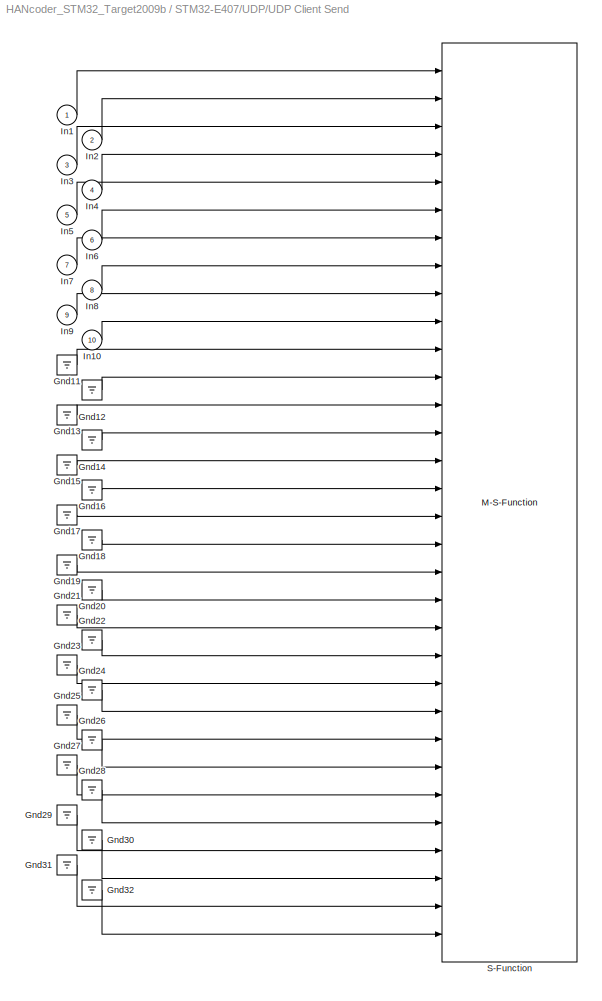
BLOCK [SubSystem] STM32-E407/UDP/UDP Client Send
  FunctionWithSeparateData = off
  MaskCallbackString = ||||||||
  MaskDescription = Function\n========\nSends a data packet to the UDP server with the specified IP address on\nthe specified port.\n\nParameters\n==========\nIP address 1:   First quad of the UDP server's IP address.\nIP address 2:   Second quad of the UDP server's IP address.\nIP address 3:   Third quad of the UDP server's IP address.\nIP address 4:   Fourth quad of the UDP server's IP address.\nPort:           Por...<+279ch>
  MaskDisplay = fprintf('UDP Client Send\\n\\nport: %d\\nip: %d.%d.%d.%d', port, ip1, ip2, ip3, ip4);patch([125 131 131],[8 14 2],[1 0 0]);patch([133 133 139],[14 2 8],[0 0 0.35]);
  MaskEnableString = on,on,on,on,on,on,on,on,on
  MaskHelp = web('sfcn_udp_client_send.html');
  MaskHideContents = off
  MaskIconFrame = on
  MaskIconOpaque = on
  MaskIconRotate = none
  MaskIconUnits = pixels
  MaskInitialization = sfcn_udp_client_send_mcb(ip1,ip2,ip3,ip4,port,inputNumber,dataType,byteOrder);
  MaskPortRotate = default
  MaskPromptString = IP address 1|IP address 2|IP address 3|IP address 4|Port|Input ports|Input datatype|Byte order: Checked = MSB first, unchecked = LSB first.|Sample time
  MaskRunInitForIconRedraw = on
  MaskSelfModifiable = on
  MaskStyleString = edit,edit,edit,edit,edit,popup(1|2|3|4|5|6|7|8|9|10|11|12|13|14|15|16|17|18|19|20|21|22|23|24|25|26|27|28|29|30|31|32),popup(int8|uint8|int16|uint16|int32|uint32|boolean),checkbox,edit
  MaskToolTipString = on,on,on,on,on,on,on,on,on
  MaskTunableValueString = off,off,off,off,off,off,off,off,off
  MaskType = UDP Client Send
  MaskValueString = 192|168|178|35|2000|10|uint8|on|-1
  MaskVariables = ip1=@1;ip2=@2;ip3=@3;ip4=@4;port=@5;inputNumber=@6;dataType=@7;byteOrder=@8;tsamp=@9;
  MaskVisibilityString = on,on,on,on,on,on,on,on,on
  MinAlgLoopOccurrences = off
  MoveFcn = drawLogos
  Opaque = off
  Ports = [10]
  PropExecContextOutsideSubsystem = off
  RTWSystemCode = Auto
  RequestExecContextInheritance = off
  SID = 3727
  Tag = HANcoder_TARGET_STM32_E407
  UserData = DataTag123
  UserDataPersistent = on
  Variant = off
BLOCK [Ground] STM32-E407/UDP/UDP Client Send/Gnd11
  SID = 3727:186
BLOCK [Ground] STM32-E407/UDP/UDP Client Send/Gnd12
  SID = 3727:187
BLOCK [Ground] STM32-E407/UDP/UDP Client Send/Gnd13
  SID = 3727:188
BLOCK [Ground] STM32-E407/UDP/UDP Client Send/Gnd14
  SID = 3727:189
BLOCK [Ground] STM32-E407/UDP/UDP Client Send/Gnd15
  SID = 3727:190
BLOCK [Ground] STM32-E407/UDP/UDP Client Send/Gnd16
  SID = 3727:191
BLOCK [Ground] STM32-E407/UDP/UDP Client Send/Gnd17
  SID = 3727:192
BLOCK [Ground] STM32-E407/UDP/UDP Client Send/Gnd18
  SID = 3727:193
BLOCK [Ground] STM32-E407/UDP/UDP Client Send/Gnd19
  SID = 3727:194
BLOCK [Ground] STM32-E407/UDP/UDP Client Send/Gnd20
  SID = 3727:195
BLOCK [Ground] STM32-E407/UDP/UDP Client Send/Gnd21
  SID = 3727:196
BLOCK [Ground] STM32-E407/UDP/UDP Client Send/Gnd22
  SID = 3727:197
BLOCK [Ground] STM32-E407/UDP/UDP Client Send/Gnd23
  SID = 3727:198
BLOCK [Ground] STM32-E407/UDP/UDP Client Send/Gnd24
  SID = 3727:199
BLOCK [Ground] STM32-E407/UDP/UDP Client Send/Gnd25
  SID = 3727:200
BLOCK [Ground] STM32-E407/UDP/UDP Client Send/Gnd26
  SID = 3727:201
BLOCK [Ground] STM32-E407/UDP/UDP Client Send/Gnd27
  SID = 3727:202
BLOCK [Ground] STM32-E407/UDP/UDP Client Send/Gnd28
  SID = 3727:203
BLOCK [Ground] STM32-E407/UDP/UDP Client Send/Gnd29
  SID = 3727:204
BLOCK [Ground] STM32-E407/UDP/UDP Client Send/Gnd30
  SID = 3727:205
BLOCK [Ground] STM32-E407/UDP/UDP Client Send/Gnd31
  SID = 3727:206
BLOCK [Ground] STM32-E407/UDP/UDP Client Send/Gnd32
  SID = 3727:176
BLOCK [Inport] STM32-E407/UDP/UDP Client Send/In1
  IconDisplay = Port number
  SID = 3727:1
BLOCK [Inport] STM32-E407/UDP/UDP Client Send/In10
  IconDisplay = Port number
  Port = 10
  SID = 3727:215
BLOCK [Inport] STM32-E407/UDP/UDP Client Send/In2
  IconDisplay = Port number
  Port = 2
  SID = 3727:207
BLOCK [Inport] STM32-E407/UDP/UDP Client Send/In3
  IconDisplay = Port number
  Port = 3
  SID = 3727:208
BLOCK [Inport] STM32-E407/UDP/UDP Client Send/In4
  IconDisplay = Port number
  Port = 4
  SID = 3727:209
BLOCK [Inport] STM32-E407/UDP/UDP Client Send/In5
  IconDisplay = Port number
  Port = 5
  SID = 3727:210
BLOCK [Inport] STM32-E407/UDP/UDP Client Send/In6
  IconDisplay = Port number
  Port = 6
  SID = 3727:211
BLOCK [Inport] STM32-E407/UDP/UDP Client Send/In7
  IconDisplay = Port number
  Port = 7
  SID = 3727:212
BLOCK [Inport] STM32-E407/UDP/UDP Client Send/In8
  IconDisplay = Port number
  Port = 8
  SID = 3727:213
BLOCK [Inport] STM32-E407/UDP/UDP Client Send/In9
  IconDisplay = Port number
  Port = 9
  SID = 3727:214
BLOCK [M-S-Function] STM32-E407/UDP/UDP Client Send/S-Function
  FunctionName = sfcn_udp_client_send
  Parameters = tsamp, dataType
  Ports = [32]
  SID = 3727:3737
BLOCK [SubSystem] STM32-E407/UDP/UDP Server Init
  FunctionWithSeparateData = off
  MaskDescription = Function\n========\nInitializes the UDP server to listen for and receive data packets on the\nspecified port.\n\nParameters\n==========\nPort:           Port to listen on.
  MaskDisplay = fprintf('UDP Server Init\\n\\nport: %d', port);patch([128 134 134],[8 14 2],[1 0 0]);patch([136 136 142],[14 2 8],[0 0 0.35]);
  MaskEnableString = on
  MaskHelp = web('sfcn_udp_server_init.html');
  MaskHideContents = off
  MaskIconFrame = on
  MaskIconOpaque = on
  MaskIconRotate = none
  MaskIconUnits = pixels
  MaskInitialization = sfcn_udp_server_init_mcb(port);
  MaskPortRotate = default
  MaskPromptString = Port
  MaskRunInitForIconRedraw = on
  MaskSelfModifiable = on
  MaskStyleString = edit
  MaskToolTipString = on
  MaskTunableValueString = off
  MaskType = UDP Server Init
  MaskValueString = 2001
  MaskVariables = port=@1;
  MaskVisibilityString = on
  MinAlgLoopOccurrences = off
  MoveFcn = drawLogos
  Opaque = off
  Ports = []
  PropExecContextOutsideSubsystem = off
  RTWSystemCode = Auto
  RequestExecContextInheritance = off
  SID = 3738
  Tag = HANcoder_TARGET_STM32_E407
  UserData = DataTag124
  UserDataPersistent = on
  Variant = off
BLOCK [M-S-Function] STM32-E407/UDP/UDP Server Init/S-Function
  FunctionName = sfcn_udp_server_init
  Ports = []
  SID = 3738:3771
BLOCK [SubSystem] STM32-E407/UDP/UDP Server New Data Available
  FunctionWithSeparateData = off
  MaskDescription = Function\n========\nChecks if the UDP server has new data in its internal receive buffer. This\nnew data flag is set each time a data packet is received by the UDP server.\nIt is reset when the application reads data from the receive buffer.\n\nParameters\n==========\nSample time:    -1 or divisible by base sample time [seconds].\n\nOutport\n==========\n1 if new data is available in the UDP server...<+79ch>
  MaskDisplay = fprintf('UDP Server New\\nData Available');patch([128 134 134],[8 14 2],[1 0 0]);patch([136 136 142],[14 2 8],[0 0 0.35]);
  MaskEnableString = on
  MaskHelp = web('sfcn_udp_server_new.html');
  MaskHideContents = off
  MaskIconFrame = on
  MaskIconOpaque = on
  MaskIconRotate = none
  MaskIconUnits = pixels
  MaskInitialization = sfcn_udp_server_new_mcb();
  MaskPortRotate = default
  MaskPromptString = Sample time
  MaskRunInitForIconRedraw = on
  MaskSelfModifiable = on
  MaskStyleString = edit
  MaskToolTipString = on
  MaskTunableValueString = off
  MaskType = UDP Server New Data Available
  MaskValueString = -1
  MaskVariables = tsamp=@1;
  MaskVisibilityString = on
  MinAlgLoopOccurrences = off
  MoveFcn = drawLogos
  Opaque = off
  Ports = [0, 1]
  PropExecContextOutsideSubsystem = off
  RTWSystemCode = Auto
  RequestExecContextInheritance = off
  SID = 3772
  Tag = HANcoder_TARGET_STM32_E407
  UserData = DataTag125
  UserDataPersistent = on
  Variant = off
BLOCK [Outport] STM32-E407/UDP/UDP Server New Data Available/Out1
  IconDisplay = Port number
  SID = 3772:1
BLOCK [M-S-Function] STM32-E407/UDP/UDP Server New Data Available/S-Function
  FunctionName = sfcn_udp_server_new
  Parameters = tsamp
  Ports = [0, 1]
  SID = 3772:3773
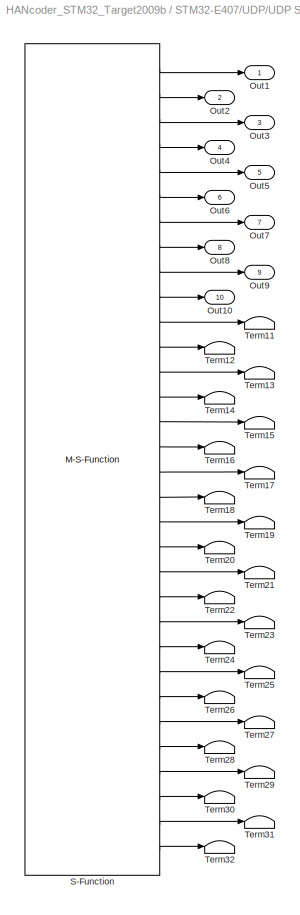
BLOCK [SubSystem] STM32-E407/UDP/UDP Server Receive
  FunctionWithSeparateData = off
  MaskCallbackString = ||||
  MaskDescription = Function\n========\nReads data from the UDP server's internal receive buffer. \n\nParameters\n==========\nOutput ports:    The amount of output ports.\nOutput datatype: The datatype of the output ports.\nByte order:      Select MSB or LSB first.\nStart index:     Start index in the server's buffer to start reading from.\nSample time:     -1 or divisible by base sample time [seconds].\n\nOutput\n==...<+50ch>
  MaskDisplay = fprintf('UDP Server Receive');patch([130 136 136],[8 14 2],[1 0 0]);patch([138 138 144],[14 2 8],[0 0 0.35]);
  MaskEnableString = on,on,on,on,on
  MaskHelp = web('sfcn_udp_server_receive.html');
  MaskHideContents = off
  MaskIconFrame = on
  MaskIconOpaque = on
  MaskIconRotate = none
  MaskIconUnits = pixels
  MaskInitialization = sfcn_udp_server_receive_mcb(outputNumber, dataType, byteOrder, startIdx);
  MaskPortRotate = default
  MaskPromptString = Output ports|Output datatype|Byte order: Checked = MSB first, unchecked = LSB first.|Start index|Sample time
  MaskRunInitForIconRedraw = on
  MaskSelfModifiable = on
  MaskStyleString = popup(1|2|3|4|5|6|7|8|9|10|11|12|13|14|15|16|17|18|19|20|21|22|23|24|25|26|27|28|29|30|31|32),popup(int8|uint8|int16|uint16|int32|uint32|boolean),checkbox,popup(1|2|3|4|5|6|7|8|9|10|11|12|13|14|15|16|17|18|19|20|21|22|23|24|25|26|27|28|29|30|31|32),edit
  MaskToolTipString = on,on,on,on,on
  MaskTunableValueString = off,off,off,off,off
  MaskType = UDP Server Receive
  MaskValueString = 10|uint8|on|1|-1
  MaskVariables = outputNumber=@1;dataType=@2;byteOrder=@3;startIdx=@4;tsamp=@5;
  MaskVisibilityString = on,on,on,on,on
  MinAlgLoopOccurrences = off
  MoveFcn = drawLogos
  Opaque = off
  Ports = [0, 10]
  PropExecContextOutsideSubsystem = off
  RTWSystemCode = Auto
  RequestExecContextInheritance = off
  SID = 3777
  Tag = HANcoder_TARGET_STM32_E407
  UserData = DataTag126
  UserDataPersistent = on
  Variant = off
BLOCK [SubSystem] STM32-E407/UDP/UDP Server Receive Size
  FunctionWithSeparateData = off
  MaskDescription = Function\n========\nReads the size in bytes of the last UDP packet that was received by the \nUDP server and stored in its internal receive buffer.\n\nParameters\n==========\nSample time:    -1 or divisible by base sample time [seconds].\n\nOutport\n==========\nNumber of bytes currently stored in the UDP server's receive buffer.\n
  MaskDisplay = fprintf('UDP Server Receive\\n Size');patch([128 134 134],[8 14 2],[1 0 0]);patch([136 136 142],[14 2 8],[0 0 0.35]);
  MaskEnableString = on
  MaskHelp = web('sfcn_udp_server_count.html');
  MaskHideContents = off
  MaskIconFrame = on
  MaskIconOpaque = on
  MaskIconRotate = none
  MaskIconUnits = pixels
  MaskInitialization = sfcn_udp_server_count_mcb();
  MaskPortRotate = default
  MaskPromptString = Sample time
  MaskRunInitForIconRedraw = on
  MaskSelfModifiable = on
  MaskStyleString = edit
  MaskToolTipString = on
  MaskTunableValueString = off
  MaskType = UDP Server Receive Size
  MaskValueString = -1
  MaskVariables = tsamp=@1;
  MaskVisibilityString = on
  MinAlgLoopOccurrences = off
  MoveFcn = drawLogos
  Opaque = off
  Ports = [0, 1]
  PropExecContextOutsideSubsystem = off
  RTWSystemCode = Auto
  RequestExecContextInheritance = off
  SID = 3774
  Tag = HANcoder_TARGET_STM32_E407
  UserData = DataTag127
  UserDataPersistent = on
  Variant = off
BLOCK [Outport] STM32-E407/UDP/UDP Server Receive Size/Out1
  IconDisplay = Port number
  SID = 3774:3776
BLOCK [M-S-Function] STM32-E407/UDP/UDP Server Receive Size/S-Function
  FunctionName = sfcn_udp_server_count
  Parameters = tsamp
  Ports = [0, 1]
  SID = 3774:3775
BLOCK [Outport] STM32-E407/UDP/UDP Server Receive/Out1
  IconDisplay = Port number
  SID = 3777:3779
BLOCK [Outport] STM32-E407/UDP/UDP Server Receive/Out10
  IconDisplay = Port number
  Port = 10
  SID = 3777:71
BLOCK [Outport] STM32-E407/UDP/UDP Server Receive/Out2
  IconDisplay = Port number
  Port = 2
  SID = 3777:63
BLOCK [Outport] STM32-E407/UDP/UDP Server Receive/Out3
  IconDisplay = Port number
  Port = 3
  SID = 3777:64
BLOCK [Outport] STM32-E407/UDP/UDP Server Receive/Out4
  IconDisplay = Port number
  Port = 4
  SID = 3777:65
BLOCK [Outport] STM32-E407/UDP/UDP Server Receive/Out5
  IconDisplay = Port number
  Port = 5
  SID = 3777:66
BLOCK [Outport] STM32-E407/UDP/UDP Server Receive/Out6
  IconDisplay = Port number
  Port = 6
  SID = 3777:67
BLOCK [Outport] STM32-E407/UDP/UDP Server Receive/Out7
  IconDisplay = Port number
  Port = 7
  SID = 3777:68
BLOCK [Outport] STM32-E407/UDP/UDP Server Receive/Out8
  IconDisplay = Port number
  Port = 8
  SID = 3777:69
BLOCK [Outport] STM32-E407/UDP/UDP Server Receive/Out9
  IconDisplay = Port number
  Port = 9
  SID = 3777:70
BLOCK [M-S-Function] STM32-E407/UDP/UDP Server Receive/S-Function
  FunctionName = sfcn_udp_server_receive
  Parameters = tsamp, dataType
  Ports = [0, 32]
  SID = 3777:3778
BLOCK [Terminator] STM32-E407/UDP/UDP Server Receive/Term11
  SID = 3777:95
BLOCK [Terminator] STM32-E407/UDP/UDP Server Receive/Term12
  SID = 3777:96
BLOCK [Terminator] STM32-E407/UDP/UDP Server Receive/Term13
  SID = 3777:97
BLOCK [Terminator] STM32-E407/UDP/UDP Server Receive/Term14
  SID = 3777:98
BLOCK [Terminator] STM32-E407/UDP/UDP Server Receive/Term15
  SID = 3777:99
BLOCK [Terminator] STM32-E407/UDP/UDP Server Receive/Term16
  SID = 3777:100
BLOCK [Terminator] STM32-E407/UDP/UDP Server Receive/Term17
  SID = 3777:101
BLOCK [Terminator] STM32-E407/UDP/UDP Server Receive/Term18
  SID = 3777:102
BLOCK [Terminator] STM32-E407/UDP/UDP Server Receive/Term19
  SID = 3777:103
BLOCK [Terminator] STM32-E407/UDP/UDP Server Receive/Term20
  SID = 3777:104
BLOCK [Terminator] STM32-E407/UDP/UDP Server Receive/Term21
  SID = 3777:105
BLOCK [Terminator] STM32-E407/UDP/UDP Server Receive/Term22
  SID = 3777:106
BLOCK [Terminator] STM32-E407/UDP/UDP Server Receive/Term23
  SID = 3777:107
BLOCK [Terminator] STM32-E407/UDP/UDP Server Receive/Term24
  SID = 3777:108
BLOCK [Terminator] STM32-E407/UDP/UDP Server Receive/Term25
  SID = 3777:109
BLOCK [Terminator] STM32-E407/UDP/UDP Server Receive/Term26
  SID = 3777:110
BLOCK [Terminator] STM32-E407/UDP/UDP Server Receive/Term27
  SID = 3777:111
BLOCK [Terminator] STM32-E407/UDP/UDP Server Receive/Term28
  SID = 3777:112
BLOCK [Terminator] STM32-E407/UDP/UDP Server Receive/Term29
  SID = 3777:113
BLOCK [Terminator] STM32-E407/UDP/UDP Server Receive/Term30
  SID = 3777:114
BLOCK [Terminator] STM32-E407/UDP/UDP Server Receive/Term31
  SID = 3777:115
BLOCK [Terminator] STM32-E407/UDP/UDP Server Receive/Term32
  SID = 3777:94
BLOCK [SubSystem] STM32-E407/UDS
  FunctionWithSeparateData = off
  MaskDisplay = fprintf('UDS');patch([85 91 91],[8 14 2],[1 0 0]);patch([93 93 99],[14 2 8],[0 0 0.35]);
  MaskHideContents = off
  MaskIconFrame = on
  MaskIconOpaque = on
  MaskIconRotate = none
  MaskIconUnits = pixels
  MaskPortRotate = default
  MaskRunInitForIconRedraw = on
  MinAlgLoopOccurrences = off
  MoveFcn = drawLogos
  Opaque = off
  Ports = []
  PropExecContextOutsideSubsystem = off
  RTWSystemCode = Auto
  RequestExecContextInheritance = off
  SID = 3654
  UserDataPersistent = on
  Variant = off
BLOCK [SubSystem] STM32-E407/UDS/UDS Get Key
  FunctionWithSeparateData = off
  MaskDescription = Function\n==========\nReads the 32-bit key value that was received from the UDS tester.\n\nOutport\n=======\n - Key value that was received from the UDS tester.\n
  MaskDisplay = fprintf('UDS Get Key');patch([65 71 71],[8 14 2],[1 0 0]);patch([73 73 79],[14 2 8],[0 0 0.35]);
  MaskEnableString = on
  MaskHelp = web('sfcn_uds_get_key.html');
  MaskHideContents = off
  MaskIconFrame = on
  MaskIconOpaque = on
  MaskIconRotate = none
  MaskIconUnits = pixels
  MaskInitialization = sfcn_uds_get_key_mcb();
  MaskPortRotate = default
  MaskPromptString = Sample time
  MaskRunInitForIconRedraw = on
  MaskSelfModifiable = on
  MaskStyleString = edit
  MaskToolTipString = on
  MaskTunableValueString = off
  MaskType = UDS Get Key
  MaskValueString = -1
  MaskVariables = tsamp=@1;
  MaskVisibilityString = on
  MinAlgLoopOccurrences = off
  MoveFcn = drawLogos
  Opaque = off
  Ports = [0, 1]
  PropExecContextOutsideSubsystem = off
  RTWSystemCode = Auto
  RequestExecContextInheritance = off
  SID = 3655
  Tag = HANcoder_TARGET_STM32_E407
  UserData = DataTag128
  UserDataPersistent = on
  Variant = off
BLOCK [Outport] STM32-E407/UDS/UDS Get Key/Out1
  IconDisplay = Port number
  SID = 3655:3672
BLOCK [M-S-Function] STM32-E407/UDS/UDS Get Key/S-Function
  FunctionName = sfcn_uds_get_key
  Parameters = tsamp
  Ports = [0, 1]
  SID = 3655:3671
BLOCK [SubSystem] STM32-E407/UDS/UDS Get Seed
  FunctionWithSeparateData = off
  MaskDescription = Function\n==========\nReads the 32-bit seed value to be used in the seed/key unlock sequence.\n\nOutport\n=======\n - Seed value to be used in the seed/key unlock sequence.\n
  MaskDisplay = fprintf('UDS Get Seed');patch([65 71 71],[8 14 2],[1 0 0]);patch([73 73 79],[14 2 8],[0 0 0.35]);
  MaskEnableString = on
  MaskHelp = web('sfcn_uds_get_seed.html');
  MaskHideContents = off
  MaskIconFrame = on
  MaskIconOpaque = on
  MaskIconRotate = none
  MaskIconUnits = pixels
  MaskInitialization = sfcn_uds_get_seed_mcb();
  MaskPortRotate = default
  MaskPromptString = Sample time
  MaskRunInitForIconRedraw = on
  MaskSelfModifiable = on
  MaskStyleString = edit
  MaskToolTipString = on
  MaskTunableValueString = off
  MaskType = UDS Get Seed
  MaskValueString = -1
  MaskVariables = tsamp=@1;
  MaskVisibilityString = on
  MinAlgLoopOccurrences = off
  MoveFcn = drawLogos
  Opaque = off
  Ports = [0, 1]
  PropExecContextOutsideSubsystem = off
  RTWSystemCode = Auto
  RequestExecContextInheritance = off
  SID = 3656
  Tag = HANcoder_TARGET_STM32_E407
  UserData = DataTag129
  UserDataPersistent = on
  Variant = off
BLOCK [SubSystem] STM32-E407/UDS/UDS Get Seed Event
  FunctionWithSeparateData = off
  MaskDisplay = fprintf('UDS Get Seed Event');patch([95 101 101],[8 14 2],[1 0 0]);patch([103 103 109],[14 2 8],[0 0 0.35]);
  MaskHelp = web('sfcn_uds_get_seed_event.html');
  MaskHideContents = off
  MaskIconFrame = on
  MaskIconOpaque = on
  MaskIconRotate = none
  MaskIconUnits = pixels
  MaskInitialization = sfcn_uds_get_seed_event_mcb();
  MaskPortRotate = default
  MaskRunInitForIconRedraw = on
  MaskSelfModifiable = on
  MaskType = UDS Get Seed Event
  MinAlgLoopOccurrences = off
  MoveFcn = drawLogos
  Opaque = off
  Ports = [0, 1]
  PropExecContextOutsideSubsystem = off
  RTWSystemCode = Auto
  RequestExecContextInheritance = off
  SID = 3657
  Tag = HANcoder_TARGET_STM32_E407
  UserData = DataTag130
  UserDataPersistent = on
  Variant = off
BLOCK [Outport] STM32-E407/UDS/UDS Get Seed Event/Out1
  IconDisplay = Port number
  SID = 3657:1
BLOCK [S-Function] STM32-E407/UDS/UDS Get Seed Event/S-Function
  EnableBusSupport = off
  FunctionName = sfcn_uds_get_seed_event
  Ports = [0, 1]
  SFunctionDeploymentMode = off
  SID = 3657:3668
BLOCK [Outport] STM32-E407/UDS/UDS Get Seed/Out1
  IconDisplay = Port number
  SID = 3656:1
BLOCK [M-S-Function] STM32-E407/UDS/UDS Get Seed/S-Function
  FunctionName = sfcn_uds_get_seed
  Parameters = tsamp
  Ports = [0, 1]
  SID = 3656:3666
BLOCK [SubSystem] STM32-E407/UDS/UDS Init
  FunctionWithSeparateData = off
  MaskCallbackString = |||||||
  MaskDisplay = fprintf('UDS Init\\n(CAN %x)', canChannel);\npatch([65 71 71],[8 14 2],[1 0 0]);patch([73 73 79],[14 2 8],[0 0 0.35]);
  MaskEnableString = on,on,on,on,on,on,on,on
  MaskHelp = web('sfcn_uds_init.html');
  MaskHideContents = off
  MaskIconFrame = on
  MaskIconOpaque = on
  MaskIconRotate = none
  MaskIconUnits = pixels
  MaskInitialization = sfcn_uds_init_mcb(canChannel, canTxId, canRxId, tpBlockSize, tpSTmin, tpRxBuffSize, udsTxBuffSize, udsUseSeedKey);
  MaskPortRotate = default
  MaskPromptString = CAN channel|CAN transmit ID|CAN receive ID|TP blocksize|TP STmin|TP reception buffer size|UDS transmit buffer size|UDS seed/key required
  MaskRunInitForIconRedraw = on
  MaskSelfModifiable = on
  MaskStyleString = popup(CAN 1|CAN 2),edit,edit,popup(1|2|3|4|5|6|7|8|9|10|11|12|13|14|15|16|17|18|19|20|21|22|23|24|25|26|27|28|29|30|31|32|33|34|35|36|37|38|39|40|41|42|43|44|45|46|47|48|49|50|51|52|53|54|55|56|57|58|59|60|61|62|63|64|65|66|67|68|69|70|71|72|73|74|75|76|77|78|79|80|81|82|83|84|85|86|87|88|89|90|91|92|93|94|95|96|97|98|99|100|101|102|103|104|105|106|107|108|109|110|111|112|113|114|115|116|117|118|1...<+1485ch>
  MaskToolTipString = on,on,on,on,on,on,on,on
  MaskTunableValueString = off,off,off,off,off,off,off,off
  MaskType = UDS Init
  MaskValueString = CAN 1|hex2dec('7E8')|hex2dec('7E0')|4|40|64|64|off
  MaskVariables = canChannel=@1;canTxId=@2;canRxId=@3;tpBlockSize=@4;tpSTmin=@5;tpRxBuffSize=@6;udsTxBuffSize=@7;udsUseSeedKey=@8;
  MaskVisibilityString = on,on,on,on,on,on,on,on
  MinAlgLoopOccurrences = off
  MoveFcn = drawLogos
  Opaque = off
  Ports = []
  PropExecContextOutsideSubsystem = off
  RTWSystemCode = Auto
  RequestExecContextInheritance = off
  SID = 3658
  Tag = HANcoder_TARGET_STM32_E407
  UserData = DataTag131
  UserDataPersistent = on
  Variant = off
BLOCK [M-S-Function] STM32-E407/UDS/UDS Init/S-Function
  FunctionName = sfcn_uds_init
  Ports = []
  SID = 3658:3661
BLOCK [SubSystem] STM32-E407/UDS/UDS Set Key Verfied
  FunctionWithSeparateData = off
  MaskDisplay = fprintf('UDS Set Key\\nVerified');patch([65 71 71],[8 14 2],[1 0 0]);patch([73 73 79],[14 2 8],[0 0 0.35]);
  MaskEnableString = on
  MaskHelp = web('sfcn_uds_set_key_verified.html');
  MaskHideContents = off
  MaskIconFrame = on
  MaskIconOpaque = on
  MaskIconRotate = none
  MaskIconUnits = pixels
  MaskInitialization = sfcn_uds_set_key_verified_mcb();
  MaskPortRotate = default
  MaskPromptString = Sample time
  MaskRunInitForIconRedraw = on
  MaskSelfModifiable = on
  MaskStyleString = edit
  MaskToolTipString = on
  MaskTunableValueString = off
  MaskType = UDS Set Key Verified
  MaskValueString = -1
  MaskVariables = tsamp=@1;
  MaskVisibilityString = on
  MinAlgLoopOccurrences = off
  MoveFcn = drawLogos
  Opaque = off
  Ports = [1]
  PropExecContextOutsideSubsystem = off
  RTWSystemCode = Auto
  RequestExecContextInheritance = off
  SID = 3659
  Tag = HANcoder_TARGET_STM32_E407
  UserData = DataTag132
  UserDataPersistent = on
  Variant = off
BLOCK [Inport] STM32-E407/UDS/UDS Set Key Verfied/In1
  IconDisplay = Port number
  SID = 3659:3677
BLOCK [M-S-Function] STM32-E407/UDS/UDS Set Key Verfied/S-Function
  FunctionName = sfcn_uds_set_key_verified
  Parameters = tsamp
  Ports = [1]
  SID = 3659:3678
BLOCK [SubSystem] STM32-E407/UDS/UDS Set Seed
  FunctionWithSeparateData = off
  MaskDescription = Function\n==========\nSets the 32-bit seed value to be used in the seed/key unlock sequence.\n\nInport\n======\n - Seed value to be used in the seed/key unlock sequence.\n\n
  MaskDisplay = fprintf('UDS Set Seed');patch([65 71 71],[8 14 2],[1 0 0]);patch([73 73 79],[14 2 8],[0 0 0.35]);
  MaskEnableString = on
  MaskHelp = web('sfcn_uds_set_seed.html');
  MaskHideContents = off
  MaskIconFrame = on
  MaskIconOpaque = on
  MaskIconRotate = none
  MaskIconUnits = pixels
  MaskInitialization = sfcn_uds_set_seed_mcb();
  MaskPortRotate = default
  MaskPromptString = Sample time
  MaskRunInitForIconRedraw = on
  MaskSelfModifiable = on
  MaskStyleString = edit
  MaskToolTipString = on
  MaskTunableValueString = off
  MaskType = UDS Set Seed
  MaskValueString = -1
  MaskVariables = tsamp=@1;
  MaskVisibilityString = on
  MinAlgLoopOccurrences = off
  MoveFcn = drawLogos
  Opaque = off
  Ports = [1]
  PropExecContextOutsideSubsystem = off
  RTWSystemCode = Auto
  RequestExecContextInheritance = off
  SID = 3660
  Tag = HANcoder_TARGET_STM32_E407
  UserData = DataTag133
  UserDataPersistent = on
  Variant = off
BLOCK [Inport] STM32-E407/UDS/UDS Set Seed/In1
  IconDisplay = Port number
  SID = 3660:1
BLOCK [M-S-Function] STM32-E407/UDS/UDS Set Seed/S-Function
  FunctionName = sfcn_uds_set_seed
  Parameters = tsamp
  Ports = [1]
  SID = 3660:3663
BLOCK [SubSystem] STM32-E407/UDS/UDS Verify Key Event
  FunctionWithSeparateData = off
  MaskDisplay = fprintf('UDS Verify Key Event');patch([95 101 101],[8 14 2],[1 0 0]);patch([103 103 109],[14 2 8],[0 0 0.35]);
  MaskHelp = web('sfcn_uds_verify_key_event.html');
  MaskHideContents = off
  MaskIconFrame = on
  MaskIconOpaque = on
  MaskIconRotate = none
  MaskIconUnits = pixels
  MaskInitialization = sfcn_uds_verify_key_event_mcb();
  MaskPortRotate = default
  MaskRunInitForIconRedraw = on
  MaskSelfModifiable = on
  MaskType = UDS Verify Key Event
  MinAlgLoopOccurrences = off
  MoveFcn = drawLogos
  Opaque = off
  Ports = [0, 1]
  PropExecContextOutsideSubsystem = off
  RTWSystemCode = Auto
  RequestExecContextInheritance = off
  SID = 3661
  Tag = HANcoder_TARGET_STM32_E407
  UserData = DataTag134
  UserDataPersistent = on
  Variant = off
BLOCK [Outport] STM32-E407/UDS/UDS Verify Key Event/Out1
  IconDisplay = Port number
  SID = 3661:3675
BLOCK [S-Function] STM32-E407/UDS/UDS Verify Key Event/S-Function
  EnableBusSupport = off
  FunctionName = sfcn_uds_verify_key_event
  Ports = [0, 1]
  SFunctionDeploymentMode = off
  SID = 3661:3674
BLOCK [SubSystem] STM32-P405
  FunctionWithSeparateData = off
  MaskDisplay = disp('STM32-P405')\npatch([80 86 86],[8 14 2],[1 0 0]);patch([88 88 94],[14 2 8],[0 0 0.35]);
  MaskHideContents = off
  MaskIconFrame = on
  MaskIconOpaque = on
  MaskIconRotate = none
  MaskIconUnits = pixels
  MaskPortRotate = default
  MaskRunInitForIconRedraw = on
  MinAlgLoopOccurrences = off
  MoveFcn = drawLogos
  Opaque = off
  Ports = []
  PropExecContextOutsideSubsystem = off
  RTWSystemCode = Auto
  RequestExecContextInheritance = off
  SID = 3432
  UserDataPersistent = on
  Variant = off
BLOCK [SubSystem] STM32-P405/Analog Inputs
  FunctionWithSeparateData = off
  MaskDisplay = fprintf('Analog Inputs');patch([85 91 91],[8 14 2],[1 0 0]);patch([93 93 99],[14 2 8],[0 0 0.35]);
  MaskHideContents = off
  MaskIconFrame = on
  MaskIconOpaque = on
  MaskIconRotate = none
  MaskIconUnits = pixels
  MaskPortRotate = default
  MaskRunInitForIconRedraw = on
  MinAlgLoopOccurrences = off
  MoveFcn = drawLogos
  Opaque = off
  Ports = []
  PropExecContextOutsideSubsystem = off
  RTWSystemCode = Auto
  RequestExecContextInheritance = off
  SID = 3495
  UserDataPersistent = on
  Variant = off
BLOCK [SubSystem] STM32-P405/Analog Inputs/Analog Input
  FunctionWithSeparateData = off
  MaskCallbackString = ||
  MaskDisplay = fprintf('Analog Input\\n%s', pinIDInfoStr);patch([135 141 141],[8 14 2],[1 0 0]);patch([143 143 149],[14 2 8],[0 0 0.35]);
  MaskEnableString = on,on,on
  MaskHelp = web('sfcn_analog_in.html');
  MaskHideContents = off
  MaskIconFrame = on
  MaskIconOpaque = on
  MaskIconRotate = none
  MaskIconUnits = pixels
  MaskInitialization = pinIDInfoStr = sfcn_analog_in_mcb(3, pinID,0);\n
  MaskPortRotate = default
  MaskPromptString = Input pin|Sample time|Use over sampling and filtering (causes high CPU load)
  MaskRunInitForIconRedraw = on
  MaskSelfModifiable = on
  MaskStyleString = popup(Port A pin 1|Port B pin 0|Port B pin 1|Port C pin 0|Port C pin 1|Port C pin 2|Port C pin 3|Port C pin 4|Port C pin 5),edit,checkbox
  MaskToolTipString = on,on,on
  MaskTunableValueString = off,off,on
  MaskType = Analog Input
  MaskValueString = Port A pin 1|-1|off
  MaskVariables = pinID=@1;tsamp=@2;filtered=@3;
  MaskVisibilityString = on,on,on
  MinAlgLoopOccurrences = off
  MoveFcn = drawLogos
  Opaque = off
  Ports = [0, 1]
  PropExecContextOutsideSubsystem = off
  RTWSystemCode = Auto
  RequestExecContextInheritance = off
  SID = 3496
  Tag = HANcoder_TARGET_STM32_P405
  UserData = DataTag135
  UserDataPersistent = on
  Variant = off
BLOCK [M-S-Function] STM32-P405/Analog Inputs/Analog Input/Level-2 M-file\nS-Function
  FunctionName = sfcn_analog_in
  Parameters = tsamp, pinID
  Ports = [0, 1]
  SID = 3496:3367
BLOCK [Outport] STM32-P405/Analog Inputs/Analog Input/Out1
  IconDisplay = Port number
  SID = 3496:3368
BLOCK [SubSystem] STM32-P405/CAN
  FunctionWithSeparateData = off
  MaskDisplay = fprintf('CAN');patch([85 91 91],[8 14 2],[1 0 0]);patch([93 93 99],[14 2 8],[0 0 0.35]);
  MaskHideContents = off
  MaskIconFrame = on
  MaskIconOpaque = on
  MaskIconRotate = none
  MaskIconUnits = pixels
  MaskPortRotate = default
  MaskRunInitForIconRedraw = on
  MinAlgLoopOccurrences = off
  MoveFcn = drawLogos
  Opaque = off
  Ports = []
  PropExecContextOutsideSubsystem = off
  RTWSystemCode = Auto
  RequestExecContextInheritance = off
  SID = 3435
  UserDataPersistent = on
  Variant = off
BLOCK [SubSystem] STM32-P405/CAN/CAN
  FunctionWithSeparateData = off
  MaskDisplay = fprintf('CAN');patch([85 91 91],[8 14 2],[1 0 0]);patch([93 93 99],[14 2 8],[0 0 0.35]);
  MaskHideContents = off
  MaskIconFrame = on
  MaskIconOpaque = on
  MaskIconRotate = none
  MaskIconUnits = pixels
  MaskPortRotate = default
  MaskRunInitForIconRedraw = on
  MinAlgLoopOccurrences = off
  MoveFcn = drawLogos
  Opaque = off
  Ports = []
  PropExecContextOutsideSubsystem = off
  RTWSystemCode = Auto
  RequestExecContextInheritance = off
  SID = 3882
  UserDataPersistent = on
  Variant = off
BLOCK [SubSystem] STM32-P405/CAN/CAN/CAN receive
  FunctionWithSeparateData = off
  MaskCallbackString = ||||
  MaskDescription = Function\n==========\nReceive the newest message from the specified CAN channel.\n\nParameters\n========== \nCAN channel:             The CAN channel to send the message on.\nOutput ports:             The amount of output ports\nOutput datatype:       The datatype of the output ports\nByte order:                 Select MSB or LSB first\nSample time:              -1 or divisible by base sample time...<+239ch>
  MaskDisplay = fprintf('Receive on\\nCAN %x', canBus);\nport_label('output', 1, 'new');\nport_label('input', 1, 'ID');patch([75 81 81],[8 14 2],[1 0 0]);patch([83 83 89],[14 2 8],[0 0 0.35]);
  MaskEnableString = on,on,on,on,on
  MaskHelp = web('sfcn_can_receive.html');
  MaskHideContents = off
  MaskIconFrame = on
  MaskIconOpaque = on
  MaskIconRotate = none
  MaskIconUnits = pixels
  MaskInitialization = sfcn_can_receive_mcb(canBus, outputNumber, dataType, byteOrder)
  MaskPortRotate = default
  MaskPromptString = CAN channel|Output ports|Output datatype|Byte order: Checked = MSB first, unchecked = LSB first.|Sample time
  MaskRunInitForIconRedraw = on
  MaskSelfModifiable = on
  MaskStyleString = popup(CAN 1|CAN 2),edit,popup(int8|uint8|int16|uint16|int32|uint32|boolean),checkbox,edit
  MaskToolTipString = on,on,on,on,on
  MaskTunableValueString = off,off,off,off,off
  MaskType = CAN receive
  MaskValueString = CAN 1|1|uint8|off|-1
  MaskVariables = canBus=@1;outputNumber=@2;dataType=@3;byteOrder=@4;tsamp=@5;
  MaskVisibilityString = on,on,on,on,on
  MinAlgLoopOccurrences = off
  MoveFcn = drawLogos
  Opaque = off
  Ports = [1, 2]
  PropExecContextOutsideSubsystem = off
  RTWSystemCode = Auto
  RequestExecContextInheritance = off
  SID = 3436
  Tag = HANcoder_TARGET_STM32_P405
  UserData = DataTag136
  UserDataPersistent = on
  Variant = off
BLOCK [SubSystem] STM32-P405/CAN/CAN/CAN receive packed
  FunctionWithSeparateData = off
  MaskCallbackString = ||
  MaskDisplay = fprintf('Receive packed CAN\\nmessage on CAN %x\\nID %xh', canBus, canID);patch([95 101 101],[8 14 2],[1 0 0]);patch([103 103 109],[14 2 8],[0 0 0.35]);
  MaskEnableString = on,on,on
  MaskHelp = web('sfcn_can_receive_packed.html');
  MaskHideContents = off
  MaskIconFrame = on
  MaskIconOpaque = on
  MaskIconRotate = none
  MaskIconUnits = pixels
  MaskInitialization = sfcn_can_receive_packed_mcb(canBus, canID)
  MaskPortRotate = default
  MaskPromptString = CAN channel|Can ID (in hex)|Sample time
  MaskRunInitForIconRedraw = on
  MaskSelfModifiable = on
  MaskStyleString = popup(CAN 1|CAN 2),edit,edit
  MaskToolTipString = on,on,on
  MaskTunableValueString = off,off,off
  MaskType = CAN receive packed
  MaskValueString = CAN 1|hex2dec('80')|-1
  MaskVariables = canBus=@1;canID=@2;tsamp=@3;
  MaskVisibilityString = on,on,on
  MinAlgLoopOccurrences = off
  MoveFcn = drawLogos
  Opaque = off
  Ports = [0, 2]
  PropExecContextOutsideSubsystem = off
  RTWSystemCode = Auto
  RequestExecContextInheritance = off
  SID = 3437
  Tag = HANcoder_TARGET_STM32_P405
  UserData = DataTag137
  UserDataPersistent = on
  Variant = off
BLOCK [SubSystem] STM32-P405/CAN/CAN/CAN receive packed/Enabled\nSubsystem
  FunctionWithSeparateData = off
  MaskHideContents = off
  MinAlgLoopOccurrences = off
  Opaque = off
  Ports = [1, 1, 1]
  PropExecContextOutsideSubsystem = off
  RTWSystemCode = Auto
  RequestExecContextInheritance = off
  SID = 3437:3119
  TreatAsAtomicUnit = on
  Variant = off
BLOCK [EnablePort] STM32-P405/CAN/CAN/CAN receive packed/Enabled\nSubsystem/Enable
  Ports = []
  SID = 3437:3123
BLOCK [Inport] STM32-P405/CAN/CAN/CAN receive packed/Enabled\nSubsystem/In1
  IconDisplay = Port number
  SID = 3437:3122
BLOCK [Outport] STM32-P405/CAN/CAN/CAN receive packed/Enabled\nSubsystem/Out1
  IconDisplay = Port number
  SID = 3437:3124
BLOCK [Outport] STM32-P405/CAN/CAN/CAN receive packed/Out1
  IconDisplay = Port number
  SID = 3437:3120
BLOCK [Outport] STM32-P405/CAN/CAN/CAN receive packed/Out2
  IconDisplay = Port number
  Port = 2
  SID = 3437:3121
BLOCK [M-S-Function] STM32-P405/CAN/CAN/CAN receive packed/S-Function
  FunctionName = sfcn_can_receive_packed
  Parameters = tsamp, canBus, canID
  Ports = [0, 2]
  SID = 3437:3116
BLOCK [SubSystem] STM32-P405/CAN/CAN/CAN receive/Enabled\nSubsystem
  FunctionWithSeparateData = off
  MaskHideContents = off
  MinAlgLoopOccurrences = off
  Opaque = off
  Ports = [8, 8, 1]
  PropExecContextOutsideSubsystem = off
  RTWSystemCode = Auto
  RequestExecContextInheritance = off
  SID = 3436:3115
  TreatAsAtomicUnit = on
  Variant = off
BLOCK [EnablePort] STM32-P405/CAN/CAN/CAN receive/Enabled\nSubsystem/Enable
  Ports = []
  SID = 3436:3133
BLOCK [Inport] STM32-P405/CAN/CAN/CAN receive/Enabled\nSubsystem/In1
  IconDisplay = Port number
  SID = 3436:3125
BLOCK [Inport] STM32-P405/CAN/CAN/CAN receive/Enabled\nSubsystem/In2
  IconDisplay = Port number
  Port = 2
  SID = 3436:3126
BLOCK [Inport] STM32-P405/CAN/CAN/CAN receive/Enabled\nSubsystem/In3
  IconDisplay = Port number
  Port = 3
  SID = 3436:3127
BLOCK [Inport] STM32-P405/CAN/CAN/CAN receive/Enabled\nSubsystem/In4
  IconDisplay = Port number
  Port = 4
  SID = 3436:3128
BLOCK [Inport] STM32-P405/CAN/CAN/CAN receive/Enabled\nSubsystem/In5
  IconDisplay = Port number
  Port = 5
  SID = 3436:3129
BLOCK [Inport] STM32-P405/CAN/CAN/CAN receive/Enabled\nSubsystem/In6
  IconDisplay = Port number
  Port = 6
  SID = 3436:3130
BLOCK [Inport] STM32-P405/CAN/CAN/CAN receive/Enabled\nSubsystem/In7
  IconDisplay = Port number
  Port = 7
  SID = 3436:3131
BLOCK [Inport] STM32-P405/CAN/CAN/CAN receive/Enabled\nSubsystem/In8
  IconDisplay = Port number
  Port = 8
  SID = 3436:3132
BLOCK [Outport] STM32-P405/CAN/CAN/CAN receive/Enabled\nSubsystem/Out1
  IconDisplay = Port number
  SID = 3436:3134
BLOCK [Outport] STM32-P405/CAN/CAN/CAN receive/Enabled\nSubsystem/Out2
  IconDisplay = Port number
  Port = 2
  SID = 3436:3135
BLOCK [Outport] STM32-P405/CAN/CAN/CAN receive/Enabled\nSubsystem/Out3
  IconDisplay = Port number
  Port = 3
  SID = 3436:3136
BLOCK [Outport] STM32-P405/CAN/CAN/CAN receive/Enabled\nSubsystem/Out4
  IconDisplay = Port number
  Port = 4
  SID = 3436:3137
BLOCK [Outport] STM32-P405/CAN/CAN/CAN receive/Enabled\nSubsystem/Out5
  IconDisplay = Port number
  Port = 5
  SID = 3436:3138
BLOCK [Outport] STM32-P405/CAN/CAN/CAN receive/Enabled\nSubsystem/Out6
  IconDisplay = Port number
  Port = 6
  SID = 3436:3139
BLOCK [Outport] STM32-P405/CAN/CAN/CAN receive/Enabled\nSubsystem/Out7
  IconDisplay = Port number
  Port = 7
  SID = 3436:3140
BLOCK [Outport] STM32-P405/CAN/CAN/CAN receive/Enabled\nSubsystem/Out8
  IconDisplay = Port number
  Port = 8
  SID = 3436:3141
BLOCK [Inport] STM32-P405/CAN/CAN/CAN receive/In1
  IconDisplay = Port number
  SID = 3436:3104
BLOCK [Outport] STM32-P405/CAN/CAN/CAN receive/Out1
  IconDisplay = Port number
  SID = 3436:3123
BLOCK [Outport] STM32-P405/CAN/CAN/CAN receive/Out2
  IconDisplay = Port number
  Port = 2
  SID = 3436:3124
BLOCK [M-S-Function] STM32-P405/CAN/CAN/CAN receive/S-Function
  FunctionName = sfcn_can_receive
  Parameters = tsamp, canBus, outputNumber, dataType, byteOrder
  Ports = [1, 9]
  SID = 3436:3105
BLOCK [Terminator] STM32-P405/CAN/CAN/CAN receive/Term3
  SID = 3436:3116
BLOCK [Terminator] STM32-P405/CAN/CAN/CAN receive/Term4
  SID = 3436:3117
BLOCK [Terminator] STM32-P405/CAN/CAN/CAN receive/Term5
  SID = 3436:3118
BLOCK [Terminator] STM32-P405/CAN/CAN/CAN receive/Term6
  SID = 3436:3119
BLOCK [Terminator] STM32-P405/CAN/CAN/CAN receive/Term7
  SID = 3436:3120
BLOCK [Terminator] STM32-P405/CAN/CAN/CAN receive/Term8
  SID = 3436:3121
BLOCK [Terminator] STM32-P405/CAN/CAN/CAN receive/Term9
  SID = 3436:3122
BLOCK [SubSystem] STM32-P405/CAN/CAN/CAN send
  FunctionWithSeparateData = off
  MaskCallbackString = |||||
  MaskDisplay = fprintf('Send on\\nCAN %x', canBus);\nport_label('input', 1, 'ID');patch([65 71 71],[8 14 2],[1 0 0]);patch([73 73 79],[14 2 8],[0 0 0.35]);
  MaskEnableString = on,on,on,on,on,on
  MaskHelp = web('sfcn_can_send.html');
  MaskHideContents = off
  MaskIconFrame = on
  MaskIconOpaque = on
  MaskIconRotate = none
  MaskIconUnits = pixels
  MaskInitialization = sfcn_can_send_mcb(canBus, frameType, inputNumber, dataType, byteOrder)
  MaskPortRotate = default
  MaskPromptString = CAN channel|Identifier type|Input ports|Input datatype|Byte order: Checked = MSB first, unchecked = LSB first.|Sample time
  MaskRunInitForIconRedraw = on
  MaskSelfModifiable = on
  MaskStyleString = popup(CAN 1|CAN 2),popup(Standard (11 bit)|Extended (29 bit)),edit,popup(int8|uint8|int16|uint16|int32|uint32|boolean),checkbox,edit
  MaskToolTipString = on,on,on,on,on,on
  MaskTunableValueString = off,off,off,off,off,off
  MaskType = CAN send
  MaskValueString = CAN 1|Standard (11 bit)|8|uint8|on|-1
  MaskVariables = canBus=@1;frameType=@2;inputNumber=@3;dataType=@4;byteOrder=@5;tsamp=@6;
  MaskVisibilityString = on,on,on,on,on,on
  MinAlgLoopOccurrences = off
  MoveFcn = drawLogos
  Opaque = off
  Ports = [9]
  PropExecContextOutsideSubsystem = off
  RTWSystemCode = Auto
  RequestExecContextInheritance = off
  SID = 3438
  Tag = HANcoder_TARGET_STM32_P405
  UserData = DataTag138
  UserDataPersistent = on
  Variant = off
BLOCK [SubSystem] STM32-P405/CAN/CAN/CAN send packed
  FunctionWithSeparateData = off
  MaskCallbackString = |
  MaskDisplay = fprintf('Send packed CAN\\n message on CAN %x', canBus);patch([95 101 101],[8 14 2],[1 0 0]);patch([103 103 109],[14 2 8],[0 0 0.35]);
  MaskEnableString = on,on
  MaskHelp = web('sfcn_can_send_packed.html');
  MaskHideContents = off
  MaskIconFrame = on
  MaskIconOpaque = on
  MaskIconRotate = none
  MaskIconUnits = pixels
  MaskInitialization = sfcn_can_send_packed_mcb(canBus)
  MaskPortRotate = default
  MaskPromptString = CAN channel|Sample time
  MaskRunInitForIconRedraw = on
  MaskSelfModifiable = on
  MaskStyleString = popup(CAN 1|CAN 2),edit
  MaskToolTipString = on,on
  MaskTunableValueString = off,off
  MaskType = CAN send packed
  MaskValueString = CAN 1|-1
  MaskVariables = canBus=@1;tsamp=@2;
  MaskVisibilityString = on,on
  MinAlgLoopOccurrences = off
  MoveFcn = drawLogos
  Opaque = off
  Ports = [1]
  PropExecContextOutsideSubsystem = off
  RTWSystemCode = Auto
  RequestExecContextInheritance = off
  SID = 3439
  Tag = HANcoder_TARGET_STM32_P405
  UserData = DataTag139
  UserDataPersistent = on
  Variant = off
BLOCK [Inport] STM32-P405/CAN/CAN/CAN send packed/In1
  IconDisplay = Port number
  SID = 3439:3101
BLOCK [M-S-Function] STM32-P405/CAN/CAN/CAN send packed/S-Function
  FunctionName = sfcn_can_send_packed
  Parameters = tsamp, canBus
  Ports = [1]
  SID = 3439:3102
BLOCK [Inport] STM32-P405/CAN/CAN/CAN send/In1
  IconDisplay = Port number
  SID = 3438:3090
BLOCK [Inport] STM32-P405/CAN/CAN/CAN send/In2
  IconDisplay = Port number
  Port = 2
  SID = 3438:3091
BLOCK [Inport] STM32-P405/CAN/CAN/CAN send/In3
  IconDisplay = Port number
  Port = 3
  SID = 3438:3092
BLOCK [Inport] STM32-P405/CAN/CAN/CAN send/In4
  IconDisplay = Port number
  Port = 4
  SID = 3438:3093
BLOCK [Inport] STM32-P405/CAN/CAN/CAN send/In5
  IconDisplay = Port number
  Port = 5
  SID = 3438:3094
BLOCK [Inport] STM32-P405/CAN/CAN/CAN send/In6
  IconDisplay = Port number
  Port = 6
  SID = 3438:3095
BLOCK [Inport] STM32-P405/CAN/CAN/CAN send/In7
  IconDisplay = Port number
  Port = 7
  SID = 3438:3096
BLOCK [Inport] STM32-P405/CAN/CAN/CAN send/In8
  IconDisplay = Port number
  Port = 8
  SID = 3438:3097
BLOCK [Inport] STM32-P405/CAN/CAN/CAN send/In9
  IconDisplay = Port number
  Port = 9
  SID = 3438:3098
BLOCK [M-S-Function] STM32-P405/CAN/CAN/CAN send/S-Function
  FunctionName = sfcn_can_send
  Parameters = tsamp, canBus, frameType, inputNumber, dataType, byteOrder
  Ports = [9]
  SID = 3438:3099
BLOCK [SubSystem] STM32-P405/CAN/CANopenNode
  FunctionWithSeparateData = off
  MaskDisplay = fprintf('CANopenNode');patch([85 91 91],[8 14 2],[1 0 0]);patch([93 93 99],[14 2 8],[0 0 0.35]);
  MaskHideContents = off
  MaskIconFrame = on
  MaskIconOpaque = on
  MaskIconRotate = none
  MaskIconUnits = pixels
  MaskPortRotate = default
  MaskRunInitForIconRedraw = on
  MinAlgLoopOccurrences = off
  MoveFcn = drawLogos
  Opaque = off
  Ports = []
  PropExecContextOutsideSubsystem = off
  RTWSystemCode = Auto
  RequestExecContextInheritance = off
  SID = 3670
  UserDataPersistent = on
  Variant = off
BLOCK [SubSystem] STM32-P405/CAN/CANopenNode/CANopenNode Init
  FunctionWithSeparateData = off
  MaskDescription = Function\n==========\nInitializes the CANopenNode stack for the particular CAN channel. \n\nCAN channel: The specified CAN channel will be used by the communication stack.\n
  MaskDisplay = fprintf('CANopenNode\\n Init on CAN %d', channel);patch([95 101 101],[8 14 2],[1 0 0]);patch([103 103 109],[14 2 8],[0 0 0.35]);
  MaskEnableString = on
  MaskHelp = web('sfcn_can_canopennode_init.html');
  MaskHideContents = off
  MaskIconFrame = on
  MaskIconOpaque = on
  MaskIconRotate = none
  MaskIconUnits = pixels
  MaskInitialization = sfcn_can_canopennode_init_mcb(channel)
  MaskPortRotate = default
  MaskPromptString = CAN channel
  MaskRunInitForIconRedraw = on
  MaskSelfModifiable = on
  MaskStyleString = popup(CAN 1|CAN 2)
  MaskToolTipString = on
  MaskTunableValueString = off
  MaskType = CANopenNode Init
  MaskValueString = CAN 1
  MaskVariables = channel=@1;
  MaskVisibilityString = on
  MinAlgLoopOccurrences = off
  MoveFcn = drawLogos
  Opaque = off
  Ports = []
  PropExecContextOutsideSubsystem = off
  RTWSystemCode = Auto
  RequestExecContextInheritance = off
  SID = 3671
  Tag = HANcoder_TARGET_STM32_P405
  UserData = DataTag140
  UserDataPersistent = on
  Variant = off
BLOCK [M-S-Function] STM32-P405/CAN/CANopenNode/CANopenNode Init/S-Function
  FunctionName = sfcn_can_canopennode_init
  Parameters = channel
  Ports = []
  SID = 3671:3102
BLOCK [SubSystem] STM32-P405/CAN/CANopenNode/CANopenNode OD Read
  FunctionWithSeparateData = off
  MaskCallbackString = |||
  MaskDisplay = fprintf('CANopenNode\\n OD Read\\nindex: 0x%x\\nsubindex: %d', index, subIndex');patch([95 101 101],[8 14 2],[1 0 0]);patch([103 103 109],[14 2 8],[0 0 0.35]);
  MaskEnableString = on,on,on,on
  MaskHelp = web('sfcn_can_canopennode_od_read.html');
  MaskHideContents = off
  MaskIconFrame = on
  MaskIconOpaque = on
  MaskIconRotate = none
  MaskIconUnits = pixels
  MaskInitialization = sfcn_can_canopennode_od_read_mcb(index, subIndex, dataType)
  MaskPortRotate = default
  MaskPromptString = OD index|OD subindex|OD data type|Sample time
  MaskRunInitForIconRedraw = on
  MaskSelfModifiable = on
  MaskStyleString = edit,edit,popup(int8|uint8|int16|uint16|int32|uint32),edit
  MaskToolTipString = on,on,on,on
  MaskTunableValueString = off,off,off,off
  MaskType = CANopenNode OD Read
  MaskValueString = hex2dec('6200')|1|uint8|-1
  MaskVariables = index=@1;subIndex=@2;dataType=@3;tsamp=@4;
  MaskVisibilityString = on,on,on,on
  MinAlgLoopOccurrences = off
  MoveFcn = drawLogos
  Opaque = off
  Ports = [0, 1]
  PropExecContextOutsideSubsystem = off
  RTWSystemCode = Auto
  RequestExecContextInheritance = off
  SID = 3672
  Tag = HANcoder_TARGET_STM32_P405
  UserData = DataTag141
  UserDataPersistent = on
  Variant = off
BLOCK [Outport] STM32-P405/CAN/CANopenNode/CANopenNode OD Read/Out1
  IconDisplay = Port number
  SID = 3672:1
BLOCK [M-S-Function] STM32-P405/CAN/CANopenNode/CANopenNode OD Read/S-Function
  FunctionName = sfcn_can_canopennode_od_read
  Parameters = tsamp, dataType
  Ports = [0, 1]
  SID = 3672:3681
BLOCK [SubSystem] STM32-P405/CAN/CANopenNode/CANopenNode OD Write
  FunctionWithSeparateData = off
  MaskCallbackString = |||
  MaskDisplay = fprintf('CANopenNode\\n OD Write\\nindex: 0x%x\\nsubindex: %d', index, subIndex);patch([95 101 101],[8 14 2],[1 0 0]);patch([103 103 109],[14 2 8],[0 0 0.35]);
  MaskEnableString = on,on,on,on
  MaskHelp = web('sfcn_can_canopennode_od_write.html');
  MaskHideContents = off
  MaskIconFrame = on
  MaskIconOpaque = on
  MaskIconRotate = none
  MaskIconUnits = pixels
  MaskInitialization = sfcn_can_canopennode_od_write_mcb(index, subIndex, dataType)
  MaskPortRotate = default
  MaskPromptString = OD index|OD subindex|OD data type|Sample time
  MaskRunInitForIconRedraw = on
  MaskSelfModifiable = on
  MaskStyleString = edit,edit,popup(int8|uint8|int16|uint16|int32|uint32),edit
  MaskToolTipString = on,on,on,on
  MaskTunableValueString = off,off,off,off
  MaskType = CANopenNode OD Write
  MaskValueString = hex2dec('6000')|1|uint8|-1
  MaskVariables = index=@1;subIndex=@2;dataType=@3;tsamp=@4;
  MaskVisibilityString = on,on,on,on
  MinAlgLoopOccurrences = off
  MoveFcn = drawLogos
  Opaque = off
  Ports = [1]
  PropExecContextOutsideSubsystem = off
  RTWSystemCode = Auto
  RequestExecContextInheritance = off
  SID = 3673
  Tag = HANcoder_TARGET_STM32_P405
  UserData = DataTag142
  UserDataPersistent = on
  Variant = off
BLOCK [Inport] STM32-P405/CAN/CANopenNode/CANopenNode OD Write/In1
  IconDisplay = Port number
  SID = 3673:1
BLOCK [M-S-Function] STM32-P405/CAN/CANopenNode/CANopenNode OD Write/S-Function
  FunctionName = sfcn_can_canopennode_od_write
  Parameters = tsamp, dataType
  Ports = [1]
  SID = 3673:3678
BLOCK [SubSystem] STM32-P405/Digital Inputs
  FunctionWithSeparateData = off
  MaskDisplay = fprintf('Digital Inputs');patch([85 91 91],[8 14 2],[1 0 0]);patch([93 93 99],[14 2 8],[0 0 0.35]);
  MaskHideContents = off
  MaskIconFrame = on
  MaskIconOpaque = on
  MaskIconRotate = none
  MaskIconUnits = pixels
  MaskPortRotate = default
  MaskRunInitForIconRedraw = on
  MinAlgLoopOccurrences = off
  MoveFcn = drawLogos
  Opaque = off
  Ports = []
  PropExecContextOutsideSubsystem = off
  RTWSystemCode = Auto
  RequestExecContextInheritance = off
  SID = 3493
  UserDataPersistent = on
  Variant = off
BLOCK [SubSystem] STM32-P405/Digital Inputs/Digital Input
  FunctionWithSeparateData = off
  MaskCallbackString = ||
  MaskDisplay = fprintf('Digital Input\\n%s', pinIDInfoStr);patch([135 141 141],[8 14 2],[1 0 0]);patch([143 143 149],[14 2 8],[0 0 0.35]);
  MaskEnableString = on,on,on
  MaskHelp = web('sfcn_digital_in.html');
  MaskHideContents = off
  MaskIconFrame = on
  MaskIconOpaque = on
  MaskIconRotate = none
  MaskIconUnits = pixels
  MaskInitialization = pinIDInfoStr = sfcn_digital_in_mcb(3, pinID, config);\n
  MaskPortRotate = default
  MaskPromptString = Input pin|Configuration|Sample time
  MaskRunInitForIconRedraw = on
  MaskSelfModifiable = on
  MaskStyleString = popup(Port A pin 1 (5V Tolerant)|Port A pin 8 (5V Tolerant)|Port B pin 0 (5V Tolerant)|Port B pin 1 (5V Tolerant)|Port B pin 2 (5V Tolerant)|Port B pin 5 (5V Tolerant)|Port B pin 8 (5V Tolerant)|Port B pin 9 (5V Tolerant)|Port B pin 10 (5V Tolerant)|Port B pin 11 (5V Tolerant)|Port B pin 12 (5V Tolerant)|Port B pin 13 (5V Tolerant)|Port B pin 14 (5V Tolerant)|Port B pin 15 (5V Tolerant)|Port C pin...<+472ch>
  MaskToolTipString = on,on,on
  MaskTunableValueString = off,off,off
  MaskType = Digital Input
  MaskValueString = Port C pin 10 (5V Tolerant)|Pulldown|-1
  MaskVariables = pinID=@1;config=@2;tsamp=@3;
  MaskVisibilityString = on,on,on
  MinAlgLoopOccurrences = off
  MoveFcn = drawLogos
  Opaque = off
  Ports = [0, 1]
  PropExecContextOutsideSubsystem = off
  RTWSystemCode = Auto
  RequestExecContextInheritance = off
  SID = 3494
  Tag = HANcoder_TARGET_STM32_P405
  UserData = DataTag143
  UserDataPersistent = on
  Variant = off
BLOCK [M-S-Function] STM32-P405/Digital Inputs/Digital Input/Level-2 M-file\nS-Function
  FunctionName = sfcn_digital_in
  Parameters = tsamp, pinID, config
  Ports = [0, 1]
  SID = 3494:3355
BLOCK [Outport] STM32-P405/Digital Inputs/Digital Input/Out1
  IconDisplay = Port number
  SID = 3494:3356
BLOCK [SubSystem] STM32-P405/Digital Outputs
  FunctionWithSeparateData = off
  MaskDisplay = fprintf('Digital Outputs');patch([85 91 91],[8 14 2],[1 0 0]);patch([93 93 99],[14 2 8],[0 0 0.35]);
  MaskHideContents = off
  MaskIconFrame = on
  MaskIconOpaque = on
  MaskIconRotate = none
  MaskIconUnits = pixels
  MaskPortRotate = default
  MaskRunInitForIconRedraw = on
  MinAlgLoopOccurrences = off
  MoveFcn = drawLogos
  Opaque = off
  Ports = []
  PropExecContextOutsideSubsystem = off
  RTWSystemCode = Auto
  RequestExecContextInheritance = off
  SID = 3491
  UserDataPersistent = on
  Variant = off
BLOCK [SubSystem] STM32-P405/Digital Outputs/Digital Output
  CopyFcn = sfcn_digital_out_chk();
  FunctionWithSeparateData = off
  MaskCallbackString = sfcn_digital_out_chk();||
  MaskDisplay = fprintf('Digital Output\\n%s', pinIDInfoStr);patch([135 141 141],[8 14 2],[1 0 0]);patch([143 143 149],[14 2 8],[0 0 0.35]);
  MaskEnableString = on,on,on
  MaskHelp = web('sfcn_digital_out.html');
  MaskHideContents = off
  MaskIconFrame = on
  MaskIconOpaque = on
  MaskIconRotate = none
  MaskIconUnits = pixels
  MaskInitialization = pinIDInfoStr = sfcn_digital_out_mcb(3, pinID, config);\n
  MaskPortRotate = default
  MaskPromptString = Output pin|Configuration|Sample time
  MaskRunInitForIconRedraw = on
  MaskSelfModifiable = on
  MaskStyleString = popup(Port A pin 1|Port A pin 8|Port B pin 0|Port B pin 1|Port B pin 2|Port B pin 5|Port B pin 8|Port B pin 9|Port B pin 10|Port B pin 11|Port B pin 12|Port B pin 13|Port B pin 14|Port B pin 15|Port C pin 0|Port C pin 1|Port C pin 2|Port C pin 3|Port C pin 4|Port C pin 5|Port C pin 6|Port C pin 7|Port C pin 8|Port C pin 9|Port C pin 10|Port C pin 11|Port C pin 12 (LED)|Port C pin 13|Port D pin 2),...<+32ch>
  MaskToolTipString = on,on,on
  MaskTunableValueString = off,off,off
  MaskType = Digital Output
  MaskValueString = Port C pin 12 (LED)|Push pull|-1
  MaskVariables = pinID=@1;config=@2;tsamp=@3;
  MaskVisibilityString = on,on,on
  MinAlgLoopOccurrences = off
  MoveFcn = drawLogos
  Opaque = off
  Ports = [1]
  PropExecContextOutsideSubsystem = off
  RTWSystemCode = Auto
  RequestExecContextInheritance = off
  SID = 3492
  Tag = HANcoder_TARGET_STM32_P405
  UserData = DataTag144
  UserDataPersistent = on
  Variant = off
BLOCK [Inport] STM32-P405/Digital Outputs/Digital Output/In1
  IconDisplay = Port number
  SID = 3492:3364
BLOCK [M-S-Function] STM32-P405/Digital Outputs/Digital Output/Level-2 M-file\nS-Function
  FunctionName = sfcn_digital_out
  Parameters = tsamp, pinID, config
  Ports = [1]
  SID = 3492:3365
BLOCK [SubSystem] STM32-P405/Error Handling
  FunctionWithSeparateData = off
  MaskDisplay = fprintf('Error Handling');patch([85 91 91],[8 14 2],[1 0 0]);patch([93 93 99],[14 2 8],[0 0 0.35]);
  MaskHideContents = off
  MaskIconFrame = on
  MaskIconOpaque = on
  MaskIconRotate = none
  MaskIconUnits = pixels
  MaskPortRotate = default
  MaskRunInitForIconRedraw = on
  MinAlgLoopOccurrences = off
  MoveFcn = drawLogos
  Opaque = off
  Ports = []
  PropExecContextOutsideSubsystem = off
  RTWSystemCode = Auto
  RequestExecContextInheritance = off
  SID = 3444
  UserDataPersistent = on
  Variant = off
BLOCK [SubSystem] STM32-P405/Error Handling/Clear errors
  FunctionWithSeparateData = off
  MaskDescription = [Function]\nClears the active(RAM) or stored(EEPROM) errors.\n\n[Triggerport]\nConnect the port to a trigger source to execute the block only when necessary.
  MaskDisplay = fprintf('Clear %s Errors', eepromString);patch([80 86 86],[8 14 2],[1 0 0]);patch([88 88 94],[14 2 8],[0 0 0.35]);
  MaskEnableString = on
  MaskHelp = web('sfcn_controller_error_clearerrors.html');
  MaskHideContents = off
  MaskIconFrame = on
  MaskIconOpaque = on
  MaskIconRotate = none
  MaskIconUnits = pixels
  MaskInitialization = sfcn_controller_error_clearerrors_mcb(eepromString)
  MaskPortRotate = default
  MaskPromptString = Active or Stored error
  MaskRunInitForIconRedraw = on
  MaskSelfModifiable = on
  MaskStyleString = popup(Active|Stored)
  MaskToolTipString = on
  MaskTunableValueString = on
  MaskType = Clear errors
  MaskValueString = Active
  MaskVariables = eepromString=&1;
  MaskVisibilityString = on
  MinAlgLoopOccurrences = off
  MoveFcn = drawLogos
  Opaque = off
  Ports = [0, 0, 0, 1]
  PropExecContextOutsideSubsystem = off
  RTWSystemCode = Auto
  RequestExecContextInheritance = off
  SID = 3445
  Tag = HANcoder_TARGET_STM32_P405
  UserData = DataTag145
  UserDataPersistent = on
  Variant = off
BLOCK [M-S-Function] STM32-P405/Error Handling/Clear errors/Level-2 M-file\nS-Function
  FunctionName = sfcn_controller_error_clearerrors
  Parameters = eepromString
  Ports = []
  SID = 3445:3167
BLOCK [TriggerPort] STM32-P405/Error Handling/Clear errors/Trigger
  Ports = []
  SID = 3445:3166
  StatesWhenEnabling = held
BLOCK [SubSystem] STM32-P405/Error Handling/Delete error
  FunctionWithSeparateData = off
  MaskCallbackString = ||
  MaskDisplay = fprintf('Delete error');patch([80 86 86],[8 14 2],[1 0 0]);patch([88 88 94],[14 2 8],[0 0 0.35]);
  MaskEnableString = on,on,on
  MaskHelp = web('sfcn_controller_error_deleteerror.html');
  MaskHideContents = off
  MaskIconFrame = on
  MaskIconOpaque = on
  MaskIconRotate = none
  MaskIconUnits = pixels
  MaskInitialization = sfcn_controller_error_deleteerror_mcb(useInPorts, errorID, para)\n\n
  MaskPortRotate = default
  MaskPromptString = Use inports|Error code|Error parameter
  MaskRunInitForIconRedraw = on
  MaskSelfModifiable = on
  MaskStyleString = checkbox,edit,edit
  MaskToolTipString = on,on,on
  MaskTunableValueString = off,off,off
  MaskType = Delete error
  MaskValueString = off|hex2dec('8000')|10
  MaskVariables = useInPorts=@1;errorID=@2;para=@3;
  MaskVisibilityString = on,on,on
  MinAlgLoopOccurrences = off
  MoveFcn = drawLogos
  Opaque = off
  Ports = [0, 0, 0, 1]
  PropExecContextOutsideSubsystem = off
  RTWSystemCode = Auto
  RequestExecContextInheritance = off
  SID = 3446
  Tag = HANcoder_TARGET_STM32_P405
  UserData = DataTag146
  UserDataPersistent = on
  Variant = off
BLOCK [Constant] STM32-P405/Error Handling/Delete error/Constant
  OutDataTypeStr = uint8
  SID = 3446:3170
  SampleTime = -1
BLOCK [Ground] STM32-P405/Error Handling/Delete error/Gnd1
  SID = 3446:3
BLOCK [Ground] STM32-P405/Error Handling/Delete error/Gnd2
  SID = 3446:4
BLOCK [M-S-Function] STM32-P405/Error Handling/Delete error/Level-2 M-file\nS-Function
  FunctionName = sfcn_controller_error_deleteerror_in
  Parameters = useInPorts, errorID, para
  Ports = [3]
  SID = 3446:3173
BLOCK [TriggerPort] STM32-P405/Error Handling/Delete error/Trigger
  Ports = []
  SID = 3446:3169
  StatesWhenEnabling = held
BLOCK [SubSystem] STM32-P405/Error Handling/Read active error
  FunctionWithSeparateData = off
  MaskDisplay = fprintf('Read active error');patch([80 86 86],[8 14 2],[1 0 0]);patch([88 88 94],[14 2 8],[0 0 0.35]);
  MaskEnableString = on
  MaskHelp = web('sfcn_controller_error_readerror.html');
  MaskHideContents = off
  MaskIconFrame = on
  MaskIconOpaque = on
  MaskIconRotate = none
  MaskIconUnits = pixels
  MaskInitialization = sfcn_controller_error_readerror_mcb(0)
  MaskPortRotate = default
  MaskPromptString = Sample time
  MaskRunInitForIconRedraw = on
  MaskSelfModifiable = on
  MaskStyleString = edit
  MaskToolTipString = on
  MaskTunableValueString = off
  MaskType = Read active error
  MaskValueString = -1
  MaskVariables = tsamp=@1;
  MaskVisibilityString = on
  MinAlgLoopOccurrences = off
  MoveFcn = drawLogos
  Opaque = off
  Ports = [1, 5]
  PropExecContextOutsideSubsystem = off
  RTWSystemCode = Auto
  RequestExecContextInheritance = off
  SID = 3447
  Tag = HANcoder_TARGET_STM32_P405
  UserData = DataTag147
  UserDataPersistent = on
  Variant = off
BLOCK [Inport] STM32-P405/Error Handling/Read active error/In1
  IconDisplay = Port number
  SID = 3447:3180
BLOCK [M-S-Function] STM32-P405/Error Handling/Read active error/Level-2 M-file\nS-Function
  FunctionName = sfcn_controller_error_readerror
  Parameters = tsamp
  Ports = [1, 5]
  SID = 3447:3181
BLOCK [Outport] STM32-P405/Error Handling/Read active error/Xtimes
  IconDisplay = Port number
  Port = 4
  SID = 3447:3185
BLOCK [Outport] STM32-P405/Error Handling/Read active error/code
  IconDisplay = Port number
  Port = 2
  SID = 3447:3183
BLOCK [Outport] STM32-P405/Error Handling/Read active error/numbers
  IconDisplay = Port number
  SID = 3447:3182
BLOCK [Outport] STM32-P405/Error Handling/Read active error/parameter
  IconDisplay = Port number
  Port = 3
  SID = 3447:3184
BLOCK [Outport] STM32-P405/Error Handling/Read active error/timestamp
  IconDisplay = Port number
  Port = 5
  SID = 3447:3186
BLOCK [SubSystem] STM32-P405/Error Handling/Read stored error
  FunctionWithSeparateData = off
  MaskDisplay = fprintf('Read stored error');patch([80 86 86],[8 14 2],[1 0 0]);patch([88 88 94],[14 2 8],[0 0 0.35]);
  MaskEnableString = on
  MaskHelp = web('sfcn_controller_error_readerror.html');
  MaskHideContents = off
  MaskIconFrame = on
  MaskIconOpaque = on
  MaskIconRotate = none
  MaskIconUnits = pixels
  MaskInitialization = sfcn_controller_error_readerror_mcb(1)
  MaskPortRotate = default
  MaskPromptString = Sample time
  MaskRunInitForIconRedraw = on
  MaskSelfModifiable = on
  MaskStyleString = edit
  MaskToolTipString = on
  MaskTunableValueString = off
  MaskType = Read stored error
  MaskValueString = -1
  MaskVariables = tsamp=@1;
  MaskVisibilityString = on
  MinAlgLoopOccurrences = off
  MoveFcn = drawLogos
  Opaque = off
  Ports = [1, 5]
  PropExecContextOutsideSubsystem = off
  RTWSystemCode = Auto
  RequestExecContextInheritance = off
  SID = 3448
  Tag = HANcoder_TARGET_STM32_P405
  UserData = DataTag148
  UserDataPersistent = on
  Variant = off
BLOCK [Inport] STM32-P405/Error Handling/Read stored error/In1
  IconDisplay = Port number
  SID = 3448:3189
BLOCK [M-S-Function] STM32-P405/Error Handling/Read stored error/Level-2 M-file\nS-Function
  FunctionName = sfcn_controller_error_readerror
  Parameters = tsamp
  Ports = [1, 5]
  SID = 3448:3190
BLOCK [Outport] STM32-P405/Error Handling/Read stored error/Xtimes
  IconDisplay = Port number
  Port = 4
  SID = 3448:3194
BLOCK [Outport] STM32-P405/Error Handling/Read stored error/code
  IconDisplay = Port number
  Port = 2
  SID = 3448:3192
BLOCK [Outport] STM32-P405/Error Handling/Read stored error/numbers
  IconDisplay = Port number
  SID = 3448:3191
BLOCK [Outport] STM32-P405/Error Handling/Read stored error/parameter
  IconDisplay = Port number
  Port = 3
  SID = 3448:3193
BLOCK [Outport] STM32-P405/Error Handling/Read stored error/timestamp
  IconDisplay = Port number
  Port = 5
  SID = 3448:3195
BLOCK [SubSystem] STM32-P405/Error Handling/Search active error
  FunctionWithSeparateData = off
  MaskDisplay = fprintf('Search active error');patch([80 86 86],[8 14 2],[1 0 0]);patch([88 88 94],[14 2 8],[0 0 0.35]);
  MaskEnableString = on
  MaskHelp = web('sfcn_controller_error_searcherror.html');
  MaskHideContents = off
  MaskIconFrame = on
  MaskIconOpaque = on
  MaskIconRotate = none
  MaskIconUnits = pixels
  MaskInitialization = sfcn_controller_error_searcherror_mcb(0)
  MaskPortRotate = default
  MaskPromptString = Sample time
  MaskRunInitForIconRedraw = on
  MaskSelfModifiable = on
  MaskStyleString = edit
  MaskToolTipString = on
  MaskTunableValueString = off
  MaskType = Search active error
  MaskValueString = -1
  MaskVariables = tsamp=@1;
  MaskVisibilityString = on
  MinAlgLoopOccurrences = off
  MoveFcn = drawLogos
  Opaque = off
  Ports = [2, 2]
  PropExecContextOutsideSubsystem = off
  RTWSystemCode = Auto
  RequestExecContextInheritance = off
  SID = 3449
  Tag = HANcoder_TARGET_STM32_P405
  UserData = DataTag149
  UserDataPersistent = on
  Variant = off
BLOCK [Inport] STM32-P405/Error Handling/Search active error/In1
  IconDisplay = Port number
  SID = 3449:3198
BLOCK [Inport] STM32-P405/Error Handling/Search active error/In2
  IconDisplay = Port number
  Port = 2
  SID = 3449:3199
BLOCK [M-S-Function] STM32-P405/Error Handling/Search active error/Level-2 M-file\nS-Function
  FunctionName = sfcn_controller_error_searcherror
  Parameters = tsamp
  Ports = [2, 2]
  SID = 3449:3200
BLOCK [Outport] STM32-P405/Error Handling/Search active error/occurrence
  IconDisplay = Port number
  SID = 3449:3203
BLOCK [Outport] STM32-P405/Error Handling/Search active error/timestamp
  IconDisplay = Port number
  Port = 2
  SID = 3449:3204
BLOCK [SubSystem] STM32-P405/Error Handling/Search stored error
  FunctionWithSeparateData = off
  MaskDisplay = fprintf('Search stored error');patch([80 86 86],[8 14 2],[1 0 0]);patch([88 88 94],[14 2 8],[0 0 0.35]);
  MaskEnableString = on
  MaskHelp = web('sfcn_controller_error_searcherror.html');
  MaskHideContents = off
  MaskIconFrame = on
  MaskIconOpaque = on
  MaskIconRotate = none
  MaskIconUnits = pixels
  MaskInitialization = sfcn_controller_error_searcherror_mcb(1)
  MaskPortRotate = default
  MaskPromptString = Sample time
  MaskRunInitForIconRedraw = on
  MaskSelfModifiable = on
  MaskStyleString = edit
  MaskToolTipString = on
  MaskTunableValueString = off
  MaskType = Search stored error
  MaskValueString = -1
  MaskVariables = tsamp=@1;
  MaskVisibilityString = on
  MinAlgLoopOccurrences = off
  MoveFcn = drawLogos
  Opaque = off
  Ports = [2, 2]
  PropExecContextOutsideSubsystem = off
  RTWSystemCode = Auto
  RequestExecContextInheritance = off
  SID = 3450
  Tag = HANcoder_TARGET_STM32_P405
  UserData = DataTag150
  UserDataPersistent = on
  Variant = off
BLOCK [Inport] STM32-P405/Error Handling/Search stored error/In1
  IconDisplay = Port number
  SID = 3450:3207
BLOCK [Inport] STM32-P405/Error Handling/Search stored error/In2
  IconDisplay = Port number
  Port = 2
  SID = 3450:3208
BLOCK [M-S-Function] STM32-P405/Error Handling/Search stored error/Level-2 M-file\nS-Function
  FunctionName = sfcn_controller_error_searcherror
  Parameters = tsamp
  Ports = [2, 2]
  SID = 3450:3209
BLOCK [Outport] STM32-P405/Error Handling/Search stored error/occurrence
  IconDisplay = Port number
  SID = 3450:3210
BLOCK [Outport] STM32-P405/Error Handling/Search stored error/timestamp
  IconDisplay = Port number
  Port = 2
  SID = 3450:3211
BLOCK [SubSystem] STM32-P405/Error Handling/Store error 
  FunctionWithSeparateData = off
  MaskCallbackString = ||
  MaskDisplay = fprintf('Store error');patch([80 86 86],[8 14 2],[1 0 0]);patch([88 88 94],[14 2 8],[0 0 0.35]);
  MaskEnableString = on,on,on
  MaskHelp = web('sfcn_controller_error_storeerror.html');
  MaskHideContents = off
  MaskIconFrame = on
  MaskIconOpaque = on
  MaskIconRotate = none
  MaskIconUnits = pixels
  MaskInitialization = sfcn_controller_error_storeerror_in_mcb(useInPorts, errorCode, parameter, 1)\n\n
  MaskPortRotate = default
  MaskPromptString = Use inports|Error code|Parameter
  MaskRunInitForIconRedraw = on
  MaskSelfModifiable = on
  MaskStyleString = checkbox,edit,edit
  MaskToolTipString = on,on,on
  MaskTunableValueString = on,on,on
  MaskType = Store error
  MaskValueString = off|hex2dec('8000')|10
  MaskVariables = useInPorts=@1;errorCode=@2;parameter=@3;
  MaskVisibilityString = on,on,on
  MinAlgLoopOccurrences = off
  MoveFcn = drawLogos
  Opaque = off
  Ports = [0, 0, 0, 1]
  PropExecContextOutsideSubsystem = off
  RTWSystemCode = Auto
  RequestExecContextInheritance = off
  SID = 3451
  Tag = HANcoder_TARGET_STM32_P405
  UserData = DataTag151
  UserDataPersistent = on
  Variant = off
BLOCK [Ground] STM32-P405/Error Handling/Store error /Gnd1
  SID = 3451:7
BLOCK [Ground] STM32-P405/Error Handling/Store error /Gnd2
  SID = 3451:8
BLOCK [M-S-Function] STM32-P405/Error Handling/Store error /Level-2 M-file\nS-Function
  FunctionName = sfcn_controller_error_storeerror_in
  Parameters = useInPorts, errorCode, parameter
  Ports = [2]
  SID = 3451:3160
BLOCK [TriggerPort] STM32-P405/Error Handling/Store error /Trigger
  Ports = []
  SID = 3451:3157
  StatesWhenEnabling = held
BLOCK [SubSystem] STM32-P405/Error Handling/Total Errors
  FunctionWithSeparateData = off
  MaskCallbackString = |
  MaskDisplay = fprintf('Total %s Errors', eepromString);patch([80 86 86],[8 14 2],[1 0 0]);patch([88 88 94],[14 2 8],[0 0 0.35]);
  MaskEnableString = on,on
  MaskHelp = web('sfcn_controller_error_totalerrors.html');
  MaskHideContents = off
  MaskIconFrame = on
  MaskIconOpaque = on
  MaskIconRotate = none
  MaskIconUnits = pixels
  MaskInitialization = sfcn_controller_error_totalerrors_mcb(eepromString, tsamp);
  MaskPortRotate = default
  MaskPromptString = Active or Stored error|Sample time
  MaskRunInitForIconRedraw = on
  MaskSelfModifiable = on
  MaskStyleString = popup(Active|Stored),edit
  MaskToolTipString = on,on
  MaskTunableValueString = off,off
  MaskType = Total active or stored errors
  MaskValueString = Active|-1
  MaskVariables = eepromString=&1;tsamp=@2;
  MaskVisibilityString = on,on
  MinAlgLoopOccurrences = off
  MoveFcn = drawLogos
  Opaque = off
  Ports = [0, 2]
  PropExecContextOutsideSubsystem = off
  RTWSystemCode = Auto
  RequestExecContextInheritance = off
  SID = 3452
  Tag = HANcoder_TARGET_STM32_P405
  UserData = DataTag152
  UserDataPersistent = on
  Variant = off
BLOCK [M-S-Function] STM32-P405/Error Handling/Total Errors/Level-2 M-file\nS-Function
  FunctionName = sfcn_controller_error_totalerrors
  Parameters = eepromString, tsamp
  Ports = [0, 2]
  SID = 3452:3162
BLOCK [Outport] STM32-P405/Error Handling/Total Errors/Out1
  IconDisplay = Port number
  SID = 3452:3164
BLOCK [Outport] STM32-P405/Error Handling/Total Errors/Out2
  IconDisplay = Port number
  Port = 2
  SID = 3452:1
BLOCK [SubSystem] STM32-P405/File Logger
  FunctionWithSeparateData = off
  MaskDisplay = fprintf('File Logger');patch([85 91 91],[8 14 2],[1 0 0]);patch([93 93 99],[14 2 8],[0 0 0.35]);
  MaskHideContents = off
  MaskIconFrame = on
  MaskIconOpaque = on
  MaskIconRotate = none
  MaskIconUnits = pixels
  MaskPortRotate = default
  MaskRunInitForIconRedraw = on
  MinAlgLoopOccurrences = off
  MoveFcn = drawLogos
  Opaque = off
  Ports = []
  PropExecContextOutsideSubsystem = off
  RTWSystemCode = Auto
  RequestExecContextInheritance = off
  SID = 3505
  UserDataPersistent = on
  Variant = off
BLOCK [SubSystem] STM32-P405/File Logger/File Logger Close
  FunctionWithSeparateData = off
  MaskDisplay = fprintf('File Logger Close');patch([80 86 86],[8 14 2],[1 0 0]);patch([88 88 94],[14 2 8],[0 0 0.35]);
  MaskHelp = web('sfcn_filelogger_close.html')
  MaskHideContents = off
  MaskIconFrame = on
  MaskIconOpaque = on
  MaskIconRotate = none
  MaskIconUnits = pixels
  MaskInitialization = sfcn_filelogger_close_mcb();
  MaskPortRotate = default
  MaskRunInitForIconRedraw = on
  MaskSelfModifiable = on
  MaskType = File Logger Close
  MinAlgLoopOccurrences = off
  MoveFcn = drawLogos
  Opaque = off
  Ports = [0, 0, 0, 1]
  PropExecContextOutsideSubsystem = off
  RTWSystemCode = Auto
  RequestExecContextInheritance = off
  SID = 3506
  Tag = HANcoder_TARGET_STM32_P405
  UserData = DataTag153
  UserDataPersistent = on
  Variant = off
BLOCK [M-S-Function] STM32-P405/File Logger/File Logger Close/Level-2 M-file\nS-Function
  FunctionName = sfcn_filelogger_close
  Ports = []
  SID = 3506:3416
BLOCK [TriggerPort] STM32-P405/File Logger/File Logger Close/Trigger
  Ports = []
  SID = 3506:3415
  StatesWhenEnabling = held
BLOCK [SubSystem] STM32-P405/File Logger/File Logger Init
  FunctionWithSeparateData = off
  MaskCallbackString = ||||
  MaskDisplay = fprintf('File Logger Init');patch([95 101 101],[8 14 2],[1 0 0]);patch([103 103 109],[14 2 8],[0 0 0.35]);
  MaskEnableString = on,on,on,on,on
  MaskHelp = web('sfcn_filelogger_init.html')
  MaskHideContents = off
  MaskIconFrame = on
  MaskIconOpaque = off
  MaskIconRotate = none
  MaskIconUnits = pixels
  MaskInitialization = sfcn_filelogger_init_mcb(filename, interval, dotseparator, autostart, fileLoggerMaxFileLength);
  MaskPortRotate = default
  MaskPromptString = Filename|Logging interval (ms)|Maximum log file size (in KB)|Automatically start logging|Use dot-character as decimal separator (comma otherwise)
  MaskRunInitForIconRedraw = on
  MaskSelfModifiable = on
  MaskStyleString = edit,edit,edit,checkbox,checkbox
  MaskToolTipString = on,on,on,on,on
  MaskTunableValueString = off,off,on,off,off
  MaskType = File Logger Init
  MaskValueString = file.txt|100|30|off|off
  MaskVariables = filename=&1;interval=@2;fileLoggerMaxFileLength=@3;autostart=@4;dotseparator=@5;
  MaskVisibilityString = on,on,on,on,on
  MinAlgLoopOccurrences = off
  MoveFcn = drawLogos
  Opaque = off
  Ports = [0, 0, 0, 1]
  PropExecContextOutsideSubsystem = off
  RTWSystemCode = Auto
  RequestExecContextInheritance = off
  SID = 3900
  Tag = HANcoder_TARGET_STM32_P405
  UserData = DataTag154
  UserDataPersistent = on
  Variant = off
BLOCK [TriggerPort] STM32-P405/File Logger/File Logger Init/(Re)start
  Ports = []
  SID = 3900:3436
BLOCK [M-S-Function] STM32-P405/File Logger/File Logger Init/Level-2 M-file\nS-Function
  FunctionName = sfcn_filelogger_init
  Ports = []
  SID = 3900:3431
BLOCK [SubSystem] STM32-P405/File Logger/File Logger Signal
  FunctionWithSeparateData = off
  MaskEnableString = on,on,on,on
  MaskHelp = web('sfcn_filelogger_signal.html')
  MaskHideContents = off
  MaskIconFrame = on
  MaskIconOpaque = on
  MaskIconRotate = none
  MaskIconUnits = pixels
  MaskPortRotate = default
  MaskPromptString = Signal Name|Signal Data Type|Define ALL column numbers manually|Column number starting at 1:
  MaskRunInitForIconRedraw = on
  MaskSelfModifiable = on
  MaskStyleString = edit,popup(double|single|int8|uint8|int16|uint16|int32|uint32),checkbox,edit
  MaskToolTipString = on,on,on,on
  MaskTunableValueString = on,off,on,on
  MaskType = File Logger Signal
  MaskValueString = enter name|uint8|off|1
  MaskVariables = signalName=&1;dataType=@2;defineColumns=@3;columnNr=@4;
  MaskVisibilityString = on,on,on,off
  MinAlgLoopOccurrences = off
  MoveFcn = drawLogos
  Opaque = off
  Ports = [1]
  PropExecContextOutsideSubsystem = off
  RTWSystemCode = Auto
  RequestExecContextInheritance = off
  SID = 3904
  Tag = HANcoder_TARGET_STM32_P405
  UserData = DataTag155
  UserDataPersistent = on
  Variant = off
BLOCK [Inport] STM32-P405/File Logger/File Logger Signal/In1
  IconDisplay = Port number
  SID = 3904:1
BLOCK [M-S-Function] STM32-P405/File Logger/File Logger Signal/Level-2 M-file\nS-Function
  FunctionName = sfcn_filelogger_signal
  Parameters = dataType
  Ports = [1]
  SID = 3904:3418
BLOCK [SubSystem] STM32-P405/Memory
  FunctionWithSeparateData = off
  MaskDisplay = fprintf('Memory');patch([85 91 91],[8 14 2],[1 0 0]);patch([93 93 99],[14 2 8],[0 0 0.35]);
  MaskHideContents = off
  MaskIconFrame = on
  MaskIconOpaque = on
  MaskIconRotate = none
  MaskIconUnits = pixels
  MaskPortRotate = default
  MaskRunInitForIconRedraw = on
  MinAlgLoopOccurrences = off
  MoveFcn = drawLogos
  Opaque = off
  Ports = []
  PropExecContextOutsideSubsystem = off
  RTWSystemCode = Auto
  RequestExecContextInheritance = off
  SID = 3460
  UserDataPersistent = on
  Variant = off
BLOCK [SubSystem] STM32-P405/Memory/EEPROM
  FunctionWithSeparateData = off
  MaskDisplay = fprintf('EEPROM');patch([85 91 91],[8 14 2],[1 0 0]);patch([93 93 99],[14 2 8],[0 0 0.35]);
  MaskHideContents = off
  MaskIconFrame = on
  MaskIconOpaque = on
  MaskIconRotate = none
  MaskIconUnits = pixels
  MaskPortRotate = default
  MaskRunInitForIconRedraw = on
  MinAlgLoopOccurrences = off
  MoveFcn = drawLogos
  Opaque = off
  Ports = []
  PropExecContextOutsideSubsystem = off
  RTWSystemCode = Auto
  RequestExecContextInheritance = off
  SID = 3461
  UserDataPersistent = on
  Variant = off
BLOCK [SubSystem] STM32-P405/Memory/EEPROM/Erase EEPROM
  FunctionWithSeparateData = off
  MaskDescription = Function\n========\nErases all identifier values from EEPROM.\n\nTriggerport\n===========\nConnect the port to a trigger source to execute the block only when necessary.
  MaskDisplay = fprintf('Erase EEPROM');patch([80 86 86],[8 14 2],[1 0 0]);patch([88 88 94],[14 2 8],[0 0 0.35]);
  MaskHideContents = off
  MaskIconFrame = on
  MaskIconOpaque = on
  MaskIconRotate = none
  MaskIconUnits = pixels
  MaskInitialization = sfcn_eeprom_clear_mcb();
  MaskPortRotate = default
  MaskRunInitForIconRedraw = on
  MaskSelfModifiable = on
  MaskType = Erase EEPROM
  MinAlgLoopOccurrences = off
  MoveFcn = drawLogos
  Opaque = off
  Ports = [0, 0, 0, 1]
  PropExecContextOutsideSubsystem = off
  RTWSystemCode = Auto
  RequestExecContextInheritance = off
  SID = 3462
  Tag = HANcoder_TARGET_STM32_P405
  UserData = DataTag156
  UserDataPersistent = on
  Variant = off
BLOCK [M-S-Function] STM32-P405/Memory/EEPROM/Erase EEPROM/Level-2 M-file\nS-Function
  FunctionName = sfcn_eeprom_clear
  Ports = []
  SID = 3462:3374
BLOCK [TriggerPort] STM32-P405/Memory/EEPROM/Erase EEPROM/Trigger
  Ports = []
  SID = 3462:3373
  StatesWhenEnabling = held
BLOCK [SubSystem] STM32-P405/Memory/EEPROM/Read from EEPROM
  FunctionWithSeparateData = off
  MaskDisplay = fprintf('Read from EEPROM');\nport_label('input', 1, 'id');\nport_label('output', 1, 'value');patch([150 156 156],[8 14 2],[1 0 0]);patch([158 158 164],[14 2 8],[0 0 0.35]);
  MaskEnableString = on
  MaskHideContents = off
  MaskIconFrame = on
  MaskIconOpaque = on
  MaskIconRotate = none
  MaskIconUnits = pixels
  MaskInitialization = sfcn_eeprom_read_mcb();\n
  MaskPortRotate = default
  MaskPromptString = Sample time
  MaskRunInitForIconRedraw = on
  MaskSelfModifiable = on
  MaskStyleString = edit
  MaskToolTipString = on
  MaskTunableValueString = off
  MaskType = Read from EEPROM
  MaskValueString = -1
  MaskVariables = tsamp=@1;
  MaskVisibilityString = on
  MinAlgLoopOccurrences = off
  MoveFcn = drawLogos
  Opaque = off
  Ports = [1, 1]
  PropExecContextOutsideSubsystem = off
  RTWSystemCode = Auto
  RequestExecContextInheritance = off
  SID = 3463
  Tag = HANcoder_TARGET_STM32_P405
  UserData = DataTag157
  UserDataPersistent = on
  Variant = off
BLOCK [Inport] STM32-P405/Memory/EEPROM/Read from EEPROM/In1
  IconDisplay = Port number
  SID = 3463:3375
BLOCK [M-S-Function] STM32-P405/Memory/EEPROM/Read from EEPROM/Level-2 M-file\nS-Function
  FunctionName = sfcn_eeprom_read
  Parameters = tsamp
  Ports = [1, 1]
  SID = 3463:3376
BLOCK [Outport] STM32-P405/Memory/EEPROM/Read from EEPROM/Out1
  IconDisplay = Port number
  SID = 3463:3377
BLOCK [SubSystem] STM32-P405/Memory/EEPROM/Save EEPROM
  FunctionWithSeparateData = off
  MaskDisplay = fprintf('Save EEPROM');patch([80 86 86],[8 14 2],[1 0 0]);patch([88 88 94],[14 2 8],[0 0 0.35]);
  MaskHideContents = off
  MaskIconFrame = on
  MaskIconOpaque = on
  MaskIconRotate = none
  MaskIconUnits = pixels
  MaskInitialization = sfcn_eeprom_save_mcb();
  MaskPortRotate = default
  MaskRunInitForIconRedraw = on
  MaskSelfModifiable = on
  MaskType = Save EEPROM
  MinAlgLoopOccurrences = off
  MoveFcn = drawLogos
  Opaque = off
  Ports = [0, 0, 0, 1]
  PropExecContextOutsideSubsystem = off
  RTWSystemCode = Auto
  RequestExecContextInheritance = off
  SID = 3464
  Tag = HANcoder_TARGET_STM32_P405
  UserData = DataTag158
  UserDataPersistent = on
  Variant = off
BLOCK [M-S-Function] STM32-P405/Memory/EEPROM/Save EEPROM/Level-2 M-file\nS-Function
  FunctionName = sfcn_eeprom_save
  Ports = []
  SID = 3464:3379
BLOCK [TriggerPort] STM32-P405/Memory/EEPROM/Save EEPROM/Trigger
  Ports = []
  SID = 3464:3378
  StatesWhenEnabling = held
BLOCK [SubSystem] STM32-P405/Memory/EEPROM/Write to EEPROM
  FunctionWithSeparateData = off
  MaskDisplay = fprintf('Write to EEPROM');\nport_label('input', 1, 'id');\nport_label('input', 2, 'value');patch([150 156 156],[8 14 2],[1 0 0]);patch([158 158 164],[14 2 8],[0 0 0.35]);
  MaskEnableString = on
  MaskHideContents = off
  MaskIconFrame = on
  MaskIconOpaque = on
  MaskIconRotate = none
  MaskIconUnits = pixels
  MaskInitialization = sfcn_eeprom_write_mcb();\n
  MaskPortRotate = default
  MaskPromptString = Sample time
  MaskRunInitForIconRedraw = on
  MaskSelfModifiable = on
  MaskStyleString = edit
  MaskToolTipString = on
  MaskTunableValueString = off
  MaskType = Write to EEPROM
  MaskValueString = -1
  MaskVariables = tsamp=@1;
  MaskVisibilityString = on
  MinAlgLoopOccurrences = off
  MoveFcn = drawLogos
  Opaque = off
  Ports = [2]
  PropExecContextOutsideSubsystem = off
  RTWSystemCode = Auto
  RequestExecContextInheritance = off
  SID = 3465
  Tag = HANcoder_TARGET_STM32_P405
  UserData = DataTag159
  UserDataPersistent = on
  Variant = off
BLOCK [Inport] STM32-P405/Memory/EEPROM/Write to EEPROM/In1
  IconDisplay = Port number
  SID = 3465:3380
BLOCK [Inport] STM32-P405/Memory/EEPROM/Write to EEPROM/In2
  IconDisplay = Port number
  Port = 2
  SID = 3465:3381
BLOCK [M-S-Function] STM32-P405/Memory/EEPROM/Write to EEPROM/Level-2 M-file\nS-Function
  FunctionName = sfcn_eeprom_write
  Parameters = tsamp
  Ports = [2]
  SID = 3465:3382
BLOCK [SubSystem] STM32-P405/PWM Outputs
  FunctionWithSeparateData = off
  MaskDisplay = fprintf('PWM Outputs');patch([85 91 91],[8 14 2],[1 0 0]);patch([93 93 99],[14 2 8],[0 0 0.35]);
  MaskHideContents = off
  MaskIconFrame = on
  MaskIconOpaque = on
  MaskIconRotate = none
  MaskIconUnits = pixels
  MaskPortRotate = default
  MaskRunInitForIconRedraw = on
  MinAlgLoopOccurrences = off
  MoveFcn = drawLogos
  Opaque = off
  Ports = []
  PropExecContextOutsideSubsystem = off
  RTWSystemCode = Auto
  RequestExecContextInheritance = off
  SID = 3509
  UserDataPersistent = on
  Variant = off
BLOCK [SubSystem] STM32-P405/PWM Outputs/PWM Duty Cycle
  FunctionWithSeparateData = off
  MaskCallbackString = |
  MaskDisplay = fprintf('PWM Set Duty Cycle\\n%s', pinIDInfoStr);patch([135 141 141],[8 14 2],[1 0 0]);patch([143 143 149],[14 2 8],[0 0 0.35]);
  MaskEnableString = on,on
  MaskHelp = web('sfcn_pwmout_setduty.html');
  MaskHideContents = off
  MaskIconFrame = on
  MaskIconOpaque = on
  MaskIconRotate = none
  MaskIconUnits = pixels
  MaskInitialization = pinIDInfoStr = sfcn_pwmout_setduty_mcb(3, pinID);\n
  MaskPortRotate = default
  MaskPromptString = Output pin|Sample time
  MaskRunInitForIconRedraw = on
  MaskSelfModifiable = on
  MaskStyleString = popup(Port A pin 8|Port A pin 9|Port A pin 10|Port A pin 1|Port C pin 6|Port C pin 7|Port C pin 8|Port C pin 9|Port B pin 6|Port B pin 7|Port B pin 8|Port B pin 9),edit
  MaskToolTipString = on,on
  MaskTunableValueString = off,off
  MaskType = Pulse Width Modulation Set Duty Cycle
  MaskValueString = Port A pin 9|-1
  MaskVariables = pinID=@1;tsamp=@2;
  MaskVisibilityString = on,on
  MinAlgLoopOccurrences = off
  MoveFcn = drawLogos
  Opaque = off
  Ports = [1]
  PropExecContextOutsideSubsystem = off
  RTWSystemCode = Auto
  RequestExecContextInheritance = off
  SID = 3595
  Tag = HANcoder_TARGET_STM32_P405
  UserData = DataTag160
  UserDataPersistent = on
  Variant = off
BLOCK [Inport] STM32-P405/PWM Outputs/PWM Duty Cycle/In1
  IconDisplay = Port number
  SID = 3595:3596
BLOCK [M-S-Function] STM32-P405/PWM Outputs/PWM Duty Cycle/Level-2 M-file\nS-Function
  FunctionName = sfcn_pwmout_setduty
  Parameters = tsamp
  Ports = [1]
  SID = 3595:3597
BLOCK [SubSystem] STM32-P405/PWM Outputs/PWM Init
  CopyFcn = sfcn_pwmout_init_chk();
  FunctionWithSeparateData = off
  MaskCallbackString = sfcn_pwmout_init_chk();|||||||||||||||
  MaskDisplay = fprintf('PWM Init\\n%s', moduleIDInfoStr);patch([185 191 191],[8 14 2],[1 0 0]);patch([193 193 199],[14 2 8],[0 0 0.35]);
  MaskEnableString = on,on,on,on,on,on,on,on,on,on,on,on,on,on,on,on
  MaskHelp = web('sfcn_pwmout_init.html');
  MaskHideContents = off
  MaskIconFrame = on
  MaskIconOpaque = on
  MaskIconRotate = none
  MaskIconUnits = pixels
  MaskInitialization = moduleIDInfoStr = sfcn_pwmout_init_mcb(3, moduleID, frequency, alignment, enableIRQoutput, ch1On, ch2On, ch3On, ch4On, ch1Pol, ch2Pol, ch3Pol, ch4Pol, ch1Inv, ch2Inv, ch3Inv, ch4Inv);
  MaskPortRotate = default
  MaskRunInitForIconRedraw = on
  MaskSelfModifiable = on
  MaskStyleString = popup(TIM1: PA8 & PA9 & PA10 & n/a + N-channels PB13 & PB0 & PB1)|TIM2:n/a & PA1 & n/a & n/a|TIM3: PC6 & PC7 & PC8 & PC9|TIM4: PB6 & PB7 & PC8 & PB9),edit,popup(Edge aligned|Center aligned),checkbox,checkbox,popup(Active high|Active low),checkbox,checkbox,popup(Active high|Active low),checkbox,checkbox,popup(Active high|Active low),checkbox,checkbox,popup(Active high|Active low),checkbox
  MaskTabNameString = General,General,General,General,Channel 1,Channel 1,Channel 1,Channel 2,Channel 2,Channel 2,Channel 3,Channel 3,Channel 3,Channel 4,Channel 4,Channel 4
  MaskToolTipString = on,on,on,on,on,on,on,on,on,on,on,on,on,on,on,on
  MaskTunableValueString = off,off,off,off,off,off,off,off,off,off,off,off,off,off,off,off
  MaskType = Pulse Width Modulation Initialization
  MaskValueString = TIM1: PA8 & PA9 & PA10 & n/a + N-channels PB13 & PB0 & PB1)|10253|Edge aligned|off|off|Active high|off|off|Active high|off|off|Active high|off|off|Active high|off
  MaskVariables = moduleID=@1;frequency=@2;alignment=@3;enableIRQoutput=@4;ch1On=@5;ch1Pol=@6;ch1Inv=@7;ch2On=@8;ch2Pol=@9;ch2Inv=@10;ch3On=@11;ch3Pol=@12;ch3Inv=@13;ch4On=@14;ch4Pol=@15;ch4Inv=@16;
  MaskVisibilityString = on,on,on,on,on,on,on,on,on,on,on,on,on,on,on,on
  MinAlgLoopOccurrences = off
  MoveFcn = drawLogos
  Opaque = off
  Ports = []
  PropExecContextOutsideSubsystem = off
  RTWSystemCode = Auto
  RequestExecContextInheritance = off
  SID = 3588
  Tag = HANcoder_TARGET_STM32_P405
  UserData = DataTag161
  UserDataPersistent = on
  Variant = off
BLOCK [S-Function] STM32-P405/PWM Outputs/PWM Init/S-Function
  EnableBusSupport = off
  FunctionName = sfcn_pwmout_init
  Ports = [0, 1]
  SFunctionDeploymentMode = off
  SID = 3588:1
BLOCK [Terminator] STM32-P405/PWM Outputs/PWM Init/Term1
  SID = 3588:5
BLOCK [SubSystem] STM32-P405/SPI
  FunctionWithSeparateData = off
  MaskDisplay = fprintf('SPI');patch([85 91 91],[8 14 2],[1 0 0]);patch([93 93 99],[14 2 8],[0 0 0.35]);
  MaskHideContents = off
  MaskIconFrame = on
  MaskIconOpaque = on
  MaskIconRotate = none
  MaskIconUnits = pixels
  MaskPortRotate = default
  MaskRunInitForIconRedraw = on
  MinAlgLoopOccurrences = off
  MoveFcn = drawLogos
  Opaque = off
  Ports = []
  PropExecContextOutsideSubsystem = off
  RTWSystemCode = Auto
  RequestExecContextInheritance = off
  SID = 3502
  UserDataPersistent = on
  Variant = off
BLOCK [SubSystem] STM32-P405/SPI/SPI master init
  CopyFcn = sfcn_spi_master_init_chk();
  FunctionWithSeparateData = off
  MaskCallbackString = sfcn_spi_master_init_chk();|||
  MaskDescription = Function\n==========\nInitialized a SPI master channel.\n\nParameters per channel\n======================\n- Select channel\n- Select communication speed\n- Select clock signal polarity\n- Select clock phase to sample a bit
  MaskDisplay = fprintf('SPI master init\\n%s', spiChannelInfoStr);patch([211 217 217],[8 14 2],[1 0 0]);patch([219 219 225],[14 2 8],[0 0 0.35]);
  MaskEnableString = on,on,on,on
  MaskHelp = web('sfcn_spi_master_init.html')
  MaskHideContents = off
  MaskIconFrame = on
  MaskIconOpaque = on
  MaskIconRotate = none
  MaskIconUnits = pixels
  MaskInitialization = spiChannelInfoStr = sfcn_spi_master_init_mcb(3, channel, speed, polarity, phase);
  MaskPortRotate = default
  MaskPromptString = Channel|Communication speed|Polarity|Phase
  MaskRunInitForIconRedraw = on
  MaskSelfModifiable = on
  MaskStyleString = popup(SPI1: UEXT 9 & 7 & 8 (PA5 & PA6 & PA7)|SPI2: PB13 & PB14 & PB15),popup(21000 kHz|10500 kHz|5250 kHz|2625 kHz|1312.5 kHz|656.25 kHz|328.125 kHz|164.0625 kHz),popup(Idle low|Idle high),popup(Sample bit on 1st clock edge|Sample bit on 2nd clock edge)
  MaskToolTipString = on,on,on,on
  MaskTunableValueString = off,off,off,off
  MaskType = SPI master init
  MaskValueString = SPI1: UEXT 9 & 7 & 8 (PA5 & PA6 & PA7)|5250 kHz|Idle low|Sample bit on 1st clock edge
  MaskVariables = channel=@1;speed=@2;polarity=@3;phase=@4;
  MaskVisibilityString = on,on,on,on
  MinAlgLoopOccurrences = off
  MoveFcn = drawLogos
  Opaque = off
  Ports = []
  PropExecContextOutsideSubsystem = off
  RTWSystemCode = Auto
  RequestExecContextInheritance = off
  SID = 3503
  Tag = HANcoder_TARGET_STM32_P405
  UserData = DataTag162
  UserDataPersistent = on
  Variant = off
BLOCK [M-S-Function] STM32-P405/SPI/SPI master init/Level-2 M-file\nS-Function
  FunctionName = sfcn_spi_master_init
  Ports = []
  SID = 3503:3324
BLOCK [SubSystem] STM32-P405/SPI/SPI master transfer
  FunctionWithSeparateData = off
  MaskDisplay = fprintf('SPI master transfer\\n%s', spiChannelInfoStr);patch([210 216 216],[8 14 2],[1 0 0]);patch([218 218 224],[14 2 8],[0 0 0.35]);
  MaskEnableString = on,on,off,off,off,off,on,on
  MaskHelp = web('sfcn_spi_master_transfer.html')
  MaskHideContents = off
  MaskIconFrame = on
  MaskIconOpaque = on
  MaskIconRotate = none
  MaskIconUnits = pixels
  MaskInitialization = spiChannelInfoStr = sfcn_spi_master_transfer_mcb(3, channel, useSS, SSpin, SSenable, SSdisable, delayCycles);
  MaskPortRotate = default
  MaskRunInitForIconRedraw = on
  MaskSelfModifiable = on
  MaskStyleString = popup(SPI1: UEXT 9 & 7 & 8 (PA5 & PA6 & PA7)|SPI2: PB13 & PB14 & PB15),checkbox,popup(Port A pin 1|Port A pin 8|Port B pin 0|Port B pin 1|Port B pin 2|Port B pin 5|Port B pin 8|Port B pin 9|Port B pin 10|Port B pin 11|Port B pin 12|Port B pin 13|Port B pin 14|Port B pin 15|Port C pin 0|Port C pin 1|Port C pin 2|Port C pin 3|Port C pin 4|Port C pin 5|Port C pin 6|Port C pin 7|Port C pin 8|Port C pi...<+112ch>
  MaskToolTipString = on,on,on,on,on,on,on,on
  MaskTunableValueString = off,off,off,off,off,off,on,off
  MaskType = SPI master transfer
  MaskValueString = SPI1: UEXT 9 & 7 & 8 (PA5 & PA6 & PA7)|off|Port A pin 1|on|on|0|1|-1
  MaskVariables = channel=@1;useSS=@2;SSpin=@3;SSenable=@4;SSdisable=@5;delayCycles=@6;userPriority=@7;tsamp=@8;
  MaskVisibilityString = on,on,on,on,on,on,on,on
  MinAlgLoopOccurrences = off
  MoveFcn = drawLogos
  Opaque = off
  Ports = [1, 1]
  PropExecContextOutsideSubsystem = off
  RTWSystemCode = Auto
  RequestExecContextInheritance = off
  SID = 3504
  Tag = HANcoder_TARGET_STM32_P405
  UserData = DataTag163
  UserDataPersistent = on
  Variant = off
BLOCK [Inport] STM32-P405/SPI/SPI master transfer/In1
  IconDisplay = Port number
  SID = 3504:1
BLOCK [M-S-Function] STM32-P405/SPI/SPI master transfer/Level-2 M-file\nS-Function
  FunctionName = sfcn_spi_master_transfer
  Parameters = tsamp
  Ports = [1, 1]
  SID = 3504:3341
BLOCK [Outport] STM32-P405/SPI/SPI master transfer/Out1
  IconDisplay = Port number
  SID = 3504:2
BLOCK [SubSystem] STM32-P405/System Config
  FunctionWithSeparateData = off
  MaskDisplay = fprintf('System Config');patch([85 91 91],[8 14 2],[1 0 0]);patch([93 93 99],[14 2 8],[0 0 0.35]);
  MaskHideContents = off
  MaskIconFrame = on
  MaskIconOpaque = on
  MaskIconRotate = none
  MaskIconUnits = pixels
  MaskPortRotate = default
  MaskRunInitForIconRedraw = on
  MinAlgLoopOccurrences = off
  MoveFcn = drawLogos
  Opaque = off
  Ports = []
  PropExecContextOutsideSubsystem = off
  RTWSystemCode = Auto
  RequestExecContextInheritance = off
  SID = 3474
  UserDataPersistent = on
  Variant = off
BLOCK [SubSystem] STM32-P405/System Config/Base Sample Time config
  Description = HANcoder Target STM32-P405 blockset version 1.0
  FunctionWithSeparateData = off
  MaskCallbackString = |
  MaskDisplay = fprintf('Blockset version %s\\nBase Sample Time:\\n %gms',BlocksetVersion,baseSampleTime);patch([91 97 97],[8 14 2],[1 0 0]);patch([99 99 105],[14 2 8],[0 0 0.35]);
  MaskEnableString = on,on
  MaskHelp = web('sfcn_base_sample_time.html')
  MaskHideContents = off
  MaskIconFrame = on
  MaskIconOpaque = on
  MaskIconRotate = none
  MaskIconUnits = pixels
  MaskInitialization = sfcn_base_sample_time_mcb(baseSampleTime*1000, extraStack, 3);\nHANcoderStruct = get_param(gcb,'UserData');\nBlocksetVersion = HANcoderStruct.BlocksetVersion;
  MaskPortRotate = default
  MaskPromptString = Define the base sample time [ms]|Additional task stack (bytes):
  MaskRunInitForIconRedraw = on
  MaskSelfModifiable = on
  MaskStyleString = edit,edit
  MaskToolTipString = on,on
  MaskTunableValueString = off,off
  MaskType = Base Sample Time config
  MaskValueString = 10|100
  MaskVariables = baseSampleTime=@1;extraStack=@2;
  MaskVisibilityString = on,on
  MinAlgLoopOccurrences = off
  MoveFcn = drawLogos
  Opaque = off
  Ports = []
  PropExecContextOutsideSubsystem = off
  RTWSystemCode = Auto
  RequestExecContextInheritance = off
  SID = 3475
  Tag = HANcoder_TARGET_STM32_P405
  UserData = DataTag164
  UserDataPersistent = on
  Variant = off
BLOCK [M-S-Function] STM32-P405/System Config/Base Sample Time config/Level-2 M-file\nS-Function
  FunctionName = sfcn_base_sample_time
  Parameters = baseSampleTime, extraStack
  Ports = []
  SID = 3475:3222
BLOCK [Constant] STM32-P405/System Config/Base Sample Time config/SampleTimeCrowBar
  OutDataTypeStr = boolean
  SID = 3475:3223
  SampleTime = 0.01
  VectorParams1D = off
BLOCK [Terminator] STM32-P405/System Config/Base Sample Time config/Terminator
  SID = 3475:3224
BLOCK [SubSystem] STM32-P405/System Config/Build settings
  FunctionWithSeparateData = off
  MaskCallbackString = |
  MaskDisplay = fprintf('Build settings\\nAuto Add: %s\\nAuto Flash: %s',AutoASAP2add, AutoFlash);patch([114 120 120],[8 14 2],[1 0 0]);patch([122 122 128],[14 2 8],[0 0 0.35]);
  MaskEnableString = on,on
  MaskHelp = web('build_settings.html')
  MaskHideContents = off
  MaskIconFrame = on
  MaskIconOpaque = on
  MaskIconRotate = none
  MaskIconUnits = pixels
  MaskPortRotate = default
  MaskPromptString = Add signals and parameters automatically|Automatic flash after build
  MaskRunInitForIconRedraw = on
  MaskSelfModifiable = on
  MaskStyleString = popup(on|off),popup(off|USB|CAN)
  MaskTabNameString = Auto Add,Auto Flash
  MaskToolTipString = on,on
  MaskTunableValueString = on,on
  MaskType = Build Settings
  MaskValueString = on|USB
  MaskVariables = AutoASAP2add=&1;AutoFlash=&2;
  MaskVisibilityString = on,on
  MinAlgLoopOccurrences = off
  MoveFcn = drawLogos
  Opaque = off
  Ports = []
  PropExecContextOutsideSubsystem = off
  RTWSystemCode = Auto
  RequestExecContextInheritance = off
  SID = 3877
  Tag = HANcoder_TARGET_STM32_P405
  UserData = DataTag165
  UserDataPersistent = on
  Variant = off
BLOCK [SubSystem] STM32-P405/System Config/CAN config
  FunctionWithSeparateData = off
  MaskCallbackString = |||||||||||
  MaskDescription = Function\n==========\nConfigures the settings for the STM32's CAN busses. \n\nParameters per channel\n======================\n- Activate channel\n- Select baud rate (default 500[kbit/s])\n- Select reception acceptance filter Code\n- Select reception acceptance filter Mask\n- Select reception acceptance filter Mode\n
  MaskDisplay = fprintf('CAN1 : %x\\nCAN2 : %x',canBus1, canBus2);patch([58 64 64],[8 14 2],[1 0 0]);patch([66 66 72],[14 2 8],[0 0 0.35]);
  MaskEnableString = on,on,on,on,on,on,on,on,on,on,on,on
  MaskHelp = web('sfcn_can_config.html')
  MaskHideContents = off
  MaskIconFrame = on
  MaskIconOpaque = on
  MaskIconRotate = none
  MaskIconUnits = pixels
  MaskInitialization = sfcn_can_config_mcb(txBufSize, evBufSize, canBus1, baudRate1, rxMask1, rxCode1, rxMode1, canBus2, baudRate2, rxMask2, rxCode2, rxMode2);
  MaskPortRotate = default
  MaskPromptString = Transmit buffer size CAN bus (max 512)|Event buffer size CAN bus (max 16)|Use CAN bus 1|Baudrate CAN bus 1 (kbit/s)|Reception filter Mask CAN bus 1|Reception filter Code CAN bus 1|Reception filter Mode CAN bus 1|Use CAN bus 2|Baudrate CAN bus 2 (kbit/s)|Reception filter Mask CAN bus 2|Reception filter Code CAN bus 2|Reception filter Mode CAN bus 2
  MaskRunInitForIconRedraw = on
  MaskSelfModifiable = on
  MaskStyleString = edit,edit,checkbox,popup(125|250|500|1000),edit,edit,popup(Receive only 11-bit message identifiers|Receive only 29-bit message identifiers|Received both 11- and 29-bit message identifiers),checkbox,popup(125|250|500|1000),edit,edit,popup(Receive only 11-bit message identifiers|Receive only 29-bit message identifiers|Received both 11- and 29-bit message identifiers)
  MaskTabNameString = Generic,Generic,CAN 1,CAN 1,CAN 1,CAN 1,CAN 1,CAN 2,CAN 2,CAN 2,CAN 2,CAN 2
  MaskToolTipString = on,on,on,on,on,on,on,on,on,on,on,on
  MaskTunableValueString = off,off,off,off,off,off,off,off,off,off,off,off
  MaskType = CAN config
  MaskValueString = 64|8|on|500|hex2dec('00000000')|hex2dec('00000000')|Receive only 11-bit message identifiers|off|500|hex2dec('00000000')|hex2dec('00000000')|Receive only 11-bit message identifiers
  MaskVariables = txBufSize=@1;evBufSize=@2;canBus1=@3;baudRate1=@4;rxMask1=@5;rxCode1=@6;rxMode1=@7;canBus2=@8;baudRate2=@9;rxMask2=@10;rxCode2=@11;rxMode2=@12;
  MaskVisibilityString = on,on,on,on,on,on,on,on,on,on,on,on
  MinAlgLoopOccurrences = off
  MoveFcn = drawLogos
  Opaque = off
  Ports = []
  PropExecContextOutsideSubsystem = off
  RTWSystemCode = Auto
  RequestExecContextInheritance = off
  SID = 3476
  Tag = HANcoder_TARGET_STM32_P405
  UserData = DataTag166
  UserDataPersistent = on
  Variant = off
BLOCK [M-S-Function] STM32-P405/System Config/CAN config/Level-2 M-file\nS-Function
  FunctionName = sfcn_can_config
  Ports = []
  SID = 3476:3088
BLOCK [SubSystem] STM32-P405/System Config/Custom ID config
  FunctionWithSeparateData = off
  MaskCallbackString = |
  MaskDescription = Function:\n=========\nThis block can be used to override the generated software ID as the current software version which is used for identification purposes.\nIt can also be used to add a version number behind the software ID.\n\nDetails:\n========\nIf only a software version number is filled in, a software ID will be generated and the version number will be placed behind it.\nAtleast one pf the f...<+208ch>
  MaskDisplay = fprintf('Custom software ID:\\n \"%s\"\\n Software version:\\n \"%s\"', char(softID), char(softNUM));patch([112 118 118],[8 14 2],[1 0 0]);patch([120 120 126],[14 2 8],[0 0 0.35]);
  MaskEnableString = on,on
  MaskHelp = web('sfcn_custom_ID_config.html')
  MaskHideContents = off
  MaskIconFrame = on
  MaskIconOpaque = on
  MaskIconRotate = none
  MaskIconUnits = pixels
  MaskInitialization = sfcn_custom_version_config_mcb(softID, softNUM)
  MaskPortRotate = default
  MaskPromptString = Software ID Name|Software Version Number
  MaskRunInitForIconRedraw = on
  MaskSelfModifiable = on
  MaskStyleString = edit,edit
  MaskToolTipString = on,on
  MaskTunableValueString = off,off
  MaskType = Custom ID config
  MaskValueString = softwareID|1
  MaskVariables = softID=&1;softNUM=&2;
  MaskVisibilityString = on,on
  MinAlgLoopOccurrences = off
  MoveFcn = drawLogos
  Opaque = off
  Ports = []
  PropExecContextOutsideSubsystem = off
  RTWSystemCode = Auto
  RequestExecContextInheritance = off
  SID = 3477
  Tag = HANcoder_TARGET_STM32_P405
  UserData = DataTag167
  UserDataPersistent = on
  Variant = off
BLOCK [M-S-Function] STM32-P405/System Config/Custom ID config/Level-2 M-file\nS-Function
  FunctionName = sfcn_custom_version_config
  Parameters = softID
  Ports = []
  SID = 3477:3401
BLOCK [SubSystem] STM32-P405/System Config/XCP on CAN config
  FunctionWithSeparateData = off
  MaskCallbackString = ||
  MaskDescription = Function\n==========\nImplements XCP communication into your application using the CAN network.\n\nParameter\n==========\nSpecify the CAN channel to be used for XCP.\nSpecify the CAN CRO message identifier for XCP (master->slave).\nSpecify the CAN DTO message identifier for XCP (slave->master).\n\nNotes\n==========\nBaudrates can be modified in the CAN config block.\n
  MaskDisplay = fprintf('XCP over CAN: %x',canBus);patch([69 75 75],[8 14 2],[1 0 0]);patch([77 77 83],[14 2 8],[0 0 0.35]);
  MaskEnableString = on,on,on
  MaskHelp = web('sfcn_can_xcp_config.html')
  MaskHideContents = off
  MaskIconFrame = on
  MaskIconOpaque = on
  MaskIconRotate = none
  MaskIconUnits = pixels
  MaskInitialization = sfcn_can_xcp_config_mcb(canBus, croID, dtoID)
  MaskPortRotate = default
  MaskPromptString = CAN channel|CRO identifier|DTO identifier
  MaskRunInitForIconRedraw = on
  MaskSelfModifiable = on
  MaskStyleString = popup(CAN 1|CAN 2),edit,edit
  MaskToolTipString = on,on,on
  MaskTunableValueString = off,off,off
  MaskType = XCP on CAN config
  MaskValueString = CAN 1|hex2dec('665')|hex2dec('666')
  MaskVariables = canBus=@1;croID=@2;dtoID=@3;
  MaskVisibilityString = on,on,on
  MinAlgLoopOccurrences = off
  MoveFcn = drawLogos
  Opaque = off
  Ports = []
  PropExecContextOutsideSubsystem = off
  RTWSystemCode = Auto
  RequestExecContextInheritance = off
  SID = 3479
  Tag = HANcoder_TARGET_STM32_P405
  UserData = DataTag168
  UserDataPersistent = on
  Variant = off
BLOCK [M-S-Function] STM32-P405/System Config/XCP on CAN config/Level-2 M-file\nS-Function
  FunctionName = sfcn_can_xcp_config
  Parameters = canBus, croID, dtoID
  Ports = []
  SID = 3479:3120
BLOCK [SubSystem] STM32-P405/System Config/XCP on USB config
  FunctionWithSeparateData = off
  MaskDescription = Function\n==========\nImplements XCP communication into your application using the USB Virtual COM-port.\n\n
  MaskDisplay = fprintf('XCP over USB');patch([69 75 75],[8 14 2],[1 0 0]);patch([77 77 83],[14 2 8],[0 0 0.35]);
  MaskHelp = web('sfcn_usb_xcp_config.html')
  MaskHideContents = off
  MaskIconFrame = on
  MaskIconOpaque = on
  MaskIconRotate = none
  MaskIconUnits = pixels
  MaskInitialization = sfcn_usb_xcp_config_mcb()
  MaskPortRotate = default
  MaskRunInitForIconRedraw = on
  MaskSelfModifiable = on
  MaskType = XCP on USB config
  MinAlgLoopOccurrences = off
  MoveFcn = drawLogos
  Opaque = off
  Ports = []
  PropExecContextOutsideSubsystem = off
  RTWSystemCode = Auto
  RequestExecContextInheritance = off
  SID = 3520
  Tag = HANcoder_TARGET_STM32_P405
  UserData = DataTag169
  UserDataPersistent = on
  Variant = off
BLOCK [M-S-Function] STM32-P405/System Config/XCP on USB config/Level-2 M-file\nS-Function
  FunctionName = sfcn_usb_xcp_config
  Ports = []
  SID = 3520:3521
BLOCK [SubSystem] STM32-P405/System Management
  FunctionWithSeparateData = off
  MaskDisplay = fprintf('System Management');patch([85 91 91],[8 14 2],[1 0 0]);patch([93 93 99],[14 2 8],[0 0 0.35]);
  MaskHideContents = off
  MaskIconFrame = on
  MaskIconOpaque = on
  MaskIconRotate = none
  MaskIconUnits = pixels
  MaskPortRotate = default
  MaskRunInitForIconRedraw = on
  MinAlgLoopOccurrences = off
  MoveFcn = drawLogos
  Opaque = off
  Ports = []
  PropExecContextOutsideSubsystem = off
  RTWSystemCode = Auto
  RequestExecContextInheritance = off
  SID = 3481
  UserDataPersistent = on
  Variant = off
BLOCK [SubSystem] STM32-P405/System Management/Enter Critical Section
  FunctionWithSeparateData = off
  MaskDisplay = fprintf('Enter Critical Section');patch([95 101 101],[8 14 2],[1 0 0]);patch([103 103 109],[14 2 8],[0 0 0.35]);
  MaskEnableString = on
  MaskHelp = web('sfcn_critical_section.html');
  MaskHideContents = off
  MaskIconFrame = on
  MaskIconOpaque = on
  MaskIconRotate = none
  MaskIconUnits = pixels
  MaskInitialization = sfcn_critical_enter_mcb();\n
  MaskPortRotate = default
  MaskPromptString = Sample time
  MaskRunInitForIconRedraw = on
  MaskSelfModifiable = on
  MaskStyleString = edit
  MaskToolTipString = on
  MaskTunableValueString = off
  MaskType = Enter a critical section
  MaskValueString = -1
  MaskVariables = tsamp=@1;
  MaskVisibilityString = on
  MinAlgLoopOccurrences = off
  MoveFcn = drawLogos
  Opaque = off
  Ports = []
  PropExecContextOutsideSubsystem = off
  RTWSystemCode = Auto
  RequestExecContextInheritance = off
  SID = 3575
  Tag = HANcoder_TARGET_STM32_P405
  UserData = DataTag170
  UserDataPersistent = on
  Variant = off
BLOCK [M-S-Function] STM32-P405/System Management/Enter Critical Section/Level-2 M-file\nS-Function
  FunctionName = sfcn_critical_enter
  Parameters = tsamp
  Ports = []
  SID = 3575:3576
BLOCK [SubSystem] STM32-P405/System Management/Exit Critical Section
  FunctionWithSeparateData = off
  MaskDisplay = fprintf('Exit Critical Section');patch([95 101 101],[8 14 2],[1 0 0]);patch([103 103 109],[14 2 8],[0 0 0.35]);
  MaskEnableString = on
  MaskHelp = web('sfcn_critical_section.html');
  MaskHideContents = off
  MaskIconFrame = on
  MaskIconOpaque = on
  MaskIconRotate = none
  MaskIconUnits = pixels
  MaskInitialization = sfcn_critical_exit_mcb();\n
  MaskPortRotate = default
  MaskPromptString = Sample time
  MaskRunInitForIconRedraw = on
  MaskSelfModifiable = on
  MaskStyleString = edit
  MaskToolTipString = on
  MaskTunableValueString = off
  MaskType = Exit a critical section
  MaskValueString = -1
  MaskVariables = tsamp=@1;
  MaskVisibilityString = on
  MinAlgLoopOccurrences = off
  MoveFcn = drawLogos
  Opaque = off
  Ports = []
  PropExecContextOutsideSubsystem = off
  RTWSystemCode = Auto
  RequestExecContextInheritance = off
  SID = 3578
  Tag = HANcoder_TARGET_STM32_P405
  UserData = DataTag171
  UserDataPersistent = on
  Variant = off
BLOCK [M-S-Function] STM32-P405/System Management/Exit Critical Section/Level-2 M-file\nS-Function
  FunctionName = sfcn_critical_exit
  Parameters = tsamp
  Ports = []
  SID = 3578:3579
BLOCK [SubSystem] STM32-P405/System Management/Get CPU load
  FunctionWithSeparateData = off
  MaskCallbackString = |
  MaskDisplay = fprintf('Get %s\\nCPU load', modeStr);patch([95 101 101],[8 14 2],[1 0 0]);patch([103 103 109],[14 2 8],[0 0 0.35]);
  MaskEnableString = on,on
  MaskHelp = web('sfcn_controller_cpu_getload.html');
  MaskHideContents = off
  MaskIconFrame = on
  MaskIconOpaque = on
  MaskIconRotate = none
  MaskIconUnits = pixels
  MaskInitialization = if mode==1\n  modeStr = 'current';\nelse\n  modeStr = 'maximum';\nend\nsfcn_controller_cpu_getload_mcb(mode);\n
  MaskPortRotate = default
  MaskPromptString = Mode|Sample time
  MaskRunInitForIconRedraw = on
  MaskSelfModifiable = on
  MaskStyleString = popup(Current CPU load|Maximum CPU load),edit
  MaskToolTipString = on,on
  MaskTunableValueString = off,off
  MaskType = Get CPU load
  MaskValueString = Current CPU load|-1
  MaskVariables = mode=@1;tsamp=@2;
  MaskVisibilityString = on,on
  MinAlgLoopOccurrences = off
  MoveFcn = drawLogos
  Opaque = off
  Ports = [0, 1]
  PropExecContextOutsideSubsystem = off
  RTWSystemCode = Auto
  RequestExecContextInheritance = off
  SID = 3482
  Tag = HANcoder_TARGET_STM32_P405
  UserData = DataTag172
  UserDataPersistent = on
  Variant = off
BLOCK [M-S-Function] STM32-P405/System Management/Get CPU load/Level-2 M-file\nS-Function
  FunctionName = sfcn_controller_cpu_getload
  Parameters = tsamp, mode
  Ports = [0, 1]
  SID = 3482:3122
BLOCK [Outport] STM32-P405/System Management/Get CPU load/Out1
  IconDisplay = Port number
  SID = 3482:3123
BLOCK [SubSystem] STM32-P405/System Management/Get free Heap
  FunctionWithSeparateData = off
  MaskDescription = Function\n==========\nObtains the number of bytes that are still available on the heap.\n\nOutport\n==========\nNumber of bytes that are still available on the heap.\n
  MaskDisplay = fprintf('Get free Heap');patch([95 101 101],[8 14 2],[1 0 0]);patch([103 103 109],[14 2 8],[0 0 0.35]);
  MaskEnableString = on
  MaskHelp = web('sfcn_controller_getheap.html');
  MaskHideContents = off
  MaskIconFrame = on
  MaskIconOpaque = on
  MaskIconRotate = none
  MaskIconUnits = pixels
  MaskInitialization = sfcn_controller_getheap_mcb();\n
  MaskPortRotate = default
  MaskPromptString = Sample time
  MaskRunInitForIconRedraw = on
  MaskSelfModifiable = on
  MaskStyleString = edit
  MaskToolTipString = on
  MaskTunableValueString = off
  MaskType = Get free Heap
  MaskValueString = -1
  MaskVariables = tsamp=@1;
  MaskVisibilityString = on
  MinAlgLoopOccurrences = off
  MoveFcn = drawLogos
  Opaque = off
  Ports = [0, 1]
  PropExecContextOutsideSubsystem = off
  RTWSystemCode = Auto
  RequestExecContextInheritance = off
  SID = 3483
  Tag = HANcoder_TARGET_STM32_P405
  UserData = DataTag173
  UserDataPersistent = on
  Variant = off
BLOCK [M-S-Function] STM32-P405/System Management/Get free Heap/Level-2 M-file\nS-Function
  FunctionName = sfcn_controller_getheap
  Parameters = tsamp
  Ports = [0, 1]
  SID = 3483:3130
BLOCK [Outport] STM32-P405/System Management/Get free Heap/Out1
  IconDisplay = Port number
  SID = 3483:3131
BLOCK [SubSystem] STM32-P405/System Management/Get free Stack
  FunctionWithSeparateData = off
  MaskCallbackString = |
  MaskDisplay = fprintf('Get free Stack');patch([95 101 101],[8 14 2],[1 0 0]);patch([103 103 109],[14 2 8],[0 0 0.35]);
  MaskEnableString = on,on
  MaskHelp = web('sfcn_controller_getstack.html');
  MaskHideContents = off
  MaskIconFrame = on
  MaskIconOpaque = on
  MaskIconRotate = none
  MaskIconUnits = pixels
  MaskInitialization = sfcn_controller_getstack_mcb(taskIdx);\n
  MaskPortRotate = default
  MaskPromptString = Task name|Sample time
  MaskRunInitForIconRedraw = on
  MaskSelfModifiable = on
  MaskStyleString = popup(Idle Task|Timer Task|Can Event Task|Can Transmit Task|Application Control Task|Measurement and Calibration Network Task),edit
  MaskToolTipString = on,on
  MaskTunableValueString = off,off
  MaskType = Get free Stacl
  MaskValueString = Application Control Task|-1
  MaskVariables = taskIdx=@1;tsamp=@2;
  MaskVisibilityString = on,on
  MinAlgLoopOccurrences = off
  MoveFcn = drawLogos
  Opaque = off
  Ports = [0, 1]
  PropExecContextOutsideSubsystem = off
  RTWSystemCode = Auto
  RequestExecContextInheritance = off
  SID = 3484
  Tag = HANcoder_TARGET_STM32_P405
  UserData = DataTag174
  UserDataPersistent = on
  Variant = off
BLOCK [M-S-Function] STM32-P405/System Management/Get free Stack/Level-2 M-file\nS-Function
  FunctionName = sfcn_controller_getstack
  Parameters = tsamp, taskIdx
  Ports = [0, 1]
  SID = 3484:3133
BLOCK [Outport] STM32-P405/System Management/Get free Stack/Out1
  IconDisplay = Port number
  SID = 3484:3134
BLOCK [SubSystem] STM32-P405/System Management/Reset ECU
  FunctionWithSeparateData = off
  MaskDescription = Function\n==========\nTriggering this block causes the ECU to reset.\n
  MaskDisplay = fprintf('Reset ECU');patch([60 66 66],[8 14 2],[1 0 0]);patch([68 68 74],[14 2 8],[0 0 0.35]);
  MaskHelp = web('sfcn_controller_reset.html');
  MaskHideContents = off
  MaskIconFrame = on
  MaskIconOpaque = on
  MaskIconRotate = none
  MaskIconUnits = pixels
  MaskInitialization = sfcn_controller_reset_mcb()
  MaskPortRotate = default
  MaskRunInitForIconRedraw = on
  MaskSelfModifiable = on
  MaskType = Reset ECU
  MinAlgLoopOccurrences = off
  MoveFcn = drawLogos
  Opaque = off
  Ports = [0, 0, 0, 1]
  PropExecContextOutsideSubsystem = off
  RTWSystemCode = Auto
  RequestExecContextInheritance = off
  SID = 3485
  Tag = HANcoder_TARGET_STM32_P405
  UserData = DataTag175
  UserDataPersistent = on
  Variant = off
BLOCK [M-S-Function] STM32-P405/System Management/Reset ECU/Level-2 M-file\nS-Function
  FunctionName = sfcn_controller_reset
  Ports = []
  SID = 3485:3227
BLOCK [TriggerPort] STM32-P405/System Management/Reset ECU/Trigger
  Ports = []
  SID = 3485:3226
  StatesWhenEnabling = held
BLOCK [SubSystem] STM32-P405/Timer Inputs
  FunctionWithSeparateData = off
  MaskDisplay = fprintf('Timer Inputs');patch([85 91 91],[8 14 2],[1 0 0]);patch([93 93 99],[14 2 8],[0 0 0.35]);
  MaskHideContents = off
  MaskIconFrame = on
  MaskIconOpaque = on
  MaskIconRotate = none
  MaskIconUnits = pixels
  MaskPortRotate = default
  MaskRunInitForIconRedraw = on
  MinAlgLoopOccurrences = off
  MoveFcn = drawLogos
  Opaque = off
  Ports = []
  PropExecContextOutsideSubsystem = off
  RTWSystemCode = Auto
  RequestExecContextInheritance = off
  SID = 3511
  UserDataPersistent = on
  Variant = off
BLOCK [SubSystem] STM32-P405/Timer Inputs/Quadrature Encoder Get
  CopyFcn = sfcn_quad_encoder_get_chk();
  FunctionWithSeparateData = off
  MaskCallbackString = sfcn_quad_encoder_get_chk();|||
  MaskDisplay = fprintf('Quad Encoder Get\\n%s', moduleIDInfoStr);patch([135 141 141],[8 14 2],[1 0 0]);patch([143 143 149],[14 2 8],[0 0 0.35]);
  MaskEnableString = on,on,on,on
  MaskHelp = web('sfcn_quad_encoder_get.html');
  MaskHideContents = off
  MaskIconFrame = on
  MaskIconOpaque = on
  MaskIconRotate = none
  MaskIconUnits = pixels
  MaskInitialization = moduleIDInfoStr = sfcn_quad_encoder_get_mcb(3,moduleID, counterReset, config);\n
  MaskPortRotate = default
  MaskPromptString = Quad encoder module|Configuration|Show counter reset input|Sample time
  MaskRunInitForIconRedraw = on
  MaskSelfModifiable = on
  MaskStyleString = popup(TIM1: PORTA PIN8 & PORTA PIN9 - 5V Tolerant|TIM3: PORTC PIN6 & PORTC PIN7 - 5V Tolerant|TIM4: PORTB PIN6 & PORTB PIN7 - 5V Tolerant),popup(Floating|Pullup|Pulldown),checkbox,edit
  MaskToolTipString = on,on,on,on
  MaskTunableValueString = off,off,off,off
  MaskType = Quadrature Encoder Inputs
  MaskValueString = TIM3: PORTC PIN6 & PORTC PIN7 - 5V Tolerant|Floating|off|-1
  MaskVariables = moduleID=@1;config=@2;counterReset=@3;tsamp=@4;
  MaskVisibilityString = on,on,on,on
  MinAlgLoopOccurrences = off
  MoveFcn = drawLogos
  Opaque = off
  Ports = [0, 1]
  PropExecContextOutsideSubsystem = off
  RTWSystemCode = Auto
  RequestExecContextInheritance = off
  SID = 3514
  Tag = HANcoder_TARGET_STM32_P405
  UserData = DataTag176
  UserDataPersistent = on
  Variant = off
BLOCK [DataTypeConversion] STM32-P405/Timer Inputs/Quadrature Encoder Get/Data Type Conversion
  OutDataTypeStr = boolean
  RndMeth = Floor
  SID = 3514:3515
  SaturateOnIntegerOverflow = off
BLOCK [Reference] STM32-P405/Timer Inputs/Quadrature Encoder Get/Detect\nIncrease  REF=simulink/Logic and Bit\nOperations/Detect\nIncrease
  Ports = [1, 1]
  SID = 3514:3516
  SourceBlock = simulink/Logic and Bit\nOperations/Detect\nIncrease
  SourceType = Detect Increase
  UserData = DataTag177
  UserDataPersistent = on
  vinit = 0.0
BLOCK [Ground] STM32-P405/Timer Inputs/Quadrature Encoder Get/Gnd1
  SID = 3514:3517
BLOCK [M-S-Function] STM32-P405/Timer Inputs/Quadrature Encoder Get/Level-2 M-file\nS-Function
  FunctionName = sfcn_quad_encoder_get
  Parameters = tsamp, moduleID
  Ports = [1, 1]
  SID = 3514:3518
BLOCK [Outport] STM32-P405/Timer Inputs/Quadrature Encoder Get/Out1
  IconDisplay = Port number
  SID = 3514:3519
BLOCK [SubSystem] STM32-P405/Timer Inputs/Timer Input Get
  CopyFcn = sfcn_timein_get_chk();
  FunctionWithSeparateData = off
  MaskCallbackString = sfcn_timein_get_chk();||
  MaskDisplay = fprintf('Timer Input Get\\n%s', timeinPinIdInfoStr);\nport_label('output', 1, 'Frequency');\nport_label('output', 2, 'Duty cycle');\nport_label('output', 3, 'Edge count');\nport_label('output', 4, 'Edge state');\nport_label('output', 5, 'Edge timestamp');\nport_label('output', 6, 'Counter timestamp');\nport_label('output', 7, '0 Hz detected');patch([250 256 256],[8 14 2],[1 0 0]);patch([258 258 26...<+24ch>
  MaskEnableString = on,on,on
  MaskHelp = web('sfcn_timein_get.html');
  MaskHideContents = off
  MaskIconFrame = on
  MaskIconOpaque = on
  MaskIconRotate = none
  MaskIconUnits = pixels
  MaskInitialization = timeinPinIdInfoStr = sfcn_timein_get_mcb(3, pin, zeroHzTimeoutMs);\n
  MaskPortRotate = default
  MaskPromptString = Timer input pin|0 Hz detection time (ms)|Sample time
  MaskRunInitForIconRedraw = on
  MaskSelfModifiable = on
  MaskStyleString = popup(TIM1: Con. PA8 (PORTA PIN8) - 5V Tolerant|TIM1: Con. UEXT-3 (PORTA PIN9) - 5V Tolerant|TIM1: Con. UEXT-4 (PORTA PIN10) - 5V Tolerant|TIM2: Con. PA1 (PORTA PIN1) - 5V Tolerant|TIM3: Con. PC6 (PORTC PIN6) - 5V Tolerant|TIM3: Con. PC7 (PORTC PIN7) - 5V Tolerant|TIM3: Con. PC8 (PORTC PIN8) - 5V Tolerant|TIM3: Con. PC9 (PORTC PIN9) - 5V Tolerant|TIM4: Con. UEXT-5 (PORTB PIN6) - 5V Tolerant|TIM4: ...<+133ch>
  MaskToolTipString = on,on,on
  MaskTunableValueString = off,off,off
  MaskType = Timer Input Get
  MaskValueString = TIM1: Con. PA8 (PORTA PIN8) - 5V Tolerant|2000|-1
  MaskVariables = pin=@1;zeroHzTimeoutMs=@2;tsamp=@3;
  MaskVisibilityString = on,on,on
  MinAlgLoopOccurrences = off
  MoveFcn = drawLogos
  Opaque = off
  Ports = [0, 7]
  PropExecContextOutsideSubsystem = off
  RTWSystemCode = Auto
  RequestExecContextInheritance = off
  SID = 3513
  Tag = HANcoder_TARGET_STM32_P405
  UserData = DataTag178
  UserDataPersistent = on
  Variant = off
BLOCK [M-S-Function] STM32-P405/Timer Inputs/Timer Input Get/Level-2 M-file\nS-Function
  FunctionName = sfcn_timein_get
  Parameters = tsamp
  Ports = [0, 7]
  SID = 3513:3384
BLOCK [Outport] STM32-P405/Timer Inputs/Timer Input Get/Out1
  IconDisplay = Port number
  SID = 3513:3385
BLOCK [Outport] STM32-P405/Timer Inputs/Timer Input Get/Out2
  IconDisplay = Port number
  Port = 2
  SID = 3513:3386
BLOCK [Outport] STM32-P405/Timer Inputs/Timer Input Get/Out3
  IconDisplay = Port number
  Port = 3
  SID = 3513:3387
BLOCK [Outport] STM32-P405/Timer Inputs/Timer Input Get/Out4
  IconDisplay = Port number
  Port = 4
  SID = 3513:3388
BLOCK [Outport] STM32-P405/Timer Inputs/Timer Input Get/Out5
  IconDisplay = Port number
  Port = 5
  SID = 3513:3389
BLOCK [Outport] STM32-P405/Timer Inputs/Timer Input Get/Out6
  IconDisplay = Port number
  Port = 6
  SID = 3513:3390
BLOCK [Outport] STM32-P405/Timer Inputs/Timer Input Get/Out7
  IconDisplay = Port number
  Port = 7
  SID = 3513:3391
BLOCK [SubSystem] STM32-P405/Timer Inputs/Timer Input IRQ
  CopyFcn = sfcn_timein_irq_chk();
  FunctionWithSeparateData = off
  MaskCallbackString = sfcn_timein_irq_chk();
  MaskDescription = Function\n========\nEnables a function call subsystem to be connected that is executed on interrupt level \neach time an edge change on the input pin was detected.\n\nParameters\n==========\nTimer input pin:\n  Selects the timer input pin.\n\nOutport\n=======\nIRQ\n  Allows connection of a function call subsystem.\n\n
  MaskDisplay = fprintf('Timer Input IRQ\\n%s', timeinPinIdInfoStr);patch([250 256 256],[8 14 2],[1 0 0]);patch([258 258 264],[14 2 8],[0 0 0.35]);
  MaskEnableString = on
  MaskHelp = web('sfcn_timein_irq.html');
  MaskHideContents = off
  MaskIconFrame = on
  MaskIconOpaque = on
  MaskIconRotate = none
  MaskIconUnits = pixels
  MaskInitialization = timeinPinIdInfoStr = sfcn_timein_irq_mcb(3, pin);\n
  MaskPortRotate = default
  MaskPromptString = Timer input pin
  MaskRunInitForIconRedraw = on
  MaskSelfModifiable = on
  MaskStyleString = popup(TIM1: Con. PA8 (PORTA PIN8) - 5V Tolerant|TIM1: Con. UEXT-3 (PORTA PIN9) - 5V Tolerant|TIM1: Con. UEXT-4 (PORTA PIN10) - 5V Tolerant|TIM2: Con. PA1 (PORTA PIN1) - 5V Tolerant|TIM3: Con. PC6 (PORTC PIN6) - 5V Tolerant|TIM3: Con. PC7 (PORTC PIN7) - 5V Tolerant|TIM3: Con. PC8 (PORTC PIN8) - 5V Tolerant|TIM3: Con. PC9 (PORTC PIN9) - 5V Tolerant|TIM4: Con. UEXT-5 (PORTB PIN6) - 5V Tolerant|TIM4: ...<+123ch>
  MaskToolTipString = on
  MaskTunableValueString = off
  MaskType = Timer Input IRQ
  MaskValueString = TIM1: Con. PA8 (PORTA PIN8) - 5V Tolerant
  MaskVariables = pin=@1;
  MaskVisibilityString = on
  MinAlgLoopOccurrences = off
  MoveFcn = drawLogos
  Opaque = off
  Ports = [0, 1]
  PropExecContextOutsideSubsystem = off
  RTWSystemCode = Auto
  RequestExecContextInheritance = off
  SID = 3560
  Tag = HANcoder_TARGET_STM32_P405
  UserData = DataTag179
  UserDataPersistent = on
  Variant = off
BLOCK [Outport] STM32-P405/Timer Inputs/Timer Input IRQ/Out1
  IconDisplay = Port number
  SID = 3560:3562
BLOCK [S-Function] STM32-P405/Timer Inputs/Timer Input IRQ/S-Function
  EnableBusSupport = off
  FunctionName = sfcn_timein_irq
  Ports = [0, 1]
  SFunctionDeploymentMode = off
  SID = 3560:1
BLOCK [SubSystem] STM32-P405/Timer Outputs
  FunctionWithSeparateData = off
  MaskDisplay = fprintf('Timer Outputs');patch([85 91 91],[8 14 2],[1 0 0]);patch([93 93 99],[14 2 8],[0 0 0.35]);
  MaskHideContents = off
  MaskIconFrame = on
  MaskIconOpaque = on
  MaskIconRotate = none
  MaskIconUnits = pixels
  MaskPortRotate = default
  MaskRunInitForIconRedraw = on
  MinAlgLoopOccurrences = off
  MoveFcn = drawLogos
  Opaque = off
  Ports = []
  PropExecContextOutsideSubsystem = off
  RTWSystemCode = Auto
  RequestExecContextInheritance = off
  SID = 3604
  UserDataPersistent = on
  Variant = off
BLOCK [SubSystem] STM32-P405/Timer Outputs/Compare Event IRQ
  CopyFcn = sfcn_timeout_event_irq_chk();
  FunctionWithSeparateData = off
  MaskCallbackString = sfcn_timeout_event_irq_chk();
  MaskDisplay = fprintf('Compare Event IRQ\\n%s', timeoutPinIdInfoStr);patch([135 141 141],[8 14 2],[1 0 0]);patch([143 143 149],[14 2 8],[0 0 0.35]);
  MaskEnableString = on
  MaskHelp = web('sfcn_timeout_event_irq.html');
  MaskHideContents = off
  MaskIconFrame = on
  MaskIconOpaque = on
  MaskIconRotate = none
  MaskIconUnits = pixels
  MaskInitialization = timeoutPinIdInfoStr = sfcn_timeout_event_irq_mcb(3, pin);\n
  MaskPortRotate = default
  MaskPromptString = Timer output pin
  MaskRunInitForIconRedraw = on
  MaskSelfModifiable = on
  MaskStyleString = popup(TIM1: Con. PA8 (PORTA PIN8) - 5V Tolerant|TIM1: Con. UEXT-3 (PORTA PIN9) - 5V Tolerant|TIM1: Con. UEXT-4 (PORTA PIN10) - 5V Tolerant|TIM2: Con. PA1 (PORTA PIN1) - 5V Tolerant|TIM3: Con. PC6 (PORTC PIN6) - 5V Tolerant|TIM3: Con. PC7 (PORTC PIN7) - 5V Tolerant|TIM3: Con. PC8 (PORTC PIN8) - 5V Tolerant|TIM3: Con. PC9 (PORTC PIN9) - 5V Tolerant|TIM4: Con. UEXT-5 (PORTB PIN6) - 5V Tolerant|TIM4: ...<+123ch>
  MaskToolTipString = on
  MaskTunableValueString = off
  MaskType = Compare Event IRQ
  MaskValueString = TIM1: Con. PA8 (PORTA PIN8) - 5V Tolerant
  MaskVariables = pin=@1;
  MaskVisibilityString = on
  MinAlgLoopOccurrences = off
  MoveFcn = drawLogos
  Opaque = off
  Ports = [0, 1]
  PropExecContextOutsideSubsystem = off
  RTWSystemCode = Auto
  RequestExecContextInheritance = off
  SID = 3629
  Tag = HANcoder_TARGET_STM32_P405
  UserData = DataTag180
  UserDataPersistent = on
  Variant = off
BLOCK [Outport] STM32-P405/Timer Outputs/Compare Event IRQ/Out1
  IconDisplay = Port number
  SID = 3629:3631
BLOCK [S-Function] STM32-P405/Timer Outputs/Compare Event IRQ/S-Function
  EnableBusSupport = off
  FunctionName = sfcn_timeout_event_irq
  Ports = [0, 1]
  SFunctionDeploymentMode = off
  SID = 3629:1
BLOCK [SubSystem] STM32-P405/Timer Outputs/Get Free Running Counter
  FunctionWithSeparateData = off
  MaskCallbackString = |
  MaskDisplay = fprintf('Get Free Running Counter\\n%s', moduleIDInfoStr);patch([135 141 141],[8 14 2],[1 0 0]);patch([143 143 149],[14 2 8],[0 0 0.35]);
  MaskEnableString = on,on
  MaskHelp = web('sfcn_timeout_getrunningcounter.html');
  MaskHideContents = off
  MaskIconFrame = on
  MaskIconOpaque = on
  MaskIconRotate = none
  MaskIconUnits = pixels
  MaskInitialization = moduleIDInfoStr = sfcn_timeout_getrunningcounter_mcb(3, moduleID);\n
  MaskPortRotate = default
  MaskPromptString = Timer module|Sample time
  MaskRunInitForIconRedraw = on
  MaskSelfModifiable = on
  MaskStyleString = popup(TIM1|TIM2|TIM3|TIM4),edit
  MaskToolTipString = on,on
  MaskTunableValueString = off,off
  MaskType = Get Free Running Counter
  MaskValueString = TIM1|-1
  MaskVariables = moduleID=@1;tsamp=@2;
  MaskVisibilityString = on,on
  MinAlgLoopOccurrences = off
  MoveFcn = drawLogos
  Opaque = off
  Ports = [0, 1]
  PropExecContextOutsideSubsystem = off
  RTWSystemCode = Auto
  RequestExecContextInheritance = off
  SID = 3611
  Tag = HANcoder_TARGET_STM32_P405
  UserData = DataTag181
  UserDataPersistent = on
  Variant = off
BLOCK [M-S-Function] STM32-P405/Timer Outputs/Get Free Running Counter/Level-2 M-file\nS-Function
  FunctionName = sfcn_timeout_getrunningcounter
  Parameters = tsamp
  Ports = [0, 1]
  SID = 3611:3612
BLOCK [Outport] STM32-P405/Timer Outputs/Get Free Running Counter/Out1
  IconDisplay = Port number
  SID = 3611:3613
BLOCK [SubSystem] STM32-P405/Timer Outputs/Get Last Event Counter
  FunctionWithSeparateData = off
  MaskCallbackString = |
  MaskDisplay = fprintf('Get Last Event Counter\\n%s', timeoutPinIdInfoStr);patch([135 141 141],[8 14 2],[1 0 0]);patch([143 143 149],[14 2 8],[0 0 0.35]);
  MaskEnableString = on,on
  MaskHelp = web('sfcn_timeout_getlasteventcounter.html');
  MaskHideContents = off
  MaskIconFrame = on
  MaskIconOpaque = on
  MaskIconRotate = none
  MaskIconUnits = pixels
  MaskInitialization = timeoutPinIdInfoStr = sfcn_timeout_getlasteventcounter_mcb(3, pin);\n
  MaskPortRotate = default
  MaskPromptString = Timer output pin|Sample time
  MaskRunInitForIconRedraw = on
  MaskSelfModifiable = on
  MaskStyleString = popup(TIM1: Con. PA8 (PORTA PIN8) - 5V Tolerant|TIM1: Con. UEXT-3 (PORTA PIN9) - 5V Tolerant|TIM1: Con. UEXT-4 (PORTA PIN10) - 5V Tolerant|TIM2: Con. PA1 (PORTA PIN1) - 5V Tolerant|TIM3: Con. PC6 (PORTC PIN6) - 5V Tolerant|TIM3: Con. PC7 (PORTC PIN7) - 5V Tolerant|TIM3: Con. PC8 (PORTC PIN8) - 5V Tolerant|TIM3: Con. PC9 (PORTC PIN9) - 5V Tolerant|TIM4: Con. UEXT-5 (PORTB PIN6) - 5V Tolerant|TIM4: ...<+128ch>
  MaskToolTipString = on,on
  MaskTunableValueString = off,off
  MaskType = Get Last Event Counter
  MaskValueString = TIM1: Con. PA8 (PORTA PIN8) - 5V Tolerant|-1
  MaskVariables = pin=@1;tsamp=@2;
  MaskVisibilityString = on,on
  MinAlgLoopOccurrences = off
  MoveFcn = drawLogos
  Opaque = off
  Ports = [0, 1]
  PropExecContextOutsideSubsystem = off
  RTWSystemCode = Auto
  RequestExecContextInheritance = off
  SID = 3614
  Tag = HANcoder_TARGET_STM32_P405
  UserData = DataTag182
  UserDataPersistent = on
  Variant = off
BLOCK [M-S-Function] STM32-P405/Timer Outputs/Get Last Event Counter/Level-2 M-file\nS-Function
  FunctionName = sfcn_timeout_getlasteventcounter
  Parameters = tsamp
  Ports = [0, 1]
  SID = 3614:3615
BLOCK [Outport] STM32-P405/Timer Outputs/Get Last Event Counter/Out1
  IconDisplay = Port number
  SID = 3614:3616
BLOCK [SubSystem] STM32-P405/Timer Outputs/Output Compare Init
  CopyFcn = sfcn_timeout_init_chk();
  FunctionWithSeparateData = off
  MaskCallbackString = sfcn_timeout_init_chk();||
  MaskDisplay = fprintf('Output Compare Init\\n%s', moduleIDInfoStr);patch([135 141 141],[8 14 2],[1 0 0]);patch([143 143 149],[14 2 8],[0 0 0.35]);
  MaskEnableString = on,on,on
  MaskHelp = web('sfcn_timeout_init.html');
  MaskHideContents = off
  MaskIconFrame = on
  MaskIconOpaque = on
  MaskIconRotate = none
  MaskIconUnits = pixels
  MaskInitialization = moduleIDInfoStr = sfcn_timeout_init_mcb(3, moduleID, frequency, enableIRQoutput);\n
  MaskPortRotate = default
  MaskPromptString = Timer module|Frequency (free running counter) [Hz]|Enable IRQ output
  MaskRunInitForIconRedraw = on
  MaskSelfModifiable = on
  MaskStyleString = popup(TIM1: PA8 & PA9 & PA10 & n/a|TIM2: n/a & PA1 & n/a & n/a|TIM3: PC6 & PC7 & PC8 & PC9|TIM4: PB6 & PB7 & PC8 & PB9),edit,checkbox
  MaskToolTipString = on,on,on
  MaskTunableValueString = off,off,off
  MaskType = Output Compare Init
  MaskValueString = TIM1: PA8 & PA9 & PA10 & n/a|2000000|off
  MaskVariables = moduleID=@1;frequency=@2;enableIRQoutput=@3;
  MaskVisibilityString = on,on,on
  MinAlgLoopOccurrences = off
  MoveFcn = drawLogos
  Opaque = off
  Ports = []
  PropExecContextOutsideSubsystem = off
  RTWSystemCode = Auto
  RequestExecContextInheritance = off
  SID = 3620
  Tag = HANcoder_TARGET_STM32_P405
  UserData = DataTag183
  UserDataPersistent = on
  Variant = off
BLOCK [S-Function] STM32-P405/Timer Outputs/Output Compare Init/S-Function
  EnableBusSupport = off
  FunctionName = sfcn_timeout_init
  Ports = [0, 1]
  SFunctionDeploymentMode = off
  SID = 3620:1
BLOCK [Terminator] STM32-P405/Timer Outputs/Output Compare Init/Term1
  SID = 3620:14
BLOCK [SubSystem] STM32-P405/Timer Outputs/Reset Free Running Counter
  FunctionWithSeparateData = off
  MaskDisplay = fprintf('Reset Free Running Counter\\n%s', moduleIDInfoStr);patch([132 138 138],[8 14 2],[1 0 0]);patch([140 140 146],[14 2 8],[0 0 0.35]);
  MaskEnableString = on
  MaskHelp = web('sfcn_timeout_resetcounter.html');
  MaskHideContents = off
  MaskIconFrame = on
  MaskIconOpaque = on
  MaskIconRotate = none
  MaskIconUnits = pixels
  MaskInitialization = moduleIDInfoStr = sfcn_timeout_resetcounter_mcb(3, moduleID);
  MaskPortRotate = default
  MaskPromptString = Timer module
  MaskRunInitForIconRedraw = on
  MaskSelfModifiable = on
  MaskStyleString = popup(TIM1|TIM2|TIM3|TIM4)
  MaskToolTipString = on
  MaskTunableValueString = off
  MaskType = Reset Free Running Counter
  MaskValueString = TIM1
  MaskVariables = moduleID=@1;
  MaskVisibilityString = on
  MinAlgLoopOccurrences = off
  MoveFcn = drawLogos
  Opaque = off
  Ports = [0, 0, 0, 1]
  PropExecContextOutsideSubsystem = off
  RTWSystemCode = Auto
  RequestExecContextInheritance = off
  SID = 3617
  Tag = HANcoder_TARGET_STM32_P405
  UserData = DataTag184
  UserDataPersistent = on
  Variant = off
BLOCK [M-S-Function] STM32-P405/Timer Outputs/Reset Free Running Counter/Level-2 M-file\nS-Function
  FunctionName = sfcn_timeout_resetcounter
  Ports = []
  SID = 3617:3619
BLOCK [TriggerPort] STM32-P405/Timer Outputs/Reset Free Running Counter/Trigger
  Ports = []
  SID = 3617:3618
  StatesWhenEnabling = held
BLOCK [SubSystem] STM32-P405/Timer Outputs/Schedule Compare Event
  FunctionWithSeparateData = off
  MaskCallbackString = |
  MaskDisplay = fprintf('Schedule Compare Event\\n%s', timeoutPinIdInfoStr);patch([135 141 141],[8 14 2],[1 0 0]);patch([143 143 149],[14 2 8],[0 0 0.35]);
  MaskEnableString = on,on
  MaskHelp = web('sfcn_timeout_scheduleevent.html');
  MaskHideContents = off
  MaskIconFrame = on
  MaskIconOpaque = on
  MaskIconRotate = none
  MaskIconUnits = pixels
  MaskInitialization = timeoutPinIdInfoStr = sfcn_timeout_scheduleevent_mcb(3, pin);\n
  MaskPortRotate = default
  MaskPromptString = Timer output pin|Sample time
  MaskRunInitForIconRedraw = on
  MaskSelfModifiable = on
  MaskStyleString = popup(TIM1: Con. PA8 (PORTA PIN8) - 5V Tolerant|TIM1: Con. UEXT-3 (PORTA PIN9) - 5V Tolerant|TIM1: Con. UEXT-4 (PORTA PIN10) - 5V Tolerant|TIM2: Con. PA1 (PORTA PIN1) - 5V Tolerant|TIM3: Con. PC6 (PORTC PIN6) - 5V Tolerant|TIM3: Con. PC7 (PORTC PIN7) - 5V Tolerant|TIM3: Con. PC8 (PORTC PIN8) - 5V Tolerant|TIM3: Con. PC9 (PORTC PIN9) - 5V Tolerant|TIM4: Con. UEXT-5 (PORTB PIN6) - 5V Tolerant|TIM4: ...<+128ch>
  MaskToolTipString = on,on
  MaskTunableValueString = off,off
  MaskType = Schedule Compare Event
  MaskValueString = TIM1: Con. PA8 (PORTA PIN8) - 5V Tolerant|-1
  MaskVariables = pin=@1;tsamp=@2;
  MaskVisibilityString = on,on
  MinAlgLoopOccurrences = off
  MoveFcn = drawLogos
  Opaque = off
  Ports = [2]
  PropExecContextOutsideSubsystem = off
  RTWSystemCode = Auto
  RequestExecContextInheritance = off
  SID = 3623
  Tag = HANcoder_TARGET_STM32_P405
  UserData = DataTag185
  UserDataPersistent = on
  Variant = off
BLOCK [Inport] STM32-P405/Timer Outputs/Schedule Compare Event/In1
  IconDisplay = Port number
  SID = 3623:1
BLOCK [Inport] STM32-P405/Timer Outputs/Schedule Compare Event/In2
  IconDisplay = Port number
  Port = 2
  SID = 3623:2
BLOCK [M-S-Function] STM32-P405/Timer Outputs/Schedule Compare Event/Level-2 M-file\nS-Function
  FunctionName = sfcn_timeout_scheduleevent
  Parameters = tsamp
  Ports = [2]
  SID = 3623:3
BLOCK [SubSystem] STM32-P405/UART
  FunctionWithSeparateData = off
  MaskDisplay = fprintf('UART');patch([85 91 91],[8 14 2],[1 0 0]);patch([93 93 99],[14 2 8],[0 0 0.35]);
  MaskHideContents = off
  MaskIconFrame = on
  MaskIconOpaque = on
  MaskIconRotate = none
  MaskIconUnits = pixels
  MaskPortRotate = default
  MaskRunInitForIconRedraw = on
  MinAlgLoopOccurrences = off
  MoveFcn = drawLogos
  Opaque = off
  Ports = []
  PropExecContextOutsideSubsystem = off
  RTWSystemCode = Auto
  RequestExecContextInheritance = off
  SID = 3497
  UserDataPersistent = on
  Variant = off
BLOCK [SubSystem] STM32-P405/UART/UART init
  CopyFcn = sfcn_uart_init_chk();
  FunctionWithSeparateData = off
  MaskCallbackString = sfcn_uart_init_chk();|||||||
  MaskDescription = Function\n==========\nInitialized a UART channel.\n\nParameters per channel\n======================\n- Select channel\n- Select baudrate\n- Select number of databits\n- Select parity\n- Select number of stopbits\n- Configure the size of the transmit buffer\n- Configure the size of the reception buffer\n- Enable/disable the status output port
  MaskDisplay = fprintf('UART init\\n%s', uartChannelInfoStr);patch([236 242 242],[8 14 2],[1 0 0]);patch([244 244 250],[14 2 8],[0 0 0.35]);
  MaskEnableString = on,on,on,on,on,on,on,on
  MaskHelp = web('sfcn_uart_init.html')
  MaskHideContents = off
  MaskIconFrame = on
  MaskIconOpaque = on
  MaskIconRotate = none
  MaskIconUnits = pixels
  MaskInitialization = uartChannelInfoStr = sfcn_uart_init_mcb(3, channel, baudrate, databits, parity, stopbits, txbufsize, rxbufsize, useStatusOut);
  MaskPortRotate = default
  MaskPromptString = Channel|Baudrate (bit/s)|Databits|Parity|Stopbits|Transmit buffer size|Receive buffer size|Use status output
  MaskRunInitForIconRedraw = on
  MaskSelfModifiable = on
  MaskStyleString = popup(UART1: Con. UEXT-3 & Con. UEXT-4 (PA9 & PA10)|UART2: SUB D9 (PA2 & PA3)),popup(300|600|1200|2400|4800|9600|19200|38400|57600|115200),popup(8|9),popup(none|even|odd),popup(1|2),edit,edit,checkbox
  MaskToolTipString = on,on,on,on,on,on,on,on
  MaskTunableValueString = off,off,off,off,off,off,off,off
  MaskType = UART init
  MaskValueString = UART1: Con. UEXT-3 & Con. UEXT-4 (PA9 & PA10)|19200|8|none|1|32|32|off
  MaskVariables = channel=@1;baudrate=@2;databits=@3;parity=@4;stopbits=@5;txbufsize=@6;rxbufsize=@7;useStatusOut=@8;
  MaskVisibilityString = on,on,on,on,on,on,on,on
  MinAlgLoopOccurrences = off
  MoveFcn = drawLogos
  Opaque = off
  Ports = []
  PropExecContextOutsideSubsystem = off
  RTWSystemCode = Auto
  RequestExecContextInheritance = off
  SID = 3498
  Tag = HANcoder_TARGET_STM32_P405
  UserData = DataTag186
  UserDataPersistent = on
  Variant = off
BLOCK [M-S-Function] STM32-P405/UART/UART init/Level-2 M-file\nS-Function
  FunctionName = sfcn_uart_init
  Ports = [0, 1]
  SID = 3498:3324
BLOCK [Terminator] STM32-P405/UART/UART init/Term1
  SID = 3498:1
BLOCK [SubSystem] STM32-P405/UART/UART receive
  FunctionWithSeparateData = off
  MaskCallbackString = ||
  MaskDescription = Function\n==========\nReads a byte from the UART reception buffer.\n\nParameters per channel\n======================\n- Select channel\n- Select if the status output should be enabled.\n\nOutputs\n=======\n- The value of the receive byte.\n- When the status output is 0, the reception buffer was empty.
  MaskDisplay = fprintf('UART receive\\n%s', uartChannelInfoStr);patch([240 246 246],[8 14 2],[1 0 0]);patch([248 248 254],[14 2 8],[0 0 0.35]);
  MaskEnableString = on,on,on
  MaskHelp = web('sfcn_uart_receive.html')
  MaskHideContents = off
  MaskIconFrame = on
  MaskIconOpaque = on
  MaskIconRotate = none
  MaskIconUnits = pixels
  MaskInitialization = uartChannelInfoStr = sfcn_uart_receive_mcb(3, channel, useStatusOut);
  MaskPortRotate = default
  MaskPromptString = Channel|Use status outport|Sample time
  MaskRunInitForIconRedraw = on
  MaskSelfModifiable = on
  MaskStyleString = popup(UART1: Con. UEXT-3 & Con. UEXT-4 (PA9 & PA10)|UART2: SUB D9 (PA2 & PA3)),checkbox,edit
  MaskToolTipString = on,on,on
  MaskTunableValueString = off,off,off
  MaskType = UART receive
  MaskValueString = UART1: Con. UEXT-3 & Con. UEXT-4 (PA9 & PA10)|off|-1
  MaskVariables = channel=@1;useStatusOut=@2;tsamp=@3;
  MaskVisibilityString = on,on,on
  MinAlgLoopOccurrences = off
  MoveFcn = drawLogos
  Opaque = off
  Ports = [0, 1]
  PropExecContextOutsideSubsystem = off
  RTWSystemCode = Auto
  RequestExecContextInheritance = off
  SID = 3499
  Tag = HANcoder_TARGET_STM32_P405
  UserData = DataTag187
  UserDataPersistent = on
  Variant = off
BLOCK [SubSystem] STM32-P405/UART/UART receive buffer status
  FunctionWithSeparateData = off
  MaskCallbackString = |
  MaskDescription = Function\n==========\nObtains the number of received bytes that are currently stored in the \nreception buffer.\n\nParameters per channel\n======================\n- Select channel\n\nOutputs\n======\n- The number of bytes currently stored in the reception buffer.\n\n
  MaskDisplay = fprintf('UART receive buffer status\\n%s', uartChannelInfoStr);patch([245 251 251],[8 14 2],[1 0 0]);patch([253 253 259],[14 2 8],[0 0 0.35]);
  MaskEnableString = on,on
  MaskHelp = web('sfcn_uart_receive_size.html')
  MaskHideContents = off
  MaskIconFrame = on
  MaskIconOpaque = on
  MaskIconRotate = none
  MaskIconUnits = pixels
  MaskInitialization = uartChannelInfoStr = sfcn_uart_receive_size_mcb(3, channel);
  MaskPortRotate = default
  MaskPromptString = Channel|Sample time
  MaskRunInitForIconRedraw = on
  MaskSelfModifiable = on
  MaskStyleString = popup(UART1: Con. UEXT-3 & Con. UEXT-4 (PA9 & PA10)|UART2: SUB D9 (PA2 & PA3)),edit
  MaskToolTipString = on,on
  MaskTunableValueString = off,off
  MaskType = UART receive buffer status
  MaskValueString = UART1: Con. UEXT-3 & Con. UEXT-4 (PA9 & PA10)|-1
  MaskVariables = channel=@1;tsamp=@2;
  MaskVisibilityString = on,on
  MinAlgLoopOccurrences = off
  MoveFcn = drawLogos
  Opaque = off
  Ports = [0, 1]
  PropExecContextOutsideSubsystem = off
  RTWSystemCode = Auto
  RequestExecContextInheritance = off
  SID = 3500
  Tag = HANcoder_TARGET_STM32_P405
  UserData = DataTag188
  UserDataPersistent = on
  Variant = off
BLOCK [M-S-Function] STM32-P405/UART/UART receive buffer status/Level-2 M-file\nS-Function
  FunctionName = sfcn_uart_receive_size
  Parameters = tsamp
  Ports = [0, 1]
  SID = 3500:3329
BLOCK [Outport] STM32-P405/UART/UART receive buffer status/Out1
  IconDisplay = Port number
  SID = 3500:1
BLOCK [M-S-Function] STM32-P405/UART/UART receive/Level-2 M-file\nS-Function
  FunctionName = sfcn_uart_receive
  Parameters = tsamp
  Ports = [0, 2]
  SID = 3499:3333
BLOCK [Outport] STM32-P405/UART/UART receive/Out1
  IconDisplay = Port number
  SID = 3499:1
BLOCK [Terminator] STM32-P405/UART/UART receive/Term1
  SID = 3499:5
BLOCK [SubSystem] STM32-P405/UART/UART send
  FunctionWithSeparateData = off
  MaskCallbackString = ||
  MaskDescription = Function\n==========\nTransmits a byte on the UART communication interface.\n\nParameters per channel\n======================\n- Select channel\n- Select if the status output should be enabled.\n\nInputs\n======\n- The byte to send\n\nOutputs\n=======\n- When the status output is 0, the byte could not be transmitted. Probably \n  because the transmit buffer was configured too small.
  MaskDisplay = fprintf('UART send\\n%s', uartChannelInfoStr);patch([245 251 251],[8 14 2],[1 0 0]);patch([253 253 259],[14 2 8],[0 0 0.35]);
  MaskEnableString = on,on,on
  MaskHelp = web('sfcn_uart_send.html')
  MaskHideContents = off
  MaskIconFrame = on
  MaskIconOpaque = on
  MaskIconRotate = none
  MaskIconUnits = pixels
  MaskInitialization = uartChannelInfoStr = sfcn_uart_send_mcb(3, channel, useStatusOut);
  MaskPortRotate = default
  MaskPromptString = Channel|Use status outport|Sample time
  MaskRunInitForIconRedraw = on
  MaskSelfModifiable = on
  MaskStyleString = popup(UART1: Con. UEXT-3 & Con. UEXT-4 (PA9 & PA10)|UART2: SUB D9 (PA2 & PA3)),checkbox,edit
  MaskToolTipString = on,on,on
  MaskTunableValueString = off,off,off
  MaskType = UART send
  MaskValueString = UART1: Con. UEXT-3 & Con. UEXT-4 (PA9 & PA10)|off|-1
  MaskVariables = channel=@1;useStatusOut=@2;tsamp=@3;
  MaskVisibilityString = on,on,on
  MinAlgLoopOccurrences = off
  MoveFcn = drawLogos
  Opaque = off
  Ports = [1]
  PropExecContextOutsideSubsystem = off
  RTWSystemCode = Auto
  RequestExecContextInheritance = off
  SID = 3501
  Tag = HANcoder_TARGET_STM32_P405
  UserData = DataTag189
  UserDataPersistent = on
  Variant = off
BLOCK [Inport] STM32-P405/UART/UART send/In1
  IconDisplay = Port number
  SID = 3501:1
BLOCK [M-S-Function] STM32-P405/UART/UART send/Level-2 M-file\nS-Function
  FunctionName = sfcn_uart_send
  Parameters = tsamp
  Ports = [1, 1]
  SID = 3501:3326
BLOCK [Terminator] STM32-P405/UART/UART send/Term1
  SID = 3501:6
BLOCK [SubSystem] STM32-P405/UDS
  FunctionWithSeparateData = off
  MaskDisplay = fprintf('UDS');patch([85 91 91],[8 14 2],[1 0 0]);patch([93 93 99],[14 2 8],[0 0 0.35]);
  MaskHideContents = off
  MaskIconFrame = on
  MaskIconOpaque = on
  MaskIconRotate = none
  MaskIconUnits = pixels
  MaskPortRotate = default
  MaskRunInitForIconRedraw = on
  MinAlgLoopOccurrences = off
  MoveFcn = drawLogos
  Opaque = off
  Ports = []
  PropExecContextOutsideSubsystem = off
  RTWSystemCode = Auto
  RequestExecContextInheritance = off
  SID = 3662
  UserDataPersistent = on
  Variant = off
BLOCK [SubSystem] STM32-P405/UDS/UDS Get Key
  FunctionWithSeparateData = off
  MaskDescription = Function\n==========\nReads the 32-bit key value that was received from the UDS tester.\n\nOutport\n=======\n - Key value that was received from the UDS tester.\n
  MaskDisplay = fprintf('UDS Get Key');patch([65 71 71],[8 14 2],[1 0 0]);patch([73 73 79],[14 2 8],[0 0 0.35]);
  MaskEnableString = on
  MaskHelp = web('sfcn_uds_get_key.html');
  MaskHideContents = off
  MaskIconFrame = on
  MaskIconOpaque = on
  MaskIconRotate = none
  MaskIconUnits = pixels
  MaskInitialization = sfcn_uds_get_key_mcb();
  MaskPortRotate = default
  MaskPromptString = Sample time
  MaskRunInitForIconRedraw = on
  MaskSelfModifiable = on
  MaskStyleString = edit
  MaskToolTipString = on
  MaskTunableValueString = off
  MaskType = UDS Get Key
  MaskValueString = -1
  MaskVariables = tsamp=@1;
  MaskVisibilityString = on
  MinAlgLoopOccurrences = off
  MoveFcn = drawLogos
  Opaque = off
  Ports = [0, 1]
  PropExecContextOutsideSubsystem = off
  RTWSystemCode = Auto
  RequestExecContextInheritance = off
  SID = 3663
  Tag = HANcoder_TARGET_STM32_P405
  UserData = DataTag190
  UserDataPersistent = on
  Variant = off
BLOCK [Outport] STM32-P405/UDS/UDS Get Key/Out1
  IconDisplay = Port number
  SID = 3663:3672
BLOCK [M-S-Function] STM32-P405/UDS/UDS Get Key/S-Function
  FunctionName = sfcn_uds_get_key
  Parameters = tsamp
  Ports = [0, 1]
  SID = 3663:3671
BLOCK [SubSystem] STM32-P405/UDS/UDS Get Seed
  FunctionWithSeparateData = off
  MaskDescription = Function\n==========\nReads the 32-bit seed value to be used in the seed/key unlock sequence.\n\nOutport\n=======\n - Seed value to be used in the seed/key unlock sequence.\n
  MaskDisplay = fprintf('UDS Get Seed');patch([65 71 71],[8 14 2],[1 0 0]);patch([73 73 79],[14 2 8],[0 0 0.35]);
  MaskEnableString = on
  MaskHelp = web('sfcn_uds_get_seed.html');
  MaskHideContents = off
  MaskIconFrame = on
  MaskIconOpaque = on
  MaskIconRotate = none
  MaskIconUnits = pixels
  MaskInitialization = sfcn_uds_get_seed_mcb();
  MaskPortRotate = default
  MaskPromptString = Sample time
  MaskRunInitForIconRedraw = on
  MaskSelfModifiable = on
  MaskStyleString = edit
  MaskToolTipString = on
  MaskTunableValueString = off
  MaskType = UDS Get Seed
  MaskValueString = -1
  MaskVariables = tsamp=@1;
  MaskVisibilityString = on
  MinAlgLoopOccurrences = off
  MoveFcn = drawLogos
  Opaque = off
  Ports = [0, 1]
  PropExecContextOutsideSubsystem = off
  RTWSystemCode = Auto
  RequestExecContextInheritance = off
  SID = 3664
  Tag = HANcoder_TARGET_STM32_P405
  UserData = DataTag191
  UserDataPersistent = on
  Variant = off
BLOCK [SubSystem] STM32-P405/UDS/UDS Get Seed Event
  FunctionWithSeparateData = off
  MaskDisplay = fprintf('UDS Get Seed Event');patch([95 101 101],[8 14 2],[1 0 0]);patch([103 103 109],[14 2 8],[0 0 0.35]);
  MaskHelp = web('sfcn_uds_get_seed_event.html');
  MaskHideContents = off
  MaskIconFrame = on
  MaskIconOpaque = on
  MaskIconRotate = none
  MaskIconUnits = pixels
  MaskInitialization = sfcn_uds_get_seed_event_mcb();
  MaskPortRotate = default
  MaskRunInitForIconRedraw = on
  MaskSelfModifiable = on
  MaskType = UDS Get Seed Event
  MinAlgLoopOccurrences = off
  MoveFcn = drawLogos
  Opaque = off
  Ports = [0, 1]
  PropExecContextOutsideSubsystem = off
  RTWSystemCode = Auto
  RequestExecContextInheritance = off
  SID = 3665
  Tag = HANcoder_TARGET_STM32_P405
  UserData = DataTag192
  UserDataPersistent = on
  Variant = off
BLOCK [Outport] STM32-P405/UDS/UDS Get Seed Event/Out1
  IconDisplay = Port number
  SID = 3665:1
BLOCK [S-Function] STM32-P405/UDS/UDS Get Seed Event/S-Function
  EnableBusSupport = off
  FunctionName = sfcn_uds_get_seed_event
  Ports = [0, 1]
  SFunctionDeploymentMode = off
  SID = 3665:3668
BLOCK [Outport] STM32-P405/UDS/UDS Get Seed/Out1
  IconDisplay = Port number
  SID = 3664:1
BLOCK [M-S-Function] STM32-P405/UDS/UDS Get Seed/S-Function
  FunctionName = sfcn_uds_get_seed
  Parameters = tsamp
  Ports = [0, 1]
  SID = 3664:3666
BLOCK [SubSystem] STM32-P405/UDS/UDS Init
  FunctionWithSeparateData = off
  MaskCallbackString = |||||||
  MaskDisplay = fprintf('UDS Init\\n(CAN %x)', canChannel);\npatch([65 71 71],[8 14 2],[1 0 0]);patch([73 73 79],[14 2 8],[0 0 0.35]);
  MaskEnableString = on,on,on,on,on,on,on,on
  MaskHelp = web('sfcn_uds_init.html');
  MaskHideContents = off
  MaskIconFrame = on
  MaskIconOpaque = on
  MaskIconRotate = none
  MaskIconUnits = pixels
  MaskInitialization = sfcn_uds_init_mcb(canChannel, canTxId, canRxId, tpBlockSize, tpSTmin, tpRxBuffSize, udsTxBuffSize, udsUseSeedKey);
  MaskPortRotate = default
  MaskPromptString = CAN channel|CAN transmit ID|CAN receive ID|TP blocksize|TP STmin|TP reception buffer size|UDS transmit buffer size|UDS seed/key required
  MaskRunInitForIconRedraw = on
  MaskSelfModifiable = on
  MaskStyleString = popup(CAN 1|CAN 2),edit,edit,popup(1|2|3|4|5|6|7|8|9|10|11|12|13|14|15|16|17|18|19|20|21|22|23|24|25|26|27|28|29|30|31|32|33|34|35|36|37|38|39|40|41|42|43|44|45|46|47|48|49|50|51|52|53|54|55|56|57|58|59|60|61|62|63|64|65|66|67|68|69|70|71|72|73|74|75|76|77|78|79|80|81|82|83|84|85|86|87|88|89|90|91|92|93|94|95|96|97|98|99|100|101|102|103|104|105|106|107|108|109|110|111|112|113|114|115|116|117|118|1...<+1485ch>
  MaskToolTipString = on,on,on,on,on,on,on,on
  MaskTunableValueString = off,off,off,off,off,off,off,off
  MaskType = UDS Init
  MaskValueString = CAN 1|hex2dec('7E8')|hex2dec('7E0')|4|40|64|64|off
  MaskVariables = canChannel=@1;canTxId=@2;canRxId=@3;tpBlockSize=@4;tpSTmin=@5;tpRxBuffSize=@6;udsTxBuffSize=@7;udsUseSeedKey=@8;
  MaskVisibilityString = on,on,on,on,on,on,on,on
  MinAlgLoopOccurrences = off
  MoveFcn = drawLogos
  Opaque = off
  Ports = []
  PropExecContextOutsideSubsystem = off
  RTWSystemCode = Auto
  RequestExecContextInheritance = off
  SID = 3666
  Tag = HANcoder_TARGET_STM32_P405
  UserData = DataTag193
  UserDataPersistent = on
  Variant = off
BLOCK [M-S-Function] STM32-P405/UDS/UDS Init/S-Function
  FunctionName = sfcn_uds_init
  Ports = []
  SID = 3666:3661
BLOCK [SubSystem] STM32-P405/UDS/UDS Set Key Verfied
  FunctionWithSeparateData = off
  MaskDisplay = fprintf('UDS Set Key\\nVerified');patch([65 71 71],[8 14 2],[1 0 0]);patch([73 73 79],[14 2 8],[0 0 0.35]);
  MaskEnableString = on
  MaskHelp = web('sfcn_uds_set_key_verified.html');
  MaskHideContents = off
  MaskIconFrame = on
  MaskIconOpaque = on
  MaskIconRotate = none
  MaskIconUnits = pixels
  MaskInitialization = sfcn_uds_set_key_verified_mcb();
  MaskPortRotate = default
  MaskPromptString = Sample time
  MaskRunInitForIconRedraw = on
  MaskSelfModifiable = on
  MaskStyleString = edit
  MaskToolTipString = on
  MaskTunableValueString = off
  MaskType = UDS Set Key Verified
  MaskValueString = -1
  MaskVariables = tsamp=@1;
  MaskVisibilityString = on
  MinAlgLoopOccurrences = off
  MoveFcn = drawLogos
  Opaque = off
  Ports = [1]
  PropExecContextOutsideSubsystem = off
  RTWSystemCode = Auto
  RequestExecContextInheritance = off
  SID = 3667
  Tag = HANcoder_TARGET_STM32_P405
  UserData = DataTag194
  UserDataPersistent = on
  Variant = off
BLOCK [Inport] STM32-P405/UDS/UDS Set Key Verfied/In1
  IconDisplay = Port number
  SID = 3667:3677
BLOCK [M-S-Function] STM32-P405/UDS/UDS Set Key Verfied/S-Function
  FunctionName = sfcn_uds_set_key_verified
  Parameters = tsamp
  Ports = [1]
  SID = 3667:3678
BLOCK [SubSystem] STM32-P405/UDS/UDS Set Seed
  FunctionWithSeparateData = off
  MaskDescription = Function\n==========\nSets the 32-bit seed value to be used in the seed/key unlock sequence.\n\nInport\n======\n - Seed value to be used in the seed/key unlock sequence.\n\n
  MaskDisplay = fprintf('UDS Set Seed');patch([65 71 71],[8 14 2],[1 0 0]);patch([73 73 79],[14 2 8],[0 0 0.35]);
  MaskEnableString = on
  MaskHelp = web('sfcn_uds_set_seed.html');
  MaskHideContents = off
  MaskIconFrame = on
  MaskIconOpaque = on
  MaskIconRotate = none
  MaskIconUnits = pixels
  MaskInitialization = sfcn_uds_set_seed_mcb();
  MaskPortRotate = default
  MaskPromptString = Sample time
  MaskRunInitForIconRedraw = on
  MaskSelfModifiable = on
  MaskStyleString = edit
  MaskToolTipString = on
  MaskTunableValueString = off
  MaskType = UDS Set Seed
  MaskValueString = -1
  MaskVariables = tsamp=@1;
  MaskVisibilityString = on
  MinAlgLoopOccurrences = off
  MoveFcn = drawLogos
  Opaque = off
  Ports = [1]
  PropExecContextOutsideSubsystem = off
  RTWSystemCode = Auto
  RequestExecContextInheritance = off
  SID = 3668
  Tag = HANcoder_TARGET_STM32_P405
  UserData = DataTag195
  UserDataPersistent = on
  Variant = off
BLOCK [Inport] STM32-P405/UDS/UDS Set Seed/In1
  IconDisplay = Port number
  SID = 3668:1
BLOCK [M-S-Function] STM32-P405/UDS/UDS Set Seed/S-Function
  FunctionName = sfcn_uds_set_seed
  Parameters = tsamp
  Ports = [1]
  SID = 3668:3663
BLOCK [SubSystem] STM32-P405/UDS/UDS Verify Key Event
  FunctionWithSeparateData = off
  MaskDisplay = fprintf('UDS Verify Key Event');patch([95 101 101],[8 14 2],[1 0 0]);patch([103 103 109],[14 2 8],[0 0 0.35]);
  MaskHelp = web('sfcn_uds_verify_key_event.html');
  MaskHideContents = off
  MaskIconFrame = on
  MaskIconOpaque = on
  MaskIconRotate = none
  MaskIconUnits = pixels
  MaskInitialization = sfcn_uds_verify_key_event_mcb();
  MaskPortRotate = default
  MaskRunInitForIconRedraw = on
  MaskSelfModifiable = on
  MaskType = UDS Verify Key Event
  MinAlgLoopOccurrences = off
  MoveFcn = drawLogos
  Opaque = off
  Ports = [0, 1]
  PropExecContextOutsideSubsystem = off
  RTWSystemCode = Auto
  RequestExecContextInheritance = off
  SID = 3669
  Tag = HANcoder_TARGET_STM32_P405
  UserData = DataTag196
  UserDataPersistent = on
  Variant = off
BLOCK [Outport] STM32-P405/UDS/UDS Verify Key Event/Out1
  IconDisplay = Port number
  SID = 3669:3675
BLOCK [S-Function] STM32-P405/UDS/UDS Verify Key Event/S-Function
  EnableBusSupport = off
  FunctionName = sfcn_uds_verify_key_event
  Ports = [0, 1]
  SFunctionDeploymentMode = off
  SID = 3669:3674
ANNOTATION Olimexino STM32/System Config/Base Sample Time config: This constant and terminator block introduces the base sample time,\nset in Base Sample Time config block, to the model. Blocks with inherited [-1]\nsample time wich are not connected to blocks with specifically set sample times\nwill use this value. This block also sets the fixed step time parameter in the Simulink Solver.\nThis works during initialization of simulation or build.
ANNOTATION STM32-E407/System Config/Base Sample Time config: This constant and terminator block introduces the base sample time,\nset in Base Sample Time config block, to the model. Blocks with inherited [-1]\nsample time wich are not connected to blocks with specifically set sample times\nwill use this value. This block also sets the fixed step time parameter in the Simulink Solver.\nThis works during initialization of simulation or build.
ANNOTATION STM32-P405/System Config/Base Sample Time config: This constant and terminator block introduces the base sample time,\nset in Base Sample Time config block, to the model. Blocks with inherited [-1]\nsample time wich are not connected to blocks with specifically set sample times\nwill use this value. This block also sets the fixed step time parameter in the Simulink Solver.\nThis works during initialization of simulation or build.
LINE Olimexino STM32/Analog Inputs/Analog Input/Level-2 M-file\nS-Function:1 -> Olimexino STM32/Analog Inputs/Analog Input/Out1:1
LINE Olimexino STM32/CAN/CAN/CAN receive packed/Enabled\nSubsystem/In1:1 -> Olimexino STM32/CAN/CAN/CAN receive packed/Enabled\nSubsystem/Out1:1
LINE Olimexino STM32/CAN/CAN/CAN receive packed/Enabled\nSubsystem:1 -> Olimexino STM32/CAN/CAN/CAN receive packed/Out2:1
NET Olimexino STM32/CAN/CAN/CAN receive packed/S-Function:1 -> Olimexino STM32/CAN/CAN/CAN receive packed/Enabled\nSubsystem:enable, Olimexino STM32/CAN/CAN/CAN receive packed/Out1:1
LINE Olimexino STM32/CAN/CAN/CAN receive packed/S-Function:2 -> Olimexino STM32/CAN/CAN/CAN receive packed/Enabled\nSubsystem:1
LINE Olimexino STM32/CAN/CAN/CAN receive/Enabled\nSubsystem/In1:1 -> Olimexino STM32/CAN/CAN/CAN receive/Enabled\nSubsystem/Out1:1
LINE Olimexino STM32/CAN/CAN/CAN receive/Enabled\nSubsystem/In2:1 -> Olimexino STM32/CAN/CAN/CAN receive/Enabled\nSubsystem/Out2:1
LINE Olimexino STM32/CAN/CAN/CAN receive/Enabled\nSubsystem/In3:1 -> Olimexino STM32/CAN/CAN/CAN receive/Enabled\nSubsystem/Out3:1
LINE Olimexino STM32/CAN/CAN/CAN receive/Enabled\nSubsystem/In4:1 -> Olimexino STM32/CAN/CAN/CAN receive/Enabled\nSubsystem/Out4:1
LINE Olimexino STM32/CAN/CAN/CAN receive/Enabled\nSubsystem/In5:1 -> Olimexino STM32/CAN/CAN/CAN receive/Enabled\nSubsystem/Out5:1
LINE Olimexino STM32/CAN/CAN/CAN receive/Enabled\nSubsystem/In6:1 -> Olimexino STM32/CAN/CAN/CAN receive/Enabled\nSubsystem/Out6:1
LINE Olimexino STM32/CAN/CAN/CAN receive/Enabled\nSubsystem/In7:1 -> Olimexino STM32/CAN/CAN/CAN receive/Enabled\nSubsystem/Out7:1
LINE Olimexino STM32/CAN/CAN/CAN receive/Enabled\nSubsystem/In8:1 -> Olimexino STM32/CAN/CAN/CAN receive/Enabled\nSubsystem/Out8:1
LINE Olimexino STM32/CAN/CAN/CAN receive/Enabled\nSubsystem:1 -> Olimexino STM32/CAN/CAN/CAN receive/Out2:1
LINE Olimexino STM32/CAN/CAN/CAN receive/Enabled\nSubsystem:2 -> Olimexino STM32/CAN/CAN/CAN receive/Term3:1
LINE Olimexino STM32/CAN/CAN/CAN receive/Enabled\nSubsystem:3 -> Olimexino STM32/CAN/CAN/CAN receive/Term4:1
LINE Olimexino STM32/CAN/CAN/CAN receive/Enabled\nSubsystem:4 -> Olimexino STM32/CAN/CAN/CAN receive/Term5:1
LINE Olimexino STM32/CAN/CAN/CAN receive/Enabled\nSubsystem:5 -> Olimexino STM32/CAN/CAN/CAN receive/Term6:1
LINE Olimexino STM32/CAN/CAN/CAN receive/Enabled\nSubsystem:6 -> Olimexino STM32/CAN/CAN/CAN receive/Term7:1
LINE Olimexino STM32/CAN/CAN/CAN receive/Enabled\nSubsystem:7 -> Olimexino STM32/CAN/CAN/CAN receive/Term8:1
LINE Olimexino STM32/CAN/CAN/CAN receive/Enabled\nSubsystem:8 -> Olimexino STM32/CAN/CAN/CAN receive/Term9:1
LINE Olimexino STM32/CAN/CAN/CAN receive/In1:1 -> Olimexino STM32/CAN/CAN/CAN receive/S-Function:1
NET Olimexino STM32/CAN/CAN/CAN receive/S-Function:1 -> Olimexino STM32/CAN/CAN/CAN receive/Enabled\nSubsystem:enable, Olimexino STM32/CAN/CAN/CAN receive/Out1:1
LINE Olimexino STM32/CAN/CAN/CAN receive/S-Function:2 -> Olimexino STM32/CAN/CAN/CAN receive/Enabled\nSubsystem:1
LINE Olimexino STM32/CAN/CAN/CAN receive/S-Function:3 -> Olimexino STM32/CAN/CAN/CAN receive/Enabled\nSubsystem:2
LINE Olimexino STM32/CAN/CAN/CAN receive/S-Function:4 -> Olimexino STM32/CAN/CAN/CAN receive/Enabled\nSubsystem:3
LINE Olimexino STM32/CAN/CAN/CAN receive/S-Function:5 -> Olimexino STM32/CAN/CAN/CAN receive/Enabled\nSubsystem:4
LINE Olimexino STM32/CAN/CAN/CAN receive/S-Function:6 -> Olimexino STM32/CAN/CAN/CAN receive/Enabled\nSubsystem:5
LINE Olimexino STM32/CAN/CAN/CAN receive/S-Function:7 -> Olimexino STM32/CAN/CAN/CAN receive/Enabled\nSubsystem:6
LINE Olimexino STM32/CAN/CAN/CAN receive/S-Function:8 -> Olimexino STM32/CAN/CAN/CAN receive/Enabled\nSubsystem:7
LINE Olimexino STM32/CAN/CAN/CAN receive/S-Function:9 -> Olimexino STM32/CAN/CAN/CAN receive/Enabled\nSubsystem:8
LINE Olimexino STM32/CAN/CAN/CAN send packed/In1:1 -> Olimexino STM32/CAN/CAN/CAN send packed/S-Function:1
LINE Olimexino STM32/CAN/CAN/CAN send/In1:1 -> Olimexino STM32/CAN/CAN/CAN send/S-Function:1
LINE Olimexino STM32/CAN/CAN/CAN send/In2:1 -> Olimexino STM32/CAN/CAN/CAN send/S-Function:2
LINE Olimexino STM32/CAN/CAN/CAN send/In3:1 -> Olimexino STM32/CAN/CAN/CAN send/S-Function:3
LINE Olimexino STM32/CAN/CAN/CAN send/In4:1 -> Olimexino STM32/CAN/CAN/CAN send/S-Function:4
LINE Olimexino STM32/CAN/CAN/CAN send/In5:1 -> Olimexino STM32/CAN/CAN/CAN send/S-Function:5
LINE Olimexino STM32/CAN/CAN/CAN send/In6:1 -> Olimexino STM32/CAN/CAN/CAN send/S-Function:6
LINE Olimexino STM32/CAN/CAN/CAN send/In7:1 -> Olimexino STM32/CAN/CAN/CAN send/S-Function:7
LINE Olimexino STM32/CAN/CAN/CAN send/In8:1 -> Olimexino STM32/CAN/CAN/CAN send/S-Function:8
LINE Olimexino STM32/CAN/CAN/CAN send/In9:1 -> Olimexino STM32/CAN/CAN/CAN send/S-Function:9
LINE Olimexino STM32/CAN/CANopenNode/CANopenNode OD Read/S-Function:1 -> Olimexino STM32/CAN/CANopenNode/CANopenNode OD Read/Out1:1
LINE Olimexino STM32/CAN/CANopenNode/CANopenNode OD Write/In1:1 -> Olimexino STM32/CAN/CANopenNode/CANopenNode OD Write/S-Function:1
LINE Olimexino STM32/Digital Inputs/Digital Input/Level-2 M-file\nS-Function:1 -> Olimexino STM32/Digital Inputs/Digital Input/Out1:1
LINE Olimexino STM32/Digital Outputs/Digital Output/In1:1 -> Olimexino STM32/Digital Outputs/Digital Output/Level-2 M-file\nS-Function:1
LINE Olimexino STM32/Error Handling/Delete error/Constant:1 -> Olimexino STM32/Error Handling/Delete error/Level-2 M-file\nS-Function:3
LINE Olimexino STM32/Error Handling/Delete error/Gnd1:1 -> Olimexino STM32/Error Handling/Delete error/Level-2 M-file\nS-Function:1
LINE Olimexino STM32/Error Handling/Delete error/Gnd2:1 -> Olimexino STM32/Error Handling/Delete error/Level-2 M-file\nS-Function:2
LINE Olimexino STM32/Error Handling/Read active error/In1:1 -> Olimexino STM32/Error Handling/Read active error/Level-2 M-file\nS-Function:1
LINE Olimexino STM32/Error Handling/Read active error/Level-2 M-file\nS-Function:1 -> Olimexino STM32/Error Handling/Read active error/numbers:1
LINE Olimexino STM32/Error Handling/Read active error/Level-2 M-file\nS-Function:2 -> Olimexino STM32/Error Handling/Read active error/code:1
LINE Olimexino STM32/Error Handling/Read active error/Level-2 M-file\nS-Function:3 -> Olimexino STM32/Error Handling/Read active error/parameter:1
LINE Olimexino STM32/Error Handling/Read active error/Level-2 M-file\nS-Function:4 -> Olimexino STM32/Error Handling/Read active error/Xtimes:1
LINE Olimexino STM32/Error Handling/Read active error/Level-2 M-file\nS-Function:5 -> Olimexino STM32/Error Handling/Read active error/timestamp:1
LINE Olimexino STM32/Error Handling/Read stored error/In1:1 -> Olimexino STM32/Error Handling/Read stored error/Level-2 M-file\nS-Function:1
LINE Olimexino STM32/Error Handling/Read stored error/Level-2 M-file\nS-Function:1 -> Olimexino STM32/Error Handling/Read stored error/numbers:1
LINE Olimexino STM32/Error Handling/Read stored error/Level-2 M-file\nS-Function:2 -> Olimexino STM32/Error Handling/Read stored error/code:1
LINE Olimexino STM32/Error Handling/Read stored error/Level-2 M-file\nS-Function:3 -> Olimexino STM32/Error Handling/Read stored error/parameter:1
LINE Olimexino STM32/Error Handling/Read stored error/Level-2 M-file\nS-Function:4 -> Olimexino STM32/Error Handling/Read stored error/Xtimes:1
LINE Olimexino STM32/Error Handling/Read stored error/Level-2 M-file\nS-Function:5 -> Olimexino STM32/Error Handling/Read stored error/timestamp:1
LINE Olimexino STM32/Error Handling/Search active error/In1:1 -> Olimexino STM32/Error Handling/Search active error/Level-2 M-file\nS-Function:1
LINE Olimexino STM32/Error Handling/Search active error/In2:1 -> Olimexino STM32/Error Handling/Search active error/Level-2 M-file\nS-Function:2
LINE Olimexino STM32/Error Handling/Search active error/Level-2 M-file\nS-Function:1 -> Olimexino STM32/Error Handling/Search active error/occurrence:1
LINE Olimexino STM32/Error Handling/Search active error/Level-2 M-file\nS-Function:2 -> Olimexino STM32/Error Handling/Search active error/timestamp:1
LINE Olimexino STM32/Error Handling/Search stored error/In1:1 -> Olimexino STM32/Error Handling/Search stored error/Level-2 M-file\nS-Function:1
LINE Olimexino STM32/Error Handling/Search stored error/In2:1 -> Olimexino STM32/Error Handling/Search stored error/Level-2 M-file\nS-Function:2
LINE Olimexino STM32/Error Handling/Search stored error/Level-2 M-file\nS-Function:1 -> Olimexino STM32/Error Handling/Search stored error/occurrence:1
LINE Olimexino STM32/Error Handling/Search stored error/Level-2 M-file\nS-Function:2 -> Olimexino STM32/Error Handling/Search stored error/timestamp:1
LINE Olimexino STM32/Error Handling/Store error /Gnd1:1 -> Olimexino STM32/Error Handling/Store error /Level-2 M-file\nS-Function:1
LINE Olimexino STM32/Error Handling/Store error /Gnd2:1 -> Olimexino STM32/Error Handling/Store error /Level-2 M-file\nS-Function:2
LINE Olimexino STM32/Error Handling/Total Errors/Level-2 M-file\nS-Function:1 -> Olimexino STM32/Error Handling/Total Errors/Out1:1
LINE Olimexino STM32/Error Handling/Total Errors/Level-2 M-file\nS-Function:2 -> Olimexino STM32/Error Handling/Total Errors/Out2:1
LINE Olimexino STM32/File Logger/File Logger Signal/In1:1 -> Olimexino STM32/File Logger/File Logger Signal/Level-2 M-file\nS-Function:1
LINE Olimexino STM32/Memory/EEPROM/Read from EEPROM/In1:1 -> Olimexino STM32/Memory/EEPROM/Read from EEPROM/Level-2 M-file\nS-Function:1
LINE Olimexino STM32/Memory/EEPROM/Read from EEPROM/Level-2 M-file\nS-Function:1 -> Olimexino STM32/Memory/EEPROM/Read from EEPROM/Out1:1
LINE Olimexino STM32/Memory/EEPROM/Write to EEPROM/In1:1 -> Olimexino STM32/Memory/EEPROM/Write to EEPROM/Level-2 M-file\nS-Function:1
LINE Olimexino STM32/Memory/EEPROM/Write to EEPROM/In2:1 -> Olimexino STM32/Memory/EEPROM/Write to EEPROM/Level-2 M-file\nS-Function:2
LINE Olimexino STM32/PWM Outputs/PWM Duty Cycle/In1:1 -> Olimexino STM32/PWM Outputs/PWM Duty Cycle/Level-2 M-file\nS-Function:1
LINE Olimexino STM32/PWM Outputs/PWM Init/S-Function:1 -> Olimexino STM32/PWM Outputs/PWM Init/Term1:1
LINE Olimexino STM32/SPI/SPI master transfer/In1:1 -> Olimexino STM32/SPI/SPI master transfer/Level-2 M-file\nS-Function:1
LINE Olimexino STM32/SPI/SPI master transfer/Level-2 M-file\nS-Function:1 -> Olimexino STM32/SPI/SPI master transfer/Out1:1
LINE Olimexino STM32/System Config/Base Sample Time config/SampleTimeCrowBar:1 -> Olimexino STM32/System Config/Base Sample Time config/Terminator:1
LINE Olimexino STM32/System Management/Get CPU load/Level-2 M-file\nS-Function:1 -> Olimexino STM32/System Management/Get CPU load/Out1:1
LINE Olimexino STM32/System Management/Get free Heap/Level-2 M-file\nS-Function:1 -> Olimexino STM32/System Management/Get free Heap/Out1:1
LINE Olimexino STM32/System Management/Get free Stack/Level-2 M-file\nS-Function:1 -> Olimexino STM32/System Management/Get free Stack/Out1:1
LINE Olimexino STM32/Timer Inputs/Quadrature Encoder Get/Data Type Conversion:1 -> Olimexino STM32/Timer Inputs/Quadrature Encoder Get/Level-2 M-file\nS-Function:1
LINE Olimexino STM32/Timer Inputs/Quadrature Encoder Get/Detect\nIncrease:1 -> Olimexino STM32/Timer Inputs/Quadrature Encoder Get/Data Type Conversion:1
LINE Olimexino STM32/Timer Inputs/Quadrature Encoder Get/Gnd1:1 -> Olimexino STM32/Timer Inputs/Quadrature Encoder Get/Detect\nIncrease:1
LINE Olimexino STM32/Timer Inputs/Quadrature Encoder Get/Level-2 M-file\nS-Function:1 -> Olimexino STM32/Timer Inputs/Quadrature Encoder Get/Out1:1
LINE Olimexino STM32/Timer Inputs/Timer Input Get/Level-2 M-file\nS-Function:1 -> Olimexino STM32/Timer Inputs/Timer Input Get/Out1:1
LINE Olimexino STM32/Timer Inputs/Timer Input Get/Level-2 M-file\nS-Function:2 -> Olimexino STM32/Timer Inputs/Timer Input Get/Out2:1
LINE Olimexino STM32/Timer Inputs/Timer Input Get/Level-2 M-file\nS-Function:3 -> Olimexino STM32/Timer Inputs/Timer Input Get/Out3:1
LINE Olimexino STM32/Timer Inputs/Timer Input Get/Level-2 M-file\nS-Function:4 -> Olimexino STM32/Timer Inputs/Timer Input Get/Out4:1
LINE Olimexino STM32/Timer Inputs/Timer Input Get/Level-2 M-file\nS-Function:5 -> Olimexino STM32/Timer Inputs/Timer Input Get/Out5:1
LINE Olimexino STM32/Timer Inputs/Timer Input Get/Level-2 M-file\nS-Function:6 -> Olimexino STM32/Timer Inputs/Timer Input Get/Out6:1
LINE Olimexino STM32/Timer Inputs/Timer Input Get/Level-2 M-file\nS-Function:7 -> Olimexino STM32/Timer Inputs/Timer Input Get/Out7:1
LINE Olimexino STM32/Timer Inputs/Timer Input IRQ/S-Function:1 -> Olimexino STM32/Timer Inputs/Timer Input IRQ/Out1:1
LINE Olimexino STM32/Timer Outputs/Compare Event IRQ/S-Function:1 -> Olimexino STM32/Timer Outputs/Compare Event IRQ/Out1:1
LINE Olimexino STM32/Timer Outputs/Get Free Running Counter/Level-2 M-file\nS-Function:1 -> Olimexino STM32/Timer Outputs/Get Free Running Counter/Out1:1
LINE Olimexino STM32/Timer Outputs/Get Last Event Counter/Level-2 M-file\nS-Function:1 -> Olimexino STM32/Timer Outputs/Get Last Event Counter/Out1:1
LINE Olimexino STM32/Timer Outputs/Output Compare Init/S-Function:1 -> Olimexino STM32/Timer Outputs/Output Compare Init/Term1:1
LINE Olimexino STM32/Timer Outputs/Schedule Compare Event/In1:1 -> Olimexino STM32/Timer Outputs/Schedule Compare Event/Level-2 M-file\nS-Function:1
LINE Olimexino STM32/Timer Outputs/Schedule Compare Event/In2:1 -> Olimexino STM32/Timer Outputs/Schedule Compare Event/Level-2 M-file\nS-Function:2
LINE Olimexino STM32/UART/UART init/Level-2 M-file\nS-Function:1 -> Olimexino STM32/UART/UART init/Term1:1
LINE Olimexino STM32/UART/UART receive buffer status/Level-2 M-file\nS-Function:1 -> Olimexino STM32/UART/UART receive buffer status/Out1:1
LINE Olimexino STM32/UART/UART receive/Level-2 M-file\nS-Function:1 -> Olimexino STM32/UART/UART receive/Out1:1
LINE Olimexino STM32/UART/UART receive/Level-2 M-file\nS-Function:2 -> Olimexino STM32/UART/UART receive/Term1:1
LINE Olimexino STM32/UART/UART send/In1:1 -> Olimexino STM32/UART/UART send/Level-2 M-file\nS-Function:1
LINE Olimexino STM32/UART/UART send/Level-2 M-file\nS-Function:1 -> Olimexino STM32/UART/UART send/Term1:1
LINE Olimexino STM32/UDS/UDS Get Key/S-Function:1 -> Olimexino STM32/UDS/UDS Get Key/Out1:1
LINE Olimexino STM32/UDS/UDS Get Seed Event/S-Function:1 -> Olimexino STM32/UDS/UDS Get Seed Event/Out1:1
LINE Olimexino STM32/UDS/UDS Get Seed/S-Function:1 -> Olimexino STM32/UDS/UDS Get Seed/Out1:1
LINE Olimexino STM32/UDS/UDS Set Key Verfied/In1:1 -> Olimexino STM32/UDS/UDS Set Key Verfied/S-Function:1
LINE Olimexino STM32/UDS/UDS Set Seed/In1:1 -> Olimexino STM32/UDS/UDS Set Seed/S-Function:1
LINE Olimexino STM32/UDS/UDS Verify Key Event/S-Function:1 -> Olimexino STM32/UDS/UDS Verify Key Event/Out1:1
LINE STM32-E407/Analog Inputs/Analog Input/Level-2 M-file\nS-Function:1 -> STM32-E407/Analog Inputs/Analog Input/Out1:1
LINE STM32-E407/Analog Outputs/Analog Output/Data Type Conversion:1 -> STM32-E407/Analog Outputs/Analog Output/Saturation:1
LINE STM32-E407/Analog Outputs/Analog Output/In1:1 -> STM32-E407/Analog Outputs/Analog Output/Data Type Conversion:1
LINE STM32-E407/Analog Outputs/Analog Output/Saturation:1 -> STM32-E407/Analog Outputs/Analog Output/Level-2 M-file\nS-Function:1
LINE STM32-E407/CAN/CAN/CAN receive packed/Enabled\nSubsystem/In1:1 -> STM32-E407/CAN/CAN/CAN receive packed/Enabled\nSubsystem/Out1:1
LINE STM32-E407/CAN/CAN/CAN receive packed/Enabled\nSubsystem:1 -> STM32-E407/CAN/CAN/CAN receive packed/Out2:1
NET STM32-E407/CAN/CAN/CAN receive packed/S-Function:1 -> STM32-E407/CAN/CAN/CAN receive packed/Enabled\nSubsystem:enable, STM32-E407/CAN/CAN/CAN receive packed/Out1:1
LINE STM32-E407/CAN/CAN/CAN receive packed/S-Function:2 -> STM32-E407/CAN/CAN/CAN receive packed/Enabled\nSubsystem:1
LINE STM32-E407/CAN/CAN/CAN receive/Enabled\nSubsystem/In1:1 -> STM32-E407/CAN/CAN/CAN receive/Enabled\nSubsystem/Out1:1
LINE STM32-E407/CAN/CAN/CAN receive/Enabled\nSubsystem/In2:1 -> STM32-E407/CAN/CAN/CAN receive/Enabled\nSubsystem/Out2:1
LINE STM32-E407/CAN/CAN/CAN receive/Enabled\nSubsystem/In3:1 -> STM32-E407/CAN/CAN/CAN receive/Enabled\nSubsystem/Out3:1
LINE STM32-E407/CAN/CAN/CAN receive/Enabled\nSubsystem/In4:1 -> STM32-E407/CAN/CAN/CAN receive/Enabled\nSubsystem/Out4:1
LINE STM32-E407/CAN/CAN/CAN receive/Enabled\nSubsystem/In5:1 -> STM32-E407/CAN/CAN/CAN receive/Enabled\nSubsystem/Out5:1
LINE STM32-E407/CAN/CAN/CAN receive/Enabled\nSubsystem/In6:1 -> STM32-E407/CAN/CAN/CAN receive/Enabled\nSubsystem/Out6:1
LINE STM32-E407/CAN/CAN/CAN receive/Enabled\nSubsystem/In7:1 -> STM32-E407/CAN/CAN/CAN receive/Enabled\nSubsystem/Out7:1
LINE STM32-E407/CAN/CAN/CAN receive/Enabled\nSubsystem/In8:1 -> STM32-E407/CAN/CAN/CAN receive/Enabled\nSubsystem/Out8:1
LINE STM32-E407/CAN/CAN/CAN receive/Enabled\nSubsystem:1 -> STM32-E407/CAN/CAN/CAN receive/Out2:1
LINE STM32-E407/CAN/CAN/CAN receive/Enabled\nSubsystem:2 -> STM32-E407/CAN/CAN/CAN receive/Term3:1
LINE STM32-E407/CAN/CAN/CAN receive/Enabled\nSubsystem:3 -> STM32-E407/CAN/CAN/CAN receive/Term4:1
LINE STM32-E407/CAN/CAN/CAN receive/Enabled\nSubsystem:4 -> STM32-E407/CAN/CAN/CAN receive/Term5:1
LINE STM32-E407/CAN/CAN/CAN receive/Enabled\nSubsystem:5 -> STM32-E407/CAN/CAN/CAN receive/Term6:1
LINE STM32-E407/CAN/CAN/CAN receive/Enabled\nSubsystem:6 -> STM32-E407/CAN/CAN/CAN receive/Term7:1
LINE STM32-E407/CAN/CAN/CAN receive/Enabled\nSubsystem:7 -> STM32-E407/CAN/CAN/CAN receive/Term8:1
LINE STM32-E407/CAN/CAN/CAN receive/Enabled\nSubsystem:8 -> STM32-E407/CAN/CAN/CAN receive/Term9:1
LINE STM32-E407/CAN/CAN/CAN receive/In1:1 -> STM32-E407/CAN/CAN/CAN receive/S-Function:1
NET STM32-E407/CAN/CAN/CAN receive/S-Function:1 -> STM32-E407/CAN/CAN/CAN receive/Enabled\nSubsystem:enable, STM32-E407/CAN/CAN/CAN receive/Out1:1
LINE STM32-E407/CAN/CAN/CAN receive/S-Function:2 -> STM32-E407/CAN/CAN/CAN receive/Enabled\nSubsystem:1
LINE STM32-E407/CAN/CAN/CAN receive/S-Function:3 -> STM32-E407/CAN/CAN/CAN receive/Enabled\nSubsystem:2
LINE STM32-E407/CAN/CAN/CAN receive/S-Function:4 -> STM32-E407/CAN/CAN/CAN receive/Enabled\nSubsystem:3
LINE STM32-E407/CAN/CAN/CAN receive/S-Function:5 -> STM32-E407/CAN/CAN/CAN receive/Enabled\nSubsystem:4
LINE STM32-E407/CAN/CAN/CAN receive/S-Function:6 -> STM32-E407/CAN/CAN/CAN receive/Enabled\nSubsystem:5
LINE STM32-E407/CAN/CAN/CAN receive/S-Function:7 -> STM32-E407/CAN/CAN/CAN receive/Enabled\nSubsystem:6
LINE STM32-E407/CAN/CAN/CAN receive/S-Function:8 -> STM32-E407/CAN/CAN/CAN receive/Enabled\nSubsystem:7
LINE STM32-E407/CAN/CAN/CAN receive/S-Function:9 -> STM32-E407/CAN/CAN/CAN receive/Enabled\nSubsystem:8
LINE STM32-E407/CAN/CAN/CAN send packed/In1:1 -> STM32-E407/CAN/CAN/CAN send packed/S-Function:1
LINE STM32-E407/CAN/CAN/CAN send/In1:1 -> STM32-E407/CAN/CAN/CAN send/S-Function:1
LINE STM32-E407/CAN/CAN/CAN send/In2:1 -> STM32-E407/CAN/CAN/CAN send/S-Function:2
LINE STM32-E407/CAN/CAN/CAN send/In3:1 -> STM32-E407/CAN/CAN/CAN send/S-Function:3
LINE STM32-E407/CAN/CAN/CAN send/In4:1 -> STM32-E407/CAN/CAN/CAN send/S-Function:4
LINE STM32-E407/CAN/CAN/CAN send/In5:1 -> STM32-E407/CAN/CAN/CAN send/S-Function:5
LINE STM32-E407/CAN/CAN/CAN send/In6:1 -> STM32-E407/CAN/CAN/CAN send/S-Function:6
LINE STM32-E407/CAN/CAN/CAN send/In7:1 -> STM32-E407/CAN/CAN/CAN send/S-Function:7
LINE STM32-E407/CAN/CAN/CAN send/In8:1 -> STM32-E407/CAN/CAN/CAN send/S-Function:8
LINE STM32-E407/CAN/CAN/CAN send/In9:1 -> STM32-E407/CAN/CAN/CAN send/S-Function:9
LINE STM32-E407/CAN/CANopenNode/CANopenNode OD Read/S-Function:1 -> STM32-E407/CAN/CANopenNode/CANopenNode OD Read/Out1:1
LINE STM32-E407/CAN/CANopenNode/CANopenNode OD Write/In1:1 -> STM32-E407/CAN/CANopenNode/CANopenNode OD Write/S-Function:1
LINE STM32-E407/Digital Inputs/Digital Input/Level-2 M-file\nS-Function:1 -> STM32-E407/Digital Inputs/Digital Input/Out1:1
LINE STM32-E407/Digital Outputs/Digital Output/In1:1 -> STM32-E407/Digital Outputs/Digital Output/Level-2 M-file\nS-Function:1
LINE STM32-E407/Error Handling/Delete error/Constant:1 -> STM32-E407/Error Handling/Delete error/Level-2 M-file\nS-Function:3
LINE STM32-E407/Error Handling/Delete error/Gnd1:1 -> STM32-E407/Error Handling/Delete error/Level-2 M-file\nS-Function:1
LINE STM32-E407/Error Handling/Delete error/Gnd2:1 -> STM32-E407/Error Handling/Delete error/Level-2 M-file\nS-Function:2
LINE STM32-E407/Error Handling/Read active error/In1:1 -> STM32-E407/Error Handling/Read active error/Level-2 M-file\nS-Function:1
LINE STM32-E407/Error Handling/Read active error/Level-2 M-file\nS-Function:1 -> STM32-E407/Error Handling/Read active error/numbers:1
LINE STM32-E407/Error Handling/Read active error/Level-2 M-file\nS-Function:2 -> STM32-E407/Error Handling/Read active error/code:1
LINE STM32-E407/Error Handling/Read active error/Level-2 M-file\nS-Function:3 -> STM32-E407/Error Handling/Read active error/parameter:1
LINE STM32-E407/Error Handling/Read active error/Level-2 M-file\nS-Function:4 -> STM32-E407/Error Handling/Read active error/Xtimes:1
LINE STM32-E407/Error Handling/Read active error/Level-2 M-file\nS-Function:5 -> STM32-E407/Error Handling/Read active error/timestamp:1
LINE STM32-E407/Error Handling/Read stored error/In1:1 -> STM32-E407/Error Handling/Read stored error/Level-2 M-file\nS-Function:1
LINE STM32-E407/Error Handling/Read stored error/Level-2 M-file\nS-Function:1 -> STM32-E407/Error Handling/Read stored error/numbers:1
LINE STM32-E407/Error Handling/Read stored error/Level-2 M-file\nS-Function:2 -> STM32-E407/Error Handling/Read stored error/code:1
LINE STM32-E407/Error Handling/Read stored error/Level-2 M-file\nS-Function:3 -> STM32-E407/Error Handling/Read stored error/parameter:1
LINE STM32-E407/Error Handling/Read stored error/Level-2 M-file\nS-Function:4 -> STM32-E407/Error Handling/Read stored error/Xtimes:1
LINE STM32-E407/Error Handling/Read stored error/Level-2 M-file\nS-Function:5 -> STM32-E407/Error Handling/Read stored error/timestamp:1
LINE STM32-E407/Error Handling/Search active error/In1:1 -> STM32-E407/Error Handling/Search active error/Level-2 M-file\nS-Function:1
LINE STM32-E407/Error Handling/Search active error/In2:1 -> STM32-E407/Error Handling/Search active error/Level-2 M-file\nS-Function:2
LINE STM32-E407/Error Handling/Search active error/Level-2 M-file\nS-Function:1 -> STM32-E407/Error Handling/Search active error/occurrence:1
LINE STM32-E407/Error Handling/Search active error/Level-2 M-file\nS-Function:2 -> STM32-E407/Error Handling/Search active error/timestamp:1
LINE STM32-E407/Error Handling/Search stored error/In1:1 -> STM32-E407/Error Handling/Search stored error/Level-2 M-file\nS-Function:1
LINE STM32-E407/Error Handling/Search stored error/In2:1 -> STM32-E407/Error Handling/Search stored error/Level-2 M-file\nS-Function:2
LINE STM32-E407/Error Handling/Search stored error/Level-2 M-file\nS-Function:1 -> STM32-E407/Error Handling/Search stored error/occurrence:1
LINE STM32-E407/Error Handling/Search stored error/Level-2 M-file\nS-Function:2 -> STM32-E407/Error Handling/Search stored error/timestamp:1
LINE STM32-E407/Error Handling/Store error /Gnd1:1 -> STM32-E407/Error Handling/Store error /Level-2 M-file\nS-Function:1
LINE STM32-E407/Error Handling/Store error /Gnd2:1 -> STM32-E407/Error Handling/Store error /Level-2 M-file\nS-Function:2
LINE STM32-E407/Error Handling/Total Errors/Level-2 M-file\nS-Function:1 -> STM32-E407/Error Handling/Total Errors/Out1:1
LINE STM32-E407/Error Handling/Total Errors/Level-2 M-file\nS-Function:2 -> STM32-E407/Error Handling/Total Errors/Out2:1
LINE STM32-E407/File Logger/File Logger Signal/In1:1 -> STM32-E407/File Logger/File Logger Signal/Level-2 M-file\nS-Function:1
LINE STM32-E407/Memory/EEPROM/Read from EEPROM/In1:1 -> STM32-E407/Memory/EEPROM/Read from EEPROM/Level-2 M-file\nS-Function:1
LINE STM32-E407/Memory/EEPROM/Read from EEPROM/Level-2 M-file\nS-Function:1 -> STM32-E407/Memory/EEPROM/Read from EEPROM/Out1:1
LINE STM32-E407/Memory/EEPROM/Write to EEPROM/In1:1 -> STM32-E407/Memory/EEPROM/Write to EEPROM/Level-2 M-file\nS-Function:1
LINE STM32-E407/Memory/EEPROM/Write to EEPROM/In2:1 -> STM32-E407/Memory/EEPROM/Write to EEPROM/Level-2 M-file\nS-Function:2
LINE STM32-E407/PWM Outputs/PWM Duty Cycle/In1:1 -> STM32-E407/PWM Outputs/PWM Duty Cycle/Level-2 M-file\nS-Function:1
LINE STM32-E407/PWM Outputs/PWM Init/S-Function:1 -> STM32-E407/PWM Outputs/PWM Init/Term1:1
LINE STM32-E407/Real-time Clock/Get Real-time Clock/Level-2 M-file\nS-Function:1 -> STM32-E407/Real-time Clock/Get Real-time Clock/WeekDay:1
LINE STM32-E407/Real-time Clock/Get Real-time Clock/Level-2 M-file\nS-Function:2 -> STM32-E407/Real-time Clock/Get Real-time Clock/Date:1
LINE STM32-E407/Real-time Clock/Get Real-time Clock/Level-2 M-file\nS-Function:3 -> STM32-E407/Real-time Clock/Get Real-time Clock/Month:1
LINE STM32-E407/Real-time Clock/Get Real-time Clock/Level-2 M-file\nS-Function:4 -> STM32-E407/Real-time Clock/Get Real-time Clock/Year:1
LINE STM32-E407/Real-time Clock/Get Real-time Clock/Level-2 M-file\nS-Function:5 -> STM32-E407/Real-time Clock/Get Real-time Clock/Hours:1
LINE STM32-E407/Real-time Clock/Get Real-time Clock/Level-2 M-file\nS-Function:6 -> STM32-E407/Real-time Clock/Get Real-time Clock/Minutes:1
LINE STM32-E407/Real-time Clock/Get Real-time Clock/Level-2 M-file\nS-Function:7 -> STM32-E407/Real-time Clock/Get Real-time Clock/Seconds:1
LINE STM32-E407/Real-time Clock/Set Real-time Clock/Date:1 -> STM32-E407/Real-time Clock/Set Real-time Clock/Level-2 M-file\nS-Function:2
LINE STM32-E407/Real-time Clock/Set Real-time Clock/Hours:1 -> STM32-E407/Real-time Clock/Set Real-time Clock/Level-2 M-file\nS-Function:5
LINE STM32-E407/Real-time Clock/Set Real-time Clock/Minutes:1 -> STM32-E407/Real-time Clock/Set Real-time Clock/Level-2 M-file\nS-Function:6
LINE STM32-E407/Real-time Clock/Set Real-time Clock/Month:1 -> STM32-E407/Real-time Clock/Set Real-time Clock/Level-2 M-file\nS-Function:3
LINE STM32-E407/Real-time Clock/Set Real-time Clock/Seconds:1 -> STM32-E407/Real-time Clock/Set Real-time Clock/Level-2 M-file\nS-Function:7
LINE STM32-E407/Real-time Clock/Set Real-time Clock/WeekDay:1 -> STM32-E407/Real-time Clock/Set Real-time Clock/Level-2 M-file\nS-Function:1
LINE STM32-E407/Real-time Clock/Set Real-time Clock/Year:1 -> STM32-E407/Real-time Clock/Set Real-time Clock/Level-2 M-file\nS-Function:4
LINE STM32-E407/SPI/SPI master transfer/In1:1 -> STM32-E407/SPI/SPI master transfer/Level-2 M-file\nS-Function:1
LINE STM32-E407/SPI/SPI master transfer/Level-2 M-file\nS-Function:1 -> STM32-E407/SPI/SPI master transfer/Out1:1
LINE STM32-E407/System Config/Base Sample Time config/SampleTimeCrowBar:1 -> STM32-E407/System Config/Base Sample Time config/Terminator:1
LINE STM32-E407/System Management/Get CPU load/Level-2 M-file\nS-Function:1 -> STM32-E407/System Management/Get CPU load/Out1:1
LINE STM32-E407/System Management/Get free Heap/Level-2 M-file\nS-Function:1 -> STM32-E407/System Management/Get free Heap/Out1:1
LINE STM32-E407/System Management/Get free Stack/Level-2 M-file\nS-Function:1 -> STM32-E407/System Management/Get free Stack/Out1:1
LINE STM32-E407/Timer Inputs/Quadrature Encoder Get/Data Type Conversion:1 -> STM32-E407/Timer Inputs/Quadrature Encoder Get/Level-2 M-file\nS-Function:1
LINE STM32-E407/Timer Inputs/Quadrature Encoder Get/Detect\nIncrease:1 -> STM32-E407/Timer Inputs/Quadrature Encoder Get/Data Type Conversion:1
LINE STM32-E407/Timer Inputs/Quadrature Encoder Get/Gnd1:1 -> STM32-E407/Timer Inputs/Quadrature Encoder Get/Detect\nIncrease:1
LINE STM32-E407/Timer Inputs/Quadrature Encoder Get/Level-2 M-file\nS-Function:1 -> STM32-E407/Timer Inputs/Quadrature Encoder Get/Out1:1
LINE STM32-E407/Timer Inputs/Timer Input Get/Level-2 M-file\nS-Function:1 -> STM32-E407/Timer Inputs/Timer Input Get/Out1:1
LINE STM32-E407/Timer Inputs/Timer Input Get/Level-2 M-file\nS-Function:2 -> STM32-E407/Timer Inputs/Timer Input Get/Out2:1
LINE STM32-E407/Timer Inputs/Timer Input Get/Level-2 M-file\nS-Function:3 -> STM32-E407/Timer Inputs/Timer Input Get/Out3:1
LINE STM32-E407/Timer Inputs/Timer Input Get/Level-2 M-file\nS-Function:4 -> STM32-E407/Timer Inputs/Timer Input Get/Out4:1
LINE STM32-E407/Timer Inputs/Timer Input Get/Level-2 M-file\nS-Function:5 -> STM32-E407/Timer Inputs/Timer Input Get/Out5:1
LINE STM32-E407/Timer Inputs/Timer Input Get/Level-2 M-file\nS-Function:6 -> STM32-E407/Timer Inputs/Timer Input Get/Out6:1
LINE STM32-E407/Timer Inputs/Timer Input Get/Level-2 M-file\nS-Function:7 -> STM32-E407/Timer Inputs/Timer Input Get/Out7:1
LINE STM32-E407/Timer Inputs/Timer Input IRQ/S-Function:1 -> STM32-E407/Timer Inputs/Timer Input IRQ/Out1:1
LINE STM32-E407/Timer Outputs/Compare Event IRQ/S-Function:1 -> STM32-E407/Timer Outputs/Compare Event IRQ/Out1:1
LINE STM32-E407/Timer Outputs/Get Free Running Counter/Level-2 M-file\nS-Function:1 -> STM32-E407/Timer Outputs/Get Free Running Counter/Out1:1
LINE STM32-E407/Timer Outputs/Get Last Event Counter/Level-2 M-file\nS-Function:1 -> STM32-E407/Timer Outputs/Get Last Event Counter/Out1:1
LINE STM32-E407/Timer Outputs/Output Compare Init/S-Function:1 -> STM32-E407/Timer Outputs/Output Compare Init/Term1:1
LINE STM32-E407/Timer Outputs/Schedule Compare Event/In1:1 -> STM32-E407/Timer Outputs/Schedule Compare Event/Level-2 M-file\nS-Function:1
LINE STM32-E407/Timer Outputs/Schedule Compare Event/In2:1 -> STM32-E407/Timer Outputs/Schedule Compare Event/Level-2 M-file\nS-Function:2
LINE STM32-E407/UART/UART init/Level-2 M-file\nS-Function:1 -> STM32-E407/UART/UART init/Term1:1
LINE STM32-E407/UART/UART receive buffer status/Level-2 M-file\nS-Function:1 -> STM32-E407/UART/UART receive buffer status/Out1:1
LINE STM32-E407/UART/UART receive/Level-2 M-file\nS-Function:1 -> STM32-E407/UART/UART receive/Out1:1
LINE STM32-E407/UART/UART receive/Level-2 M-file\nS-Function:2 -> STM32-E407/UART/UART receive/Term1:1
LINE STM32-E407/UART/UART send/In1:1 -> STM32-E407/UART/UART send/Level-2 M-file\nS-Function:1
LINE STM32-E407/UART/UART send/Level-2 M-file\nS-Function:1 -> STM32-E407/UART/UART send/Term1:1
LINE STM32-E407/UDP/UDP Client Send/Gnd11:1 -> STM32-E407/UDP/UDP Client Send/S-Function:11
LINE STM32-E407/UDP/UDP Client Send/Gnd12:1 -> STM32-E407/UDP/UDP Client Send/S-Function:12
LINE STM32-E407/UDP/UDP Client Send/Gnd13:1 -> STM32-E407/UDP/UDP Client Send/S-Function:13
LINE STM32-E407/UDP/UDP Client Send/Gnd14:1 -> STM32-E407/UDP/UDP Client Send/S-Function:14
LINE STM32-E407/UDP/UDP Client Send/Gnd15:1 -> STM32-E407/UDP/UDP Client Send/S-Function:15
LINE STM32-E407/UDP/UDP Client Send/Gnd16:1 -> STM32-E407/UDP/UDP Client Send/S-Function:16
LINE STM32-E407/UDP/UDP Client Send/Gnd17:1 -> STM32-E407/UDP/UDP Client Send/S-Function:17
LINE STM32-E407/UDP/UDP Client Send/Gnd18:1 -> STM32-E407/UDP/UDP Client Send/S-Function:18
LINE STM32-E407/UDP/UDP Client Send/Gnd19:1 -> STM32-E407/UDP/UDP Client Send/S-Function:19
LINE STM32-E407/UDP/UDP Client Send/Gnd20:1 -> STM32-E407/UDP/UDP Client Send/S-Function:20
LINE STM32-E407/UDP/UDP Client Send/Gnd21:1 -> STM32-E407/UDP/UDP Client Send/S-Function:21
LINE STM32-E407/UDP/UDP Client Send/Gnd22:1 -> STM32-E407/UDP/UDP Client Send/S-Function:22
LINE STM32-E407/UDP/UDP Client Send/Gnd23:1 -> STM32-E407/UDP/UDP Client Send/S-Function:23
LINE STM32-E407/UDP/UDP Client Send/Gnd24:1 -> STM32-E407/UDP/UDP Client Send/S-Function:24
LINE STM32-E407/UDP/UDP Client Send/Gnd25:1 -> STM32-E407/UDP/UDP Client Send/S-Function:25
LINE STM32-E407/UDP/UDP Client Send/Gnd26:1 -> STM32-E407/UDP/UDP Client Send/S-Function:26
LINE STM32-E407/UDP/UDP Client Send/Gnd27:1 -> STM32-E407/UDP/UDP Client Send/S-Function:27
LINE STM32-E407/UDP/UDP Client Send/Gnd28:1 -> STM32-E407/UDP/UDP Client Send/S-Function:28
LINE STM32-E407/UDP/UDP Client Send/Gnd29:1 -> STM32-E407/UDP/UDP Client Send/S-Function:29
LINE STM32-E407/UDP/UDP Client Send/Gnd30:1 -> STM32-E407/UDP/UDP Client Send/S-Function:30
LINE STM32-E407/UDP/UDP Client Send/Gnd31:1 -> STM32-E407/UDP/UDP Client Send/S-Function:31
LINE STM32-E407/UDP/UDP Client Send/Gnd32:1 -> STM32-E407/UDP/UDP Client Send/S-Function:32
LINE STM32-E407/UDP/UDP Client Send/In10:1 -> STM32-E407/UDP/UDP Client Send/S-Function:10
LINE STM32-E407/UDP/UDP Client Send/In1:1 -> STM32-E407/UDP/UDP Client Send/S-Function:1
LINE STM32-E407/UDP/UDP Client Send/In2:1 -> STM32-E407/UDP/UDP Client Send/S-Function:2
LINE STM32-E407/UDP/UDP Client Send/In3:1 -> STM32-E407/UDP/UDP Client Send/S-Function:3
LINE STM32-E407/UDP/UDP Client Send/In4:1 -> STM32-E407/UDP/UDP Client Send/S-Function:4
LINE STM32-E407/UDP/UDP Client Send/In5:1 -> STM32-E407/UDP/UDP Client Send/S-Function:5
LINE STM32-E407/UDP/UDP Client Send/In6:1 -> STM32-E407/UDP/UDP Client Send/S-Function:6
LINE STM32-E407/UDP/UDP Client Send/In7:1 -> STM32-E407/UDP/UDP Client Send/S-Function:7
LINE STM32-E407/UDP/UDP Client Send/In8:1 -> STM32-E407/UDP/UDP Client Send/S-Function:8
LINE STM32-E407/UDP/UDP Client Send/In9:1 -> STM32-E407/UDP/UDP Client Send/S-Function:9
LINE STM32-E407/UDP/UDP Server New Data Available/S-Function:1 -> STM32-E407/UDP/UDP Server New Data Available/Out1:1
LINE STM32-E407/UDP/UDP Server Receive Size/S-Function:1 -> STM32-E407/UDP/UDP Server Receive Size/Out1:1
LINE STM32-E407/UDP/UDP Server Receive/S-Function:1 -> STM32-E407/UDP/UDP Server Receive/Out1:1
LINE STM32-E407/UDP/UDP Server Receive/S-Function:10 -> STM32-E407/UDP/UDP Server Receive/Out10:1
LINE STM32-E407/UDP/UDP Server Receive/S-Function:11 -> STM32-E407/UDP/UDP Server Receive/Term11:1
LINE STM32-E407/UDP/UDP Server Receive/S-Function:12 -> STM32-E407/UDP/UDP Server Receive/Term12:1
LINE STM32-E407/UDP/UDP Server Receive/S-Function:13 -> STM32-E407/UDP/UDP Server Receive/Term13:1
LINE STM32-E407/UDP/UDP Server Receive/S-Function:14 -> STM32-E407/UDP/UDP Server Receive/Term14:1
LINE STM32-E407/UDP/UDP Server Receive/S-Function:15 -> STM32-E407/UDP/UDP Server Receive/Term15:1
LINE STM32-E407/UDP/UDP Server Receive/S-Function:16 -> STM32-E407/UDP/UDP Server Receive/Term16:1
LINE STM32-E407/UDP/UDP Server Receive/S-Function:17 -> STM32-E407/UDP/UDP Server Receive/Term17:1
LINE STM32-E407/UDP/UDP Server Receive/S-Function:18 -> STM32-E407/UDP/UDP Server Receive/Term18:1
LINE STM32-E407/UDP/UDP Server Receive/S-Function:19 -> STM32-E407/UDP/UDP Server Receive/Term19:1
LINE STM32-E407/UDP/UDP Server Receive/S-Function:2 -> STM32-E407/UDP/UDP Server Receive/Out2:1
LINE STM32-E407/UDP/UDP Server Receive/S-Function:20 -> STM32-E407/UDP/UDP Server Receive/Term20:1
LINE STM32-E407/UDP/UDP Server Receive/S-Function:21 -> STM32-E407/UDP/UDP Server Receive/Term21:1
LINE STM32-E407/UDP/UDP Server Receive/S-Function:22 -> STM32-E407/UDP/UDP Server Receive/Term22:1
LINE STM32-E407/UDP/UDP Server Receive/S-Function:23 -> STM32-E407/UDP/UDP Server Receive/Term23:1
LINE STM32-E407/UDP/UDP Server Receive/S-Function:24 -> STM32-E407/UDP/UDP Server Receive/Term24:1
LINE STM32-E407/UDP/UDP Server Receive/S-Function:25 -> STM32-E407/UDP/UDP Server Receive/Term25:1
LINE STM32-E407/UDP/UDP Server Receive/S-Function:26 -> STM32-E407/UDP/UDP Server Receive/Term26:1
LINE STM32-E407/UDP/UDP Server Receive/S-Function:27 -> STM32-E407/UDP/UDP Server Receive/Term27:1
LINE STM32-E407/UDP/UDP Server Receive/S-Function:28 -> STM32-E407/UDP/UDP Server Receive/Term28:1
LINE STM32-E407/UDP/UDP Server Receive/S-Function:29 -> STM32-E407/UDP/UDP Server Receive/Term29:1
LINE STM32-E407/UDP/UDP Server Receive/S-Function:3 -> STM32-E407/UDP/UDP Server Receive/Out3:1
LINE STM32-E407/UDP/UDP Server Receive/S-Function:30 -> STM32-E407/UDP/UDP Server Receive/Term30:1
LINE STM32-E407/UDP/UDP Server Receive/S-Function:31 -> STM32-E407/UDP/UDP Server Receive/Term31:1
LINE STM32-E407/UDP/UDP Server Receive/S-Function:32 -> STM32-E407/UDP/UDP Server Receive/Term32:1
LINE STM32-E407/UDP/UDP Server Receive/S-Function:4 -> STM32-E407/UDP/UDP Server Receive/Out4:1
LINE STM32-E407/UDP/UDP Server Receive/S-Function:5 -> STM32-E407/UDP/UDP Server Receive/Out5:1
LINE STM32-E407/UDP/UDP Server Receive/S-Function:6 -> STM32-E407/UDP/UDP Server Receive/Out6:1
LINE STM32-E407/UDP/UDP Server Receive/S-Function:7 -> STM32-E407/UDP/UDP Server Receive/Out7:1
LINE STM32-E407/UDP/UDP Server Receive/S-Function:8 -> STM32-E407/UDP/UDP Server Receive/Out8:1
LINE STM32-E407/UDP/UDP Server Receive/S-Function:9 -> STM32-E407/UDP/UDP Server Receive/Out9:1
LINE STM32-E407/UDS/UDS Get Key/S-Function:1 -> STM32-E407/UDS/UDS Get Key/Out1:1
LINE STM32-E407/UDS/UDS Get Seed Event/S-Function:1 -> STM32-E407/UDS/UDS Get Seed Event/Out1:1
LINE STM32-E407/UDS/UDS Get Seed/S-Function:1 -> STM32-E407/UDS/UDS Get Seed/Out1:1
LINE STM32-E407/UDS/UDS Set Key Verfied/In1:1 -> STM32-E407/UDS/UDS Set Key Verfied/S-Function:1
LINE STM32-E407/UDS/UDS Set Seed/In1:1 -> STM32-E407/UDS/UDS Set Seed/S-Function:1
LINE STM32-E407/UDS/UDS Verify Key Event/S-Function:1 -> STM32-E407/UDS/UDS Verify Key Event/Out1:1
LINE STM32-P405/Analog Inputs/Analog Input/Level-2 M-file\nS-Function:1 -> STM32-P405/Analog Inputs/Analog Input/Out1:1
LINE STM32-P405/CAN/CAN/CAN receive packed/Enabled\nSubsystem/In1:1 -> STM32-P405/CAN/CAN/CAN receive packed/Enabled\nSubsystem/Out1:1
LINE STM32-P405/CAN/CAN/CAN receive packed/Enabled\nSubsystem:1 -> STM32-P405/CAN/CAN/CAN receive packed/Out2:1
NET STM32-P405/CAN/CAN/CAN receive packed/S-Function:1 -> STM32-P405/CAN/CAN/CAN receive packed/Enabled\nSubsystem:enable, STM32-P405/CAN/CAN/CAN receive packed/Out1:1
LINE STM32-P405/CAN/CAN/CAN receive packed/S-Function:2 -> STM32-P405/CAN/CAN/CAN receive packed/Enabled\nSubsystem:1
LINE STM32-P405/CAN/CAN/CAN receive/Enabled\nSubsystem/In1:1 -> STM32-P405/CAN/CAN/CAN receive/Enabled\nSubsystem/Out1:1
LINE STM32-P405/CAN/CAN/CAN receive/Enabled\nSubsystem/In2:1 -> STM32-P405/CAN/CAN/CAN receive/Enabled\nSubsystem/Out2:1
LINE STM32-P405/CAN/CAN/CAN receive/Enabled\nSubsystem/In3:1 -> STM32-P405/CAN/CAN/CAN receive/Enabled\nSubsystem/Out3:1
LINE STM32-P405/CAN/CAN/CAN receive/Enabled\nSubsystem/In4:1 -> STM32-P405/CAN/CAN/CAN receive/Enabled\nSubsystem/Out4:1
LINE STM32-P405/CAN/CAN/CAN receive/Enabled\nSubsystem/In5:1 -> STM32-P405/CAN/CAN/CAN receive/Enabled\nSubsystem/Out5:1
LINE STM32-P405/CAN/CAN/CAN receive/Enabled\nSubsystem/In6:1 -> STM32-P405/CAN/CAN/CAN receive/Enabled\nSubsystem/Out6:1
LINE STM32-P405/CAN/CAN/CAN receive/Enabled\nSubsystem/In7:1 -> STM32-P405/CAN/CAN/CAN receive/Enabled\nSubsystem/Out7:1
LINE STM32-P405/CAN/CAN/CAN receive/Enabled\nSubsystem/In8:1 -> STM32-P405/CAN/CAN/CAN receive/Enabled\nSubsystem/Out8:1
LINE STM32-P405/CAN/CAN/CAN receive/Enabled\nSubsystem:1 -> STM32-P405/CAN/CAN/CAN receive/Out2:1
LINE STM32-P405/CAN/CAN/CAN receive/Enabled\nSubsystem:2 -> STM32-P405/CAN/CAN/CAN receive/Term3:1
LINE STM32-P405/CAN/CAN/CAN receive/Enabled\nSubsystem:3 -> STM32-P405/CAN/CAN/CAN receive/Term4:1
LINE STM32-P405/CAN/CAN/CAN receive/Enabled\nSubsystem:4 -> STM32-P405/CAN/CAN/CAN receive/Term5:1
LINE STM32-P405/CAN/CAN/CAN receive/Enabled\nSubsystem:5 -> STM32-P405/CAN/CAN/CAN receive/Term6:1
LINE STM32-P405/CAN/CAN/CAN receive/Enabled\nSubsystem:6 -> STM32-P405/CAN/CAN/CAN receive/Term7:1
LINE STM32-P405/CAN/CAN/CAN receive/Enabled\nSubsystem:7 -> STM32-P405/CAN/CAN/CAN receive/Term8:1
LINE STM32-P405/CAN/CAN/CAN receive/Enabled\nSubsystem:8 -> STM32-P405/CAN/CAN/CAN receive/Term9:1
LINE STM32-P405/CAN/CAN/CAN receive/In1:1 -> STM32-P405/CAN/CAN/CAN receive/S-Function:1
NET STM32-P405/CAN/CAN/CAN receive/S-Function:1 -> STM32-P405/CAN/CAN/CAN receive/Enabled\nSubsystem:enable, STM32-P405/CAN/CAN/CAN receive/Out1:1
LINE STM32-P405/CAN/CAN/CAN receive/S-Function:2 -> STM32-P405/CAN/CAN/CAN receive/Enabled\nSubsystem:1
LINE STM32-P405/CAN/CAN/CAN receive/S-Function:3 -> STM32-P405/CAN/CAN/CAN receive/Enabled\nSubsystem:2
LINE STM32-P405/CAN/CAN/CAN receive/S-Function:4 -> STM32-P405/CAN/CAN/CAN receive/Enabled\nSubsystem:3
LINE STM32-P405/CAN/CAN/CAN receive/S-Function:5 -> STM32-P405/CAN/CAN/CAN receive/Enabled\nSubsystem:4
LINE STM32-P405/CAN/CAN/CAN receive/S-Function:6 -> STM32-P405/CAN/CAN/CAN receive/Enabled\nSubsystem:5
LINE STM32-P405/CAN/CAN/CAN receive/S-Function:7 -> STM32-P405/CAN/CAN/CAN receive/Enabled\nSubsystem:6
LINE STM32-P405/CAN/CAN/CAN receive/S-Function:8 -> STM32-P405/CAN/CAN/CAN receive/Enabled\nSubsystem:7
LINE STM32-P405/CAN/CAN/CAN receive/S-Function:9 -> STM32-P405/CAN/CAN/CAN receive/Enabled\nSubsystem:8
LINE STM32-P405/CAN/CAN/CAN send packed/In1:1 -> STM32-P405/CAN/CAN/CAN send packed/S-Function:1
LINE STM32-P405/CAN/CAN/CAN send/In1:1 -> STM32-P405/CAN/CAN/CAN send/S-Function:1
LINE STM32-P405/CAN/CAN/CAN send/In2:1 -> STM32-P405/CAN/CAN/CAN send/S-Function:2
LINE STM32-P405/CAN/CAN/CAN send/In3:1 -> STM32-P405/CAN/CAN/CAN send/S-Function:3
LINE STM32-P405/CAN/CAN/CAN send/In4:1 -> STM32-P405/CAN/CAN/CAN send/S-Function:4
LINE STM32-P405/CAN/CAN/CAN send/In5:1 -> STM32-P405/CAN/CAN/CAN send/S-Function:5
LINE STM32-P405/CAN/CAN/CAN send/In6:1 -> STM32-P405/CAN/CAN/CAN send/S-Function:6
LINE STM32-P405/CAN/CAN/CAN send/In7:1 -> STM32-P405/CAN/CAN/CAN send/S-Function:7
LINE STM32-P405/CAN/CAN/CAN send/In8:1 -> STM32-P405/CAN/CAN/CAN send/S-Function:8
LINE STM32-P405/CAN/CAN/CAN send/In9:1 -> STM32-P405/CAN/CAN/CAN send/S-Function:9
LINE STM32-P405/CAN/CANopenNode/CANopenNode OD Read/S-Function:1 -> STM32-P405/CAN/CANopenNode/CANopenNode OD Read/Out1:1
LINE STM32-P405/CAN/CANopenNode/CANopenNode OD Write/In1:1 -> STM32-P405/CAN/CANopenNode/CANopenNode OD Write/S-Function:1
LINE STM32-P405/Digital Inputs/Digital Input/Level-2 M-file\nS-Function:1 -> STM32-P405/Digital Inputs/Digital Input/Out1:1
LINE STM32-P405/Digital Outputs/Digital Output/In1:1 -> STM32-P405/Digital Outputs/Digital Output/Level-2 M-file\nS-Function:1
LINE STM32-P405/Error Handling/Delete error/Constant:1 -> STM32-P405/Error Handling/Delete error/Level-2 M-file\nS-Function:3
LINE STM32-P405/Error Handling/Delete error/Gnd1:1 -> STM32-P405/Error Handling/Delete error/Level-2 M-file\nS-Function:1
LINE STM32-P405/Error Handling/Delete error/Gnd2:1 -> STM32-P405/Error Handling/Delete error/Level-2 M-file\nS-Function:2
LINE STM32-P405/Error Handling/Read active error/In1:1 -> STM32-P405/Error Handling/Read active error/Level-2 M-file\nS-Function:1
LINE STM32-P405/Error Handling/Read active error/Level-2 M-file\nS-Function:1 -> STM32-P405/Error Handling/Read active error/numbers:1
LINE STM32-P405/Error Handling/Read active error/Level-2 M-file\nS-Function:2 -> STM32-P405/Error Handling/Read active error/code:1
LINE STM32-P405/Error Handling/Read active error/Level-2 M-file\nS-Function:3 -> STM32-P405/Error Handling/Read active error/parameter:1
LINE STM32-P405/Error Handling/Read active error/Level-2 M-file\nS-Function:4 -> STM32-P405/Error Handling/Read active error/Xtimes:1
LINE STM32-P405/Error Handling/Read active error/Level-2 M-file\nS-Function:5 -> STM32-P405/Error Handling/Read active error/timestamp:1
LINE STM32-P405/Error Handling/Read stored error/In1:1 -> STM32-P405/Error Handling/Read stored error/Level-2 M-file\nS-Function:1
LINE STM32-P405/Error Handling/Read stored error/Level-2 M-file\nS-Function:1 -> STM32-P405/Error Handling/Read stored error/numbers:1
LINE STM32-P405/Error Handling/Read stored error/Level-2 M-file\nS-Function:2 -> STM32-P405/Error Handling/Read stored error/code:1
LINE STM32-P405/Error Handling/Read stored error/Level-2 M-file\nS-Function:3 -> STM32-P405/Error Handling/Read stored error/parameter:1
LINE STM32-P405/Error Handling/Read stored error/Level-2 M-file\nS-Function:4 -> STM32-P405/Error Handling/Read stored error/Xtimes:1
LINE STM32-P405/Error Handling/Read stored error/Level-2 M-file\nS-Function:5 -> STM32-P405/Error Handling/Read stored error/timestamp:1
LINE STM32-P405/Error Handling/Search active error/In1:1 -> STM32-P405/Error Handling/Search active error/Level-2 M-file\nS-Function:1
LINE STM32-P405/Error Handling/Search active error/In2:1 -> STM32-P405/Error Handling/Search active error/Level-2 M-file\nS-Function:2
LINE STM32-P405/Error Handling/Search active error/Level-2 M-file\nS-Function:1 -> STM32-P405/Error Handling/Search active error/occurrence:1
LINE STM32-P405/Error Handling/Search active error/Level-2 M-file\nS-Function:2 -> STM32-P405/Error Handling/Search active error/timestamp:1
LINE STM32-P405/Error Handling/Search stored error/In1:1 -> STM32-P405/Error Handling/Search stored error/Level-2 M-file\nS-Function:1
LINE STM32-P405/Error Handling/Search stored error/In2:1 -> STM32-P405/Error Handling/Search stored error/Level-2 M-file\nS-Function:2
LINE STM32-P405/Error Handling/Search stored error/Level-2 M-file\nS-Function:1 -> STM32-P405/Error Handling/Search stored error/occurrence:1
LINE STM32-P405/Error Handling/Search stored error/Level-2 M-file\nS-Function:2 -> STM32-P405/Error Handling/Search stored error/timestamp:1
LINE STM32-P405/Error Handling/Store error /Gnd1:1 -> STM32-P405/Error Handling/Store error /Level-2 M-file\nS-Function:1
LINE STM32-P405/Error Handling/Store error /Gnd2:1 -> STM32-P405/Error Handling/Store error /Level-2 M-file\nS-Function:2
LINE STM32-P405/Error Handling/Total Errors/Level-2 M-file\nS-Function:1 -> STM32-P405/Error Handling/Total Errors/Out1:1
LINE STM32-P405/Error Handling/Total Errors/Level-2 M-file\nS-Function:2 -> STM32-P405/Error Handling/Total Errors/Out2:1
LINE STM32-P405/File Logger/File Logger Signal/In1:1 -> STM32-P405/File Logger/File Logger Signal/Level-2 M-file\nS-Function:1
LINE STM32-P405/Memory/EEPROM/Read from EEPROM/In1:1 -> STM32-P405/Memory/EEPROM/Read from EEPROM/Level-2 M-file\nS-Function:1
LINE STM32-P405/Memory/EEPROM/Read from EEPROM/Level-2 M-file\nS-Function:1 -> STM32-P405/Memory/EEPROM/Read from EEPROM/Out1:1
LINE STM32-P405/Memory/EEPROM/Write to EEPROM/In1:1 -> STM32-P405/Memory/EEPROM/Write to EEPROM/Level-2 M-file\nS-Function:1
LINE STM32-P405/Memory/EEPROM/Write to EEPROM/In2:1 -> STM32-P405/Memory/EEPROM/Write to EEPROM/Level-2 M-file\nS-Function:2
LINE STM32-P405/PWM Outputs/PWM Duty Cycle/In1:1 -> STM32-P405/PWM Outputs/PWM Duty Cycle/Level-2 M-file\nS-Function:1
LINE STM32-P405/PWM Outputs/PWM Init/S-Function:1 -> STM32-P405/PWM Outputs/PWM Init/Term1:1
LINE STM32-P405/SPI/SPI master transfer/In1:1 -> STM32-P405/SPI/SPI master transfer/Level-2 M-file\nS-Function:1
LINE STM32-P405/SPI/SPI master transfer/Level-2 M-file\nS-Function:1 -> STM32-P405/SPI/SPI master transfer/Out1:1
LINE STM32-P405/System Config/Base Sample Time config/SampleTimeCrowBar:1 -> STM32-P405/System Config/Base Sample Time config/Terminator:1
LINE STM32-P405/System Management/Get CPU load/Level-2 M-file\nS-Function:1 -> STM32-P405/System Management/Get CPU load/Out1:1
LINE STM32-P405/System Management/Get free Heap/Level-2 M-file\nS-Function:1 -> STM32-P405/System Management/Get free Heap/Out1:1
LINE STM32-P405/System Management/Get free Stack/Level-2 M-file\nS-Function:1 -> STM32-P405/System Management/Get free Stack/Out1:1
LINE STM32-P405/Timer Inputs/Quadrature Encoder Get/Data Type Conversion:1 -> STM32-P405/Timer Inputs/Quadrature Encoder Get/Level-2 M-file\nS-Function:1
LINE STM32-P405/Timer Inputs/Quadrature Encoder Get/Detect\nIncrease:1 -> STM32-P405/Timer Inputs/Quadrature Encoder Get/Data Type Conversion:1
LINE STM32-P405/Timer Inputs/Quadrature Encoder Get/Gnd1:1 -> STM32-P405/Timer Inputs/Quadrature Encoder Get/Detect\nIncrease:1
LINE STM32-P405/Timer Inputs/Quadrature Encoder Get/Level-2 M-file\nS-Function:1 -> STM32-P405/Timer Inputs/Quadrature Encoder Get/Out1:1
LINE STM32-P405/Timer Inputs/Timer Input Get/Level-2 M-file\nS-Function:1 -> STM32-P405/Timer Inputs/Timer Input Get/Out1:1
LINE STM32-P405/Timer Inputs/Timer Input Get/Level-2 M-file\nS-Function:2 -> STM32-P405/Timer Inputs/Timer Input Get/Out2:1
LINE STM32-P405/Timer Inputs/Timer Input Get/Level-2 M-file\nS-Function:3 -> STM32-P405/Timer Inputs/Timer Input Get/Out3:1
LINE STM32-P405/Timer Inputs/Timer Input Get/Level-2 M-file\nS-Function:4 -> STM32-P405/Timer Inputs/Timer Input Get/Out4:1
LINE STM32-P405/Timer Inputs/Timer Input Get/Level-2 M-file\nS-Function:5 -> STM32-P405/Timer Inputs/Timer Input Get/Out5:1
LINE STM32-P405/Timer Inputs/Timer Input Get/Level-2 M-file\nS-Function:6 -> STM32-P405/Timer Inputs/Timer Input Get/Out6:1
LINE STM32-P405/Timer Inputs/Timer Input Get/Level-2 M-file\nS-Function:7 -> STM32-P405/Timer Inputs/Timer Input Get/Out7:1
LINE STM32-P405/Timer Inputs/Timer Input IRQ/S-Function:1 -> STM32-P405/Timer Inputs/Timer Input IRQ/Out1:1
LINE STM32-P405/Timer Outputs/Compare Event IRQ/S-Function:1 -> STM32-P405/Timer Outputs/Compare Event IRQ/Out1:1
LINE STM32-P405/Timer Outputs/Get Free Running Counter/Level-2 M-file\nS-Function:1 -> STM32-P405/Timer Outputs/Get Free Running Counter/Out1:1
LINE STM32-P405/Timer Outputs/Get Last Event Counter/Level-2 M-file\nS-Function:1 -> STM32-P405/Timer Outputs/Get Last Event Counter/Out1:1
LINE STM32-P405/Timer Outputs/Output Compare Init/S-Function:1 -> STM32-P405/Timer Outputs/Output Compare Init/Term1:1
LINE STM32-P405/Timer Outputs/Schedule Compare Event/In1:1 -> STM32-P405/Timer Outputs/Schedule Compare Event/Level-2 M-file\nS-Function:1
LINE STM32-P405/Timer Outputs/Schedule Compare Event/In2:1 -> STM32-P405/Timer Outputs/Schedule Compare Event/Level-2 M-file\nS-Function:2
LINE STM32-P405/UART/UART init/Level-2 M-file\nS-Function:1 -> STM32-P405/UART/UART init/Term1:1
LINE STM32-P405/UART/UART receive buffer status/Level-2 M-file\nS-Function:1 -> STM32-P405/UART/UART receive buffer status/Out1:1
LINE STM32-P405/UART/UART receive/Level-2 M-file\nS-Function:1 -> STM32-P405/UART/UART receive/Out1:1
LINE STM32-P405/UART/UART receive/Level-2 M-file\nS-Function:2 -> STM32-P405/UART/UART receive/Term1:1
LINE STM32-P405/UART/UART send/In1:1 -> STM32-P405/UART/UART send/Level-2 M-file\nS-Function:1
LINE STM32-P405/UART/UART send/Level-2 M-file\nS-Function:1 -> STM32-P405/UART/UART send/Term1:1
LINE STM32-P405/UDS/UDS Get Key/S-Function:1 -> STM32-P405/UDS/UDS Get Key/Out1:1
LINE STM32-P405/UDS/UDS Get Seed Event/S-Function:1 -> STM32-P405/UDS/UDS Get Seed Event/Out1:1
LINE STM32-P405/UDS/UDS Get Seed/S-Function:1 -> STM32-P405/UDS/UDS Get Seed/Out1:1
LINE STM32-P405/UDS/UDS Set Key Verfied/In1:1 -> STM32-P405/UDS/UDS Set Key Verfied/S-Function:1
LINE STM32-P405/UDS/UDS Set Seed/In1:1 -> STM32-P405/UDS/UDS Set Seed/S-Function:1
LINE STM32-P405/UDS/UDS Verify Key Event/S-Function:1 -> STM32-P405/UDS/UDS Verify Key Event/Out1:1
note: NET lines group one-source signal fan-out (src -> all destinations, sorted); 1:1 wires keep LINE
